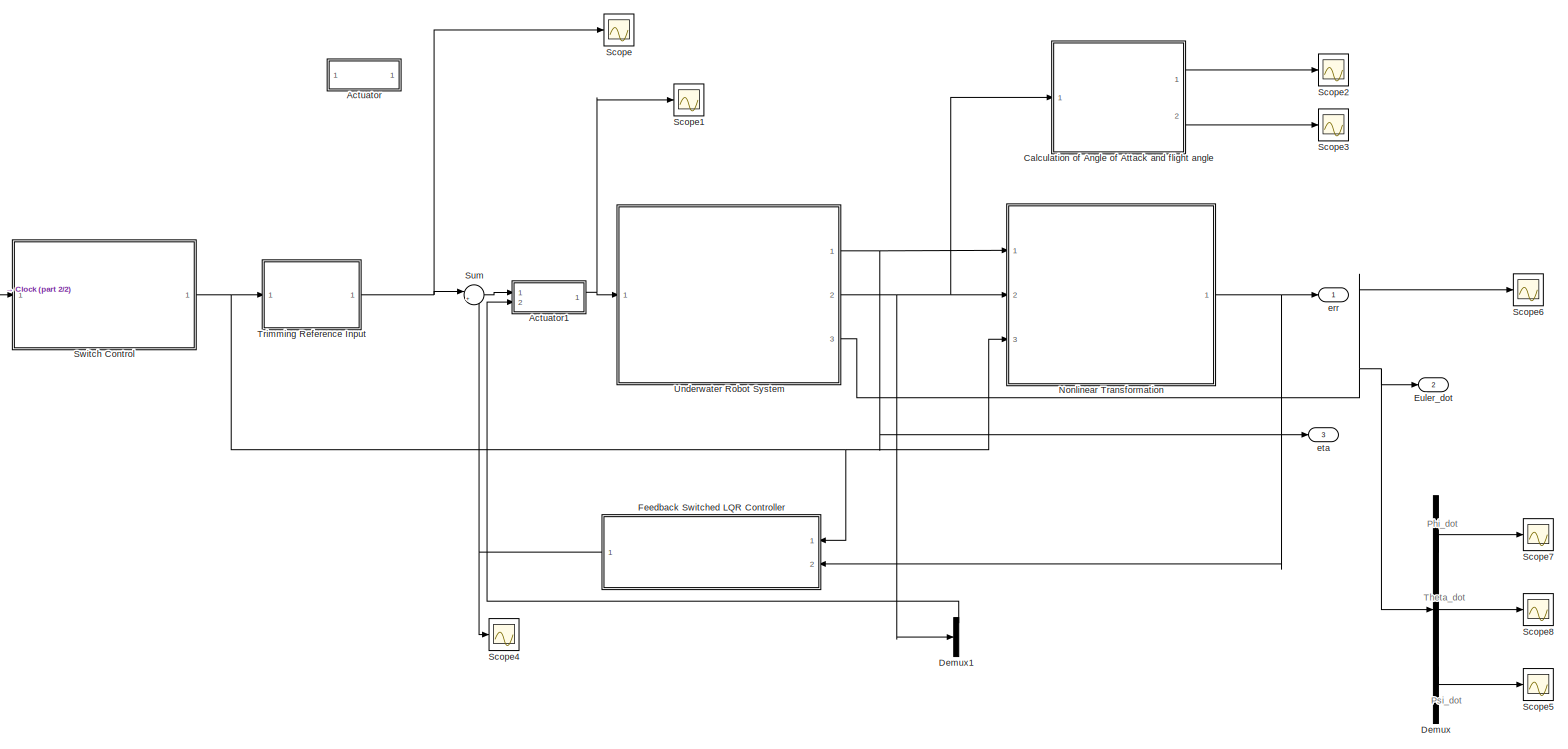
[diagram: root canvas - part 1/2, most of the canvas]
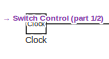
[diagram: root canvas - part 2/2, middle left region]
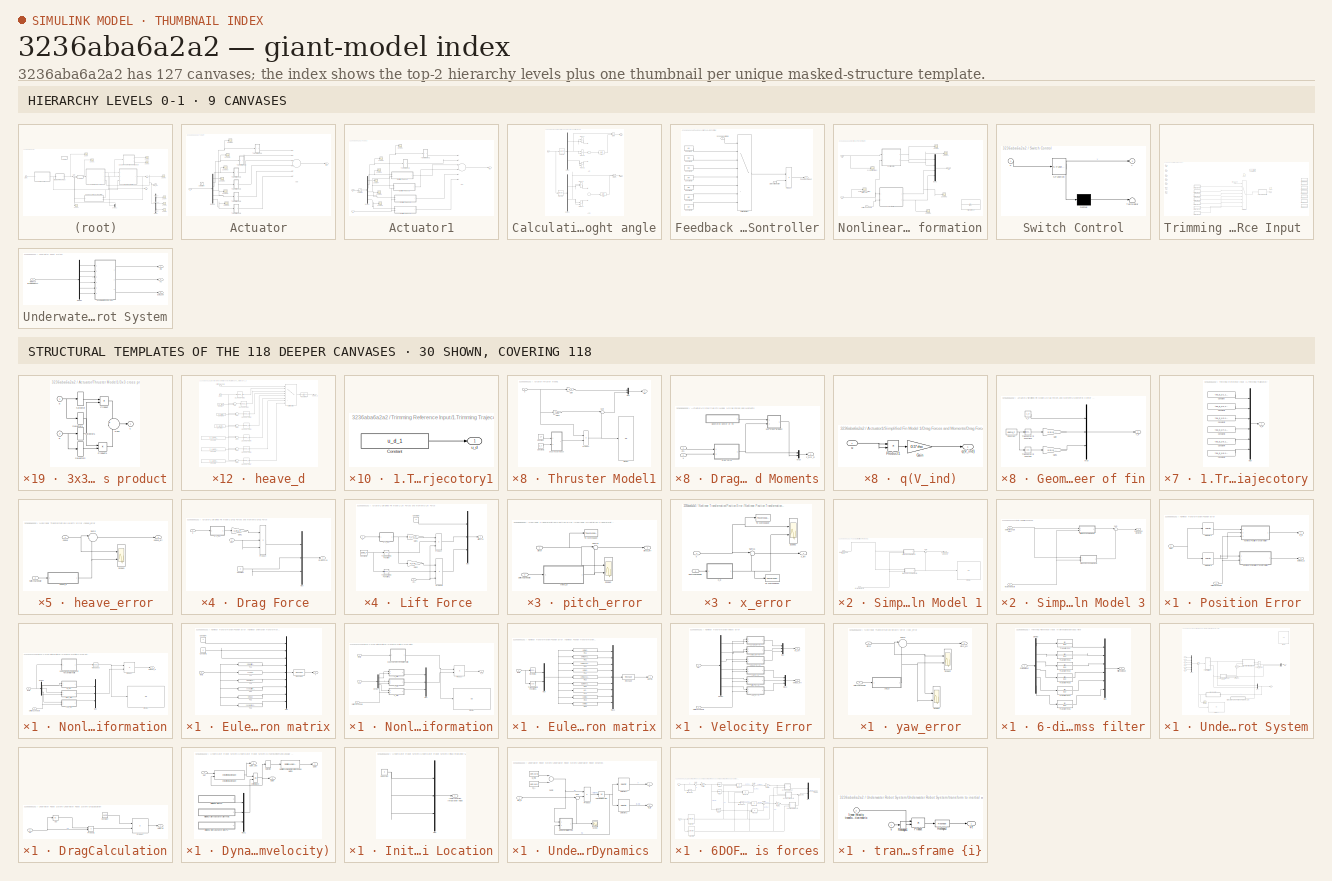
[diagram: thumbnail index - top-2 hierarchy levels (9 canvases) + 30 structural-template representatives of the remaining 118 canvases]
MODEL slx_3236aba6a2a2
KIND model
CONFIG AbsTol = auto
CONFIG EnableMultiTasking = off
CONFIG FixedStep = auto
CONFIG MaxStep = auto
CONFIG MinStep = auto
CONFIG RelTol = 1e-3
CONFIG SampleTimeConstraint = Unconstrained
CONFIG Solver = ode45
CONFIG SolverName = ode45
CONFIG StartTime = 0.0
CONFIG StopTime = 200
BLOCK [SubSystem] Actuator
  Commented = on
  Ports = [1, 1]
  RequestExecContextInheritance = off
  Variant = off
BLOCK [Sum] Actuator/Add
  InputSameDT = off
  Inputs = ++++++
  OutDataTypeStr = Inherit: Inherit via internal rule
  Ports = [6, 1]
  SaturateOnIntegerOverflow = off
BLOCK [Demux] Actuator/Demux
  DisplayOption = bar
  Outputs = 6
  Ports = [1, 6]
BLOCK [Saturate] Actuator/Saturation
  InputPortMap = u0
  LowerLimit = [-35 -35 -35 -35 -35 -35]
  Ports = [1, 1]
  UpperLimit = [40 40 40 40 40 40]
BLOCK [Scope] Actuator/Scope1
  NumInputPorts = 1
  Ports = [1]
  ScopeSpecificationString = Simulink.scopes.TimeScopeBlockCfg('CurrentConfiguration', extmgr.ConfigurationSet(extmgr.Configuration('Core','General UI',true),extmgr.Configuration('Core','Source UI',true),extmgr.Configuration('Sources','WiredSimulink',true,'DataLoggingVariableName','ScopeData2'),extmgr.Configuration('Visuals','Time Domain',true,'SerializedDisplays',{struct('MinYLimReal','-43687.82874','MaxYLimReal','15454.7596...<+1468ch>
BLOCK [Scope] Actuator/Scope2
  NumInputPorts = 1
  Ports = [1]
  ScopeSpecificationString = Simulink.scopes.TimeScopeBlockCfg('CurrentConfiguration', extmgr.ConfigurationSet(extmgr.Configuration('Core','General UI',true),extmgr.Configuration('Core','Source UI',true),extmgr.Configuration('Sources','WiredSimulink',true,'DataLoggingVariableName','ScopeData3'),extmgr.Configuration('Visuals','Time Domain',true,'SerializedDisplays',{struct('MinYLimReal','-13305.6173','MaxYLimReal','14750.1643'...<+1462ch>
BLOCK [Scope] Actuator/Scope3
  NumInputPorts = 1
  Ports = [1]
  ScopeSpecificationString = Simulink.scopes.TimeScopeBlockCfg('CurrentConfiguration', extmgr.ConfigurationSet(extmgr.Configuration('Core','General UI',true),extmgr.Configuration('Core','Source UI',true),extmgr.Configuration('Sources','WiredSimulink',true,'DataLoggingVariableName','ScopeData4'),extmgr.Configuration('Visuals','Time Domain',true,'SerializedDisplays',{struct('MinYLimReal','-18634.46012','MaxYLimReal','9317.78793...<+1466ch>
BLOCK [Scope] Actuator/Scope4
  NumInputPorts = 1
  Ports = [1]
  ScopeSpecificationString = Simulink.scopes.TimeScopeBlockCfg('CurrentConfiguration', extmgr.ConfigurationSet(extmgr.Configuration('Core','General UI',true),extmgr.Configuration('Core','Source UI',true),extmgr.Configuration('Sources','WiredSimulink',true,'DataLoggingVariableName','ScopeData5'),extmgr.Configuration('Visuals','Time Domain',true,'SerializedDisplays',{struct('MinYLimReal','-44.375','MaxYLimReal','49.375','YLabel...<+1433ch>
BLOCK [Scope] Actuator/Scope5
  NumInputPorts = 1
  Ports = [1]
  ScopeSpecificationString = Simulink.scopes.TimeScopeBlockCfg('CurrentConfiguration', extmgr.ConfigurationSet(extmgr.Configuration('Core','General UI',true),extmgr.Configuration('Core','Source UI',true),extmgr.Configuration('Sources','WiredSimulink',true,'DataLoggingVariableName','ScopeData6'),extmgr.Configuration('Visuals','Time Domain',true,'SerializedDisplays',{struct('MinYLimReal','-44.375','MaxYLimReal','49.375','YLabel...<+1433ch>
BLOCK [Scope] Actuator/Scope6
  NumInputPorts = 1
  Ports = [1]
  ScopeSpecificationString = Simulink.scopes.TimeScopeBlockCfg('CurrentConfiguration', extmgr.ConfigurationSet(extmgr.Configuration('Core','General UI',true),extmgr.Configuration('Core','Source UI',true),extmgr.Configuration('Sources','WiredSimulink',true,'DataLoggingVariableName','ScopeData7'),extmgr.Configuration('Visuals','Time Domain',true,'SerializedDisplays',{struct('MinYLimReal','-44.375','MaxYLimReal','49.375','YLabel...<+1433ch>
BLOCK [SubSystem] Actuator/Thruster Model1
  Ports = [1, 1]
  RequestExecContextInheritance = off
  Variant = off
BLOCK [SubSystem] Actuator/Thruster Model1/3x3 cross product
  Ports = [2, 1]
  RequestExecContextInheritance = off
  Variant = off
BLOCK [Product] Actuator/Thruster Model1/3x3 cross product/Product
  Ports = [2, 1]
  RndMeth = Floor
BLOCK [Product] Actuator/Thruster Model1/3x3 cross product/Product1
  Ports = [2, 1]
  RndMeth = Floor
BLOCK [Selector] Actuator/Thruster Model1/3x3 cross product/Selector
  IndexOptions = Index vector (dialog)
  Indices = [2 3 1]
  InputPortWidth = 3
  OutputSizes = 1
  Ports = [1, 1]
BLOCK [Selector] Actuator/Thruster Model1/3x3 cross product/Selector1
  IndexOptions = Index vector (dialog)
  Indices = [3 1 2]
  InputPortWidth = 3
  OutputSizes = 1
  Ports = [1, 1]
BLOCK [Selector] Actuator/Thruster Model1/3x3 cross product/Selector2
  IndexOptions = Index vector (dialog)
  Indices = [2 3 1]
  InputPortWidth = 3
  OutputSizes = 1
  Ports = [1, 1]
BLOCK [Selector] Actuator/Thruster Model1/3x3 cross product/Selector3
  IndexOptions = Index vector (dialog)
  Indices = [3 1 2]
  InputPortWidth = 3
  OutputSizes = 1
  Ports = [1, 1]
BLOCK [Sum] Actuator/Thruster Model1/3x3 cross product/Sum
  IconShape = round
  Inputs = +|-
  Ports = [2, 1]
BLOCK [Inport] Actuator/Thruster Model1/3x3 cross product/a
  IconDisplay = Port number
BLOCK [Inport] Actuator/Thruster Model1/3x3 cross product/b
  IconDisplay = Port number
  Port = 2
BLOCK [Outport] Actuator/Thruster Model1/3x3 cross product/c
  IconDisplay = Port number
  InitialOutput = 0
BLOCK [Constant] Actuator/Thruster Model1/Constant
  Value = r_T
BLOCK [Constant] Actuator/Thruster Model1/Constant1
  Value = d_T
BLOCK [Display] Actuator/Thruster Model1/Display
  Decimation = 1
  Ports = [1]
BLOCK [Gain] Actuator/Thruster Model1/Gain
  Gain = d_T
  Multiplication = Matrix(K*u)
  OutDataTypeStr = Inherit: Inherit via internal rule
  ParamDataTypeStr = Inherit: Inherit via internal rule
  SaturateOnIntegerOverflow = off
BLOCK [Gain] Actuator/Thruster Model1/Gain1
  Gain = b_T*lambda_T*d_T
  Multiplication = Matrix(K*u)
  OutDataTypeStr = Inherit: Inherit via internal rule
  ParamDataTypeStr = Inherit: Inherit via internal rule
  SaturateOnIntegerOverflow = off
BLOCK [Mux] Actuator/Thruster Model1/Mux
  DisplayOption = bar
  Inputs = 2
  Ports = [2, 1]
BLOCK [Product] Actuator/Thruster Model1/Product
  InputSameDT = off
  OutDataTypeStr = Inherit: Inherit via internal rule
  Ports = [2, 1]
  RndMeth = Floor
  SaturateOnIntegerOverflow = off
BLOCK [Sum] Actuator/Thruster Model1/Sum
  IconShape = round
  InputSameDT = off
  Inputs = |++
  OutDataTypeStr = Inherit: Inherit via internal rule
  Ports = [2, 1]
  SaturateOnIntegerOverflow = off
BLOCK [Outport] Actuator/Thruster Model1/tau
  IconDisplay = Port number
BLOCK [Inport] Actuator/Thruster Model1/u
  IconDisplay = Port number
BLOCK [SubSystem] Actuator/Thruster Model2
  Ports = [1, 1]
  RequestExecContextInheritance = off
  Variant = off
BLOCK [SubSystem] Actuator/Thruster Model2/3x3 cross product
  Ports = [2, 1]
  RequestExecContextInheritance = off
  Variant = off
BLOCK [Product] Actuator/Thruster Model2/3x3 cross product/Product
  Ports = [2, 1]
  RndMeth = Floor
BLOCK [Product] Actuator/Thruster Model2/3x3 cross product/Product1
  Ports = [2, 1]
  RndMeth = Floor
BLOCK [Selector] Actuator/Thruster Model2/3x3 cross product/Selector
  IndexOptions = Index vector (dialog)
  Indices = [2 3 1]
  InputPortWidth = 3
  OutputSizes = 1
  Ports = [1, 1]
BLOCK [Selector] Actuator/Thruster Model2/3x3 cross product/Selector1
  IndexOptions = Index vector (dialog)
  Indices = [3 1 2]
  InputPortWidth = 3
  OutputSizes = 1
  Ports = [1, 1]
BLOCK [Selector] Actuator/Thruster Model2/3x3 cross product/Selector2
  IndexOptions = Index vector (dialog)
  Indices = [2 3 1]
  InputPortWidth = 3
  OutputSizes = 1
  Ports = [1, 1]
BLOCK [Selector] Actuator/Thruster Model2/3x3 cross product/Selector3
  IndexOptions = Index vector (dialog)
  Indices = [3 1 2]
  InputPortWidth = 3
  OutputSizes = 1
  Ports = [1, 1]
BLOCK [Sum] Actuator/Thruster Model2/3x3 cross product/Sum
  IconShape = round
  Inputs = +|-
  Ports = [2, 1]
BLOCK [Inport] Actuator/Thruster Model2/3x3 cross product/a
  IconDisplay = Port number
BLOCK [Inport] Actuator/Thruster Model2/3x3 cross product/b
  IconDisplay = Port number
  Port = 2
BLOCK [Outport] Actuator/Thruster Model2/3x3 cross product/c
  IconDisplay = Port number
  InitialOutput = 0
BLOCK [Constant] Actuator/Thruster Model2/Constant
  Value = r_T
BLOCK [Constant] Actuator/Thruster Model2/Constant1
  Value = d_T
BLOCK [Display] Actuator/Thruster Model2/Display
  Decimation = 1
  Ports = [1]
BLOCK [Gain] Actuator/Thruster Model2/Gain
  Gain = d_T
  Multiplication = Matrix(K*u)
  OutDataTypeStr = Inherit: Inherit via internal rule
  ParamDataTypeStr = Inherit: Inherit via internal rule
  SaturateOnIntegerOverflow = off
BLOCK [Gain] Actuator/Thruster Model2/Gain1
  Gain = b_T*lambda_T*d_T
  Multiplication = Matrix(K*u)
  OutDataTypeStr = Inherit: Inherit via internal rule
  ParamDataTypeStr = Inherit: Inherit via internal rule
  SaturateOnIntegerOverflow = off
BLOCK [Mux] Actuator/Thruster Model2/Mux
  DisplayOption = bar
  Inputs = 2
  Ports = [2, 1]
BLOCK [Product] Actuator/Thruster Model2/Product
  InputSameDT = off
  OutDataTypeStr = Inherit: Inherit via internal rule
  Ports = [2, 1]
  RndMeth = Floor
  SaturateOnIntegerOverflow = off
BLOCK [Sum] Actuator/Thruster Model2/Sum
  IconShape = round
  InputSameDT = off
  Inputs = |++
  OutDataTypeStr = Inherit: Inherit via internal rule
  Ports = [2, 1]
  SaturateOnIntegerOverflow = off
BLOCK [Outport] Actuator/Thruster Model2/tau
  IconDisplay = Port number
BLOCK [Inport] Actuator/Thruster Model2/u
  IconDisplay = Port number
BLOCK [SubSystem] Actuator/Thruster Model3
  Ports = [1, 1]
  RequestExecContextInheritance = off
  Variant = off
BLOCK [SubSystem] Actuator/Thruster Model3/3x3 cross product
  Ports = [2, 1]
  RequestExecContextInheritance = off
  Variant = off
BLOCK [Product] Actuator/Thruster Model3/3x3 cross product/Product
  Ports = [2, 1]
  RndMeth = Floor
BLOCK [Product] Actuator/Thruster Model3/3x3 cross product/Product1
  Ports = [2, 1]
  RndMeth = Floor
BLOCK [Selector] Actuator/Thruster Model3/3x3 cross product/Selector
  IndexOptions = Index vector (dialog)
  Indices = [2 3 1]
  InputPortWidth = 3
  OutputSizes = 1
  Ports = [1, 1]
BLOCK [Selector] Actuator/Thruster Model3/3x3 cross product/Selector1
  IndexOptions = Index vector (dialog)
  Indices = [3 1 2]
  InputPortWidth = 3
  OutputSizes = 1
  Ports = [1, 1]
BLOCK [Selector] Actuator/Thruster Model3/3x3 cross product/Selector2
  IndexOptions = Index vector (dialog)
  Indices = [2 3 1]
  InputPortWidth = 3
  OutputSizes = 1
  Ports = [1, 1]
BLOCK [Selector] Actuator/Thruster Model3/3x3 cross product/Selector3
  IndexOptions = Index vector (dialog)
  Indices = [3 1 2]
  InputPortWidth = 3
  OutputSizes = 1
  Ports = [1, 1]
BLOCK [Sum] Actuator/Thruster Model3/3x3 cross product/Sum
  IconShape = round
  Inputs = +|-
  Ports = [2, 1]
BLOCK [Inport] Actuator/Thruster Model3/3x3 cross product/a
  IconDisplay = Port number
BLOCK [Inport] Actuator/Thruster Model3/3x3 cross product/b
  IconDisplay = Port number
  Port = 2
BLOCK [Outport] Actuator/Thruster Model3/3x3 cross product/c
  IconDisplay = Port number
  InitialOutput = 0
BLOCK [Constant] Actuator/Thruster Model3/Constant
  Value = r_T
BLOCK [Constant] Actuator/Thruster Model3/Constant1
  Value = d_T
BLOCK [Display] Actuator/Thruster Model3/Display
  Decimation = 1
  Ports = [1]
BLOCK [Gain] Actuator/Thruster Model3/Gain
  Gain = d_T
  Multiplication = Matrix(K*u)
  OutDataTypeStr = Inherit: Inherit via internal rule
  ParamDataTypeStr = Inherit: Inherit via internal rule
  SaturateOnIntegerOverflow = off
BLOCK [Gain] Actuator/Thruster Model3/Gain1
  Gain = b_T*lambda_T*d_T
  Multiplication = Matrix(K*u)
  OutDataTypeStr = Inherit: Inherit via internal rule
  ParamDataTypeStr = Inherit: Inherit via internal rule
  SaturateOnIntegerOverflow = off
BLOCK [Mux] Actuator/Thruster Model3/Mux
  DisplayOption = bar
  Inputs = 2
  Ports = [2, 1]
BLOCK [Product] Actuator/Thruster Model3/Product
  InputSameDT = off
  OutDataTypeStr = Inherit: Inherit via internal rule
  Ports = [2, 1]
  RndMeth = Floor
  SaturateOnIntegerOverflow = off
BLOCK [Sum] Actuator/Thruster Model3/Sum
  IconShape = round
  InputSameDT = off
  Inputs = |++
  OutDataTypeStr = Inherit: Inherit via internal rule
  Ports = [2, 1]
  SaturateOnIntegerOverflow = off
BLOCK [Outport] Actuator/Thruster Model3/tau
  IconDisplay = Port number
BLOCK [Inport] Actuator/Thruster Model3/u
  IconDisplay = Port number
BLOCK [SubSystem] Actuator/Thruster Model4
  Ports = [1, 1]
  RequestExecContextInheritance = off
  Variant = off
BLOCK [SubSystem] Actuator/Thruster Model4/3x3 cross product
  Ports = [2, 1]
  RequestExecContextInheritance = off
  Variant = off
BLOCK [Product] Actuator/Thruster Model4/3x3 cross product/Product
  Ports = [2, 1]
  RndMeth = Floor
BLOCK [Product] Actuator/Thruster Model4/3x3 cross product/Product1
  Ports = [2, 1]
  RndMeth = Floor
BLOCK [Selector] Actuator/Thruster Model4/3x3 cross product/Selector
  IndexOptions = Index vector (dialog)
  Indices = [2 3 1]
  InputPortWidth = 3
  OutputSizes = 1
  Ports = [1, 1]
BLOCK [Selector] Actuator/Thruster Model4/3x3 cross product/Selector1
  IndexOptions = Index vector (dialog)
  Indices = [3 1 2]
  InputPortWidth = 3
  OutputSizes = 1
  Ports = [1, 1]
BLOCK [Selector] Actuator/Thruster Model4/3x3 cross product/Selector2
  IndexOptions = Index vector (dialog)
  Indices = [2 3 1]
  InputPortWidth = 3
  OutputSizes = 1
  Ports = [1, 1]
BLOCK [Selector] Actuator/Thruster Model4/3x3 cross product/Selector3
  IndexOptions = Index vector (dialog)
  Indices = [3 1 2]
  InputPortWidth = 3
  OutputSizes = 1
  Ports = [1, 1]
BLOCK [Sum] Actuator/Thruster Model4/3x3 cross product/Sum
  IconShape = round
  Inputs = +|-
  Ports = [2, 1]
BLOCK [Inport] Actuator/Thruster Model4/3x3 cross product/a
  IconDisplay = Port number
BLOCK [Inport] Actuator/Thruster Model4/3x3 cross product/b
  IconDisplay = Port number
  Port = 2
BLOCK [Outport] Actuator/Thruster Model4/3x3 cross product/c
  IconDisplay = Port number
  InitialOutput = 0
BLOCK [Constant] Actuator/Thruster Model4/Constant
  Value = r_T
BLOCK [Constant] Actuator/Thruster Model4/Constant1
  Value = d_T
BLOCK [Display] Actuator/Thruster Model4/Display
  Decimation = 1
  Ports = [1]
BLOCK [Gain] Actuator/Thruster Model4/Gain
  Gain = d_T
  Multiplication = Matrix(K*u)
  OutDataTypeStr = Inherit: Inherit via internal rule
  ParamDataTypeStr = Inherit: Inherit via internal rule
  SaturateOnIntegerOverflow = off
BLOCK [Gain] Actuator/Thruster Model4/Gain1
  Gain = b_T*lambda_T*d_T
  Multiplication = Matrix(K*u)
  OutDataTypeStr = Inherit: Inherit via internal rule
  ParamDataTypeStr = Inherit: Inherit via internal rule
  SaturateOnIntegerOverflow = off
BLOCK [Mux] Actuator/Thruster Model4/Mux
  DisplayOption = bar
  Inputs = 2
  Ports = [2, 1]
BLOCK [Product] Actuator/Thruster Model4/Product
  InputSameDT = off
  OutDataTypeStr = Inherit: Inherit via internal rule
  Ports = [2, 1]
  RndMeth = Floor
  SaturateOnIntegerOverflow = off
BLOCK [Sum] Actuator/Thruster Model4/Sum
  IconShape = round
  InputSameDT = off
  Inputs = |++
  OutDataTypeStr = Inherit: Inherit via internal rule
  Ports = [2, 1]
  SaturateOnIntegerOverflow = off
BLOCK [Outport] Actuator/Thruster Model4/tau
  IconDisplay = Port number
BLOCK [Inport] Actuator/Thruster Model4/u
  IconDisplay = Port number
BLOCK [SubSystem] Actuator/Thruster Model5
  Ports = [1, 1]
  RequestExecContextInheritance = off
  Variant = off
BLOCK [SubSystem] Actuator/Thruster Model5/3x3 cross product
  Ports = [2, 1]
  RequestExecContextInheritance = off
  Variant = off
BLOCK [Product] Actuator/Thruster Model5/3x3 cross product/Product
  Ports = [2, 1]
  RndMeth = Floor
BLOCK [Product] Actuator/Thruster Model5/3x3 cross product/Product1
  Ports = [2, 1]
  RndMeth = Floor
BLOCK [Selector] Actuator/Thruster Model5/3x3 cross product/Selector
  IndexOptions = Index vector (dialog)
  Indices = [2 3 1]
  InputPortWidth = 3
  OutputSizes = 1
  Ports = [1, 1]
BLOCK [Selector] Actuator/Thruster Model5/3x3 cross product/Selector1
  IndexOptions = Index vector (dialog)
  Indices = [3 1 2]
  InputPortWidth = 3
  OutputSizes = 1
  Ports = [1, 1]
BLOCK [Selector] Actuator/Thruster Model5/3x3 cross product/Selector2
  IndexOptions = Index vector (dialog)
  Indices = [2 3 1]
  InputPortWidth = 3
  OutputSizes = 1
  Ports = [1, 1]
BLOCK [Selector] Actuator/Thruster Model5/3x3 cross product/Selector3
  IndexOptions = Index vector (dialog)
  Indices = [3 1 2]
  InputPortWidth = 3
  OutputSizes = 1
  Ports = [1, 1]
BLOCK [Sum] Actuator/Thruster Model5/3x3 cross product/Sum
  IconShape = round
  Inputs = +|-
  Ports = [2, 1]
BLOCK [Inport] Actuator/Thruster Model5/3x3 cross product/a
  IconDisplay = Port number
BLOCK [Inport] Actuator/Thruster Model5/3x3 cross product/b
  IconDisplay = Port number
  Port = 2
BLOCK [Outport] Actuator/Thruster Model5/3x3 cross product/c
  IconDisplay = Port number
  InitialOutput = 0
BLOCK [Constant] Actuator/Thruster Model5/Constant
  Value = r_T
BLOCK [Constant] Actuator/Thruster Model5/Constant1
  Value = d_T
BLOCK [Display] Actuator/Thruster Model5/Display
  Decimation = 1
  Ports = [1]
BLOCK [Gain] Actuator/Thruster Model5/Gain
  Gain = d_T
  Multiplication = Matrix(K*u)
  OutDataTypeStr = Inherit: Inherit via internal rule
  ParamDataTypeStr = Inherit: Inherit via internal rule
  SaturateOnIntegerOverflow = off
BLOCK [Gain] Actuator/Thruster Model5/Gain1
  Gain = b_T*lambda_T*d_T
  Multiplication = Matrix(K*u)
  OutDataTypeStr = Inherit: Inherit via internal rule
  ParamDataTypeStr = Inherit: Inherit via internal rule
  SaturateOnIntegerOverflow = off
BLOCK [Mux] Actuator/Thruster Model5/Mux
  DisplayOption = bar
  Inputs = 2
  Ports = [2, 1]
BLOCK [Product] Actuator/Thruster Model5/Product
  InputSameDT = off
  OutDataTypeStr = Inherit: Inherit via internal rule
  Ports = [2, 1]
  RndMeth = Floor
  SaturateOnIntegerOverflow = off
BLOCK [Sum] Actuator/Thruster Model5/Sum
  IconShape = round
  InputSameDT = off
  Inputs = |++
  OutDataTypeStr = Inherit: Inherit via internal rule
  Ports = [2, 1]
  SaturateOnIntegerOverflow = off
BLOCK [Outport] Actuator/Thruster Model5/tau
  IconDisplay = Port number
BLOCK [Inport] Actuator/Thruster Model5/u
  IconDisplay = Port number
BLOCK [SubSystem] Actuator/Thruster Model6
  Ports = [1, 1]
  RequestExecContextInheritance = off
  Variant = off
BLOCK [SubSystem] Actuator/Thruster Model6/3x3 cross product
  Ports = [2, 1]
  RequestExecContextInheritance = off
  Variant = off
BLOCK [Product] Actuator/Thruster Model6/3x3 cross product/Product
  Ports = [2, 1]
  RndMeth = Floor
BLOCK [Product] Actuator/Thruster Model6/3x3 cross product/Product1
  Ports = [2, 1]
  RndMeth = Floor
BLOCK [Selector] Actuator/Thruster Model6/3x3 cross product/Selector
  IndexOptions = Index vector (dialog)
  Indices = [2 3 1]
  InputPortWidth = 3
  OutputSizes = 1
  Ports = [1, 1]
BLOCK [Selector] Actuator/Thruster Model6/3x3 cross product/Selector1
  IndexOptions = Index vector (dialog)
  Indices = [3 1 2]
  InputPortWidth = 3
  OutputSizes = 1
  Ports = [1, 1]
BLOCK [Selector] Actuator/Thruster Model6/3x3 cross product/Selector2
  IndexOptions = Index vector (dialog)
  Indices = [2 3 1]
  InputPortWidth = 3
  OutputSizes = 1
  Ports = [1, 1]
BLOCK [Selector] Actuator/Thruster Model6/3x3 cross product/Selector3
  IndexOptions = Index vector (dialog)
  Indices = [3 1 2]
  InputPortWidth = 3
  OutputSizes = 1
  Ports = [1, 1]
BLOCK [Sum] Actuator/Thruster Model6/3x3 cross product/Sum
  IconShape = round
  Inputs = +|-
  Ports = [2, 1]
BLOCK [Inport] Actuator/Thruster Model6/3x3 cross product/a
  IconDisplay = Port number
BLOCK [Inport] Actuator/Thruster Model6/3x3 cross product/b
  IconDisplay = Port number
  Port = 2
BLOCK [Outport] Actuator/Thruster Model6/3x3 cross product/c
  IconDisplay = Port number
  InitialOutput = 0
BLOCK [Constant] Actuator/Thruster Model6/Constant
  Value = r_T
BLOCK [Constant] Actuator/Thruster Model6/Constant1
  Value = d_T
BLOCK [Display] Actuator/Thruster Model6/Display
  Decimation = 1
  Ports = [1]
BLOCK [Gain] Actuator/Thruster Model6/Gain
  Gain = d_T
  Multiplication = Matrix(K*u)
  OutDataTypeStr = Inherit: Inherit via internal rule
  ParamDataTypeStr = Inherit: Inherit via internal rule
  SaturateOnIntegerOverflow = off
BLOCK [Gain] Actuator/Thruster Model6/Gain1
  Gain = b_T*lambda_T*d_T
  Multiplication = Matrix(K*u)
  OutDataTypeStr = Inherit: Inherit via internal rule
  ParamDataTypeStr = Inherit: Inherit via internal rule
  SaturateOnIntegerOverflow = off
BLOCK [Mux] Actuator/Thruster Model6/Mux
  DisplayOption = bar
  Inputs = 2
  Ports = [2, 1]
BLOCK [Product] Actuator/Thruster Model6/Product
  InputSameDT = off
  OutDataTypeStr = Inherit: Inherit via internal rule
  Ports = [2, 1]
  RndMeth = Floor
  SaturateOnIntegerOverflow = off
BLOCK [Sum] Actuator/Thruster Model6/Sum
  IconShape = round
  InputSameDT = off
  Inputs = |++
  OutDataTypeStr = Inherit: Inherit via internal rule
  Ports = [2, 1]
  SaturateOnIntegerOverflow = off
BLOCK [Outport] Actuator/Thruster Model6/tau
  IconDisplay = Port number
BLOCK [Inport] Actuator/Thruster Model6/u
  IconDisplay = Port number
BLOCK [Outport] Actuator/tau
  IconDisplay = Port number
BLOCK [Inport] Actuator/u
  IconDisplay = Port number
BLOCK [SubSystem] Actuator1
  Ports = [2, 1]
  RequestExecContextInheritance = off
  Variant = off
BLOCK [Sum] Actuator1/Add
  InputSameDT = off
  Inputs = ++++++
  OutDataTypeStr = Inherit: Inherit via internal rule
  Ports = [6, 1]
  SaturateOnIntegerOverflow = off
BLOCK [Demux] Actuator1/Demux
  DisplayOption = bar
  Outputs = 6
  Ports = [1, 6]
BLOCK [Saturate] Actuator1/Saturation
  InputPortMap = u0
  LowerLimit = [-35 -35 -pi -pi -pi -pi]
  Ports = [1, 1]
  UpperLimit = [40 40 pi pi pi pi]
BLOCK [Scope] Actuator1/Scope1
  NumInputPorts = 1
  Ports = [1]
  ScopeSpecificationString = Simulink.scopes.TimeScopeBlockCfg('CurrentConfiguration', extmgr.ConfigurationSet(extmgr.Configuration('Core','General UI',true,'FigureColor',[0.156862745098039 0.156862745098039 0.156862745098039]),extmgr.Configuration('Core','Source UI',true),extmgr.Configuration('Sources','WiredSimulink',true,'DataLoggingVariableName','ScopeData2','DataLoggingSaveFormat','StructureWithTime','DataLoggingDecimati...<+2771ch>
BLOCK [Scope] Actuator1/Scope2
  NumInputPorts = 1
  Ports = [1]
  ScopeSpecificationString = C++SS(StrPVP('Open','off'),StrPVP('TimeRange','auto'),StrPVP('TickLabels','OneTimeTick'),StrPVP('ShowLegends','on'),StrPVP('LimitDataPoints','off'),StrPVP('MaxDataPoints','5000'),StrPVP('SaveToWorkspace','off'),StrPVP('SaveName','ScopeData3'),StrPVP('YMin','-13305.6173'),StrPVP('YMax','14750.1643'),StrPVP('BlockParamSampleInput','off'),StrPVP('BlockParamSampleTime','-1'),StrPVP('ZoomMode','on'),St...<+587ch>
BLOCK [Scope] Actuator1/Scope3
  NumInputPorts = 1
  Ports = [1]
  ScopeSpecificationString = Simulink.scopes.TimeScopeBlockCfg('CurrentConfiguration', extmgr.ConfigurationSet(extmgr.Configuration('Core','General UI',true,'FigureColor',[0.156862745098039 0.156862745098039 0.156862745098039]),extmgr.Configuration('Core','Source UI',true),extmgr.Configuration('Sources','WiredSimulink',true,'DataLoggingVariableName','ScopeData4','DataLoggingSaveFormat','StructureWithTime','DataLoggingDecimati...<+2791ch>
BLOCK [Scope] Actuator1/Scope4
  NumInputPorts = 1
  Ports = [1]
  ScopeSpecificationString = Simulink.scopes.TimeScopeBlockCfg('CurrentConfiguration', extmgr.ConfigurationSet(extmgr.Configuration('Core','General UI',true,'FigureColor',[0.156862745098039 0.156862745098039 0.156862745098039]),extmgr.Configuration('Core','Source UI',true),extmgr.Configuration('Sources','WiredSimulink',true,'DataLoggingVariableName','ScopeData5','DataLoggingSaveFormat','StructureWithTime','DataLoggingDecimati...<+2832ch>
BLOCK [Scope] Actuator1/Scope5
  NumInputPorts = 1
  Ports = [1]
  ScopeSpecificationString = Simulink.scopes.TimeScopeBlockCfg('CurrentConfiguration', extmgr.ConfigurationSet(extmgr.Configuration('Core','General UI',true,'FigureColor',[0.156862745098039 0.156862745098039 0.156862745098039]),extmgr.Configuration('Core','Source UI',true),extmgr.Configuration('Sources','WiredSimulink',true,'DataLoggingVariableName','ScopeData6','DataLoggingSaveFormat','StructureWithTime','DataLoggingDecimati...<+2821ch>
BLOCK [Scope] Actuator1/Scope6
  NumInputPorts = 1
  Ports = [1]
  ScopeSpecificationString = Simulink.scopes.TimeScopeBlockCfg('CurrentConfiguration', extmgr.ConfigurationSet(extmgr.Configuration('Core','General UI',true,'FigureColor',[0.156862745098039 0.156862745098039 0.156862745098039]),extmgr.Configuration('Core','Source UI',true),extmgr.Configuration('Sources','WiredSimulink',true,'DataLoggingVariableName','ScopeData7','DataLoggingSaveFormat','StructureWithTime','DataLoggingDecimati...<+2807ch>
BLOCK [SubSystem] Actuator1/Simplified Fin Model 1
  Ports = [2, 1]
  RequestExecContextInheritance = off
  Variant = off
BLOCK [Display] Actuator1/Simplified Fin Model 1/Display
  Decimation = 1
  Ports = [1]
BLOCK [SubSystem] Actuator1/Simplified Fin Model 1/Drag Forces and Moments
  Ports = [2, 1]
  RequestExecContextInheritance = off
  Variant = off
BLOCK [SubSystem] Actuator1/Simplified Fin Model 1/Drag Forces and Moments/3x3 cross product
  Ports = [2, 1]
  RequestExecContextInheritance = off
  Variant = off
BLOCK [Product] Actuator1/Simplified Fin Model 1/Drag Forces and Moments/3x3 cross product/Product
  Ports = [2, 1]
  RndMeth = Floor
BLOCK [Product] Actuator1/Simplified Fin Model 1/Drag Forces and Moments/3x3 cross product/Product1
  Ports = [2, 1]
  RndMeth = Floor
BLOCK [Selector] Actuator1/Simplified Fin Model 1/Drag Forces and Moments/3x3 cross product/Selector
  IndexOptions = Index vector (dialog)
  Indices = [2 3 1]
  InputPortWidth = 3
  OutputSizes = 1
  Ports = [1, 1]
BLOCK [Selector] Actuator1/Simplified Fin Model 1/Drag Forces and Moments/3x3 cross product/Selector1
  IndexOptions = Index vector (dialog)
  Indices = [3 1 2]
  InputPortWidth = 3
  OutputSizes = 1
  Ports = [1, 1]
BLOCK [Selector] Actuator1/Simplified Fin Model 1/Drag Forces and Moments/3x3 cross product/Selector2
  IndexOptions = Index vector (dialog)
  Indices = [2 3 1]
  InputPortWidth = 3
  OutputSizes = 1
  Ports = [1, 1]
BLOCK [Selector] Actuator1/Simplified Fin Model 1/Drag Forces and Moments/3x3 cross product/Selector3
  IndexOptions = Index vector (dialog)
  Indices = [3 1 2]
  InputPortWidth = 3
  OutputSizes = 1
  Ports = [1, 1]
BLOCK [Sum] Actuator1/Simplified Fin Model 1/Drag Forces and Moments/3x3 cross product/Sum
  IconShape = round
  Inputs = +|-
  Ports = [2, 1]
BLOCK [Inport] Actuator1/Simplified Fin Model 1/Drag Forces and Moments/3x3 cross product/a
  IconDisplay = Port number
BLOCK [Inport] Actuator1/Simplified Fin Model 1/Drag Forces and Moments/3x3 cross product/b
  IconDisplay = Port number
  Port = 2
BLOCK [Outport] Actuator1/Simplified Fin Model 1/Drag Forces and Moments/3x3 cross product/c
  IconDisplay = Port number
  InitialOutput = 0
BLOCK [Inport] Actuator1/Simplified Fin Model 1/Drag Forces and Moments/AoA
  IconDisplay = Port number
BLOCK [SubSystem] Actuator1/Simplified Fin Model 1/Drag Forces and Moments/Drag Force 
  Ports = [2, 1]
  RequestExecContextInheritance = off
  Variant = off
BLOCK [Inport] Actuator1/Simplified Fin Model 1/Drag Forces and Moments/Drag Force /AoA
  IconDisplay = Port number
BLOCK [Constant] Actuator1/Simplified Fin Model 1/Drag Forces and Moments/Drag Force /Constant
  Value = 0
BLOCK [Outport] Actuator1/Simplified Fin Model 1/Drag Forces and Moments/Drag Force /Drag Force
  IconDisplay = Port number
BLOCK [Gain] Actuator1/Simplified Fin Model 1/Drag Forces and Moments/Drag Force /Gain1
  Gain = C_D*a_F*b_F
  OutDataTypeStr = Inherit: Inherit via internal rule
  ParamDataTypeStr = Inherit: Inherit via internal rule
  SaturateOnIntegerOverflow = off
BLOCK [Mux] Actuator1/Simplified Fin Model 1/Drag Forces and Moments/Drag Force /Mux
  DisplayOption = bar
  Inputs = 3
  Ports = [3, 1]
BLOCK [Product] Actuator1/Simplified Fin Model 1/Drag Forces and Moments/Drag Force /Product
  InputSameDT = off
  Inputs = 3
  OutDataTypeStr = Inherit: Inherit via internal rule
  Ports = [3, 1]
  RndMeth = Floor
  SaturateOnIntegerOverflow = off
BLOCK [SubSystem] Actuator1/Simplified Fin Model 1/Drag Forces and Moments/Drag Force /q(V_ind)
  Ports = [1, 1]
  RequestExecContextInheritance = off
  Variant = off
BLOCK [Gain] Actuator1/Simplified Fin Model 1/Drag Forces and Moments/Drag Force /q(V_ind)/Gain
  Gain = 0.5*rho
  OutDataTypeStr = Inherit: Inherit via internal rule
  ParamDataTypeStr = Inherit: Inherit via internal rule
  SaturateOnIntegerOverflow = off
BLOCK [Product] Actuator1/Simplified Fin Model 1/Drag Forces and Moments/Drag Force /q(V_ind)/Product1
  InputSameDT = off
  OutDataTypeStr = Inherit: Inherit via internal rule
  Ports = [2, 1]
  RndMeth = Floor
  SaturateOnIntegerOverflow = off
BLOCK [Outport] Actuator1/Simplified Fin Model 1/Drag Forces and Moments/Drag Force /q(V_ind)/q(V_ind)
  IconDisplay = Port number
BLOCK [Inport] Actuator1/Simplified Fin Model 1/Drag Forces and Moments/Drag Force /q(V_ind)/u
  IconDisplay = Port number
BLOCK [Inport] Actuator1/Simplified Fin Model 1/Drag Forces and Moments/Drag Force /u
  IconDisplay = Port number
  Port = 2
BLOCK [Outport] Actuator1/Simplified Fin Model 1/Drag Forces and Moments/F_D,m_D
  IconDisplay = Port number
BLOCK [SubSystem] Actuator1/Simplified Fin Model 1/Drag Forces and Moments/Geometric Center of fin
  Ports = [0, 1]
  RequestExecContextInheritance = off
  Variant = off
BLOCK [Constant] Actuator1/Simplified Fin Model 1/Drag Forces and Moments/Geometric Center of fin/Constant
  Value = gama_F
BLOCK [Gain] Actuator1/Simplified Fin Model 1/Drag Forces and Moments/Geometric Center of fin/Gain
  Gain = 0.5*(d_H+a_F)
  OutDataTypeStr = Inherit: Inherit via internal rule
  ParamDataTypeStr = Inherit: Inherit via internal rule
  SaturateOnIntegerOverflow = off
BLOCK [Gain] Actuator1/Simplified Fin Model 1/Drag Forces and Moments/Geometric Center of fin/Gain1
  Gain = 0.5*(d_H+a_F)
  OutDataTypeStr = Inherit: Inherit via internal rule
  ParamDataTypeStr = Inherit: Inherit via internal rule
  SaturateOnIntegerOverflow = off
BLOCK [Mux] Actuator1/Simplified Fin Model 1/Drag Forces and Moments/Geometric Center of fin/Mux
  DisplayOption = bar
  Inputs = 3
  Ports = [3, 1]
BLOCK [Trigonometry] Actuator1/Simplified Fin Model 1/Drag Forces and Moments/Geometric Center of fin/Trigonometric Function
  Operator = cos
  Ports = [1, 1]
BLOCK [Trigonometry] Actuator1/Simplified Fin Model 1/Drag Forces and Moments/Geometric Center of fin/Trigonometric Function1
  Ports = [1, 1]
BLOCK [Outport] Actuator1/Simplified Fin Model 1/Drag Forces and Moments/Geometric Center of fin/r_F
  IconDisplay = Port number
BLOCK [Constant] Actuator1/Simplified Fin Model 1/Drag Forces and Moments/Geometric Center of fin/x_F
  Value = x_F
BLOCK [Mux] Actuator1/Simplified Fin Model 1/Drag Forces and Moments/Mux
  DisplayOption = bar
  Inputs = 2
  Ports = [2, 1]
BLOCK [Inport] Actuator1/Simplified Fin Model 1/Drag Forces and Moments/u
  IconDisplay = Port number
  Port = 2
BLOCK [Outport] Actuator1/Simplified Fin Model 1/Forces and Moments
  IconDisplay = Port number
BLOCK [Inport] Actuator1/Simplified Fin Model 1/Incident Velocity
  IconDisplay = Port number
  Port = 2
BLOCK [SubSystem] Actuator1/Simplified Fin Model 1/Lift Forces and Moments
  Ports = [2, 1]
  RequestExecContextInheritance = off
  Variant = off
BLOCK [SubSystem] Actuator1/Simplified Fin Model 1/Lift Forces and Moments/3x3 cross product
  Ports = [2, 1]
  RequestExecContextInheritance = off
  Variant = off
BLOCK [Product] Actuator1/Simplified Fin Model 1/Lift Forces and Moments/3x3 cross product/Product
  Ports = [2, 1]
  RndMeth = Floor
BLOCK [Product] Actuator1/Simplified Fin Model 1/Lift Forces and Moments/3x3 cross product/Product1
  Ports = [2, 1]
  RndMeth = Floor
BLOCK [Selector] Actuator1/Simplified Fin Model 1/Lift Forces and Moments/3x3 cross product/Selector
  IndexOptions = Index vector (dialog)
  Indices = [2 3 1]
  InputPortWidth = 3
  OutputSizes = 1
  Ports = [1, 1]
BLOCK [Selector] Actuator1/Simplified Fin Model 1/Lift Forces and Moments/3x3 cross product/Selector1
  IndexOptions = Index vector (dialog)
  Indices = [3 1 2]
  InputPortWidth = 3
  OutputSizes = 1
  Ports = [1, 1]
BLOCK [Selector] Actuator1/Simplified Fin Model 1/Lift Forces and Moments/3x3 cross product/Selector2
  IndexOptions = Index vector (dialog)
  Indices = [2 3 1]
  InputPortWidth = 3
  OutputSizes = 1
  Ports = [1, 1]
BLOCK [Selector] Actuator1/Simplified Fin Model 1/Lift Forces and Moments/3x3 cross product/Selector3
  IndexOptions = Index vector (dialog)
  Indices = [3 1 2]
  InputPortWidth = 3
  OutputSizes = 1
  Ports = [1, 1]
BLOCK [Sum] Actuator1/Simplified Fin Model 1/Lift Forces and Moments/3x3 cross product/Sum
  IconShape = round
  Inputs = +|-
  Ports = [2, 1]
BLOCK [Inport] Actuator1/Simplified Fin Model 1/Lift Forces and Moments/3x3 cross product/a
  IconDisplay = Port number
BLOCK [Inport] Actuator1/Simplified Fin Model 1/Lift Forces and Moments/3x3 cross product/b
  IconDisplay = Port number
  Port = 2
BLOCK [Outport] Actuator1/Simplified Fin Model 1/Lift Forces and Moments/3x3 cross product/c
  IconDisplay = Port number
  InitialOutput = 0
BLOCK [Inport] Actuator1/Simplified Fin Model 1/Lift Forces and Moments/AoA
  IconDisplay = Port number
BLOCK [Outport] Actuator1/Simplified Fin Model 1/Lift Forces and Moments/F_L, m_L
  IconDisplay = Port number
BLOCK [SubSystem] Actuator1/Simplified Fin Model 1/Lift Forces and Moments/Geometric Center of fin
  Ports = [0, 1]
  RequestExecContextInheritance = off
  Variant = off
BLOCK [Constant] Actuator1/Simplified Fin Model 1/Lift Forces and Moments/Geometric Center of fin/Constant
  Value = gama_F
BLOCK [Gain] Actuator1/Simplified Fin Model 1/Lift Forces and Moments/Geometric Center of fin/Gain
  Gain = 0.5*(d_H+a_F)
  OutDataTypeStr = Inherit: Inherit via internal rule
  ParamDataTypeStr = Inherit: Inherit via internal rule
  SaturateOnIntegerOverflow = off
BLOCK [Gain] Actuator1/Simplified Fin Model 1/Lift Forces and Moments/Geometric Center of fin/Gain1
  Gain = 0.5*(d_H+a_F)
  OutDataTypeStr = Inherit: Inherit via internal rule
  ParamDataTypeStr = Inherit: Inherit via internal rule
  SaturateOnIntegerOverflow = off
BLOCK [Mux] Actuator1/Simplified Fin Model 1/Lift Forces and Moments/Geometric Center of fin/Mux
  DisplayOption = bar
  Inputs = 3
  Ports = [3, 1]
BLOCK [Trigonometry] Actuator1/Simplified Fin Model 1/Lift Forces and Moments/Geometric Center of fin/Trigonometric Function
  Operator = cos
  Ports = [1, 1]
BLOCK [Trigonometry] Actuator1/Simplified Fin Model 1/Lift Forces and Moments/Geometric Center of fin/Trigonometric Function1
  Ports = [1, 1]
BLOCK [Outport] Actuator1/Simplified Fin Model 1/Lift Forces and Moments/Geometric Center of fin/r_F
  IconDisplay = Port number
BLOCK [Constant] Actuator1/Simplified Fin Model 1/Lift Forces and Moments/Geometric Center of fin/x_F
  Value = x_F
BLOCK [SubSystem] Actuator1/Simplified Fin Model 1/Lift Forces and Moments/Lift Force 
  Ports = [2, 1]
  RequestExecContextInheritance = off
  Variant = off
BLOCK [Inport] Actuator1/Simplified Fin Model 1/Lift Forces and Moments/Lift Force /AoA
  IconDisplay = Port number
  Port = 2
BLOCK [Constant] Actuator1/Simplified Fin Model 1/Lift Forces and Moments/Lift Force /Constant
  Value = 0
BLOCK [Constant] Actuator1/Simplified Fin Model 1/Lift Forces and Moments/Lift Force /Constant1
  Value = gama_F
BLOCK [Gain] Actuator1/Simplified Fin Model 1/Lift Forces and Moments/Lift Force /Gain1
  Gain = C_L*a_F*b_F
  OutDataTypeStr = Inherit: Inherit via internal rule
  ParamDataTypeStr = Inherit: Inherit via internal rule
  SaturateOnIntegerOverflow = off
BLOCK [Gain] Actuator1/Simplified Fin Model 1/Lift Forces and Moments/Lift Force /Gain2
  Gain = -C_L*a_F*b_F
  OutDataTypeStr = Inherit: Inherit via internal rule
  ParamDataTypeStr = Inherit: Inherit via internal rule
  SaturateOnIntegerOverflow = off
BLOCK [Outport] Actuator1/Simplified Fin Model 1/Lift Forces and Moments/Lift Force /Lift Force
  IconDisplay = Port number
BLOCK [Mux] Actuator1/Simplified Fin Model 1/Lift Forces and Moments/Lift Force /Mux
  DisplayOption = bar
  Inputs = 3
  Ports = [3, 1]
BLOCK [Product] Actuator1/Simplified Fin Model 1/Lift Forces and Moments/Lift Force /Product
  InputSameDT = off
  Inputs = 3
  OutDataTypeStr = Inherit: Inherit via internal rule
  Ports = [3, 1]
  RndMeth = Floor
  SaturateOnIntegerOverflow = off
BLOCK [Product] Actuator1/Simplified Fin Model 1/Lift Forces and Moments/Lift Force /Product1
  InputSameDT = off
  Inputs = 3
  OutDataTypeStr = Inherit: Inherit via internal rule
  Ports = [3, 1]
  RndMeth = Floor
  SaturateOnIntegerOverflow = off
BLOCK [Trigonometry] Actuator1/Simplified Fin Model 1/Lift Forces and Moments/Lift Force /Trigonometric Function
  Operator = cos
  Ports = [1, 1]
BLOCK [Trigonometry] Actuator1/Simplified Fin Model 1/Lift Forces and Moments/Lift Force /Trigonometric Function1
  Ports = [1, 1]
BLOCK [SubSystem] Actuator1/Simplified Fin Model 1/Lift Forces and Moments/Lift Force /q(V_ind)
  Ports = [1, 1]
  RequestExecContextInheritance = off
  Variant = off
BLOCK [Gain] Actuator1/Simplified Fin Model 1/Lift Forces and Moments/Lift Force /q(V_ind)/Gain
  Gain = 0.5*rho
  OutDataTypeStr = Inherit: Inherit via internal rule
  ParamDataTypeStr = Inherit: Inherit via internal rule
  SaturateOnIntegerOverflow = off
BLOCK [Product] Actuator1/Simplified Fin Model 1/Lift Forces and Moments/Lift Force /q(V_ind)/Product1
  InputSameDT = off
  OutDataTypeStr = Inherit: Inherit via internal rule
  Ports = [2, 1]
  RndMeth = Floor
  SaturateOnIntegerOverflow = off
BLOCK [Outport] Actuator1/Simplified Fin Model 1/Lift Forces and Moments/Lift Force /q(V_ind)/q(V_ind)
  IconDisplay = Port number
BLOCK [Inport] Actuator1/Simplified Fin Model 1/Lift Forces and Moments/Lift Force /q(V_ind)/u
  IconDisplay = Port number
BLOCK [Inport] Actuator1/Simplified Fin Model 1/Lift Forces and Moments/Lift Force /u
  IconDisplay = Port number
BLOCK [Mux] Actuator1/Simplified Fin Model 1/Lift Forces and Moments/Mux
  DisplayOption = bar
  Inputs = 2
  Ports = [2, 1]
BLOCK [Inport] Actuator1/Simplified Fin Model 1/Lift Forces and Moments/u
  IconDisplay = Port number
  Port = 2
BLOCK [Sum] Actuator1/Simplified Fin Model 1/Sum
  IconShape = round
  InputSameDT = off
  Inputs = |+-
  OutDataTypeStr = Inherit: Inherit via internal rule
  Ports = [2, 1]
  SaturateOnIntegerOverflow = off
BLOCK [Inport] Actuator1/Simplified Fin Model 1/deflection angle (AoA)
  IconDisplay = Port number
BLOCK [SubSystem] Actuator1/Simplified Fin Model 2
  Ports = [2, 1]
  RequestExecContextInheritance = off
  Variant = off
BLOCK [Display] Actuator1/Simplified Fin Model 2/Display
  Decimation = 1
  Ports = [1]
BLOCK [SubSystem] Actuator1/Simplified Fin Model 2/Drag Forces and Moments
  Ports = [2, 1]
  RequestExecContextInheritance = off
  Variant = off
BLOCK [SubSystem] Actuator1/Simplified Fin Model 2/Drag Forces and Moments/3x3 cross product
  Ports = [2, 1]
  RequestExecContextInheritance = off
  Variant = off
BLOCK [Product] Actuator1/Simplified Fin Model 2/Drag Forces and Moments/3x3 cross product/Product
  Ports = [2, 1]
  RndMeth = Floor
BLOCK [Product] Actuator1/Simplified Fin Model 2/Drag Forces and Moments/3x3 cross product/Product1
  Ports = [2, 1]
  RndMeth = Floor
BLOCK [Selector] Actuator1/Simplified Fin Model 2/Drag Forces and Moments/3x3 cross product/Selector
  IndexOptions = Index vector (dialog)
  Indices = [2 3 1]
  InputPortWidth = 3
  OutputSizes = 1
  Ports = [1, 1]
BLOCK [Selector] Actuator1/Simplified Fin Model 2/Drag Forces and Moments/3x3 cross product/Selector1
  IndexOptions = Index vector (dialog)
  Indices = [3 1 2]
  InputPortWidth = 3
  OutputSizes = 1
  Ports = [1, 1]
BLOCK [Selector] Actuator1/Simplified Fin Model 2/Drag Forces and Moments/3x3 cross product/Selector2
  IndexOptions = Index vector (dialog)
  Indices = [2 3 1]
  InputPortWidth = 3
  OutputSizes = 1
  Ports = [1, 1]
BLOCK [Selector] Actuator1/Simplified Fin Model 2/Drag Forces and Moments/3x3 cross product/Selector3
  IndexOptions = Index vector (dialog)
  Indices = [3 1 2]
  InputPortWidth = 3
  OutputSizes = 1
  Ports = [1, 1]
BLOCK [Sum] Actuator1/Simplified Fin Model 2/Drag Forces and Moments/3x3 cross product/Sum
  IconShape = round
  Inputs = +|-
  Ports = [2, 1]
BLOCK [Inport] Actuator1/Simplified Fin Model 2/Drag Forces and Moments/3x3 cross product/a
  IconDisplay = Port number
BLOCK [Inport] Actuator1/Simplified Fin Model 2/Drag Forces and Moments/3x3 cross product/b
  IconDisplay = Port number
  Port = 2
BLOCK [Outport] Actuator1/Simplified Fin Model 2/Drag Forces and Moments/3x3 cross product/c
  IconDisplay = Port number
  InitialOutput = 0
BLOCK [Inport] Actuator1/Simplified Fin Model 2/Drag Forces and Moments/AoA
  IconDisplay = Port number
BLOCK [SubSystem] Actuator1/Simplified Fin Model 2/Drag Forces and Moments/Drag Force 
  Ports = [2, 1]
  RequestExecContextInheritance = off
  Variant = off
BLOCK [Inport] Actuator1/Simplified Fin Model 2/Drag Forces and Moments/Drag Force /AoA
  IconDisplay = Port number
BLOCK [Constant] Actuator1/Simplified Fin Model 2/Drag Forces and Moments/Drag Force /Constant
  Value = 0
BLOCK [Outport] Actuator1/Simplified Fin Model 2/Drag Forces and Moments/Drag Force /Drag Force
  IconDisplay = Port number
BLOCK [Gain] Actuator1/Simplified Fin Model 2/Drag Forces and Moments/Drag Force /Gain1
  Gain = C_D*a_F*b_F
  OutDataTypeStr = Inherit: Inherit via internal rule
  ParamDataTypeStr = Inherit: Inherit via internal rule
  SaturateOnIntegerOverflow = off
BLOCK [Mux] Actuator1/Simplified Fin Model 2/Drag Forces and Moments/Drag Force /Mux
  DisplayOption = bar
  Inputs = 3
  Ports = [3, 1]
BLOCK [Product] Actuator1/Simplified Fin Model 2/Drag Forces and Moments/Drag Force /Product
  InputSameDT = off
  Inputs = 3
  OutDataTypeStr = Inherit: Inherit via internal rule
  Ports = [3, 1]
  RndMeth = Floor
  SaturateOnIntegerOverflow = off
BLOCK [SubSystem] Actuator1/Simplified Fin Model 2/Drag Forces and Moments/Drag Force /q(V_ind)
  Ports = [1, 1]
  RequestExecContextInheritance = off
  Variant = off
BLOCK [Gain] Actuator1/Simplified Fin Model 2/Drag Forces and Moments/Drag Force /q(V_ind)/Gain
  Gain = 0.5*rho
  OutDataTypeStr = Inherit: Inherit via internal rule
  ParamDataTypeStr = Inherit: Inherit via internal rule
  SaturateOnIntegerOverflow = off
BLOCK [Product] Actuator1/Simplified Fin Model 2/Drag Forces and Moments/Drag Force /q(V_ind)/Product1
  InputSameDT = off
  OutDataTypeStr = Inherit: Inherit via internal rule
  Ports = [2, 1]
  RndMeth = Floor
  SaturateOnIntegerOverflow = off
BLOCK [Outport] Actuator1/Simplified Fin Model 2/Drag Forces and Moments/Drag Force /q(V_ind)/q(V_ind)
  IconDisplay = Port number
BLOCK [Inport] Actuator1/Simplified Fin Model 2/Drag Forces and Moments/Drag Force /q(V_ind)/u
  IconDisplay = Port number
BLOCK [Inport] Actuator1/Simplified Fin Model 2/Drag Forces and Moments/Drag Force /u
  IconDisplay = Port number
  Port = 2
BLOCK [Outport] Actuator1/Simplified Fin Model 2/Drag Forces and Moments/F_D,m_D
  IconDisplay = Port number
BLOCK [SubSystem] Actuator1/Simplified Fin Model 2/Drag Forces and Moments/Geometric Center of fin
  Ports = [0, 1]
  RequestExecContextInheritance = off
  Variant = off
BLOCK [Constant] Actuator1/Simplified Fin Model 2/Drag Forces and Moments/Geometric Center of fin/Constant
  Value = gama_F
BLOCK [Gain] Actuator1/Simplified Fin Model 2/Drag Forces and Moments/Geometric Center of fin/Gain
  Gain = 0.5*(d_H+a_F)
  OutDataTypeStr = Inherit: Inherit via internal rule
  ParamDataTypeStr = Inherit: Inherit via internal rule
  SaturateOnIntegerOverflow = off
BLOCK [Gain] Actuator1/Simplified Fin Model 2/Drag Forces and Moments/Geometric Center of fin/Gain1
  Gain = 0.5*(d_H+a_F)
  OutDataTypeStr = Inherit: Inherit via internal rule
  ParamDataTypeStr = Inherit: Inherit via internal rule
  SaturateOnIntegerOverflow = off
BLOCK [Mux] Actuator1/Simplified Fin Model 2/Drag Forces and Moments/Geometric Center of fin/Mux
  DisplayOption = bar
  Inputs = 3
  Ports = [3, 1]
BLOCK [Trigonometry] Actuator1/Simplified Fin Model 2/Drag Forces and Moments/Geometric Center of fin/Trigonometric Function
  Operator = cos
  Ports = [1, 1]
BLOCK [Trigonometry] Actuator1/Simplified Fin Model 2/Drag Forces and Moments/Geometric Center of fin/Trigonometric Function1
  Ports = [1, 1]
BLOCK [Outport] Actuator1/Simplified Fin Model 2/Drag Forces and Moments/Geometric Center of fin/r_F
  IconDisplay = Port number
BLOCK [Constant] Actuator1/Simplified Fin Model 2/Drag Forces and Moments/Geometric Center of fin/x_F
  Value = x_F
BLOCK [Mux] Actuator1/Simplified Fin Model 2/Drag Forces and Moments/Mux
  DisplayOption = bar
  Inputs = 2
  Ports = [2, 1]
BLOCK [Inport] Actuator1/Simplified Fin Model 2/Drag Forces and Moments/u
  IconDisplay = Port number
  Port = 2
BLOCK [Outport] Actuator1/Simplified Fin Model 2/Forces and Moments
  IconDisplay = Port number
BLOCK [Inport] Actuator1/Simplified Fin Model 2/Incident Velocity
  IconDisplay = Port number
  Port = 2
BLOCK [SubSystem] Actuator1/Simplified Fin Model 2/Lift Forces and Moments
  Ports = [2, 1]
  RequestExecContextInheritance = off
  Variant = off
BLOCK [SubSystem] Actuator1/Simplified Fin Model 2/Lift Forces and Moments/3x3 cross product
  Ports = [2, 1]
  RequestExecContextInheritance = off
  Variant = off
BLOCK [Product] Actuator1/Simplified Fin Model 2/Lift Forces and Moments/3x3 cross product/Product
  Ports = [2, 1]
  RndMeth = Floor
BLOCK [Product] Actuator1/Simplified Fin Model 2/Lift Forces and Moments/3x3 cross product/Product1
  Ports = [2, 1]
  RndMeth = Floor
BLOCK [Selector] Actuator1/Simplified Fin Model 2/Lift Forces and Moments/3x3 cross product/Selector
  IndexOptions = Index vector (dialog)
  Indices = [2 3 1]
  InputPortWidth = 3
  OutputSizes = 1
  Ports = [1, 1]
BLOCK [Selector] Actuator1/Simplified Fin Model 2/Lift Forces and Moments/3x3 cross product/Selector1
  IndexOptions = Index vector (dialog)
  Indices = [3 1 2]
  InputPortWidth = 3
  OutputSizes = 1
  Ports = [1, 1]
BLOCK [Selector] Actuator1/Simplified Fin Model 2/Lift Forces and Moments/3x3 cross product/Selector2
  IndexOptions = Index vector (dialog)
  Indices = [2 3 1]
  InputPortWidth = 3
  OutputSizes = 1
  Ports = [1, 1]
BLOCK [Selector] Actuator1/Simplified Fin Model 2/Lift Forces and Moments/3x3 cross product/Selector3
  IndexOptions = Index vector (dialog)
  Indices = [3 1 2]
  InputPortWidth = 3
  OutputSizes = 1
  Ports = [1, 1]
BLOCK [Sum] Actuator1/Simplified Fin Model 2/Lift Forces and Moments/3x3 cross product/Sum
  IconShape = round
  Inputs = +|-
  Ports = [2, 1]
BLOCK [Inport] Actuator1/Simplified Fin Model 2/Lift Forces and Moments/3x3 cross product/a
  IconDisplay = Port number
BLOCK [Inport] Actuator1/Simplified Fin Model 2/Lift Forces and Moments/3x3 cross product/b
  IconDisplay = Port number
  Port = 2
BLOCK [Outport] Actuator1/Simplified Fin Model 2/Lift Forces and Moments/3x3 cross product/c
  IconDisplay = Port number
  InitialOutput = 0
BLOCK [Inport] Actuator1/Simplified Fin Model 2/Lift Forces and Moments/AoA
  IconDisplay = Port number
BLOCK [Outport] Actuator1/Simplified Fin Model 2/Lift Forces and Moments/F_L, m_L
  IconDisplay = Port number
BLOCK [SubSystem] Actuator1/Simplified Fin Model 2/Lift Forces and Moments/Geometric Center of fin
  Ports = [0, 1]
  RequestExecContextInheritance = off
  Variant = off
BLOCK [Constant] Actuator1/Simplified Fin Model 2/Lift Forces and Moments/Geometric Center of fin/Constant
  Value = gama_F
BLOCK [Gain] Actuator1/Simplified Fin Model 2/Lift Forces and Moments/Geometric Center of fin/Gain
  Gain = 0.5*(d_H+a_F)
  OutDataTypeStr = Inherit: Inherit via internal rule
  ParamDataTypeStr = Inherit: Inherit via internal rule
  SaturateOnIntegerOverflow = off
BLOCK [Gain] Actuator1/Simplified Fin Model 2/Lift Forces and Moments/Geometric Center of fin/Gain1
  Gain = 0.5*(d_H+a_F)
  OutDataTypeStr = Inherit: Inherit via internal rule
  ParamDataTypeStr = Inherit: Inherit via internal rule
  SaturateOnIntegerOverflow = off
BLOCK [Mux] Actuator1/Simplified Fin Model 2/Lift Forces and Moments/Geometric Center of fin/Mux
  DisplayOption = bar
  Inputs = 3
  Ports = [3, 1]
BLOCK [Trigonometry] Actuator1/Simplified Fin Model 2/Lift Forces and Moments/Geometric Center of fin/Trigonometric Function
  Operator = cos
  Ports = [1, 1]
BLOCK [Trigonometry] Actuator1/Simplified Fin Model 2/Lift Forces and Moments/Geometric Center of fin/Trigonometric Function1
  Ports = [1, 1]
BLOCK [Outport] Actuator1/Simplified Fin Model 2/Lift Forces and Moments/Geometric Center of fin/r_F
  IconDisplay = Port number
BLOCK [Constant] Actuator1/Simplified Fin Model 2/Lift Forces and Moments/Geometric Center of fin/x_F
  Value = x_F
BLOCK [SubSystem] Actuator1/Simplified Fin Model 2/Lift Forces and Moments/Lift Force 
  Ports = [2, 1]
  RequestExecContextInheritance = off
  Variant = off
BLOCK [Inport] Actuator1/Simplified Fin Model 2/Lift Forces and Moments/Lift Force /AoA
  IconDisplay = Port number
  Port = 2
BLOCK [Constant] Actuator1/Simplified Fin Model 2/Lift Forces and Moments/Lift Force /Constant
  Value = 0
BLOCK [Constant] Actuator1/Simplified Fin Model 2/Lift Forces and Moments/Lift Force /Constant1
  Value = gama_F
BLOCK [Gain] Actuator1/Simplified Fin Model 2/Lift Forces and Moments/Lift Force /Gain1
  Gain = C_L*a_F*b_F
  OutDataTypeStr = Inherit: Inherit via internal rule
  ParamDataTypeStr = Inherit: Inherit via internal rule
  SaturateOnIntegerOverflow = off
BLOCK [Gain] Actuator1/Simplified Fin Model 2/Lift Forces and Moments/Lift Force /Gain2
  Gain = -C_L*a_F*b_F
  OutDataTypeStr = Inherit: Inherit via internal rule
  ParamDataTypeStr = Inherit: Inherit via internal rule
  SaturateOnIntegerOverflow = off
BLOCK [Outport] Actuator1/Simplified Fin Model 2/Lift Forces and Moments/Lift Force /Lift Force
  IconDisplay = Port number
BLOCK [Mux] Actuator1/Simplified Fin Model 2/Lift Forces and Moments/Lift Force /Mux
  DisplayOption = bar
  Inputs = 3
  Ports = [3, 1]
BLOCK [Product] Actuator1/Simplified Fin Model 2/Lift Forces and Moments/Lift Force /Product
  InputSameDT = off
  Inputs = 3
  OutDataTypeStr = Inherit: Inherit via internal rule
  Ports = [3, 1]
  RndMeth = Floor
  SaturateOnIntegerOverflow = off
BLOCK [Product] Actuator1/Simplified Fin Model 2/Lift Forces and Moments/Lift Force /Product1
  InputSameDT = off
  Inputs = 3
  OutDataTypeStr = Inherit: Inherit via internal rule
  Ports = [3, 1]
  RndMeth = Floor
  SaturateOnIntegerOverflow = off
BLOCK [Trigonometry] Actuator1/Simplified Fin Model 2/Lift Forces and Moments/Lift Force /Trigonometric Function
  Operator = cos
  Ports = [1, 1]
BLOCK [Trigonometry] Actuator1/Simplified Fin Model 2/Lift Forces and Moments/Lift Force /Trigonometric Function1
  Ports = [1, 1]
BLOCK [SubSystem] Actuator1/Simplified Fin Model 2/Lift Forces and Moments/Lift Force /q(V_ind)
  Ports = [1, 1]
  RequestExecContextInheritance = off
  Variant = off
BLOCK [Gain] Actuator1/Simplified Fin Model 2/Lift Forces and Moments/Lift Force /q(V_ind)/Gain
  Gain = 0.5*rho
  OutDataTypeStr = Inherit: Inherit via internal rule
  ParamDataTypeStr = Inherit: Inherit via internal rule
  SaturateOnIntegerOverflow = off
BLOCK [Product] Actuator1/Simplified Fin Model 2/Lift Forces and Moments/Lift Force /q(V_ind)/Product1
  InputSameDT = off
  OutDataTypeStr = Inherit: Inherit via internal rule
  Ports = [2, 1]
  RndMeth = Floor
  SaturateOnIntegerOverflow = off
BLOCK [Outport] Actuator1/Simplified Fin Model 2/Lift Forces and Moments/Lift Force /q(V_ind)/q(V_ind)
  IconDisplay = Port number
BLOCK [Inport] Actuator1/Simplified Fin Model 2/Lift Forces and Moments/Lift Force /q(V_ind)/u
  IconDisplay = Port number
BLOCK [Inport] Actuator1/Simplified Fin Model 2/Lift Forces and Moments/Lift Force /u
  IconDisplay = Port number
BLOCK [Mux] Actuator1/Simplified Fin Model 2/Lift Forces and Moments/Mux
  DisplayOption = bar
  Inputs = 2
  Ports = [2, 1]
BLOCK [Inport] Actuator1/Simplified Fin Model 2/Lift Forces and Moments/u
  IconDisplay = Port number
  Port = 2
BLOCK [Sum] Actuator1/Simplified Fin Model 2/Sum
  IconShape = round
  InputSameDT = off
  Inputs = |+-
  OutDataTypeStr = Inherit: Inherit via internal rule
  Ports = [2, 1]
  SaturateOnIntegerOverflow = off
BLOCK [Inport] Actuator1/Simplified Fin Model 2/deflection angle (AoA)
  IconDisplay = Port number
BLOCK [SubSystem] Actuator1/Simplified Fin Model 3
  Ports = [2, 1]
  RequestExecContextInheritance = off
  Variant = off
BLOCK [SubSystem] Actuator1/Simplified Fin Model 3/Drag Forces and Moments
  Ports = [2, 1]
  RequestExecContextInheritance = off
  Variant = off
BLOCK [SubSystem] Actuator1/Simplified Fin Model 3/Drag Forces and Moments/3x3 cross product
  Ports = [2, 1]
  RequestExecContextInheritance = off
  Variant = off
BLOCK [Product] Actuator1/Simplified Fin Model 3/Drag Forces and Moments/3x3 cross product/Product
  Ports = [2, 1]
  RndMeth = Floor
BLOCK [Product] Actuator1/Simplified Fin Model 3/Drag Forces and Moments/3x3 cross product/Product1
  Ports = [2, 1]
  RndMeth = Floor
BLOCK [Selector] Actuator1/Simplified Fin Model 3/Drag Forces and Moments/3x3 cross product/Selector
  IndexOptions = Index vector (dialog)
  Indices = [2 3 1]
  InputPortWidth = 3
  OutputSizes = 1
  Ports = [1, 1]
BLOCK [Selector] Actuator1/Simplified Fin Model 3/Drag Forces and Moments/3x3 cross product/Selector1
  IndexOptions = Index vector (dialog)
  Indices = [3 1 2]
  InputPortWidth = 3
  OutputSizes = 1
  Ports = [1, 1]
BLOCK [Selector] Actuator1/Simplified Fin Model 3/Drag Forces and Moments/3x3 cross product/Selector2
  IndexOptions = Index vector (dialog)
  Indices = [2 3 1]
  InputPortWidth = 3
  OutputSizes = 1
  Ports = [1, 1]
BLOCK [Selector] Actuator1/Simplified Fin Model 3/Drag Forces and Moments/3x3 cross product/Selector3
  IndexOptions = Index vector (dialog)
  Indices = [3 1 2]
  InputPortWidth = 3
  OutputSizes = 1
  Ports = [1, 1]
BLOCK [Sum] Actuator1/Simplified Fin Model 3/Drag Forces and Moments/3x3 cross product/Sum
  IconShape = round
  Inputs = +|-
  Ports = [2, 1]
BLOCK [Inport] Actuator1/Simplified Fin Model 3/Drag Forces and Moments/3x3 cross product/a
  IconDisplay = Port number
BLOCK [Inport] Actuator1/Simplified Fin Model 3/Drag Forces and Moments/3x3 cross product/b
  IconDisplay = Port number
  Port = 2
BLOCK [Outport] Actuator1/Simplified Fin Model 3/Drag Forces and Moments/3x3 cross product/c
  IconDisplay = Port number
  InitialOutput = 0
BLOCK [Inport] Actuator1/Simplified Fin Model 3/Drag Forces and Moments/AoA
  IconDisplay = Port number
BLOCK [SubSystem] Actuator1/Simplified Fin Model 3/Drag Forces and Moments/Drag Force 
  Ports = [2, 1]
  RequestExecContextInheritance = off
  Variant = off
BLOCK [Inport] Actuator1/Simplified Fin Model 3/Drag Forces and Moments/Drag Force /AoA
  IconDisplay = Port number
BLOCK [Constant] Actuator1/Simplified Fin Model 3/Drag Forces and Moments/Drag Force /Constant
  Value = 0
BLOCK [Outport] Actuator1/Simplified Fin Model 3/Drag Forces and Moments/Drag Force /Drag Force
  IconDisplay = Port number
BLOCK [Gain] Actuator1/Simplified Fin Model 3/Drag Forces and Moments/Drag Force /Gain1
  Gain = C_D*a_F*b_F
  OutDataTypeStr = Inherit: Inherit via internal rule
  ParamDataTypeStr = Inherit: Inherit via internal rule
  SaturateOnIntegerOverflow = off
BLOCK [Mux] Actuator1/Simplified Fin Model 3/Drag Forces and Moments/Drag Force /Mux
  DisplayOption = bar
  Inputs = 3
  Ports = [3, 1]
BLOCK [Product] Actuator1/Simplified Fin Model 3/Drag Forces and Moments/Drag Force /Product
  InputSameDT = off
  Inputs = 3
  OutDataTypeStr = Inherit: Inherit via internal rule
  Ports = [3, 1]
  RndMeth = Floor
  SaturateOnIntegerOverflow = off
BLOCK [SubSystem] Actuator1/Simplified Fin Model 3/Drag Forces and Moments/Drag Force /q(V_ind)
  Ports = [1, 1]
  RequestExecContextInheritance = off
  Variant = off
BLOCK [Gain] Actuator1/Simplified Fin Model 3/Drag Forces and Moments/Drag Force /q(V_ind)/Gain
  Gain = 0.5*rho
  OutDataTypeStr = Inherit: Inherit via internal rule
  ParamDataTypeStr = Inherit: Inherit via internal rule
  SaturateOnIntegerOverflow = off
BLOCK [Product] Actuator1/Simplified Fin Model 3/Drag Forces and Moments/Drag Force /q(V_ind)/Product1
  InputSameDT = off
  OutDataTypeStr = Inherit: Inherit via internal rule
  Ports = [2, 1]
  RndMeth = Floor
  SaturateOnIntegerOverflow = off
BLOCK [Outport] Actuator1/Simplified Fin Model 3/Drag Forces and Moments/Drag Force /q(V_ind)/q(V_ind)
  IconDisplay = Port number
BLOCK [Inport] Actuator1/Simplified Fin Model 3/Drag Forces and Moments/Drag Force /q(V_ind)/u
  IconDisplay = Port number
BLOCK [Inport] Actuator1/Simplified Fin Model 3/Drag Forces and Moments/Drag Force /u
  IconDisplay = Port number
  Port = 2
BLOCK [Outport] Actuator1/Simplified Fin Model 3/Drag Forces and Moments/F_D,m_D
  IconDisplay = Port number
BLOCK [SubSystem] Actuator1/Simplified Fin Model 3/Drag Forces and Moments/Geometric Center of fin
  Ports = [0, 1]
  RequestExecContextInheritance = off
  Variant = off
BLOCK [Constant] Actuator1/Simplified Fin Model 3/Drag Forces and Moments/Geometric Center of fin/Constant
  Value = gama_F
BLOCK [Gain] Actuator1/Simplified Fin Model 3/Drag Forces and Moments/Geometric Center of fin/Gain
  Gain = 0.5*(d_H+a_F)
  OutDataTypeStr = Inherit: Inherit via internal rule
  ParamDataTypeStr = Inherit: Inherit via internal rule
  SaturateOnIntegerOverflow = off
BLOCK [Gain] Actuator1/Simplified Fin Model 3/Drag Forces and Moments/Geometric Center of fin/Gain1
  Gain = 0.5*(d_H+a_F)
  OutDataTypeStr = Inherit: Inherit via internal rule
  ParamDataTypeStr = Inherit: Inherit via internal rule
  SaturateOnIntegerOverflow = off
BLOCK [Mux] Actuator1/Simplified Fin Model 3/Drag Forces and Moments/Geometric Center of fin/Mux
  DisplayOption = bar
  Inputs = 3
  Ports = [3, 1]
BLOCK [Trigonometry] Actuator1/Simplified Fin Model 3/Drag Forces and Moments/Geometric Center of fin/Trigonometric Function
  Operator = cos
  Ports = [1, 1]
BLOCK [Trigonometry] Actuator1/Simplified Fin Model 3/Drag Forces and Moments/Geometric Center of fin/Trigonometric Function1
  Ports = [1, 1]
BLOCK [Outport] Actuator1/Simplified Fin Model 3/Drag Forces and Moments/Geometric Center of fin/r_F
  IconDisplay = Port number
BLOCK [Constant] Actuator1/Simplified Fin Model 3/Drag Forces and Moments/Geometric Center of fin/x_F
  Value = x_F
BLOCK [Mux] Actuator1/Simplified Fin Model 3/Drag Forces and Moments/Mux
  DisplayOption = bar
  Inputs = 2
  Ports = [2, 1]
BLOCK [Inport] Actuator1/Simplified Fin Model 3/Drag Forces and Moments/u
  IconDisplay = Port number
  Port = 2
BLOCK [Outport] Actuator1/Simplified Fin Model 3/Forces and Moments
  IconDisplay = Port number
BLOCK [Inport] Actuator1/Simplified Fin Model 3/Incident Velocity
  IconDisplay = Port number
  Port = 2
BLOCK [SubSystem] Actuator1/Simplified Fin Model 3/Lift Forces and Moments
  Ports = [2, 1]
  RequestExecContextInheritance = off
  Variant = off
BLOCK [SubSystem] Actuator1/Simplified Fin Model 3/Lift Forces and Moments/3x3 cross product
  Ports = [2, 1]
  RequestExecContextInheritance = off
  Variant = off
BLOCK [Product] Actuator1/Simplified Fin Model 3/Lift Forces and Moments/3x3 cross product/Product
  Ports = [2, 1]
  RndMeth = Floor
BLOCK [Product] Actuator1/Simplified Fin Model 3/Lift Forces and Moments/3x3 cross product/Product1
  Ports = [2, 1]
  RndMeth = Floor
BLOCK [Selector] Actuator1/Simplified Fin Model 3/Lift Forces and Moments/3x3 cross product/Selector
  IndexOptions = Index vector (dialog)
  Indices = [2 3 1]
  InputPortWidth = 3
  OutputSizes = 1
  Ports = [1, 1]
BLOCK [Selector] Actuator1/Simplified Fin Model 3/Lift Forces and Moments/3x3 cross product/Selector1
  IndexOptions = Index vector (dialog)
  Indices = [3 1 2]
  InputPortWidth = 3
  OutputSizes = 1
  Ports = [1, 1]
BLOCK [Selector] Actuator1/Simplified Fin Model 3/Lift Forces and Moments/3x3 cross product/Selector2
  IndexOptions = Index vector (dialog)
  Indices = [2 3 1]
  InputPortWidth = 3
  OutputSizes = 1
  Ports = [1, 1]
BLOCK [Selector] Actuator1/Simplified Fin Model 3/Lift Forces and Moments/3x3 cross product/Selector3
  IndexOptions = Index vector (dialog)
  Indices = [3 1 2]
  InputPortWidth = 3
  OutputSizes = 1
  Ports = [1, 1]
BLOCK [Sum] Actuator1/Simplified Fin Model 3/Lift Forces and Moments/3x3 cross product/Sum
  IconShape = round
  Inputs = +|-
  Ports = [2, 1]
BLOCK [Inport] Actuator1/Simplified Fin Model 3/Lift Forces and Moments/3x3 cross product/a
  IconDisplay = Port number
BLOCK [Inport] Actuator1/Simplified Fin Model 3/Lift Forces and Moments/3x3 cross product/b
  IconDisplay = Port number
  Port = 2
BLOCK [Outport] Actuator1/Simplified Fin Model 3/Lift Forces and Moments/3x3 cross product/c
  IconDisplay = Port number
  InitialOutput = 0
BLOCK [Inport] Actuator1/Simplified Fin Model 3/Lift Forces and Moments/AoA
  IconDisplay = Port number
BLOCK [Outport] Actuator1/Simplified Fin Model 3/Lift Forces and Moments/F_L, m_L
  IconDisplay = Port number
BLOCK [SubSystem] Actuator1/Simplified Fin Model 3/Lift Forces and Moments/Geometric Center of fin
  Ports = [0, 1]
  RequestExecContextInheritance = off
  Variant = off
BLOCK [Constant] Actuator1/Simplified Fin Model 3/Lift Forces and Moments/Geometric Center of fin/Constant
  Value = gama_F
BLOCK [Gain] Actuator1/Simplified Fin Model 3/Lift Forces and Moments/Geometric Center of fin/Gain
  Gain = 0.5*(d_H+a_F)
  OutDataTypeStr = Inherit: Inherit via internal rule
  ParamDataTypeStr = Inherit: Inherit via internal rule
  SaturateOnIntegerOverflow = off
BLOCK [Gain] Actuator1/Simplified Fin Model 3/Lift Forces and Moments/Geometric Center of fin/Gain1
  Gain = 0.5*(d_H+a_F)
  OutDataTypeStr = Inherit: Inherit via internal rule
  ParamDataTypeStr = Inherit: Inherit via internal rule
  SaturateOnIntegerOverflow = off
BLOCK [Mux] Actuator1/Simplified Fin Model 3/Lift Forces and Moments/Geometric Center of fin/Mux
  DisplayOption = bar
  Inputs = 3
  Ports = [3, 1]
BLOCK [Trigonometry] Actuator1/Simplified Fin Model 3/Lift Forces and Moments/Geometric Center of fin/Trigonometric Function
  Operator = cos
  Ports = [1, 1]
BLOCK [Trigonometry] Actuator1/Simplified Fin Model 3/Lift Forces and Moments/Geometric Center of fin/Trigonometric Function1
  Ports = [1, 1]
BLOCK [Outport] Actuator1/Simplified Fin Model 3/Lift Forces and Moments/Geometric Center of fin/r_F
  IconDisplay = Port number
BLOCK [Constant] Actuator1/Simplified Fin Model 3/Lift Forces and Moments/Geometric Center of fin/x_F
  Value = x_F
BLOCK [SubSystem] Actuator1/Simplified Fin Model 3/Lift Forces and Moments/Lift Force 
  Ports = [2, 1]
  RequestExecContextInheritance = off
  Variant = off
BLOCK [Inport] Actuator1/Simplified Fin Model 3/Lift Forces and Moments/Lift Force /AoA
  IconDisplay = Port number
  Port = 2
BLOCK [Constant] Actuator1/Simplified Fin Model 3/Lift Forces and Moments/Lift Force /Constant
  Value = 0
BLOCK [Constant] Actuator1/Simplified Fin Model 3/Lift Forces and Moments/Lift Force /Constant1
  Value = gama_F
BLOCK [Gain] Actuator1/Simplified Fin Model 3/Lift Forces and Moments/Lift Force /Gain1
  Gain = C_L*a_F*b_F
  OutDataTypeStr = Inherit: Inherit via internal rule
  ParamDataTypeStr = Inherit: Inherit via internal rule
  SaturateOnIntegerOverflow = off
BLOCK [Gain] Actuator1/Simplified Fin Model 3/Lift Forces and Moments/Lift Force /Gain2
  Gain = -C_L*a_F*b_F
  OutDataTypeStr = Inherit: Inherit via internal rule
  ParamDataTypeStr = Inherit: Inherit via internal rule
  SaturateOnIntegerOverflow = off
BLOCK [Outport] Actuator1/Simplified Fin Model 3/Lift Forces and Moments/Lift Force /Lift Force
  IconDisplay = Port number
BLOCK [Mux] Actuator1/Simplified Fin Model 3/Lift Forces and Moments/Lift Force /Mux
  DisplayOption = bar
  Inputs = 3
  Ports = [3, 1]
BLOCK [Product] Actuator1/Simplified Fin Model 3/Lift Forces and Moments/Lift Force /Product
  InputSameDT = off
  Inputs = 3
  OutDataTypeStr = Inherit: Inherit via internal rule
  Ports = [3, 1]
  RndMeth = Floor
  SaturateOnIntegerOverflow = off
BLOCK [Product] Actuator1/Simplified Fin Model 3/Lift Forces and Moments/Lift Force /Product1
  InputSameDT = off
  Inputs = 3
  OutDataTypeStr = Inherit: Inherit via internal rule
  Ports = [3, 1]
  RndMeth = Floor
  SaturateOnIntegerOverflow = off
BLOCK [Trigonometry] Actuator1/Simplified Fin Model 3/Lift Forces and Moments/Lift Force /Trigonometric Function
  Operator = cos
  Ports = [1, 1]
BLOCK [Trigonometry] Actuator1/Simplified Fin Model 3/Lift Forces and Moments/Lift Force /Trigonometric Function1
  Ports = [1, 1]
BLOCK [SubSystem] Actuator1/Simplified Fin Model 3/Lift Forces and Moments/Lift Force /q(V_ind)
  Ports = [1, 1]
  RequestExecContextInheritance = off
  Variant = off
BLOCK [Gain] Actuator1/Simplified Fin Model 3/Lift Forces and Moments/Lift Force /q(V_ind)/Gain
  Gain = 0.5*rho
  OutDataTypeStr = Inherit: Inherit via internal rule
  ParamDataTypeStr = Inherit: Inherit via internal rule
  SaturateOnIntegerOverflow = off
BLOCK [Product] Actuator1/Simplified Fin Model 3/Lift Forces and Moments/Lift Force /q(V_ind)/Product1
  InputSameDT = off
  OutDataTypeStr = Inherit: Inherit via internal rule
  Ports = [2, 1]
  RndMeth = Floor
  SaturateOnIntegerOverflow = off
BLOCK [Outport] Actuator1/Simplified Fin Model 3/Lift Forces and Moments/Lift Force /q(V_ind)/q(V_ind)
  IconDisplay = Port number
BLOCK [Inport] Actuator1/Simplified Fin Model 3/Lift Forces and Moments/Lift Force /q(V_ind)/u
  IconDisplay = Port number
BLOCK [Inport] Actuator1/Simplified Fin Model 3/Lift Forces and Moments/Lift Force /u
  IconDisplay = Port number
BLOCK [Mux] Actuator1/Simplified Fin Model 3/Lift Forces and Moments/Mux
  DisplayOption = bar
  Inputs = 2
  Ports = [2, 1]
BLOCK [Inport] Actuator1/Simplified Fin Model 3/Lift Forces and Moments/u
  IconDisplay = Port number
  Port = 2
BLOCK [Sum] Actuator1/Simplified Fin Model 3/Sum
  IconShape = round
  InputSameDT = off
  Inputs = |+-
  OutDataTypeStr = Inherit: Inherit via internal rule
  Ports = [2, 1]
  SaturateOnIntegerOverflow = off
BLOCK [Inport] Actuator1/Simplified Fin Model 3/deflection angle (AoA)
  IconDisplay = Port number
BLOCK [SubSystem] Actuator1/Simplified Fin Model 4
  Ports = [2, 1]
  RequestExecContextInheritance = off
  Variant = off
BLOCK [SubSystem] Actuator1/Simplified Fin Model 4/Drag Forces and Moments
  Ports = [2, 1]
  RequestExecContextInheritance = off
  Variant = off
BLOCK [SubSystem] Actuator1/Simplified Fin Model 4/Drag Forces and Moments/3x3 cross product
  Ports = [2, 1]
  RequestExecContextInheritance = off
  Variant = off
BLOCK [Product] Actuator1/Simplified Fin Model 4/Drag Forces and Moments/3x3 cross product/Product
  Ports = [2, 1]
  RndMeth = Floor
BLOCK [Product] Actuator1/Simplified Fin Model 4/Drag Forces and Moments/3x3 cross product/Product1
  Ports = [2, 1]
  RndMeth = Floor
BLOCK [Selector] Actuator1/Simplified Fin Model 4/Drag Forces and Moments/3x3 cross product/Selector
  IndexOptions = Index vector (dialog)
  Indices = [2 3 1]
  InputPortWidth = 3
  OutputSizes = 1
  Ports = [1, 1]
BLOCK [Selector] Actuator1/Simplified Fin Model 4/Drag Forces and Moments/3x3 cross product/Selector1
  IndexOptions = Index vector (dialog)
  Indices = [3 1 2]
  InputPortWidth = 3
  OutputSizes = 1
  Ports = [1, 1]
BLOCK [Selector] Actuator1/Simplified Fin Model 4/Drag Forces and Moments/3x3 cross product/Selector2
  IndexOptions = Index vector (dialog)
  Indices = [2 3 1]
  InputPortWidth = 3
  OutputSizes = 1
  Ports = [1, 1]
BLOCK [Selector] Actuator1/Simplified Fin Model 4/Drag Forces and Moments/3x3 cross product/Selector3
  IndexOptions = Index vector (dialog)
  Indices = [3 1 2]
  InputPortWidth = 3
  OutputSizes = 1
  Ports = [1, 1]
BLOCK [Sum] Actuator1/Simplified Fin Model 4/Drag Forces and Moments/3x3 cross product/Sum
  IconShape = round
  Inputs = +|-
  Ports = [2, 1]
BLOCK [Inport] Actuator1/Simplified Fin Model 4/Drag Forces and Moments/3x3 cross product/a
  IconDisplay = Port number
BLOCK [Inport] Actuator1/Simplified Fin Model 4/Drag Forces and Moments/3x3 cross product/b
  IconDisplay = Port number
  Port = 2
BLOCK [Outport] Actuator1/Simplified Fin Model 4/Drag Forces and Moments/3x3 cross product/c
  IconDisplay = Port number
  InitialOutput = 0
BLOCK [Inport] Actuator1/Simplified Fin Model 4/Drag Forces and Moments/AoA
  IconDisplay = Port number
BLOCK [SubSystem] Actuator1/Simplified Fin Model 4/Drag Forces and Moments/Drag Force 
  Ports = [2, 1]
  RequestExecContextInheritance = off
  Variant = off
BLOCK [Inport] Actuator1/Simplified Fin Model 4/Drag Forces and Moments/Drag Force /AoA
  IconDisplay = Port number
BLOCK [Constant] Actuator1/Simplified Fin Model 4/Drag Forces and Moments/Drag Force /Constant
  Value = 0
BLOCK [Outport] Actuator1/Simplified Fin Model 4/Drag Forces and Moments/Drag Force /Drag Force
  IconDisplay = Port number
BLOCK [Gain] Actuator1/Simplified Fin Model 4/Drag Forces and Moments/Drag Force /Gain1
  Gain = C_D*a_F*b_F
  OutDataTypeStr = Inherit: Inherit via internal rule
  ParamDataTypeStr = Inherit: Inherit via internal rule
  SaturateOnIntegerOverflow = off
BLOCK [Mux] Actuator1/Simplified Fin Model 4/Drag Forces and Moments/Drag Force /Mux
  DisplayOption = bar
  Inputs = 3
  Ports = [3, 1]
BLOCK [Product] Actuator1/Simplified Fin Model 4/Drag Forces and Moments/Drag Force /Product
  InputSameDT = off
  Inputs = 3
  OutDataTypeStr = Inherit: Inherit via internal rule
  Ports = [3, 1]
  RndMeth = Floor
  SaturateOnIntegerOverflow = off
BLOCK [SubSystem] Actuator1/Simplified Fin Model 4/Drag Forces and Moments/Drag Force /q(V_ind)
  Ports = [1, 1]
  RequestExecContextInheritance = off
  Variant = off
BLOCK [Gain] Actuator1/Simplified Fin Model 4/Drag Forces and Moments/Drag Force /q(V_ind)/Gain
  Gain = 0.5*rho
  OutDataTypeStr = Inherit: Inherit via internal rule
  ParamDataTypeStr = Inherit: Inherit via internal rule
  SaturateOnIntegerOverflow = off
BLOCK [Product] Actuator1/Simplified Fin Model 4/Drag Forces and Moments/Drag Force /q(V_ind)/Product1
  InputSameDT = off
  OutDataTypeStr = Inherit: Inherit via internal rule
  Ports = [2, 1]
  RndMeth = Floor
  SaturateOnIntegerOverflow = off
BLOCK [Outport] Actuator1/Simplified Fin Model 4/Drag Forces and Moments/Drag Force /q(V_ind)/q(V_ind)
  IconDisplay = Port number
BLOCK [Inport] Actuator1/Simplified Fin Model 4/Drag Forces and Moments/Drag Force /q(V_ind)/u
  IconDisplay = Port number
BLOCK [Inport] Actuator1/Simplified Fin Model 4/Drag Forces and Moments/Drag Force /u
  IconDisplay = Port number
  Port = 2
BLOCK [Outport] Actuator1/Simplified Fin Model 4/Drag Forces and Moments/F_D,m_D
  IconDisplay = Port number
BLOCK [SubSystem] Actuator1/Simplified Fin Model 4/Drag Forces and Moments/Geometric Center of fin
  Ports = [0, 1]
  RequestExecContextInheritance = off
  Variant = off
BLOCK [Constant] Actuator1/Simplified Fin Model 4/Drag Forces and Moments/Geometric Center of fin/Constant
  Value = gama_F
BLOCK [Gain] Actuator1/Simplified Fin Model 4/Drag Forces and Moments/Geometric Center of fin/Gain
  Gain = 0.5*(d_H+a_F)
  OutDataTypeStr = Inherit: Inherit via internal rule
  ParamDataTypeStr = Inherit: Inherit via internal rule
  SaturateOnIntegerOverflow = off
BLOCK [Gain] Actuator1/Simplified Fin Model 4/Drag Forces and Moments/Geometric Center of fin/Gain1
  Gain = 0.5*(d_H+a_F)
  OutDataTypeStr = Inherit: Inherit via internal rule
  ParamDataTypeStr = Inherit: Inherit via internal rule
  SaturateOnIntegerOverflow = off
BLOCK [Mux] Actuator1/Simplified Fin Model 4/Drag Forces and Moments/Geometric Center of fin/Mux
  DisplayOption = bar
  Inputs = 3
  Ports = [3, 1]
BLOCK [Trigonometry] Actuator1/Simplified Fin Model 4/Drag Forces and Moments/Geometric Center of fin/Trigonometric Function
  Operator = cos
  Ports = [1, 1]
BLOCK [Trigonometry] Actuator1/Simplified Fin Model 4/Drag Forces and Moments/Geometric Center of fin/Trigonometric Function1
  Ports = [1, 1]
BLOCK [Outport] Actuator1/Simplified Fin Model 4/Drag Forces and Moments/Geometric Center of fin/r_F
  IconDisplay = Port number
BLOCK [Constant] Actuator1/Simplified Fin Model 4/Drag Forces and Moments/Geometric Center of fin/x_F
  Value = x_F
BLOCK [Mux] Actuator1/Simplified Fin Model 4/Drag Forces and Moments/Mux
  DisplayOption = bar
  Inputs = 2
  Ports = [2, 1]
BLOCK [Inport] Actuator1/Simplified Fin Model 4/Drag Forces and Moments/u
  IconDisplay = Port number
  Port = 2
BLOCK [Outport] Actuator1/Simplified Fin Model 4/Forces and Moments
  IconDisplay = Port number
BLOCK [Inport] Actuator1/Simplified Fin Model 4/Incident Velocity
  IconDisplay = Port number
  Port = 2
BLOCK [SubSystem] Actuator1/Simplified Fin Model 4/Lift Forces and Moments
  Ports = [2, 1]
  RequestExecContextInheritance = off
  Variant = off
BLOCK [SubSystem] Actuator1/Simplified Fin Model 4/Lift Forces and Moments/3x3 cross product
  Ports = [2, 1]
  RequestExecContextInheritance = off
  Variant = off
BLOCK [Product] Actuator1/Simplified Fin Model 4/Lift Forces and Moments/3x3 cross product/Product
  Ports = [2, 1]
  RndMeth = Floor
BLOCK [Product] Actuator1/Simplified Fin Model 4/Lift Forces and Moments/3x3 cross product/Product1
  Ports = [2, 1]
  RndMeth = Floor
BLOCK [Selector] Actuator1/Simplified Fin Model 4/Lift Forces and Moments/3x3 cross product/Selector
  IndexOptions = Index vector (dialog)
  Indices = [2 3 1]
  InputPortWidth = 3
  OutputSizes = 1
  Ports = [1, 1]
BLOCK [Selector] Actuator1/Simplified Fin Model 4/Lift Forces and Moments/3x3 cross product/Selector1
  IndexOptions = Index vector (dialog)
  Indices = [3 1 2]
  InputPortWidth = 3
  OutputSizes = 1
  Ports = [1, 1]
BLOCK [Selector] Actuator1/Simplified Fin Model 4/Lift Forces and Moments/3x3 cross product/Selector2
  IndexOptions = Index vector (dialog)
  Indices = [2 3 1]
  InputPortWidth = 3
  OutputSizes = 1
  Ports = [1, 1]
BLOCK [Selector] Actuator1/Simplified Fin Model 4/Lift Forces and Moments/3x3 cross product/Selector3
  IndexOptions = Index vector (dialog)
  Indices = [3 1 2]
  InputPortWidth = 3
  OutputSizes = 1
  Ports = [1, 1]
BLOCK [Sum] Actuator1/Simplified Fin Model 4/Lift Forces and Moments/3x3 cross product/Sum
  IconShape = round
  Inputs = +|-
  Ports = [2, 1]
BLOCK [Inport] Actuator1/Simplified Fin Model 4/Lift Forces and Moments/3x3 cross product/a
  IconDisplay = Port number
BLOCK [Inport] Actuator1/Simplified Fin Model 4/Lift Forces and Moments/3x3 cross product/b
  IconDisplay = Port number
  Port = 2
BLOCK [Outport] Actuator1/Simplified Fin Model 4/Lift Forces and Moments/3x3 cross product/c
  IconDisplay = Port number
  InitialOutput = 0
BLOCK [Inport] Actuator1/Simplified Fin Model 4/Lift Forces and Moments/AoA
  IconDisplay = Port number
BLOCK [Outport] Actuator1/Simplified Fin Model 4/Lift Forces and Moments/F_L, m_L
  IconDisplay = Port number
BLOCK [SubSystem] Actuator1/Simplified Fin Model 4/Lift Forces and Moments/Geometric Center of fin
  Ports = [0, 1]
  RequestExecContextInheritance = off
  Variant = off
BLOCK [Constant] Actuator1/Simplified Fin Model 4/Lift Forces and Moments/Geometric Center of fin/Constant
  Value = gama_F
BLOCK [Gain] Actuator1/Simplified Fin Model 4/Lift Forces and Moments/Geometric Center of fin/Gain
  Gain = 0.5*(d_H+a_F)
  OutDataTypeStr = Inherit: Inherit via internal rule
  ParamDataTypeStr = Inherit: Inherit via internal rule
  SaturateOnIntegerOverflow = off
BLOCK [Gain] Actuator1/Simplified Fin Model 4/Lift Forces and Moments/Geometric Center of fin/Gain1
  Gain = 0.5*(d_H+a_F)
  OutDataTypeStr = Inherit: Inherit via internal rule
  ParamDataTypeStr = Inherit: Inherit via internal rule
  SaturateOnIntegerOverflow = off
BLOCK [Mux] Actuator1/Simplified Fin Model 4/Lift Forces and Moments/Geometric Center of fin/Mux
  DisplayOption = bar
  Inputs = 3
  Ports = [3, 1]
BLOCK [Trigonometry] Actuator1/Simplified Fin Model 4/Lift Forces and Moments/Geometric Center of fin/Trigonometric Function
  Operator = cos
  Ports = [1, 1]
BLOCK [Trigonometry] Actuator1/Simplified Fin Model 4/Lift Forces and Moments/Geometric Center of fin/Trigonometric Function1
  Ports = [1, 1]
BLOCK [Outport] Actuator1/Simplified Fin Model 4/Lift Forces and Moments/Geometric Center of fin/r_F
  IconDisplay = Port number
BLOCK [Constant] Actuator1/Simplified Fin Model 4/Lift Forces and Moments/Geometric Center of fin/x_F
  Value = x_F
BLOCK [SubSystem] Actuator1/Simplified Fin Model 4/Lift Forces and Moments/Lift Force 
  Ports = [2, 1]
  RequestExecContextInheritance = off
  Variant = off
BLOCK [Inport] Actuator1/Simplified Fin Model 4/Lift Forces and Moments/Lift Force /AoA
  IconDisplay = Port number
  Port = 2
BLOCK [Constant] Actuator1/Simplified Fin Model 4/Lift Forces and Moments/Lift Force /Constant
  Value = 0
BLOCK [Constant] Actuator1/Simplified Fin Model 4/Lift Forces and Moments/Lift Force /Constant1
  Value = gama_F
BLOCK [Gain] Actuator1/Simplified Fin Model 4/Lift Forces and Moments/Lift Force /Gain1
  Gain = C_L*a_F*b_F
  OutDataTypeStr = Inherit: Inherit via internal rule
  ParamDataTypeStr = Inherit: Inherit via internal rule
  SaturateOnIntegerOverflow = off
BLOCK [Gain] Actuator1/Simplified Fin Model 4/Lift Forces and Moments/Lift Force /Gain2
  Gain = -C_L*a_F*b_F
  OutDataTypeStr = Inherit: Inherit via internal rule
  ParamDataTypeStr = Inherit: Inherit via internal rule
  SaturateOnIntegerOverflow = off
BLOCK [Outport] Actuator1/Simplified Fin Model 4/Lift Forces and Moments/Lift Force /Lift Force
  IconDisplay = Port number
BLOCK [Mux] Actuator1/Simplified Fin Model 4/Lift Forces and Moments/Lift Force /Mux
  DisplayOption = bar
  Inputs = 3
  Ports = [3, 1]
BLOCK [Product] Actuator1/Simplified Fin Model 4/Lift Forces and Moments/Lift Force /Product
  InputSameDT = off
  Inputs = 3
  OutDataTypeStr = Inherit: Inherit via internal rule
  Ports = [3, 1]
  RndMeth = Floor
  SaturateOnIntegerOverflow = off
BLOCK [Product] Actuator1/Simplified Fin Model 4/Lift Forces and Moments/Lift Force /Product1
  InputSameDT = off
  Inputs = 3
  OutDataTypeStr = Inherit: Inherit via internal rule
  Ports = [3, 1]
  RndMeth = Floor
  SaturateOnIntegerOverflow = off
BLOCK [Trigonometry] Actuator1/Simplified Fin Model 4/Lift Forces and Moments/Lift Force /Trigonometric Function
  Operator = cos
  Ports = [1, 1]
BLOCK [Trigonometry] Actuator1/Simplified Fin Model 4/Lift Forces and Moments/Lift Force /Trigonometric Function1
  Ports = [1, 1]
BLOCK [SubSystem] Actuator1/Simplified Fin Model 4/Lift Forces and Moments/Lift Force /q(V_ind)
  Ports = [1, 1]
  RequestExecContextInheritance = off
  Variant = off
BLOCK [Gain] Actuator1/Simplified Fin Model 4/Lift Forces and Moments/Lift Force /q(V_ind)/Gain
  Gain = 0.5*rho
  OutDataTypeStr = Inherit: Inherit via internal rule
  ParamDataTypeStr = Inherit: Inherit via internal rule
  SaturateOnIntegerOverflow = off
BLOCK [Product] Actuator1/Simplified Fin Model 4/Lift Forces and Moments/Lift Force /q(V_ind)/Product1
  InputSameDT = off
  OutDataTypeStr = Inherit: Inherit via internal rule
  Ports = [2, 1]
  RndMeth = Floor
  SaturateOnIntegerOverflow = off
BLOCK [Outport] Actuator1/Simplified Fin Model 4/Lift Forces and Moments/Lift Force /q(V_ind)/q(V_ind)
  IconDisplay = Port number
BLOCK [Inport] Actuator1/Simplified Fin Model 4/Lift Forces and Moments/Lift Force /q(V_ind)/u
  IconDisplay = Port number
BLOCK [Inport] Actuator1/Simplified Fin Model 4/Lift Forces and Moments/Lift Force /u
  IconDisplay = Port number
BLOCK [Mux] Actuator1/Simplified Fin Model 4/Lift Forces and Moments/Mux
  DisplayOption = bar
  Inputs = 2
  Ports = [2, 1]
BLOCK [Inport] Actuator1/Simplified Fin Model 4/Lift Forces and Moments/u
  IconDisplay = Port number
  Port = 2
BLOCK [Sum] Actuator1/Simplified Fin Model 4/Sum
  IconShape = round
  InputSameDT = off
  Inputs = |+-
  OutDataTypeStr = Inherit: Inherit via internal rule
  Ports = [2, 1]
  SaturateOnIntegerOverflow = off
BLOCK [Inport] Actuator1/Simplified Fin Model 4/deflection angle (AoA)
  IconDisplay = Port number
BLOCK [SubSystem] Actuator1/Thruster Model1
  Ports = [1, 1]
  RequestExecContextInheritance = off
  Variant = off
BLOCK [SubSystem] Actuator1/Thruster Model1/3x3 cross product
  Ports = [2, 1]
  RequestExecContextInheritance = off
  Variant = off
BLOCK [Product] Actuator1/Thruster Model1/3x3 cross product/Product
  Ports = [2, 1]
  RndMeth = Floor
BLOCK [Product] Actuator1/Thruster Model1/3x3 cross product/Product1
  Ports = [2, 1]
  RndMeth = Floor
BLOCK [Selector] Actuator1/Thruster Model1/3x3 cross product/Selector
  IndexOptions = Index vector (dialog)
  Indices = [2 3 1]
  InputPortWidth = 3
  OutputSizes = 1
  Ports = [1, 1]
BLOCK [Selector] Actuator1/Thruster Model1/3x3 cross product/Selector1
  IndexOptions = Index vector (dialog)
  Indices = [3 1 2]
  InputPortWidth = 3
  OutputSizes = 1
  Ports = [1, 1]
BLOCK [Selector] Actuator1/Thruster Model1/3x3 cross product/Selector2
  IndexOptions = Index vector (dialog)
  Indices = [2 3 1]
  InputPortWidth = 3
  OutputSizes = 1
  Ports = [1, 1]
BLOCK [Selector] Actuator1/Thruster Model1/3x3 cross product/Selector3
  IndexOptions = Index vector (dialog)
  Indices = [3 1 2]
  InputPortWidth = 3
  OutputSizes = 1
  Ports = [1, 1]
BLOCK [Sum] Actuator1/Thruster Model1/3x3 cross product/Sum
  IconShape = round
  Inputs = +|-
  Ports = [2, 1]
BLOCK [Inport] Actuator1/Thruster Model1/3x3 cross product/a
  IconDisplay = Port number
BLOCK [Inport] Actuator1/Thruster Model1/3x3 cross product/b
  IconDisplay = Port number
  Port = 2
BLOCK [Outport] Actuator1/Thruster Model1/3x3 cross product/c
  IconDisplay = Port number
  InitialOutput = 0
BLOCK [Constant] Actuator1/Thruster Model1/Constant
  Value = r_T
BLOCK [Constant] Actuator1/Thruster Model1/Constant1
  Value = d_T
BLOCK [Display] Actuator1/Thruster Model1/Display
  Decimation = 1
  Ports = [1]
BLOCK [Gain] Actuator1/Thruster Model1/Gain
  Gain = d_T
  Multiplication = Matrix(K*u)
  OutDataTypeStr = Inherit: Inherit via internal rule
  ParamDataTypeStr = Inherit: Inherit via internal rule
  SaturateOnIntegerOverflow = off
BLOCK [Gain] Actuator1/Thruster Model1/Gain1
  Gain = b_T*lambda_T*d_T
  Multiplication = Matrix(K*u)
  OutDataTypeStr = Inherit: Inherit via internal rule
  ParamDataTypeStr = Inherit: Inherit via internal rule
  SaturateOnIntegerOverflow = off
BLOCK [Mux] Actuator1/Thruster Model1/Mux
  DisplayOption = bar
  Inputs = 2
  Ports = [2, 1]
BLOCK [Product] Actuator1/Thruster Model1/Product
  InputSameDT = off
  OutDataTypeStr = Inherit: Inherit via internal rule
  Ports = [2, 1]
  RndMeth = Floor
  SaturateOnIntegerOverflow = off
BLOCK [Sum] Actuator1/Thruster Model1/Sum
  IconShape = round
  InputSameDT = off
  Inputs = |++
  OutDataTypeStr = Inherit: Inherit via internal rule
  Ports = [2, 1]
  SaturateOnIntegerOverflow = off
BLOCK [Outport] Actuator1/Thruster Model1/tau
  IconDisplay = Port number
BLOCK [Inport] Actuator1/Thruster Model1/u
  IconDisplay = Port number
BLOCK [SubSystem] Actuator1/Thruster Model2
  Ports = [1, 1]
  RequestExecContextInheritance = off
  Variant = off
BLOCK [SubSystem] Actuator1/Thruster Model2/3x3 cross product
  Ports = [2, 1]
  RequestExecContextInheritance = off
  Variant = off
BLOCK [Product] Actuator1/Thruster Model2/3x3 cross product/Product
  Ports = [2, 1]
  RndMeth = Floor
BLOCK [Product] Actuator1/Thruster Model2/3x3 cross product/Product1
  Ports = [2, 1]
  RndMeth = Floor
BLOCK [Selector] Actuator1/Thruster Model2/3x3 cross product/Selector
  IndexOptions = Index vector (dialog)
  Indices = [2 3 1]
  InputPortWidth = 3
  OutputSizes = 1
  Ports = [1, 1]
BLOCK [Selector] Actuator1/Thruster Model2/3x3 cross product/Selector1
  IndexOptions = Index vector (dialog)
  Indices = [3 1 2]
  InputPortWidth = 3
  OutputSizes = 1
  Ports = [1, 1]
BLOCK [Selector] Actuator1/Thruster Model2/3x3 cross product/Selector2
  IndexOptions = Index vector (dialog)
  Indices = [2 3 1]
  InputPortWidth = 3
  OutputSizes = 1
  Ports = [1, 1]
BLOCK [Selector] Actuator1/Thruster Model2/3x3 cross product/Selector3
  IndexOptions = Index vector (dialog)
  Indices = [3 1 2]
  InputPortWidth = 3
  OutputSizes = 1
  Ports = [1, 1]
BLOCK [Sum] Actuator1/Thruster Model2/3x3 cross product/Sum
  IconShape = round
  Inputs = +|-
  Ports = [2, 1]
BLOCK [Inport] Actuator1/Thruster Model2/3x3 cross product/a
  IconDisplay = Port number
BLOCK [Inport] Actuator1/Thruster Model2/3x3 cross product/b
  IconDisplay = Port number
  Port = 2
BLOCK [Outport] Actuator1/Thruster Model2/3x3 cross product/c
  IconDisplay = Port number
  InitialOutput = 0
BLOCK [Constant] Actuator1/Thruster Model2/Constant
  Value = r_T
BLOCK [Constant] Actuator1/Thruster Model2/Constant1
  Value = d_T
BLOCK [Display] Actuator1/Thruster Model2/Display
  Decimation = 1
  Ports = [1]
BLOCK [Gain] Actuator1/Thruster Model2/Gain
  Gain = d_T
  Multiplication = Matrix(K*u)
  OutDataTypeStr = Inherit: Inherit via internal rule
  ParamDataTypeStr = Inherit: Inherit via internal rule
  SaturateOnIntegerOverflow = off
BLOCK [Gain] Actuator1/Thruster Model2/Gain1
  Gain = b_T*lambda_T*d_T
  Multiplication = Matrix(K*u)
  OutDataTypeStr = Inherit: Inherit via internal rule
  ParamDataTypeStr = Inherit: Inherit via internal rule
  SaturateOnIntegerOverflow = off
BLOCK [Mux] Actuator1/Thruster Model2/Mux
  DisplayOption = bar
  Inputs = 2
  Ports = [2, 1]
BLOCK [Product] Actuator1/Thruster Model2/Product
  InputSameDT = off
  OutDataTypeStr = Inherit: Inherit via internal rule
  Ports = [2, 1]
  RndMeth = Floor
  SaturateOnIntegerOverflow = off
BLOCK [Sum] Actuator1/Thruster Model2/Sum
  IconShape = round
  InputSameDT = off
  Inputs = |++
  OutDataTypeStr = Inherit: Inherit via internal rule
  Ports = [2, 1]
  SaturateOnIntegerOverflow = off
BLOCK [Outport] Actuator1/Thruster Model2/tau
  IconDisplay = Port number
BLOCK [Inport] Actuator1/Thruster Model2/u
  IconDisplay = Port number
BLOCK [Outport] Actuator1/tau
  IconDisplay = Port number
BLOCK [Inport] Actuator1/u
  IconDisplay = Port number
BLOCK [Inport] Actuator1/u1
  IconDisplay = Port number
  Port = 2
BLOCK [SubSystem] Calculation of Angle of Attack and flight angle
  Commented = on
  Ports = [1, 2]
  RequestExecContextInheritance = off
  Variant = off
BLOCK [Sum] Calculation of Angle of Attack and flight angle/Add
  InputSameDT = off
  Inputs = +++
  OutDataTypeStr = Inherit: Inherit via internal rule
  Ports = [3, 1]
  SaturateOnIntegerOverflow = off
BLOCK [Sum] Calculation of Angle of Attack and flight angle/Add1
  InputSameDT = off
  OutDataTypeStr = Inherit: Inherit via internal rule
  Ports = [2, 1]
  SaturateOnIntegerOverflow = off
BLOCK [Demux] Calculation of Angle of Attack and flight angle/Demux
  DisplayOption = bar
  Outputs = 3
  Ports = [1, 3]
BLOCK [Demux] Calculation of Angle of Attack and flight angle/Demux1
  DisplayOption = bar
  Outputs = 2
  Ports = [1, 2]
BLOCK [Product] Calculation of Angle of Attack and flight angle/Divide
  InputSameDT = off
  Inputs = */
  OutDataTypeStr = Inherit: Inherit via internal rule
  Ports = [2, 1]
  RndMeth = Floor
  SaturateOnIntegerOverflow = off
BLOCK [Product] Calculation of Angle of Attack and flight angle/Divide1
  InputSameDT = off
  Inputs = */
  OutDataTypeStr = Inherit: Inherit via internal rule
  Ports = [2, 1]
  RndMeth = Floor
  SaturateOnIntegerOverflow = off
BLOCK [Product] Calculation of Angle of Attack and flight angle/Product
  InputSameDT = off
  OutDataTypeStr = Inherit: Inherit via internal rule
  Ports = [2, 1]
  RndMeth = Floor
  SaturateOnIntegerOverflow = off
BLOCK [Product] Calculation of Angle of Attack and flight angle/Product1
  InputSameDT = off
  OutDataTypeStr = Inherit: Inherit via internal rule
  Ports = [2, 1]
  RndMeth = Floor
  SaturateOnIntegerOverflow = off
BLOCK [Product] Calculation of Angle of Attack and flight angle/Product2
  InputSameDT = off
  OutDataTypeStr = Inherit: Inherit via internal rule
  Ports = [2, 1]
  RndMeth = Floor
  SaturateOnIntegerOverflow = off
BLOCK [Product] Calculation of Angle of Attack and flight angle/Product3
  InputSameDT = off
  OutDataTypeStr = Inherit: Inherit via internal rule
  Ports = [2, 1]
  RndMeth = Floor
  SaturateOnIntegerOverflow = off
BLOCK [Product] Calculation of Angle of Attack and flight angle/Product4
  InputSameDT = off
  OutDataTypeStr = Inherit: Inherit via internal rule
  Ports = [2, 1]
  RndMeth = Floor
  SaturateOnIntegerOverflow = off
BLOCK [Selector] Calculation of Angle of Attack and flight angle/Selector1
  IndexOptions = Index vector (dialog)
  Indices = [1 2 3]
  InputPortWidth = 6
  OutputSizes = 1
  Ports = [1, 1]
BLOCK [Selector] Calculation of Angle of Attack and flight angle/Selector2
  IndexOptions = Index vector (dialog)
  Indices = [1 3]
  InputPortWidth = 6
  OutputSizes = 1
  Ports = [1, 1]
BLOCK [Sqrt] Calculation of Angle of Attack and flight angle/Sqrt
BLOCK [Sqrt] Calculation of Angle of Attack and flight angle/Sqrt1
BLOCK [Outport] Calculation of Angle of Attack and flight angle/alpha
  IconDisplay = Port number
  Port = 2
BLOCK [Outport] Calculation of Angle of Attack and flight angle/beta
  IconDisplay = Port number
BLOCK [Inport] Calculation of Angle of Attack and flight angle/nu
  IconDisplay = Port number
BLOCK [Clock] Clock
BLOCK [Demux] Demux
  DisplayOption = bar
  Outputs = 3
  Ports = [1, 3]
BLOCK [Demux] Demux1
  DisplayOption = bar
  Outputs = 6
  Ports = [1, 6]
BLOCK [Outport] Euler_dot
  IconDisplay = Port number
  Port = 2
BLOCK [SubSystem] Feedback Switched LQR Controller
  Ports = [2, 1]
  RequestExecContextInheritance = off
  Variant = off
BLOCK [Constant] Feedback Switched LQR Controller/Constant1
  Value = -K2
BLOCK [Constant] Feedback Switched LQR Controller/Constant2
  Value = -K3
BLOCK [Constant] Feedback Switched LQR Controller/Constant3
  Value = -K4
BLOCK [Constant] Feedback Switched LQR Controller/Constant4
  Value = -K5
BLOCK [Constant] Feedback Switched LQR Controller/Constant5
  Value = -K6
BLOCK [Constant] Feedback Switched LQR Controller/Constant6
  Value = -K7
BLOCK [Constant] Feedback Switched LQR Controller/Constant7
  Value = -K1
BLOCK [Outport] Feedback Switched LQR Controller/Feedback Input
  IconDisplay = Port number
BLOCK [MultiPortSwitch] Feedback Switched LQR Controller/Multiport Switch
  InputSameDT = off
  Inputs = 7
  Ports = [8, 1]
  SaturateOnIntegerOverflow = off
BLOCK [Product] Feedback Switched LQR Controller/Product
  InputSameDT = off
  Multiplication = Matrix(*)
  OutDataTypeStr = Inherit: Inherit via internal rule
  Ports = [2, 1]
  RndMeth = Floor
  SaturateOnIntegerOverflow = off
BLOCK [Inport] Feedback Switched LQR Controller/Schedule Variable
  IconDisplay = Port number
BLOCK [Inport] Feedback Switched LQR Controller/State Variable Error
  IconDisplay = Port number
  Port = 2
BLOCK [SubSystem] Nonlinear Transformation
  Ports = [3, 1]
  RequestExecContextInheritance = off
  Variant = off
BLOCK [Mux] Nonlinear Transformation/Mux2
  DisplayOption = bar
  Ports = [4, 1]
BLOCK [SubSystem] Nonlinear Transformation/Position Error 
  Ports = [2, 2]
  RequestExecContextInheritance = off
  Variant = off
BLOCK [SubSystem] Nonlinear Transformation/Position Error /Nonlinear Orientation Transformation
  Ports = [2, 1]
  RequestExecContextInheritance = off
  Variant = off
BLOCK [Demux] Nonlinear Transformation/Position Error /Nonlinear Orientation Transformation/Demux
  DisplayOption = bar
  Outputs = 3
  Ports = [1, 3]
BLOCK [Display] Nonlinear Transformation/Position Error /Nonlinear Orientation Transformation/Display
  Decimation = 1
  Ports = [1]
BLOCK [SubSystem] Nonlinear Transformation/Position Error /Nonlinear Orientation Transformation/Euler Angles to Angular Velocity Transfomration matrix
  Ports = [1, 1]
  RequestExecContextInheritance = off
  Variant = off
BLOCK [Constant] Nonlinear Transformation/Position Error /Nonlinear Orientation Transformation/Euler Angles to Angular Velocity Transfomration matrix/Constant
BLOCK [Constant] Nonlinear Transformation/Position Error /Nonlinear Orientation Transformation/Euler Angles to Angular Velocity Transfomration matrix/Constant1
  Value = 0
BLOCK [Mux] Nonlinear Transformation/Position Error /Nonlinear Orientation Transformation/Euler Angles to Angular Velocity Transfomration matrix/Mux
  DisplayOption = bar
  Inputs = 9
  Ports = [9, 1]
BLOCK [Reshape] Nonlinear Transformation/Position Error /Nonlinear Orientation Transformation/Euler Angles to Angular Velocity Transfomration matrix/Reshape
  OutputDimensionality = Customize
  OutputDimensions = [3,3]
  Ports = [1, 1]
BLOCK [Outport] Nonlinear Transformation/Position Error /Nonlinear Orientation Transformation/Euler Angles to Angular Velocity Transfomration matrix/T
  IconDisplay = Port number
BLOCK [Fcn] Nonlinear Transformation/Position Error /Nonlinear Orientation Transformation/Euler Angles to Angular Velocity Transfomration matrix/T21
  Expr = sin(u(1))*tan(u(2))
BLOCK [Fcn] Nonlinear Transformation/Position Error /Nonlinear Orientation Transformation/Euler Angles to Angular Velocity Transfomration matrix/T22
  Expr = cos(u(1))
BLOCK [Fcn] Nonlinear Transformation/Position Error /Nonlinear Orientation Transformation/Euler Angles to Angular Velocity Transfomration matrix/T23
  Expr = sin(u(1))/cos(u(2))
BLOCK [Fcn] Nonlinear Transformation/Position Error /Nonlinear Orientation Transformation/Euler Angles to Angular Velocity Transfomration matrix/T31
  Expr = cos(u(1))*tan(u(2))
BLOCK [Fcn] Nonlinear Transformation/Position Error /Nonlinear Orientation Transformation/Euler Angles to Angular Velocity Transfomration matrix/T32
  Expr = -sin(u(1))
BLOCK [Fcn] Nonlinear Transformation/Position Error /Nonlinear Orientation Transformation/Euler Angles to Angular Velocity Transfomration matrix/T33
  Expr = cos(u(1))/cos(u(2))
BLOCK [Inport] Nonlinear Transformation/Position Error /Nonlinear Orientation Transformation/Euler Angles to Angular Velocity Transfomration matrix/theta
  IconDisplay = Port number
BLOCK [Mux] Nonlinear Transformation/Position Error /Nonlinear Orientation Transformation/Mux
  DisplayOption = bar
  Inputs = 3
  Ports = [3, 1]
BLOCK [Product] Nonlinear Transformation/Position Error /Nonlinear Orientation Transformation/Product
  InputSameDT = off
  Multiplication = Matrix(*)
  OutDataTypeStr = Inherit: Inherit via internal rule
  Ports = [2, 1]
  RndMeth = Floor
  SaturateOnIntegerOverflow = off
BLOCK [Inport] Nonlinear Transformation/Position Error /Nonlinear Orientation Transformation/SwitchSchedule
  IconDisplay = Port number
  Port = 2
BLOCK [Math] Nonlinear Transformation/Position Error /Nonlinear Orientation Transformation/Transpose
  Operator = transpose
  Ports = [1, 1]
BLOCK [Outport] Nonlinear Transformation/Position Error /Nonlinear Orientation Transformation/lambda_E
  IconDisplay = Port number
BLOCK [SubSystem] Nonlinear Transformation/Position Error /Nonlinear Orientation Transformation/pitch_error
  Ports = [2, 1]
  RequestExecContextInheritance = off
  Variant = off
BLOCK [Scope] Nonlinear Transformation/Position Error /Nonlinear Orientation Transformation/pitch_error/Scope2
  NumInputPorts = 2
  Ports = [2]
  ScopeSpecificationString = Simulink.scopes.TimeScopeBlockCfg('CurrentConfiguration', extmgr.ConfigurationSet(extmgr.Configuration('Core','General UI',true),extmgr.Configuration('Core','Source UI',true),extmgr.Configuration('Sources','WiredSimulink',true,'DataLoggingVariableName','ScopeData5','DataLoggingSaveFormat','Array','DataLoggingDecimation','1','DataLoggingDecimateData',true),extmgr.Configuration('Visuals','Time Domai...<+1541ch>
BLOCK [Sum] Nonlinear Transformation/Position Error /Nonlinear Orientation Transformation/pitch_error/Sum13
  IconShape = round
  InputSameDT = off
  Inputs = |+-
  OutDataTypeStr = Inherit: Inherit via internal rule
  Ports = [2, 1]
  SaturateOnIntegerOverflow = off
BLOCK [Inport] Nonlinear Transformation/Position Error /Nonlinear Orientation Transformation/pitch_error/SwitchSchedule
  IconDisplay = Port number
  Port = 2
BLOCK [ToWorkspace] Nonlinear Transformation/Position Error /Nonlinear Orientation Transformation/pitch_error/To Workspace
  FixptAsFi = on
  MaxDataPoints = inf
  Ports = [1]
  SampleTime = -1
  Save2DSignal = 3-D array (concatenate along third dimension)
  SaveFormat = Timeseries
  VariableName = theta_s
BLOCK [Inport] Nonlinear Transformation/Position Error /Nonlinear Orientation Transformation/pitch_error/pitch
  IconDisplay = Port number
BLOCK [Outport] Nonlinear Transformation/Position Error /Nonlinear Orientation Transformation/pitch_error/pitch_err
  IconDisplay = Port number
BLOCK [SubSystem] Nonlinear Transformation/Position Error /Nonlinear Orientation Transformation/pitch_error/theta_d
  Ports = [1, 1]
  RequestExecContextInheritance = off
  Variant = off
BLOCK [Lookup_n-D] Nonlinear Transformation/Position Error /Nonlinear Orientation Transformation/pitch_error/theta_d/1-D Lookup Table1
  BreakpointsForDimension1 = t_e_2
  InternalRulePriority = Speed
  NumberOfTableDimensions = 1
  Ports = [1, 1]
  RndMeth = Simplest
  Table = pitch_angle_2
BLOCK [Lookup_n-D] Nonlinear Transformation/Position Error /Nonlinear Orientation Transformation/pitch_error/theta_d/1-D Lookup Table2
  BreakpointsForDimension1 = t_e_3
  InternalRulePriority = Speed
  NumberOfTableDimensions = 1
  Ports = [1, 1]
  RndMeth = Simplest
  Table = pitch_angle_3
BLOCK [Lookup_n-D] Nonlinear Transformation/Position Error /Nonlinear Orientation Transformation/pitch_error/theta_d/1-D Lookup Table3
  BreakpointsForDimension1 = t_e_1
  InternalRulePriority = Speed
  NumberOfTableDimensions = 1
  Ports = [1, 1]
  RndMeth = Simplest
  Table = pitch_angle_1
BLOCK [Lookup_n-D] Nonlinear Transformation/Position Error /Nonlinear Orientation Transformation/pitch_error/theta_d/1-D Lookup Table4
  BreakpointsForDimension1 = t_e_4
  InternalRulePriority = Speed
  NumberOfTableDimensions = 1
  Ports = [1, 1]
  RndMeth = Simplest
  Table = pitch_angle_4
BLOCK [Lookup_n-D] Nonlinear Transformation/Position Error /Nonlinear Orientation Transformation/pitch_error/theta_d/1-D Lookup Table5
  BreakpointsForDimension1 = t_e_5
  InternalRulePriority = Speed
  NumberOfTableDimensions = 1
  Ports = [1, 1]
  RndMeth = Simplest
  Table = pitch_angle_5
BLOCK [Lookup_n-D] Nonlinear Transformation/Position Error /Nonlinear Orientation Transformation/pitch_error/theta_d/1-D Lookup Table6
  BreakpointsForDimension1 = t_e_6
  InternalRulePriority = Speed
  NumberOfTableDimensions = 1
  Ports = [1, 1]
  RndMeth = Simplest
  Table = pitch_angle_6
BLOCK [Lookup_n-D] Nonlinear Transformation/Position Error /Nonlinear Orientation Transformation/pitch_error/theta_d/1-D Lookup Table7
  BreakpointsForDimension1 = t_e_7
  InternalRulePriority = Speed
  NumberOfTableDimensions = 1
  Ports = [1, 1]
  RndMeth = Simplest
  Table = pitch_angle_7
BLOCK [Sum] Nonlinear Transformation/Position Error /Nonlinear Orientation Transformation/pitch_error/theta_d/Add
  InputSameDT = off
  Inputs = +-
  OutDataTypeStr = Inherit: Inherit via internal rule
  Ports = [2, 1]
  SaturateOnIntegerOverflow = off
BLOCK [Sum] Nonlinear Transformation/Position Error /Nonlinear Orientation Transformation/pitch_error/theta_d/Add1
  InputSameDT = off
  Inputs = +-
  OutDataTypeStr = Inherit: Inherit via internal rule
  Ports = [2, 1]
  SaturateOnIntegerOverflow = off
BLOCK [Sum] Nonlinear Transformation/Position Error /Nonlinear Orientation Transformation/pitch_error/theta_d/Add2
  InputSameDT = off
  Inputs = +-
  OutDataTypeStr = Inherit: Inherit via internal rule
  Ports = [2, 1]
  SaturateOnIntegerOverflow = off
BLOCK [Sum] Nonlinear Transformation/Position Error /Nonlinear Orientation Transformation/pitch_error/theta_d/Add3
  InputSameDT = off
  Inputs = +-
  OutDataTypeStr = Inherit: Inherit via internal rule
  Ports = [2, 1]
  SaturateOnIntegerOverflow = off
BLOCK [Sum] Nonlinear Transformation/Position Error /Nonlinear Orientation Transformation/pitch_error/theta_d/Add4
  InputSameDT = off
  Inputs = +-
  OutDataTypeStr = Inherit: Inherit via internal rule
  Ports = [2, 1]
  SaturateOnIntegerOverflow = off
BLOCK [Sum] Nonlinear Transformation/Position Error /Nonlinear Orientation Transformation/pitch_error/theta_d/Add5
  InputSameDT = off
  Inputs = +-
  OutDataTypeStr = Inherit: Inherit via internal rule
  Ports = [2, 1]
  SaturateOnIntegerOverflow = off
BLOCK [Clock] Nonlinear Transformation/Position Error /Nonlinear Orientation Transformation/pitch_error/theta_d/Clock
BLOCK [Constant] Nonlinear Transformation/Position Error /Nonlinear Orientation Transformation/pitch_error/theta_d/Constant
  Value = t_1_last
BLOCK [Constant] Nonlinear Transformation/Position Error /Nonlinear Orientation Transformation/pitch_error/theta_d/Constant1
  Value = t_1_last+t_2_last
BLOCK [Constant] Nonlinear Transformation/Position Error /Nonlinear Orientation Transformation/pitch_error/theta_d/Constant2
  Value = t_1_last+t_2_last+t_3_last
BLOCK [Constant] Nonlinear Transformation/Position Error /Nonlinear Orientation Transformation/pitch_error/theta_d/Constant3
  Value = t_1_last+t_2_last+t_3_last+t_4_last
BLOCK [Constant] Nonlinear Transformation/Position Error /Nonlinear Orientation Transformation/pitch_error/theta_d/Constant4
  Value = t_1_last+t_2_last+t_3_last+t_4_last+t_5_last
BLOCK [Constant] Nonlinear Transformation/Position Error /Nonlinear Orientation Transformation/pitch_error/theta_d/Constant5
  Value = t_1_last+t_2_last+t_3_last+t_4_last+t_5_last+t_6_last
BLOCK [MultiPortSwitch] Nonlinear Transformation/Position Error /Nonlinear Orientation Transformation/pitch_error/theta_d/Multiport Switch1
  InputSameDT = off
  Inputs = 7
  Ports = [8, 1]
  SaturateOnIntegerOverflow = off
BLOCK [Inport] Nonlinear Transformation/Position Error /Nonlinear Orientation Transformation/pitch_error/theta_d/SwitchSchedule
  IconDisplay = Port number
BLOCK [TransferFcn] Nonlinear Transformation/Position Error /Nonlinear Orientation Transformation/pitch_error/theta_d/Transfer Fcn
  Denominator = [1.5 1]
BLOCK [Outport] Nonlinear Transformation/Position Error /Nonlinear Orientation Transformation/pitch_error/theta_d/theta_d
  IconDisplay = Port number
BLOCK [SubSystem] Nonlinear Transformation/Position Error /Nonlinear Orientation Transformation/roll_error
  Ports = [2, 1]
  RequestExecContextInheritance = off
  Variant = off
BLOCK [Scope] Nonlinear Transformation/Position Error /Nonlinear Orientation Transformation/roll_error/Scope2
  NumInputPorts = 2
  Ports = [2]
  ScopeSpecificationString = Simulink.scopes.TimeScopeBlockCfg('CurrentConfiguration', extmgr.ConfigurationSet(extmgr.Configuration('Core','General UI',true),extmgr.Configuration('Core','Source UI',true),extmgr.Configuration('Sources','WiredSimulink',true,'DataLoggingVariableName','ScopeData4','DataLoggingSaveFormat','Array','DataLoggingDecimation','1','DataLoggingDecimateData',true),extmgr.Configuration('Visuals','Time Domai...<+1525ch>
BLOCK [Sum] Nonlinear Transformation/Position Error /Nonlinear Orientation Transformation/roll_error/Sum13
  IconShape = round
  InputSameDT = off
  Inputs = |+-
  OutDataTypeStr = Inherit: Inherit via internal rule
  Ports = [2, 1]
  SaturateOnIntegerOverflow = off
BLOCK [Inport] Nonlinear Transformation/Position Error /Nonlinear Orientation Transformation/roll_error/SwitchSchedule
  IconDisplay = Port number
  Port = 2
BLOCK [ToWorkspace] Nonlinear Transformation/Position Error /Nonlinear Orientation Transformation/roll_error/To Workspace
  FixptAsFi = on
  MaxDataPoints = inf
  Ports = [1]
  SampleTime = -1
  Save2DSignal = 3-D array (concatenate along third dimension)
  SaveFormat = Timeseries
  VariableName = phi_s
BLOCK [SubSystem] Nonlinear Transformation/Position Error /Nonlinear Orientation Transformation/roll_error/phi_d
  Ports = [1, 1]
  RequestExecContextInheritance = off
  Variant = off
BLOCK [Lookup_n-D] Nonlinear Transformation/Position Error /Nonlinear Orientation Transformation/roll_error/phi_d/1-D Lookup Table1
  BreakpointsForDimension1 = t_e_2
  InternalRulePriority = Speed
  NumberOfTableDimensions = 1
  Ports = [1, 1]
  RndMeth = Simplest
  Table = roll_angle_2
BLOCK [Lookup_n-D] Nonlinear Transformation/Position Error /Nonlinear Orientation Transformation/roll_error/phi_d/1-D Lookup Table2
  BreakpointsForDimension1 = t_e_3
  InternalRulePriority = Speed
  NumberOfTableDimensions = 1
  Ports = [1, 1]
  RndMeth = Simplest
  Table = roll_angle_3
BLOCK [Lookup_n-D] Nonlinear Transformation/Position Error /Nonlinear Orientation Transformation/roll_error/phi_d/1-D Lookup Table3
  BreakpointsForDimension1 = t_e_1
  InternalRulePriority = Speed
  NumberOfTableDimensions = 1
  Ports = [1, 1]
  RndMeth = Simplest
  Table = roll_angle_1
BLOCK [Lookup_n-D] Nonlinear Transformation/Position Error /Nonlinear Orientation Transformation/roll_error/phi_d/1-D Lookup Table4
  BreakpointsForDimension1 = t_e_4
  InternalRulePriority = Speed
  NumberOfTableDimensions = 1
  Ports = [1, 1]
  RndMeth = Simplest
  Table = roll_angle_4
BLOCK [Lookup_n-D] Nonlinear Transformation/Position Error /Nonlinear Orientation Transformation/roll_error/phi_d/1-D Lookup Table5
  BreakpointsForDimension1 = t_e_5
  InternalRulePriority = Speed
  NumberOfTableDimensions = 1
  Ports = [1, 1]
  RndMeth = Simplest
  Table = roll_angle_5
BLOCK [Lookup_n-D] Nonlinear Transformation/Position Error /Nonlinear Orientation Transformation/roll_error/phi_d/1-D Lookup Table6
  BreakpointsForDimension1 = t_e_6
  InternalRulePriority = Speed
  NumberOfTableDimensions = 1
  Ports = [1, 1]
  RndMeth = Simplest
  Table = roll_angle_6
BLOCK [Lookup_n-D] Nonlinear Transformation/Position Error /Nonlinear Orientation Transformation/roll_error/phi_d/1-D Lookup Table7
  BreakpointsForDimension1 = t_e_7
  InternalRulePriority = Speed
  NumberOfTableDimensions = 1
  Ports = [1, 1]
  RndMeth = Simplest
  Table = roll_angle_7
BLOCK [Sum] Nonlinear Transformation/Position Error /Nonlinear Orientation Transformation/roll_error/phi_d/Add
  InputSameDT = off
  Inputs = +-
  OutDataTypeStr = Inherit: Inherit via internal rule
  Ports = [2, 1]
  SaturateOnIntegerOverflow = off
BLOCK [Sum] Nonlinear Transformation/Position Error /Nonlinear Orientation Transformation/roll_error/phi_d/Add1
  InputSameDT = off
  Inputs = +-
  OutDataTypeStr = Inherit: Inherit via internal rule
  Ports = [2, 1]
  SaturateOnIntegerOverflow = off
BLOCK [Sum] Nonlinear Transformation/Position Error /Nonlinear Orientation Transformation/roll_error/phi_d/Add2
  InputSameDT = off
  Inputs = +-
  OutDataTypeStr = Inherit: Inherit via internal rule
  Ports = [2, 1]
  SaturateOnIntegerOverflow = off
BLOCK [Sum] Nonlinear Transformation/Position Error /Nonlinear Orientation Transformation/roll_error/phi_d/Add3
  InputSameDT = off
  Inputs = +-
  OutDataTypeStr = Inherit: Inherit via internal rule
  Ports = [2, 1]
  SaturateOnIntegerOverflow = off
BLOCK [Sum] Nonlinear Transformation/Position Error /Nonlinear Orientation Transformation/roll_error/phi_d/Add4
  InputSameDT = off
  Inputs = +-
  OutDataTypeStr = Inherit: Inherit via internal rule
  Ports = [2, 1]
  SaturateOnIntegerOverflow = off
BLOCK [Sum] Nonlinear Transformation/Position Error /Nonlinear Orientation Transformation/roll_error/phi_d/Add5
  InputSameDT = off
  Inputs = +-
  OutDataTypeStr = Inherit: Inherit via internal rule
  Ports = [2, 1]
  SaturateOnIntegerOverflow = off
BLOCK [Clock] Nonlinear Transformation/Position Error /Nonlinear Orientation Transformation/roll_error/phi_d/Clock
BLOCK [Constant] Nonlinear Transformation/Position Error /Nonlinear Orientation Transformation/roll_error/phi_d/Constant
  Value = t_1_last
BLOCK [Constant] Nonlinear Transformation/Position Error /Nonlinear Orientation Transformation/roll_error/phi_d/Constant1
  Value = t_1_last+t_2_last
BLOCK [Constant] Nonlinear Transformation/Position Error /Nonlinear Orientation Transformation/roll_error/phi_d/Constant2
  Value = t_1_last+t_2_last+t_3_last
BLOCK [Constant] Nonlinear Transformation/Position Error /Nonlinear Orientation Transformation/roll_error/phi_d/Constant3
  Value = t_1_last+t_2_last+t_3_last+t_4_last
BLOCK [Constant] Nonlinear Transformation/Position Error /Nonlinear Orientation Transformation/roll_error/phi_d/Constant4
  Value = t_1_last+t_2_last+t_3_last+t_4_last+t_5_last
BLOCK [Constant] Nonlinear Transformation/Position Error /Nonlinear Orientation Transformation/roll_error/phi_d/Constant5
  Value = t_1_last+t_2_last+t_3_last+t_4_last+t_5_last+t_6_last
BLOCK [MultiPortSwitch] Nonlinear Transformation/Position Error /Nonlinear Orientation Transformation/roll_error/phi_d/Multiport Switch
  InputSameDT = off
  Inputs = 7
  Ports = [8, 1]
  SaturateOnIntegerOverflow = off
BLOCK [Inport] Nonlinear Transformation/Position Error /Nonlinear Orientation Transformation/roll_error/phi_d/SwitchSchedule
  IconDisplay = Port number
BLOCK [TransferFcn] Nonlinear Transformation/Position Error /Nonlinear Orientation Transformation/roll_error/phi_d/Transfer Fcn
  Denominator = [1 1]
BLOCK [Outport] Nonlinear Transformation/Position Error /Nonlinear Orientation Transformation/roll_error/phi_d/phi_d
  IconDisplay = Port number
BLOCK [Inport] Nonlinear Transformation/Position Error /Nonlinear Orientation Transformation/roll_error/roll
  IconDisplay = Port number
BLOCK [Outport] Nonlinear Transformation/Position Error /Nonlinear Orientation Transformation/roll_error/roll_err
  IconDisplay = Port number
BLOCK [Inport] Nonlinear Transformation/Position Error /Nonlinear Orientation Transformation/theta
  IconDisplay = Port number
BLOCK [SubSystem] Nonlinear Transformation/Position Error /Nonlinear Orientation Transformation/yaw_error
  Ports = [2, 1]
  RequestExecContextInheritance = off
  Variant = off
BLOCK [Scope] Nonlinear Transformation/Position Error /Nonlinear Orientation Transformation/yaw_error/Scope2
  NumInputPorts = 2
  Ports = [2]
  ScopeSpecificationString = Simulink.scopes.TimeScopeBlockCfg('CurrentConfiguration', extmgr.ConfigurationSet(extmgr.Configuration('Core','General UI',true),extmgr.Configuration('Core','Source UI',true),extmgr.Configuration('Sources','WiredSimulink',true,'DataLoggingVariableName','ScopeData6','DataLoggingSaveFormat','Array','DataLoggingDecimation','1','DataLoggingDecimateData',true),extmgr.Configuration('Visuals','Time Domai...<+1542ch>
BLOCK [Sum] Nonlinear Transformation/Position Error /Nonlinear Orientation Transformation/yaw_error/Sum13
  IconShape = round
  InputSameDT = off
  Inputs = |+-
  OutDataTypeStr = Inherit: Inherit via internal rule
  Ports = [2, 1]
  SaturateOnIntegerOverflow = off
BLOCK [Inport] Nonlinear Transformation/Position Error /Nonlinear Orientation Transformation/yaw_error/SwitchSchedule
  IconDisplay = Port number
  Port = 2
BLOCK [ToWorkspace] Nonlinear Transformation/Position Error /Nonlinear Orientation Transformation/yaw_error/To Workspace
  FixptAsFi = on
  MaxDataPoints = inf
  Ports = [1]
  SampleTime = -1
  Save2DSignal = 3-D array (concatenate along third dimension)
  SaveFormat = Timeseries
  VariableName = psi_s
BLOCK [SubSystem] Nonlinear Transformation/Position Error /Nonlinear Orientation Transformation/yaw_error/theta_d
  Ports = [1, 1]
  RequestExecContextInheritance = off
  Variant = off
BLOCK [Lookup_n-D] Nonlinear Transformation/Position Error /Nonlinear Orientation Transformation/yaw_error/theta_d/1-D Lookup Table1
  BreakpointsForDimension1 = t_e_2
  InternalRulePriority = Speed
  NumberOfTableDimensions = 1
  Ports = [1, 1]
  RndMeth = Simplest
  Table = yaw_angle_2
BLOCK [Lookup_n-D] Nonlinear Transformation/Position Error /Nonlinear Orientation Transformation/yaw_error/theta_d/1-D Lookup Table2
  BreakpointsForDimension1 = t_e_3
  InternalRulePriority = Speed
  NumberOfTableDimensions = 1
  Ports = [1, 1]
  RndMeth = Simplest
  Table = yaw_angle_3
BLOCK [Lookup_n-D] Nonlinear Transformation/Position Error /Nonlinear Orientation Transformation/yaw_error/theta_d/1-D Lookup Table3
  BreakpointsForDimension1 = t_e_1
  InternalRulePriority = Speed
  NumberOfTableDimensions = 1
  Ports = [1, 1]
  RndMeth = Simplest
  Table = yaw_angle_1
BLOCK [Lookup_n-D] Nonlinear Transformation/Position Error /Nonlinear Orientation Transformation/yaw_error/theta_d/1-D Lookup Table4
  BreakpointsForDimension1 = t_e_4
  InternalRulePriority = Speed
  NumberOfTableDimensions = 1
  Ports = [1, 1]
  RndMeth = Simplest
  Table = yaw_angle_4
BLOCK [Lookup_n-D] Nonlinear Transformation/Position Error /Nonlinear Orientation Transformation/yaw_error/theta_d/1-D Lookup Table5
  BreakpointsForDimension1 = t_e_5
  InternalRulePriority = Speed
  NumberOfTableDimensions = 1
  Ports = [1, 1]
  RndMeth = Simplest
  Table = yaw_angle_5
BLOCK [Lookup_n-D] Nonlinear Transformation/Position Error /Nonlinear Orientation Transformation/yaw_error/theta_d/1-D Lookup Table6
  BreakpointsForDimension1 = t_e_6
  InternalRulePriority = Speed
  NumberOfTableDimensions = 1
  Ports = [1, 1]
  RndMeth = Simplest
  Table = yaw_angle_6
BLOCK [Lookup_n-D] Nonlinear Transformation/Position Error /Nonlinear Orientation Transformation/yaw_error/theta_d/1-D Lookup Table7
  BreakpointsForDimension1 = t_e_7
  InternalRulePriority = Speed
  NumberOfTableDimensions = 1
  Ports = [1, 1]
  RndMeth = Simplest
  Table = yaw_angle_7
BLOCK [Sum] Nonlinear Transformation/Position Error /Nonlinear Orientation Transformation/yaw_error/theta_d/Add
  InputSameDT = off
  Inputs = +-
  OutDataTypeStr = Inherit: Inherit via internal rule
  Ports = [2, 1]
  SaturateOnIntegerOverflow = off
BLOCK [Sum] Nonlinear Transformation/Position Error /Nonlinear Orientation Transformation/yaw_error/theta_d/Add1
  InputSameDT = off
  Inputs = +-
  OutDataTypeStr = Inherit: Inherit via internal rule
  Ports = [2, 1]
  SaturateOnIntegerOverflow = off
BLOCK [Sum] Nonlinear Transformation/Position Error /Nonlinear Orientation Transformation/yaw_error/theta_d/Add2
  InputSameDT = off
  Inputs = +-
  OutDataTypeStr = Inherit: Inherit via internal rule
  Ports = [2, 1]
  SaturateOnIntegerOverflow = off
BLOCK [Sum] Nonlinear Transformation/Position Error /Nonlinear Orientation Transformation/yaw_error/theta_d/Add3
  InputSameDT = off
  Inputs = +-
  OutDataTypeStr = Inherit: Inherit via internal rule
  Ports = [2, 1]
  SaturateOnIntegerOverflow = off
BLOCK [Sum] Nonlinear Transformation/Position Error /Nonlinear Orientation Transformation/yaw_error/theta_d/Add4
  InputSameDT = off
  Inputs = +-
  OutDataTypeStr = Inherit: Inherit via internal rule
  Ports = [2, 1]
  SaturateOnIntegerOverflow = off
BLOCK [Sum] Nonlinear Transformation/Position Error /Nonlinear Orientation Transformation/yaw_error/theta_d/Add5
  InputSameDT = off
  Inputs = +-
  OutDataTypeStr = Inherit: Inherit via internal rule
  Ports = [2, 1]
  SaturateOnIntegerOverflow = off
BLOCK [Clock] Nonlinear Transformation/Position Error /Nonlinear Orientation Transformation/yaw_error/theta_d/Clock
BLOCK [Constant] Nonlinear Transformation/Position Error /Nonlinear Orientation Transformation/yaw_error/theta_d/Constant
  Value = t_1_last
BLOCK [Constant] Nonlinear Transformation/Position Error /Nonlinear Orientation Transformation/yaw_error/theta_d/Constant1
  Value = t_1_last+t_2_last
BLOCK [Constant] Nonlinear Transformation/Position Error /Nonlinear Orientation Transformation/yaw_error/theta_d/Constant2
  Value = t_1_last+t_2_last+t_3_last
BLOCK [Constant] Nonlinear Transformation/Position Error /Nonlinear Orientation Transformation/yaw_error/theta_d/Constant3
  Value = t_1_last+t_2_last+t_3_last+t_4_last
BLOCK [Constant] Nonlinear Transformation/Position Error /Nonlinear Orientation Transformation/yaw_error/theta_d/Constant4
  Value = t_1_last+t_2_last+t_3_last+t_4_last+t_5_last
BLOCK [Constant] Nonlinear Transformation/Position Error /Nonlinear Orientation Transformation/yaw_error/theta_d/Constant5
  Value = t_1_last+t_2_last+t_3_last+t_4_last+t_5_last+t_6_last
BLOCK [MultiPortSwitch] Nonlinear Transformation/Position Error /Nonlinear Orientation Transformation/yaw_error/theta_d/Multiport Switch1
  InputSameDT = off
  Inputs = 7
  Ports = [8, 1]
  SaturateOnIntegerOverflow = off
BLOCK [Inport] Nonlinear Transformation/Position Error /Nonlinear Orientation Transformation/yaw_error/theta_d/SwitchSchedule
  IconDisplay = Port number
BLOCK [TransferFcn] Nonlinear Transformation/Position Error /Nonlinear Orientation Transformation/yaw_error/theta_d/Transfer Fcn
  Denominator = [1 1]
BLOCK [Outport] Nonlinear Transformation/Position Error /Nonlinear Orientation Transformation/yaw_error/theta_d/yaw_d
  IconDisplay = Port number
BLOCK [Inport] Nonlinear Transformation/Position Error /Nonlinear Orientation Transformation/yaw_error/yaw
  IconDisplay = Port number
BLOCK [Outport] Nonlinear Transformation/Position Error /Nonlinear Orientation Transformation/yaw_error/yaw_err
  IconDisplay = Port number
BLOCK [SubSystem] Nonlinear Transformation/Position Error /Nonlinear Position Transformation
  Ports = [3, 1]
  RequestExecContextInheritance = off
  Variant = off
BLOCK [Demux] Nonlinear Transformation/Position Error /Nonlinear Position Transformation/Demux
  DisplayOption = bar
  Outputs = 3
  Ports = [1, 3]
BLOCK [Display] Nonlinear Transformation/Position Error /Nonlinear Position Transformation/Display
  Decimation = 1
  Ports = [1]
BLOCK [SubSystem] Nonlinear Transformation/Position Error /Nonlinear Position Transformation/Euler Angles to inverse rotation matrix
  Ports = [1, 1]
  RequestExecContextInheritance = off
  Variant = off
BLOCK [Mux] Nonlinear Transformation/Position Error /Nonlinear Position Transformation/Euler Angles to inverse rotation matrix/Mux
  DisplayOption = bar
  Inputs = 2
  Ports = [2, 1]
BLOCK [Mux] Nonlinear Transformation/Position Error /Nonlinear Position Transformation/Euler Angles to inverse rotation matrix/Mux1
  DisplayOption = bar
  Inputs = 9
  Ports = [9, 1]
BLOCK [Fcn] Nonlinear Transformation/Position Error /Nonlinear Position Transformation/Euler Angles to inverse rotation matrix/R11
  Expr = u(5)*u(6)
BLOCK [Fcn] Nonlinear Transformation/Position Error /Nonlinear Position Transformation/Euler Angles to inverse rotation matrix/R12
  Expr = u(5)*u(3)
BLOCK [Fcn] Nonlinear Transformation/Position Error /Nonlinear Position Transformation/Euler Angles to inverse rotation matrix/R13
  Expr = -u(2)
BLOCK [Fcn] Nonlinear Transformation/Position Error /Nonlinear Position Transformation/Euler Angles to inverse rotation matrix/R21
  Expr = -u(4)*u(3)+u(1)*u(2)*u(6)
BLOCK [Fcn] Nonlinear Transformation/Position Error /Nonlinear Position Transformation/Euler Angles to inverse rotation matrix/R22
  Expr = u(4)*u(6)+u(1)*u(2)*u(3)
BLOCK [Fcn] Nonlinear Transformation/Position Error /Nonlinear Position Transformation/Euler Angles to inverse rotation matrix/R23
  Expr = u(1)*u(5)
BLOCK [Fcn] Nonlinear Transformation/Position Error /Nonlinear Position Transformation/Euler Angles to inverse rotation matrix/R31
  Expr = u(1)*u(3)+u(4)*u(2)*u(6)
BLOCK [Fcn] Nonlinear Transformation/Position Error /Nonlinear Position Transformation/Euler Angles to inverse rotation matrix/R32
  Expr = -u(1)*u(6)+u(4)*u(2)*u(3)
BLOCK [Fcn] Nonlinear Transformation/Position Error /Nonlinear Position Transformation/Euler Angles to inverse rotation matrix/R33
  Expr = u(4)*u(5)
BLOCK [Reshape] Nonlinear Transformation/Position Error /Nonlinear Position Transformation/Euler Angles to inverse rotation matrix/Reshape
  OutputDimensionality = Customize
  OutputDimensions = [3,3]
  Ports = [1, 1]
BLOCK [Trigonometry] Nonlinear Transformation/Position Error /Nonlinear Position Transformation/Euler Angles to inverse rotation matrix/Trigonometric Function1
  Operator = cos
  Ports = [1, 1]
BLOCK [Outport] Nonlinear Transformation/Position Error /Nonlinear Position Transformation/Euler Angles to inverse rotation matrix/inv(R)
  IconDisplay = Port number
BLOCK [Trigonometry] Nonlinear Transformation/Position Error /Nonlinear Position Transformation/Euler Angles to inverse rotation matrix/sin(theta)
  Ports = [1, 1]
BLOCK [Inport] Nonlinear Transformation/Position Error /Nonlinear Position Transformation/Euler Angles to inverse rotation matrix/theta
  IconDisplay = Port number
BLOCK [Mux] Nonlinear Transformation/Position Error /Nonlinear Position Transformation/Mux
  DisplayOption = bar
  Inputs = 3
  Ports = [3, 1]
BLOCK [Product] Nonlinear Transformation/Position Error /Nonlinear Position Transformation/Product
  InputSameDT = off
  Multiplication = Matrix(*)
  OutDataTypeStr = Inherit: Inherit via internal rule
  Ports = [2, 1]
  RndMeth = Floor
  SaturateOnIntegerOverflow = off
BLOCK [Inport] Nonlinear Transformation/Position Error /Nonlinear Position Transformation/SwitchSchedule
  IconDisplay = Port number
  Port = 3
BLOCK [Outport] Nonlinear Transformation/Position Error /Nonlinear Position Transformation/p_E
  IconDisplay = Port number
BLOCK [Inport] Nonlinear Transformation/Position Error /Nonlinear Position Transformation/theta
  IconDisplay = Port number
  Port = 2
BLOCK [Inport] Nonlinear Transformation/Position Error /Nonlinear Position Transformation/x,y,z
  IconDisplay = Port number
BLOCK [SubSystem] Nonlinear Transformation/Position Error /Nonlinear Position Transformation/x_error
  Ports = [2, 1]
  RequestExecContextInheritance = off
  Variant = off
BLOCK [Scope] Nonlinear Transformation/Position Error /Nonlinear Position Transformation/x_error/Scope2
  NumInputPorts = 2
  Ports = [2]
  ScopeSpecificationString = Simulink.scopes.TimeScopeBlockCfg('CurrentConfiguration', extmgr.ConfigurationSet(extmgr.Configuration('Core','General UI',true),extmgr.Configuration('Core','Source UI',true),extmgr.Configuration('Sources','WiredSimulink',true,'DataLoggingVariableName','ScopeData1','DataLoggingSaveFormat','Array','DataLoggingDecimation','1','DataLoggingDecimateData',true),extmgr.Configuration('Visuals','Time Domai...<+1542ch>
BLOCK [Sum] Nonlinear Transformation/Position Error /Nonlinear Position Transformation/x_error/Sum11
  IconShape = round
  InputSameDT = off
  Inputs = |+-
  OutDataTypeStr = Inherit: Inherit via internal rule
  Ports = [2, 1]
  SaturateOnIntegerOverflow = off
BLOCK [Inport] Nonlinear Transformation/Position Error /Nonlinear Position Transformation/x_error/SwitchSchedule
  IconDisplay = Port number
  Port = 2
BLOCK [ToWorkspace] Nonlinear Transformation/Position Error /Nonlinear Position Transformation/x_error/To Workspace
  FixptAsFi = on
  MaxDataPoints = inf
  Ports = [1]
  SampleTime = -1
  Save2DSignal = 3-D array (concatenate along third dimension)
  SaveFormat = Timeseries
  VariableName = x_s
BLOCK [ToWorkspace] Nonlinear Transformation/Position Error /Nonlinear Position Transformation/x_error/To Workspace1
  FixptAsFi = on
  MaxDataPoints = inf
  Ports = [1]
  SampleTime = -1
  Save2DSignal = 3-D array (concatenate along third dimension)
  SaveFormat = Timeseries
  VariableName = x_r
BLOCK [Inport] Nonlinear Transformation/Position Error /Nonlinear Position Transformation/x_error/x
  IconDisplay = Port number
BLOCK [SubSystem] Nonlinear Transformation/Position Error /Nonlinear Position Transformation/x_error/x_d
  Ports = [1, 1]
  RequestExecContextInheritance = off
  Variant = off
BLOCK [Lookup_n-D] Nonlinear Transformation/Position Error /Nonlinear Position Transformation/x_error/x_d/1-D Lookup Table1
  BreakpointsForDimension1 = t_e_3
  InternalRulePriority = Speed
  NumberOfTableDimensions = 1
  Ports = [1, 1]
  RndMeth = Simplest
  Table = x3
BLOCK [Lookup_n-D] Nonlinear Transformation/Position Error /Nonlinear Position Transformation/x_error/x_d/1-D Lookup Table2
  BreakpointsForDimension1 = t_e_4
  InternalRulePriority = Speed
  NumberOfTableDimensions = 1
  Ports = [1, 1]
  RndMeth = Simplest
  Table = x4
BLOCK [Lookup_n-D] Nonlinear Transformation/Position Error /Nonlinear Position Transformation/x_error/x_d/1-D Lookup Table3
  BreakpointsForDimension1 = t_e_5
  InternalRulePriority = Speed
  NumberOfTableDimensions = 1
  Ports = [1, 1]
  RndMeth = Simplest
  Table = x5
BLOCK [Lookup_n-D] Nonlinear Transformation/Position Error /Nonlinear Position Transformation/x_error/x_d/1-D Lookup Table4
  BreakpointsForDimension1 = t_e_6
  InternalRulePriority = Speed
  NumberOfTableDimensions = 1
  Ports = [1, 1]
  RndMeth = Simplest
  Table = x6
BLOCK [Lookup_n-D] Nonlinear Transformation/Position Error /Nonlinear Position Transformation/x_error/x_d/1-D Lookup Table5
  BreakpointsForDimension1 = t_e_7
  InternalRulePriority = Speed
  NumberOfTableDimensions = 1
  Ports = [1, 1]
  RndMeth = Simplest
  Table = x7
BLOCK [Lookup_n-D] Nonlinear Transformation/Position Error /Nonlinear Position Transformation/x_error/x_d/1-D Lookup Table7
  BreakpointsForDimension1 = t_e_2
  InternalRulePriority = Speed
  NumberOfTableDimensions = 1
  Ports = [1, 1]
  RndMeth = Simplest
  Table = x2
BLOCK [Lookup_n-D] Nonlinear Transformation/Position Error /Nonlinear Position Transformation/x_error/x_d/1-D Lookup Table9
  BreakpointsForDimension1 = t_e_1
  InternalRulePriority = Speed
  NumberOfTableDimensions = 1
  Ports = [1, 1]
  RndMeth = Simplest
  Table = x1
BLOCK [Sum] Nonlinear Transformation/Position Error /Nonlinear Position Transformation/x_error/x_d/Add
  InputSameDT = off
  Inputs = +-
  OutDataTypeStr = Inherit: Inherit via internal rule
  Ports = [2, 1]
  SaturateOnIntegerOverflow = off
BLOCK [Sum] Nonlinear Transformation/Position Error /Nonlinear Position Transformation/x_error/x_d/Add1
  InputSameDT = off
  Inputs = +-
  OutDataTypeStr = Inherit: Inherit via internal rule
  Ports = [2, 1]
  SaturateOnIntegerOverflow = off
BLOCK [Sum] Nonlinear Transformation/Position Error /Nonlinear Position Transformation/x_error/x_d/Add2
  InputSameDT = off
  Inputs = +-
  OutDataTypeStr = Inherit: Inherit via internal rule
  Ports = [2, 1]
  SaturateOnIntegerOverflow = off
BLOCK [Sum] Nonlinear Transformation/Position Error /Nonlinear Position Transformation/x_error/x_d/Add3
  InputSameDT = off
  Inputs = +-
  OutDataTypeStr = Inherit: Inherit via internal rule
  Ports = [2, 1]
  SaturateOnIntegerOverflow = off
BLOCK [Sum] Nonlinear Transformation/Position Error /Nonlinear Position Transformation/x_error/x_d/Add4
  InputSameDT = off
  Inputs = +-
  OutDataTypeStr = Inherit: Inherit via internal rule
  Ports = [2, 1]
  SaturateOnIntegerOverflow = off
BLOCK [Sum] Nonlinear Transformation/Position Error /Nonlinear Position Transformation/x_error/x_d/Add5
  InputSameDT = off
  Inputs = +-
  OutDataTypeStr = Inherit: Inherit via internal rule
  Ports = [2, 1]
  SaturateOnIntegerOverflow = off
BLOCK [Clock] Nonlinear Transformation/Position Error /Nonlinear Position Transformation/x_error/x_d/Clock
BLOCK [Constant] Nonlinear Transformation/Position Error /Nonlinear Position Transformation/x_error/x_d/Constant
  Value = t_1_last
BLOCK [Constant] Nonlinear Transformation/Position Error /Nonlinear Position Transformation/x_error/x_d/Constant1
  Value = t_1_last+t_2_last
BLOCK [Constant] Nonlinear Transformation/Position Error /Nonlinear Position Transformation/x_error/x_d/Constant2
  Value = t_1_last+t_2_last+t_3_last
BLOCK [Constant] Nonlinear Transformation/Position Error /Nonlinear Position Transformation/x_error/x_d/Constant3
  Value = t_1_last+t_2_last+t_3_last+t_4_last
BLOCK [Constant] Nonlinear Transformation/Position Error /Nonlinear Position Transformation/x_error/x_d/Constant4
  Value = t_1_last+t_2_last+t_3_last+t_4_last+t_5_last
BLOCK [Constant] Nonlinear Transformation/Position Error /Nonlinear Position Transformation/x_error/x_d/Constant5
  Value = t_1_last+t_2_last+t_3_last+t_4_last+t_5_last+t_6_last
BLOCK [MultiPortSwitch] Nonlinear Transformation/Position Error /Nonlinear Position Transformation/x_error/x_d/Multiport Switch1
  InputSameDT = off
  Inputs = 7
  Ports = [8, 1]
  SaturateOnIntegerOverflow = off
BLOCK [Inport] Nonlinear Transformation/Position Error /Nonlinear Position Transformation/x_error/x_d/SwitchSchedule
  IconDisplay = Port number
BLOCK [TransferFcn] Nonlinear Transformation/Position Error /Nonlinear Position Transformation/x_error/x_d/Transfer Fcn1
  Denominator = [1 1]
BLOCK [Outport] Nonlinear Transformation/Position Error /Nonlinear Position Transformation/x_error/x_d/x_d
  IconDisplay = Port number
BLOCK [Outport] Nonlinear Transformation/Position Error /Nonlinear Position Transformation/x_error/x_err
  IconDisplay = Port number
BLOCK [SubSystem] Nonlinear Transformation/Position Error /Nonlinear Position Transformation/y_error
  Ports = [2, 1]
  RequestExecContextInheritance = off
  Variant = off
BLOCK [Scope] Nonlinear Transformation/Position Error /Nonlinear Position Transformation/y_error/Scope2
  NumInputPorts = 2
  Ports = [2]
  ScopeSpecificationString = Simulink.scopes.TimeScopeBlockCfg('CurrentConfiguration', extmgr.ConfigurationSet(extmgr.Configuration('Core','General UI',true),extmgr.Configuration('Core','Source UI',true),extmgr.Configuration('Sources','WiredSimulink',true,'DataLoggingVariableName','ScopeData2','DataLoggingSaveFormat','Array','DataLoggingDecimation','1','DataLoggingDecimateData',true),extmgr.Configuration('Visuals','Time Domai...<+1535ch>
BLOCK [Sum] Nonlinear Transformation/Position Error /Nonlinear Position Transformation/y_error/Sum12
  IconShape = round
  InputSameDT = off
  Inputs = |+-
  OutDataTypeStr = Inherit: Inherit via internal rule
  Ports = [2, 1]
  SaturateOnIntegerOverflow = off
BLOCK [Inport] Nonlinear Transformation/Position Error /Nonlinear Position Transformation/y_error/SwitchSchedule
  IconDisplay = Port number
  Port = 2
BLOCK [ToWorkspace] Nonlinear Transformation/Position Error /Nonlinear Position Transformation/y_error/To Workspace
  FixptAsFi = on
  MaxDataPoints = inf
  Ports = [1]
  SampleTime = -1
  Save2DSignal = 3-D array (concatenate along third dimension)
  SaveFormat = Timeseries
  VariableName = y_s
BLOCK [ToWorkspace] Nonlinear Transformation/Position Error /Nonlinear Position Transformation/y_error/To Workspace1
  FixptAsFi = on
  MaxDataPoints = inf
  Ports = [1]
  SampleTime = -1
  Save2DSignal = 3-D array (concatenate along third dimension)
  SaveFormat = Timeseries
  VariableName = y_r
BLOCK [Inport] Nonlinear Transformation/Position Error /Nonlinear Position Transformation/y_error/y
  IconDisplay = Port number
BLOCK [SubSystem] Nonlinear Transformation/Position Error /Nonlinear Position Transformation/y_error/y_d
  Ports = [1, 1]
  RequestExecContextInheritance = off
  Variant = off
BLOCK [Lookup_n-D] Nonlinear Transformation/Position Error /Nonlinear Position Transformation/y_error/y_d/1-D Lookup Table1
  BreakpointsForDimension1 = t_e_3
  InternalRulePriority = Speed
  NumberOfTableDimensions = 1
  Ports = [1, 1]
  RndMeth = Simplest
  Table = y3
BLOCK [Lookup_n-D] Nonlinear Transformation/Position Error /Nonlinear Position Transformation/y_error/y_d/1-D Lookup Table10
  BreakpointsForDimension1 = t_e_1
  InternalRulePriority = Speed
  NumberOfTableDimensions = 1
  Ports = [1, 1]
  RndMeth = Simplest
  Table = y1
BLOCK [Lookup_n-D] Nonlinear Transformation/Position Error /Nonlinear Position Transformation/y_error/y_d/1-D Lookup Table2
  BreakpointsForDimension1 = t_e_4
  InternalRulePriority = Speed
  NumberOfTableDimensions = 1
  Ports = [1, 1]
  RndMeth = Simplest
  Table = y4
BLOCK [Lookup_n-D] Nonlinear Transformation/Position Error /Nonlinear Position Transformation/y_error/y_d/1-D Lookup Table3
  BreakpointsForDimension1 = t_e_5
  InternalRulePriority = Speed
  NumberOfTableDimensions = 1
  Ports = [1, 1]
  RndMeth = Simplest
  Table = y5
BLOCK [Lookup_n-D] Nonlinear Transformation/Position Error /Nonlinear Position Transformation/y_error/y_d/1-D Lookup Table4
  BreakpointsForDimension1 = t_e_7
  InternalRulePriority = Speed
  NumberOfTableDimensions = 1
  Ports = [1, 1]
  RndMeth = Simplest
  Table = y7
BLOCK [Lookup_n-D] Nonlinear Transformation/Position Error /Nonlinear Position Transformation/y_error/y_d/1-D Lookup Table5
  BreakpointsForDimension1 = t_e_6
  InternalRulePriority = Speed
  NumberOfTableDimensions = 1
  Ports = [1, 1]
  RndMeth = Simplest
  Table = y6
BLOCK [Lookup_n-D] Nonlinear Transformation/Position Error /Nonlinear Position Transformation/y_error/y_d/1-D Lookup Table8
  BreakpointsForDimension1 = t_e_2
  InternalRulePriority = Speed
  NumberOfTableDimensions = 1
  Ports = [1, 1]
  RndMeth = Simplest
  Table = y2
BLOCK [Sum] Nonlinear Transformation/Position Error /Nonlinear Position Transformation/y_error/y_d/Add
  InputSameDT = off
  Inputs = +-
  OutDataTypeStr = Inherit: Inherit via internal rule
  Ports = [2, 1]
  SaturateOnIntegerOverflow = off
BLOCK [Sum] Nonlinear Transformation/Position Error /Nonlinear Position Transformation/y_error/y_d/Add1
  InputSameDT = off
  Inputs = +-
  OutDataTypeStr = Inherit: Inherit via internal rule
  Ports = [2, 1]
  SaturateOnIntegerOverflow = off
BLOCK [Sum] Nonlinear Transformation/Position Error /Nonlinear Position Transformation/y_error/y_d/Add2
  InputSameDT = off
  Inputs = +-
  OutDataTypeStr = Inherit: Inherit via internal rule
  Ports = [2, 1]
  SaturateOnIntegerOverflow = off
BLOCK [Sum] Nonlinear Transformation/Position Error /Nonlinear Position Transformation/y_error/y_d/Add3
  InputSameDT = off
  Inputs = +-
  OutDataTypeStr = Inherit: Inherit via internal rule
  Ports = [2, 1]
  SaturateOnIntegerOverflow = off
BLOCK [Sum] Nonlinear Transformation/Position Error /Nonlinear Position Transformation/y_error/y_d/Add4
  InputSameDT = off
  Inputs = +-
  OutDataTypeStr = Inherit: Inherit via internal rule
  Ports = [2, 1]
  SaturateOnIntegerOverflow = off
BLOCK [Sum] Nonlinear Transformation/Position Error /Nonlinear Position Transformation/y_error/y_d/Add5
  InputSameDT = off
  Inputs = +-
  OutDataTypeStr = Inherit: Inherit via internal rule
  Ports = [2, 1]
  SaturateOnIntegerOverflow = off
BLOCK [Clock] Nonlinear Transformation/Position Error /Nonlinear Position Transformation/y_error/y_d/Clock
BLOCK [Constant] Nonlinear Transformation/Position Error /Nonlinear Position Transformation/y_error/y_d/Constant
  Value = t_1_last
BLOCK [Constant] Nonlinear Transformation/Position Error /Nonlinear Position Transformation/y_error/y_d/Constant1
  Value = t_1_last+t_2_last
BLOCK [Constant] Nonlinear Transformation/Position Error /Nonlinear Position Transformation/y_error/y_d/Constant2
  Value = t_1_last+t_2_last+t_3_last
BLOCK [Constant] Nonlinear Transformation/Position Error /Nonlinear Position Transformation/y_error/y_d/Constant3
  Value = t_1_last+t_2_last+t_3_last+t_4_last
BLOCK [Constant] Nonlinear Transformation/Position Error /Nonlinear Position Transformation/y_error/y_d/Constant4
  Value = t_1_last+t_2_last+t_3_last+t_4_last+t_5_last
BLOCK [Constant] Nonlinear Transformation/Position Error /Nonlinear Position Transformation/y_error/y_d/Constant5
  Value = t_1_last+t_2_last+t_3_last+t_4_last+t_5_last+t_6_last
BLOCK [MultiPortSwitch] Nonlinear Transformation/Position Error /Nonlinear Position Transformation/y_error/y_d/Multiport Switch
  InputSameDT = off
  Inputs = 7
  Ports = [8, 1]
  SaturateOnIntegerOverflow = off
BLOCK [Inport] Nonlinear Transformation/Position Error /Nonlinear Position Transformation/y_error/y_d/SwitchSchedule
  IconDisplay = Port number
BLOCK [TransferFcn] Nonlinear Transformation/Position Error /Nonlinear Position Transformation/y_error/y_d/Transfer Fcn
  Denominator = [1 1]
BLOCK [Outport] Nonlinear Transformation/Position Error /Nonlinear Position Transformation/y_error/y_d/y_d
  IconDisplay = Port number
BLOCK [Outport] Nonlinear Transformation/Position Error /Nonlinear Position Transformation/y_error/y_err
  IconDisplay = Port number
BLOCK [SubSystem] Nonlinear Transformation/Position Error /Nonlinear Position Transformation/z_error
  Ports = [2, 1]
  RequestExecContextInheritance = off
  Variant = off
BLOCK [Scope] Nonlinear Transformation/Position Error /Nonlinear Position Transformation/z_error/Scope2
  NumInputPorts = 2
  Ports = [2]
  ScopeSpecificationString = Simulink.scopes.TimeScopeBlockCfg('CurrentConfiguration', extmgr.ConfigurationSet(extmgr.Configuration('Core','General UI',true),extmgr.Configuration('Core','Source UI',true),extmgr.Configuration('Sources','WiredSimulink',true,'DataLoggingVariableName','ScopeData3','DataLoggingSaveFormat','Array','DataLoggingDecimation','1','DataLoggingDecimateData',true),extmgr.Configuration('Visuals','Time Domai...<+1543ch>
BLOCK [Sum] Nonlinear Transformation/Position Error /Nonlinear Position Transformation/z_error/Sum13
  IconShape = round
  InputSameDT = off
  Inputs = |+-
  OutDataTypeStr = Inherit: Inherit via internal rule
  Ports = [2, 1]
  SaturateOnIntegerOverflow = off
BLOCK [Inport] Nonlinear Transformation/Position Error /Nonlinear Position Transformation/z_error/SwitchSchedule
  IconDisplay = Port number
  Port = 2
BLOCK [ToWorkspace] Nonlinear Transformation/Position Error /Nonlinear Position Transformation/z_error/To Workspace
  FixptAsFi = on
  MaxDataPoints = inf
  Ports = [1]
  SampleTime = -1
  Save2DSignal = 3-D array (concatenate along third dimension)
  SaveFormat = Timeseries
  VariableName = z_s
BLOCK [ToWorkspace] Nonlinear Transformation/Position Error /Nonlinear Position Transformation/z_error/To Workspace1
  FixptAsFi = on
  MaxDataPoints = inf
  Ports = [1]
  SampleTime = -1
  Save2DSignal = 3-D array (concatenate along third dimension)
  SaveFormat = Timeseries
  VariableName = z_r
BLOCK [Inport] Nonlinear Transformation/Position Error /Nonlinear Position Transformation/z_error/z
  IconDisplay = Port number
BLOCK [SubSystem] Nonlinear Transformation/Position Error /Nonlinear Position Transformation/z_error/z_d
  Ports = [1, 1]
  RequestExecContextInheritance = off
  Variant = off
BLOCK [Lookup_n-D] Nonlinear Transformation/Position Error /Nonlinear Position Transformation/z_error/z_d/1-D Lookup Table1
  BreakpointsForDimension1 = t_e_2
  InternalRulePriority = Speed
  NumberOfTableDimensions = 1
  Ports = [1, 1]
  RndMeth = Simplest
  Table = z2
BLOCK [Lookup_n-D] Nonlinear Transformation/Position Error /Nonlinear Position Transformation/z_error/z_d/1-D Lookup Table2
  BreakpointsForDimension1 = t_e_3
  InternalRulePriority = Speed
  NumberOfTableDimensions = 1
  Ports = [1, 1]
  RndMeth = Simplest
  Table = z3
BLOCK [Lookup_n-D] Nonlinear Transformation/Position Error /Nonlinear Position Transformation/z_error/z_d/1-D Lookup Table3
  BreakpointsForDimension1 = t_e_1
  InternalRulePriority = Speed
  NumberOfTableDimensions = 1
  Ports = [1, 1]
  RndMeth = Simplest
  Table = z1
BLOCK [Lookup_n-D] Nonlinear Transformation/Position Error /Nonlinear Position Transformation/z_error/z_d/1-D Lookup Table4
  BreakpointsForDimension1 = t_e_4
  InternalRulePriority = Speed
  NumberOfTableDimensions = 1
  Ports = [1, 1]
  RndMeth = Simplest
  Table = z4
BLOCK [Lookup_n-D] Nonlinear Transformation/Position Error /Nonlinear Position Transformation/z_error/z_d/1-D Lookup Table5
  BreakpointsForDimension1 = t_e_5
  InternalRulePriority = Speed
  NumberOfTableDimensions = 1
  Ports = [1, 1]
  RndMeth = Simplest
  Table = z5
BLOCK [Lookup_n-D] Nonlinear Transformation/Position Error /Nonlinear Position Transformation/z_error/z_d/1-D Lookup Table6
  BreakpointsForDimension1 = t_e_6
  InternalRulePriority = Speed
  NumberOfTableDimensions = 1
  Ports = [1, 1]
  RndMeth = Simplest
  Table = z6
BLOCK [Lookup_n-D] Nonlinear Transformation/Position Error /Nonlinear Position Transformation/z_error/z_d/1-D Lookup Table7
  BreakpointsForDimension1 = t_e_7
  InternalRulePriority = Speed
  NumberOfTableDimensions = 1
  Ports = [1, 1]
  RndMeth = Simplest
  Table = z7
BLOCK [Sum] Nonlinear Transformation/Position Error /Nonlinear Position Transformation/z_error/z_d/Add
  InputSameDT = off
  Inputs = +-
  OutDataTypeStr = Inherit: Inherit via internal rule
  Ports = [2, 1]
  SaturateOnIntegerOverflow = off
BLOCK [Sum] Nonlinear Transformation/Position Error /Nonlinear Position Transformation/z_error/z_d/Add1
  InputSameDT = off
  Inputs = +-
  OutDataTypeStr = Inherit: Inherit via internal rule
  Ports = [2, 1]
  SaturateOnIntegerOverflow = off
BLOCK [Sum] Nonlinear Transformation/Position Error /Nonlinear Position Transformation/z_error/z_d/Add2
  InputSameDT = off
  Inputs = +-
  OutDataTypeStr = Inherit: Inherit via internal rule
  Ports = [2, 1]
  SaturateOnIntegerOverflow = off
BLOCK [Sum] Nonlinear Transformation/Position Error /Nonlinear Position Transformation/z_error/z_d/Add3
  InputSameDT = off
  Inputs = +-
  OutDataTypeStr = Inherit: Inherit via internal rule
  Ports = [2, 1]
  SaturateOnIntegerOverflow = off
BLOCK [Sum] Nonlinear Transformation/Position Error /Nonlinear Position Transformation/z_error/z_d/Add4
  InputSameDT = off
  Inputs = +-
  OutDataTypeStr = Inherit: Inherit via internal rule
  Ports = [2, 1]
  SaturateOnIntegerOverflow = off
BLOCK [Sum] Nonlinear Transformation/Position Error /Nonlinear Position Transformation/z_error/z_d/Add5
  InputSameDT = off
  Inputs = +-
  OutDataTypeStr = Inherit: Inherit via internal rule
  Ports = [2, 1]
  SaturateOnIntegerOverflow = off
BLOCK [Clock] Nonlinear Transformation/Position Error /Nonlinear Position Transformation/z_error/z_d/Clock
BLOCK [Constant] Nonlinear Transformation/Position Error /Nonlinear Position Transformation/z_error/z_d/Constant1
  Value = t_1_last+t_2_last+t_3_last+t_4_last
BLOCK [Constant] Nonlinear Transformation/Position Error /Nonlinear Position Transformation/z_error/z_d/Constant2
  Value = t_1_last
BLOCK [Constant] Nonlinear Transformation/Position Error /Nonlinear Position Transformation/z_error/z_d/Constant3
  Value = t_1_last+t_2_last
BLOCK [Constant] Nonlinear Transformation/Position Error /Nonlinear Position Transformation/z_error/z_d/Constant4
  Value = t_1_last+t_2_last+t_3_last
BLOCK [Constant] Nonlinear Transformation/Position Error /Nonlinear Position Transformation/z_error/z_d/Constant5
  Value = t_1_last+t_2_last+t_3_last+t_4_last+t_5_last
BLOCK [Constant] Nonlinear Transformation/Position Error /Nonlinear Position Transformation/z_error/z_d/Constant6
  Value = t_1_last+t_2_last+t_3_last+t_4_last+t_5_last+t_6_last
BLOCK [MultiPortSwitch] Nonlinear Transformation/Position Error /Nonlinear Position Transformation/z_error/z_d/Multiport Switch
  InputSameDT = off
  Inputs = 7
  Ports = [8, 1]
  SaturateOnIntegerOverflow = off
BLOCK [Inport] Nonlinear Transformation/Position Error /Nonlinear Position Transformation/z_error/z_d/SwitchSchedule
  IconDisplay = Port number
BLOCK [TransferFcn] Nonlinear Transformation/Position Error /Nonlinear Position Transformation/z_error/z_d/Transfer Fcn
  Denominator = [1 1]
BLOCK [Outport] Nonlinear Transformation/Position Error /Nonlinear Position Transformation/z_error/z_d/z_d
  IconDisplay = Port number
BLOCK [Outport] Nonlinear Transformation/Position Error /Nonlinear Position Transformation/z_error/z_err
  IconDisplay = Port number
BLOCK [Selector] Nonlinear Transformation/Position Error /Selector1
  IndexOptions = Index vector (dialog)
  Indices = [1 2 3]
  InputPortWidth = 6
  OutputSizes = 1
  Ports = [1, 1]
BLOCK [Selector] Nonlinear Transformation/Position Error /Selector2
  IndexOptions = Index vector (dialog)
  Indices = [4 5 6]
  InputPortWidth = 6
  OutputSizes = 1
  Ports = [1, 1]
BLOCK [Inport] Nonlinear Transformation/Position Error /SwitchSchedule
  IconDisplay = Port number
  Port = 2
BLOCK [Outport] Nonlinear Transformation/Position Error /lambda_E
  IconDisplay = Port number
  Port = 2
BLOCK [Outport] Nonlinear Transformation/Position Error /p_E
  IconDisplay = Port number
BLOCK [Inport] Nonlinear Transformation/Position Error /pos
  IconDisplay = Port number
BLOCK [Scope] Nonlinear Transformation/Scope
  NumInputPorts = 1
  Ports = [1]
  ScopeSpecificationString = Simulink.scopes.TimeScopeBlockCfg('CurrentConfiguration', extmgr.ConfigurationSet(extmgr.Configuration('Core','General UI',true),extmgr.Configuration('Core','Source UI',true),extmgr.Configuration('Sources','WiredSimulink',true,'DataLoggingVariableName','ScopeData1'),extmgr.Configuration('Visuals','Time Domain',true,'SerializedDisplays',{struct('MinYLimReal','-5.92193','MaxYLimReal','8.88825','YLab...<+1491ch>
BLOCK [Scope] Nonlinear Transformation/Scope1
  NumInputPorts = 1
  Ports = [1]
  ScopeSpecificationString = Simulink.scopes.TimeScopeBlockCfg('CurrentConfiguration', extmgr.ConfigurationSet(extmgr.Configuration('Core','General UI',true),extmgr.Configuration('Core','Source UI',true),extmgr.Configuration('Sources','WiredSimulink',true,'DataLoggingVariableName','ScopeData2'),extmgr.Configuration('Visuals','Time Domain',true,'SerializedDisplays',{struct('MinYLimReal','-5.48442','MaxYLimReal','7.59848','YLab...<+1479ch>
BLOCK [Scope] Nonlinear Transformation/Scope2
  NumInputPorts = 1
  Ports = [1]
  ScopeSpecificationString = Simulink.scopes.TimeScopeBlockCfg('CurrentConfiguration', extmgr.ConfigurationSet(extmgr.Configuration('Core','General UI',true),extmgr.Configuration('Core','Source UI',true),extmgr.Configuration('Sources','WiredSimulink',true,'DataLoggingVariableName','ScopeData2'),extmgr.Configuration('Visuals','Time Domain',true,'SerializedDisplays',{struct('MinYLimReal','-0.35516','MaxYLimReal','0.53709','YLab...<+1479ch>
BLOCK [Scope] Nonlinear Transformation/Scope3
  NumInputPorts = 1
  Ports = [1]
  ScopeSpecificationString = Simulink.scopes.TimeScopeBlockCfg('CurrentConfiguration', extmgr.ConfigurationSet(extmgr.Configuration('Core','General UI',true),extmgr.Configuration('Core','Source UI',true),extmgr.Configuration('Sources','WiredSimulink',true,'DataLoggingVariableName','ScopeData3'),extmgr.Configuration('Visuals','Time Domain',true,'SerializedDisplays',{struct('MinYLimReal','-2.98247','MaxYLimReal','4.88118','YLab...<+1477ch>
BLOCK [Inport] Nonlinear Transformation/SwitchSchedule
  IconDisplay = Port number
  Port = 3
BLOCK [TransferFcn] Nonlinear Transformation/Transfer Fcn
BLOCK [SubSystem] Nonlinear Transformation/Velocity Error 
  Ports = [2, 2]
  RequestExecContextInheritance = off
  Variant = off
BLOCK [Demux] Nonlinear Transformation/Velocity Error /Demux
  DisplayOption = bar
  Outputs = 6
  Ports = [1, 6]
BLOCK [Mux] Nonlinear Transformation/Velocity Error /Mux
  DisplayOption = bar
  Inputs = 3
  Ports = [3, 1]
BLOCK [Mux] Nonlinear Transformation/Velocity Error /Mux1
  DisplayOption = bar
  Inputs = 3
  Ports = [3, 1]
BLOCK [Inport] Nonlinear Transformation/Velocity Error /SwitchSchedule
  IconDisplay = Port number
  Port = 2
BLOCK [SubSystem] Nonlinear Transformation/Velocity Error /heave_error
  Ports = [2, 1]
  RequestExecContextInheritance = off
  Variant = off
BLOCK [Scope] Nonlinear Transformation/Velocity Error /heave_error/Scope3
  NumInputPorts = 2
  Ports = [2]
  ScopeSpecificationString = Simulink.scopes.TimeScopeBlockCfg('CurrentConfiguration', extmgr.ConfigurationSet(extmgr.Configuration('Core','General UI',true),extmgr.Configuration('Core','Source UI',true),extmgr.Configuration('Sources','WiredSimulink',true,'DataLoggingVariableName','ScopeData6','DataLoggingSaveFormat','Array','DataLoggingDecimation','1','DataLoggingDecimateData',true),extmgr.Configuration('Visuals','Time Domai...<+1535ch>
BLOCK [Sum] Nonlinear Transformation/Velocity Error /heave_error/Sum5
  IconShape = round
  InputSameDT = off
  Inputs = |+-
  OutDataTypeStr = Inherit: Inherit via internal rule
  Ports = [2, 1]
  SaturateOnIntegerOverflow = off
BLOCK [Inport] Nonlinear Transformation/Velocity Error /heave_error/SwitchSchedule
  IconDisplay = Port number
  Port = 2
BLOCK [Inport] Nonlinear Transformation/Velocity Error /heave_error/heave
  IconDisplay = Port number
BLOCK [SubSystem] Nonlinear Transformation/Velocity Error /heave_error/heave_d
  Ports = [1, 1]
  RequestExecContextInheritance = off
  Variant = off
BLOCK [Lookup_n-D] Nonlinear Transformation/Velocity Error /heave_error/heave_d/1-D Lookup Table1
  BreakpointsForDimension1 = t_e_2
  InternalRulePriority = Speed
  NumberOfTableDimensions = 1
  Ports = [1, 1]
  RndMeth = Simplest
  Table = linear_velocity_z_2
BLOCK [Lookup_n-D] Nonlinear Transformation/Velocity Error /heave_error/heave_d/1-D Lookup Table2
  BreakpointsForDimension1 = t_e_3
  InternalRulePriority = Speed
  NumberOfTableDimensions = 1
  Ports = [1, 1]
  RndMeth = Simplest
  Table = linear_velocity_z_3
BLOCK [Lookup_n-D] Nonlinear Transformation/Velocity Error /heave_error/heave_d/1-D Lookup Table3
  BreakpointsForDimension1 = t_e_1
  InternalRulePriority = Speed
  NumberOfTableDimensions = 1
  Ports = [1, 1]
  RndMeth = Simplest
  Table = linear_velocity_z_1
BLOCK [Lookup_n-D] Nonlinear Transformation/Velocity Error /heave_error/heave_d/1-D Lookup Table4
  BreakpointsForDimension1 = t_e_4
  InternalRulePriority = Speed
  NumberOfTableDimensions = 1
  Ports = [1, 1]
  RndMeth = Simplest
  Table = linear_velocity_z_4
BLOCK [Lookup_n-D] Nonlinear Transformation/Velocity Error /heave_error/heave_d/1-D Lookup Table5
  BreakpointsForDimension1 = t_e_5
  InternalRulePriority = Speed
  NumberOfTableDimensions = 1
  Ports = [1, 1]
  RndMeth = Simplest
  Table = linear_velocity_z_5
BLOCK [Lookup_n-D] Nonlinear Transformation/Velocity Error /heave_error/heave_d/1-D Lookup Table6
  BreakpointsForDimension1 = t_e_6
  InternalRulePriority = Speed
  NumberOfTableDimensions = 1
  Ports = [1, 1]
  RndMeth = Simplest
  Table = linear_velocity_z_6
BLOCK [Lookup_n-D] Nonlinear Transformation/Velocity Error /heave_error/heave_d/1-D Lookup Table7
  BreakpointsForDimension1 = t_e_7
  InternalRulePriority = Speed
  NumberOfTableDimensions = 1
  Ports = [1, 1]
  RndMeth = Simplest
  Table = linear_velocity_z_7
BLOCK [Sum] Nonlinear Transformation/Velocity Error /heave_error/heave_d/Add
  InputSameDT = off
  Inputs = +-
  OutDataTypeStr = Inherit: Inherit via internal rule
  Ports = [2, 1]
  SaturateOnIntegerOverflow = off
BLOCK [Sum] Nonlinear Transformation/Velocity Error /heave_error/heave_d/Add1
  InputSameDT = off
  Inputs = +-
  OutDataTypeStr = Inherit: Inherit via internal rule
  Ports = [2, 1]
  SaturateOnIntegerOverflow = off
BLOCK [Sum] Nonlinear Transformation/Velocity Error /heave_error/heave_d/Add2
  InputSameDT = off
  Inputs = +-
  OutDataTypeStr = Inherit: Inherit via internal rule
  Ports = [2, 1]
  SaturateOnIntegerOverflow = off
BLOCK [Sum] Nonlinear Transformation/Velocity Error /heave_error/heave_d/Add3
  InputSameDT = off
  Inputs = +-
  OutDataTypeStr = Inherit: Inherit via internal rule
  Ports = [2, 1]
  SaturateOnIntegerOverflow = off
BLOCK [Sum] Nonlinear Transformation/Velocity Error /heave_error/heave_d/Add4
  InputSameDT = off
  Inputs = +-
  OutDataTypeStr = Inherit: Inherit via internal rule
  Ports = [2, 1]
  SaturateOnIntegerOverflow = off
BLOCK [Sum] Nonlinear Transformation/Velocity Error /heave_error/heave_d/Add5
  InputSameDT = off
  Inputs = +-
  OutDataTypeStr = Inherit: Inherit via internal rule
  Ports = [2, 1]
  SaturateOnIntegerOverflow = off
BLOCK [Clock] Nonlinear Transformation/Velocity Error /heave_error/heave_d/Clock
BLOCK [Constant] Nonlinear Transformation/Velocity Error /heave_error/heave_d/Constant
  Value = t_1_last
BLOCK [Constant] Nonlinear Transformation/Velocity Error /heave_error/heave_d/Constant1
  Value = t_1_last+t_2_last
BLOCK [Constant] Nonlinear Transformation/Velocity Error /heave_error/heave_d/Constant2
  Value = t_1_last+t_2_last+t_3_last
BLOCK [Constant] Nonlinear Transformation/Velocity Error /heave_error/heave_d/Constant3
  Value = t_1_last+t_2_last+t_3_last+t_4_last
BLOCK [Constant] Nonlinear Transformation/Velocity Error /heave_error/heave_d/Constant4
  Value = t_1_last+t_2_last+t_3_last+t_4_last+t_5_last
BLOCK [Constant] Nonlinear Transformation/Velocity Error /heave_error/heave_d/Constant5
  Value = t_1_last+t_2_last+t_3_last+t_4_last+t_5_last+t_6_last
BLOCK [MultiPortSwitch] Nonlinear Transformation/Velocity Error /heave_error/heave_d/Multiport Switch
  InputSameDT = off
  Inputs = 7
  Ports = [8, 1]
  SaturateOnIntegerOverflow = off
BLOCK [Inport] Nonlinear Transformation/Velocity Error /heave_error/heave_d/SwitchSchedule
  IconDisplay = Port number
BLOCK [TransferFcn] Nonlinear Transformation/Velocity Error /heave_error/heave_d/Transfer Fcn
  Denominator = [1 1]
BLOCK [Outport] Nonlinear Transformation/Velocity Error /heave_error/heave_d/heave_d
  IconDisplay = Port number
BLOCK [Outport] Nonlinear Transformation/Velocity Error /heave_error/heave_err
  IconDisplay = Port number
BLOCK [Outport] Nonlinear Transformation/Velocity Error /nu_err
  IconDisplay = Port number
BLOCK [Outport] Nonlinear Transformation/Velocity Error /omega_err
  IconDisplay = Port number
  Port = 2
BLOCK [SubSystem] Nonlinear Transformation/Velocity Error /pitch_error
  Ports = [2, 1]
  RequestExecContextInheritance = off
  Variant = off
BLOCK [Scope] Nonlinear Transformation/Velocity Error /pitch_error/Scope3
  NumInputPorts = 2
  Ports = [2]
  ScopeSpecificationString = Simulink.scopes.TimeScopeBlockCfg('CurrentConfiguration', extmgr.ConfigurationSet(extmgr.Configuration('Core','General UI',true),extmgr.Configuration('Core','Source UI',true),extmgr.Configuration('Sources','WiredSimulink',true,'DataLoggingVariableName','ScopeData10','DataLoggingSaveFormat','Array','DataLoggingDecimation','1','DataLoggingDecimateData',true),extmgr.Configuration('Visuals','Time Doma...<+1520ch>
BLOCK [Sum] Nonlinear Transformation/Velocity Error /pitch_error/Sum5
  IconShape = round
  InputSameDT = off
  Inputs = |+-
  OutDataTypeStr = Inherit: Inherit via internal rule
  Ports = [2, 1]
  SaturateOnIntegerOverflow = off
BLOCK [Inport] Nonlinear Transformation/Velocity Error /pitch_error/SwitchSchedule
  IconDisplay = Port number
  Port = 2
BLOCK [Inport] Nonlinear Transformation/Velocity Error /pitch_error/pitch
  IconDisplay = Port number
BLOCK [SubSystem] Nonlinear Transformation/Velocity Error /pitch_error/pitch_d
  Ports = [1, 1]
  RequestExecContextInheritance = off
  Variant = off
BLOCK [Lookup_n-D] Nonlinear Transformation/Velocity Error /pitch_error/pitch_d/1-D Lookup Table1
  BreakpointsForDimension1 = t_e_2
  InternalRulePriority = Speed
  NumberOfTableDimensions = 1
  Ports = [1, 1]
  RndMeth = Simplest
  Table = angular_velocity_pitch_2
BLOCK [Lookup_n-D] Nonlinear Transformation/Velocity Error /pitch_error/pitch_d/1-D Lookup Table2
  BreakpointsForDimension1 = t_e_3
  InternalRulePriority = Speed
  NumberOfTableDimensions = 1
  Ports = [1, 1]
  RndMeth = Simplest
  Table = angular_velocity_pitch_3
BLOCK [Lookup_n-D] Nonlinear Transformation/Velocity Error /pitch_error/pitch_d/1-D Lookup Table3
  BreakpointsForDimension1 = t_e_1
  InternalRulePriority = Speed
  NumberOfTableDimensions = 1
  Ports = [1, 1]
  RndMeth = Simplest
  Table = angular_velocity_pitch_1
BLOCK [Lookup_n-D] Nonlinear Transformation/Velocity Error /pitch_error/pitch_d/1-D Lookup Table4
  BreakpointsForDimension1 = t_e_4
  InternalRulePriority = Speed
  NumberOfTableDimensions = 1
  Ports = [1, 1]
  RndMeth = Simplest
  Table = angular_velocity_pitch_4
BLOCK [Lookup_n-D] Nonlinear Transformation/Velocity Error /pitch_error/pitch_d/1-D Lookup Table5
  BreakpointsForDimension1 = t_e_5
  InternalRulePriority = Speed
  NumberOfTableDimensions = 1
  Ports = [1, 1]
  RndMeth = Simplest
  Table = angular_velocity_pitch_5
BLOCK [Lookup_n-D] Nonlinear Transformation/Velocity Error /pitch_error/pitch_d/1-D Lookup Table6
  BreakpointsForDimension1 = t_e_6
  InternalRulePriority = Speed
  NumberOfTableDimensions = 1
  Ports = [1, 1]
  RndMeth = Simplest
  Table = angular_velocity_pitch_6
BLOCK [Lookup_n-D] Nonlinear Transformation/Velocity Error /pitch_error/pitch_d/1-D Lookup Table7
  BreakpointsForDimension1 = t_e_6
  InternalRulePriority = Speed
  NumberOfTableDimensions = 1
  Ports = [1, 1]
  RndMeth = Simplest
  Table = angular_velocity_pitch_6
BLOCK [Sum] Nonlinear Transformation/Velocity Error /pitch_error/pitch_d/Add
  InputSameDT = off
  Inputs = +-
  OutDataTypeStr = Inherit: Inherit via internal rule
  Ports = [2, 1]
  SaturateOnIntegerOverflow = off
BLOCK [Sum] Nonlinear Transformation/Velocity Error /pitch_error/pitch_d/Add1
  InputSameDT = off
  Inputs = +-
  OutDataTypeStr = Inherit: Inherit via internal rule
  Ports = [2, 1]
  SaturateOnIntegerOverflow = off
BLOCK [Sum] Nonlinear Transformation/Velocity Error /pitch_error/pitch_d/Add2
  InputSameDT = off
  Inputs = +-
  OutDataTypeStr = Inherit: Inherit via internal rule
  Ports = [2, 1]
  SaturateOnIntegerOverflow = off
BLOCK [Sum] Nonlinear Transformation/Velocity Error /pitch_error/pitch_d/Add3
  InputSameDT = off
  Inputs = +-
  OutDataTypeStr = Inherit: Inherit via internal rule
  Ports = [2, 1]
  SaturateOnIntegerOverflow = off
BLOCK [Sum] Nonlinear Transformation/Velocity Error /pitch_error/pitch_d/Add4
  InputSameDT = off
  Inputs = +-
  OutDataTypeStr = Inherit: Inherit via internal rule
  Ports = [2, 1]
  SaturateOnIntegerOverflow = off
BLOCK [Sum] Nonlinear Transformation/Velocity Error /pitch_error/pitch_d/Add5
  InputSameDT = off
  Inputs = +-
  OutDataTypeStr = Inherit: Inherit via internal rule
  Ports = [2, 1]
  SaturateOnIntegerOverflow = off
BLOCK [Clock] Nonlinear Transformation/Velocity Error /pitch_error/pitch_d/Clock
BLOCK [Constant] Nonlinear Transformation/Velocity Error /pitch_error/pitch_d/Constant
  Value = t_1_last
BLOCK [Constant] Nonlinear Transformation/Velocity Error /pitch_error/pitch_d/Constant1
  Value = t_1_last+t_2_last
BLOCK [Constant] Nonlinear Transformation/Velocity Error /pitch_error/pitch_d/Constant2
  Value = t_1_last+t_2_last+t_3_last
BLOCK [Constant] Nonlinear Transformation/Velocity Error /pitch_error/pitch_d/Constant3
  Value = t_1_last+t_2_last+t_3_last+t_4_last
BLOCK [Constant] Nonlinear Transformation/Velocity Error /pitch_error/pitch_d/Constant4
  Value = t_1_last+t_2_last+t_3_last+t_4_last+t_5_last
BLOCK [Constant] Nonlinear Transformation/Velocity Error /pitch_error/pitch_d/Constant5
  Value = t_1_last+t_2_last+t_3_last+t_4_last+t_5_last+t_6_last
BLOCK [MultiPortSwitch] Nonlinear Transformation/Velocity Error /pitch_error/pitch_d/Multiport Switch
  InputSameDT = off
  Inputs = 7
  Ports = [8, 1]
  SaturateOnIntegerOverflow = off
BLOCK [Inport] Nonlinear Transformation/Velocity Error /pitch_error/pitch_d/SwitchSchedule
  IconDisplay = Port number
BLOCK [TransferFcn] Nonlinear Transformation/Velocity Error /pitch_error/pitch_d/Transfer Fcn
  Denominator = [1 1]
BLOCK [Outport] Nonlinear Transformation/Velocity Error /pitch_error/pitch_d/pitch_d
  IconDisplay = Port number
BLOCK [Outport] Nonlinear Transformation/Velocity Error /pitch_error/pitch_err
  IconDisplay = Port number
BLOCK [SubSystem] Nonlinear Transformation/Velocity Error /roll_error
  Ports = [2, 1]
  RequestExecContextInheritance = off
  Variant = off
BLOCK [Scope] Nonlinear Transformation/Velocity Error /roll_error/Scope3
  NumInputPorts = 2
  Ports = [2]
  ScopeSpecificationString = Simulink.scopes.TimeScopeBlockCfg('CurrentConfiguration', extmgr.ConfigurationSet(extmgr.Configuration('Core','General UI',true),extmgr.Configuration('Core','Source UI',true),extmgr.Configuration('Sources','WiredSimulink',true,'DataLoggingVariableName','ScopeData9','DataLoggingSaveFormat','Array','DataLoggingDecimation','1','DataLoggingDecimateData',true),extmgr.Configuration('Visuals','Time Domai...<+1538ch>
BLOCK [Sum] Nonlinear Transformation/Velocity Error /roll_error/Sum5
  IconShape = round
  InputSameDT = off
  Inputs = |+-
  OutDataTypeStr = Inherit: Inherit via internal rule
  Ports = [2, 1]
  SaturateOnIntegerOverflow = off
BLOCK [Inport] Nonlinear Transformation/Velocity Error /roll_error/SwitchSchedule
  IconDisplay = Port number
  Port = 2
BLOCK [Inport] Nonlinear Transformation/Velocity Error /roll_error/roll
  IconDisplay = Port number
BLOCK [SubSystem] Nonlinear Transformation/Velocity Error /roll_error/roll_d
  Ports = [1, 1]
  RequestExecContextInheritance = off
  Variant = off
BLOCK [Lookup_n-D] Nonlinear Transformation/Velocity Error /roll_error/roll_d/1-D Lookup Table1
  BreakpointsForDimension1 = t_e_2
  InternalRulePriority = Speed
  NumberOfTableDimensions = 1
  Ports = [1, 1]
  RndMeth = Simplest
  Table = angular_velocity_roll_2
BLOCK [Lookup_n-D] Nonlinear Transformation/Velocity Error /roll_error/roll_d/1-D Lookup Table2
  BreakpointsForDimension1 = t_e_3
  InternalRulePriority = Speed
  NumberOfTableDimensions = 1
  Ports = [1, 1]
  RndMeth = Simplest
  Table = angular_velocity_roll_3
BLOCK [Lookup_n-D] Nonlinear Transformation/Velocity Error /roll_error/roll_d/1-D Lookup Table3
  BreakpointsForDimension1 = t_e_1
  InternalRulePriority = Speed
  NumberOfTableDimensions = 1
  Ports = [1, 1]
  RndMeth = Simplest
  Table = angular_velocity_roll_1
BLOCK [Lookup_n-D] Nonlinear Transformation/Velocity Error /roll_error/roll_d/1-D Lookup Table4
  BreakpointsForDimension1 = t_e_4
  InternalRulePriority = Speed
  NumberOfTableDimensions = 1
  Ports = [1, 1]
  RndMeth = Simplest
  Table = angular_velocity_roll_4
BLOCK [Lookup_n-D] Nonlinear Transformation/Velocity Error /roll_error/roll_d/1-D Lookup Table5
  BreakpointsForDimension1 = t_e_5
  InternalRulePriority = Speed
  NumberOfTableDimensions = 1
  Ports = [1, 1]
  RndMeth = Simplest
  Table = angular_velocity_roll_5
BLOCK [Lookup_n-D] Nonlinear Transformation/Velocity Error /roll_error/roll_d/1-D Lookup Table6
  BreakpointsForDimension1 = t_e_6
  InternalRulePriority = Speed
  NumberOfTableDimensions = 1
  Ports = [1, 1]
  RndMeth = Simplest
  Table = angular_velocity_roll_6
BLOCK [Lookup_n-D] Nonlinear Transformation/Velocity Error /roll_error/roll_d/1-D Lookup Table7
  BreakpointsForDimension1 = t_e_7
  InternalRulePriority = Speed
  NumberOfTableDimensions = 1
  Ports = [1, 1]
  RndMeth = Simplest
  Table = angular_velocity_roll_7
BLOCK [Sum] Nonlinear Transformation/Velocity Error /roll_error/roll_d/Add
  InputSameDT = off
  Inputs = +-
  OutDataTypeStr = Inherit: Inherit via internal rule
  Ports = [2, 1]
  SaturateOnIntegerOverflow = off
BLOCK [Sum] Nonlinear Transformation/Velocity Error /roll_error/roll_d/Add1
  InputSameDT = off
  Inputs = +-
  OutDataTypeStr = Inherit: Inherit via internal rule
  Ports = [2, 1]
  SaturateOnIntegerOverflow = off
BLOCK [Sum] Nonlinear Transformation/Velocity Error /roll_error/roll_d/Add2
  InputSameDT = off
  Inputs = +-
  OutDataTypeStr = Inherit: Inherit via internal rule
  Ports = [2, 1]
  SaturateOnIntegerOverflow = off
BLOCK [Sum] Nonlinear Transformation/Velocity Error /roll_error/roll_d/Add3
  InputSameDT = off
  Inputs = +-
  OutDataTypeStr = Inherit: Inherit via internal rule
  Ports = [2, 1]
  SaturateOnIntegerOverflow = off
BLOCK [Sum] Nonlinear Transformation/Velocity Error /roll_error/roll_d/Add4
  InputSameDT = off
  Inputs = +-
  OutDataTypeStr = Inherit: Inherit via internal rule
  Ports = [2, 1]
  SaturateOnIntegerOverflow = off
BLOCK [Sum] Nonlinear Transformation/Velocity Error /roll_error/roll_d/Add5
  InputSameDT = off
  Inputs = +-
  OutDataTypeStr = Inherit: Inherit via internal rule
  Ports = [2, 1]
  SaturateOnIntegerOverflow = off
BLOCK [Clock] Nonlinear Transformation/Velocity Error /roll_error/roll_d/Clock
BLOCK [Constant] Nonlinear Transformation/Velocity Error /roll_error/roll_d/Constant
  Value = t_1_last
BLOCK [Constant] Nonlinear Transformation/Velocity Error /roll_error/roll_d/Constant1
  Value = t_1_last+t_2_last
BLOCK [Constant] Nonlinear Transformation/Velocity Error /roll_error/roll_d/Constant2
  Value = t_1_last+t_2_last+t_3_last
BLOCK [Constant] Nonlinear Transformation/Velocity Error /roll_error/roll_d/Constant3
  Value = t_1_last+t_2_last+t_3_last+t_4_last
BLOCK [Constant] Nonlinear Transformation/Velocity Error /roll_error/roll_d/Constant4
  Value = t_1_last+t_2_last+t_3_last+t_4_last+t_5_last
BLOCK [Constant] Nonlinear Transformation/Velocity Error /roll_error/roll_d/Constant5
  Value = t_1_last+t_2_last+t_3_last+t_4_last+t_5_last+t_6_last
BLOCK [MultiPortSwitch] Nonlinear Transformation/Velocity Error /roll_error/roll_d/Multiport Switch
  InputSameDT = off
  Inputs = 7
  Ports = [8, 1]
  SaturateOnIntegerOverflow = off
BLOCK [Inport] Nonlinear Transformation/Velocity Error /roll_error/roll_d/SwitchSchedule
  IconDisplay = Port number
BLOCK [TransferFcn] Nonlinear Transformation/Velocity Error /roll_error/roll_d/Transfer Fcn
  Denominator = [1 1]
BLOCK [Outport] Nonlinear Transformation/Velocity Error /roll_error/roll_d/roll_d
  IconDisplay = Port number
BLOCK [Outport] Nonlinear Transformation/Velocity Error /roll_error/roll_err
  IconDisplay = Port number
BLOCK [SubSystem] Nonlinear Transformation/Velocity Error /surge_error
  Ports = [2, 1]
  RequestExecContextInheritance = off
  Variant = off
BLOCK [Scope] Nonlinear Transformation/Velocity Error /surge_error/Scope3
  NumInputPorts = 2
  Ports = [2]
  ScopeSpecificationString = Simulink.scopes.TimeScopeBlockCfg('CurrentConfiguration', extmgr.ConfigurationSet(extmgr.Configuration('Core','General UI',true),extmgr.Configuration('Core','Source UI',true),extmgr.Configuration('Sources','WiredSimulink',true,'DataLoggingVariableName','ScopeData7','DataLoggingSaveFormat','Array','DataLoggingDecimation','1','DataLoggingDecimateData',true),extmgr.Configuration('Visuals','Time Domai...<+1539ch>
BLOCK [Sum] Nonlinear Transformation/Velocity Error /surge_error/Sum5
  IconShape = round
  InputSameDT = off
  Inputs = |+-
  OutDataTypeStr = Inherit: Inherit via internal rule
  Ports = [2, 1]
  SaturateOnIntegerOverflow = off
BLOCK [Inport] Nonlinear Transformation/Velocity Error /surge_error/SwitchSchedule
  IconDisplay = Port number
  Port = 2
BLOCK [Inport] Nonlinear Transformation/Velocity Error /surge_error/surge
  IconDisplay = Port number
BLOCK [SubSystem] Nonlinear Transformation/Velocity Error /surge_error/surge_d
  Ports = [1, 1]
  RequestExecContextInheritance = off
  Variant = off
BLOCK [Lookup_n-D] Nonlinear Transformation/Velocity Error /surge_error/surge_d/1-D Lookup Table1
  BreakpointsForDimension1 = t_e_2
  InternalRulePriority = Speed
  NumberOfTableDimensions = 1
  Ports = [1, 1]
  RndMeth = Simplest
  Table = linear_velocity_x_2
BLOCK [Lookup_n-D] Nonlinear Transformation/Velocity Error /surge_error/surge_d/1-D Lookup Table2
  BreakpointsForDimension1 = t_e_3
  InternalRulePriority = Speed
  NumberOfTableDimensions = 1
  Ports = [1, 1]
  RndMeth = Simplest
  Table = linear_velocity_x_3
BLOCK [Lookup_n-D] Nonlinear Transformation/Velocity Error /surge_error/surge_d/1-D Lookup Table3
  BreakpointsForDimension1 = t_e_1
  InternalRulePriority = Speed
  NumberOfTableDimensions = 1
  Ports = [1, 1]
  RndMeth = Simplest
  Table = linear_velocity_x_1
BLOCK [Lookup_n-D] Nonlinear Transformation/Velocity Error /surge_error/surge_d/1-D Lookup Table4
  BreakpointsForDimension1 = t_e_4
  InternalRulePriority = Speed
  NumberOfTableDimensions = 1
  Ports = [1, 1]
  RndMeth = Simplest
  Table = linear_velocity_x_4
BLOCK [Lookup_n-D] Nonlinear Transformation/Velocity Error /surge_error/surge_d/1-D Lookup Table5
  BreakpointsForDimension1 = t_e_5
  InternalRulePriority = Speed
  NumberOfTableDimensions = 1
  Ports = [1, 1]
  RndMeth = Simplest
  Table = linear_velocity_x_5
BLOCK [Lookup_n-D] Nonlinear Transformation/Velocity Error /surge_error/surge_d/1-D Lookup Table6
  BreakpointsForDimension1 = t_e_6
  InternalRulePriority = Speed
  NumberOfTableDimensions = 1
  Ports = [1, 1]
  RndMeth = Simplest
  Table = linear_velocity_x_6
BLOCK [Lookup_n-D] Nonlinear Transformation/Velocity Error /surge_error/surge_d/1-D Lookup Table7
  BreakpointsForDimension1 = t_e_7
  InternalRulePriority = Speed
  NumberOfTableDimensions = 1
  Ports = [1, 1]
  RndMeth = Simplest
  Table = linear_velocity_x_7
BLOCK [Sum] Nonlinear Transformation/Velocity Error /surge_error/surge_d/Add
  InputSameDT = off
  Inputs = +-
  OutDataTypeStr = Inherit: Inherit via internal rule
  Ports = [2, 1]
  SaturateOnIntegerOverflow = off
BLOCK [Sum] Nonlinear Transformation/Velocity Error /surge_error/surge_d/Add1
  InputSameDT = off
  Inputs = +-
  OutDataTypeStr = Inherit: Inherit via internal rule
  Ports = [2, 1]
  SaturateOnIntegerOverflow = off
BLOCK [Sum] Nonlinear Transformation/Velocity Error /surge_error/surge_d/Add2
  InputSameDT = off
  Inputs = +-
  OutDataTypeStr = Inherit: Inherit via internal rule
  Ports = [2, 1]
  SaturateOnIntegerOverflow = off
BLOCK [Sum] Nonlinear Transformation/Velocity Error /surge_error/surge_d/Add3
  InputSameDT = off
  Inputs = +-
  OutDataTypeStr = Inherit: Inherit via internal rule
  Ports = [2, 1]
  SaturateOnIntegerOverflow = off
BLOCK [Sum] Nonlinear Transformation/Velocity Error /surge_error/surge_d/Add4
  InputSameDT = off
  Inputs = +-
  OutDataTypeStr = Inherit: Inherit via internal rule
  Ports = [2, 1]
  SaturateOnIntegerOverflow = off
BLOCK [Sum] Nonlinear Transformation/Velocity Error /surge_error/surge_d/Add5
  InputSameDT = off
  Inputs = +-
  OutDataTypeStr = Inherit: Inherit via internal rule
  Ports = [2, 1]
  SaturateOnIntegerOverflow = off
BLOCK [Clock] Nonlinear Transformation/Velocity Error /surge_error/surge_d/Clock
BLOCK [Constant] Nonlinear Transformation/Velocity Error /surge_error/surge_d/Constant
  Value = t_1_last
BLOCK [Constant] Nonlinear Transformation/Velocity Error /surge_error/surge_d/Constant1
  Value = t_1_last+t_2_last
BLOCK [Constant] Nonlinear Transformation/Velocity Error /surge_error/surge_d/Constant2
  Value = t_1_last+t_2_last+t_3_last
BLOCK [Constant] Nonlinear Transformation/Velocity Error /surge_error/surge_d/Constant3
  Value = t_1_last+t_2_last+t_3_last+t_4_last
BLOCK [Constant] Nonlinear Transformation/Velocity Error /surge_error/surge_d/Constant4
  Value = t_1_last+t_2_last+t_3_last+t_4_last+t_5_last
BLOCK [Constant] Nonlinear Transformation/Velocity Error /surge_error/surge_d/Constant5
  Value = t_1_last+t_2_last+t_3_last+t_4_last+t_5_last+t_6_last
BLOCK [MultiPortSwitch] Nonlinear Transformation/Velocity Error /surge_error/surge_d/Multiport Switch
  InputSameDT = off
  Inputs = 7
  Ports = [8, 1]
  SaturateOnIntegerOverflow = off
BLOCK [Inport] Nonlinear Transformation/Velocity Error /surge_error/surge_d/SwitchSchedule
  IconDisplay = Port number
BLOCK [TransferFcn] Nonlinear Transformation/Velocity Error /surge_error/surge_d/Transfer Fcn
  Denominator = [1 1]
BLOCK [Outport] Nonlinear Transformation/Velocity Error /surge_error/surge_d/surge_d
  IconDisplay = Port number
BLOCK [Outport] Nonlinear Transformation/Velocity Error /surge_error/surge_err
  IconDisplay = Port number
BLOCK [SubSystem] Nonlinear Transformation/Velocity Error /sway_error
  Ports = [2, 1]
  RequestExecContextInheritance = off
  Variant = off
BLOCK [Scope] Nonlinear Transformation/Velocity Error /sway_error/Scope3
  NumInputPorts = 2
  Ports = [2]
  ScopeSpecificationString = Simulink.scopes.TimeScopeBlockCfg('CurrentConfiguration', extmgr.ConfigurationSet(extmgr.Configuration('Core','General UI',true),extmgr.Configuration('Core','Source UI',true),extmgr.Configuration('Sources','WiredSimulink',true,'DataLoggingVariableName','ScopeData8','DataLoggingSaveFormat','Array','DataLoggingDecimation','1','DataLoggingDecimateData',true),extmgr.Configuration('Visuals','Time Domai...<+1518ch>
BLOCK [Sum] Nonlinear Transformation/Velocity Error /sway_error/Sum5
  IconShape = round
  InputSameDT = off
  Inputs = |+-
  OutDataTypeStr = Inherit: Inherit via internal rule
  Ports = [2, 1]
  SaturateOnIntegerOverflow = off
BLOCK [Inport] Nonlinear Transformation/Velocity Error /sway_error/SwitchSchedule
  IconDisplay = Port number
  Port = 2
BLOCK [Inport] Nonlinear Transformation/Velocity Error /sway_error/sway
  IconDisplay = Port number
BLOCK [SubSystem] Nonlinear Transformation/Velocity Error /sway_error/sway_d
  Ports = [1, 1]
  RequestExecContextInheritance = off
  Variant = off
BLOCK [Lookup_n-D] Nonlinear Transformation/Velocity Error /sway_error/sway_d/1-D Lookup Table1
  BreakpointsForDimension1 = t_e_2
  InternalRulePriority = Speed
  NumberOfTableDimensions = 1
  Ports = [1, 1]
  RndMeth = Simplest
  Table = linear_velocity_y_2
BLOCK [Lookup_n-D] Nonlinear Transformation/Velocity Error /sway_error/sway_d/1-D Lookup Table2
  BreakpointsForDimension1 = t_e_3
  InternalRulePriority = Speed
  NumberOfTableDimensions = 1
  Ports = [1, 1]
  RndMeth = Simplest
  Table = linear_velocity_y_3
BLOCK [Lookup_n-D] Nonlinear Transformation/Velocity Error /sway_error/sway_d/1-D Lookup Table3
  BreakpointsForDimension1 = t_e_1
  InternalRulePriority = Speed
  NumberOfTableDimensions = 1
  Ports = [1, 1]
  RndMeth = Simplest
  Table = linear_velocity_y_1
BLOCK [Lookup_n-D] Nonlinear Transformation/Velocity Error /sway_error/sway_d/1-D Lookup Table4
  BreakpointsForDimension1 = t_e_4
  InternalRulePriority = Speed
  NumberOfTableDimensions = 1
  Ports = [1, 1]
  RndMeth = Simplest
  Table = linear_velocity_y_4
BLOCK [Lookup_n-D] Nonlinear Transformation/Velocity Error /sway_error/sway_d/1-D Lookup Table5
  BreakpointsForDimension1 = t_e_5
  InternalRulePriority = Speed
  NumberOfTableDimensions = 1
  Ports = [1, 1]
  RndMeth = Simplest
  Table = linear_velocity_y_5
BLOCK [Lookup_n-D] Nonlinear Transformation/Velocity Error /sway_error/sway_d/1-D Lookup Table6
  BreakpointsForDimension1 = t_e_6
  InternalRulePriority = Speed
  NumberOfTableDimensions = 1
  Ports = [1, 1]
  RndMeth = Simplest
  Table = linear_velocity_y_6
BLOCK [Lookup_n-D] Nonlinear Transformation/Velocity Error /sway_error/sway_d/1-D Lookup Table7
  BreakpointsForDimension1 = t_e_7
  InternalRulePriority = Speed
  NumberOfTableDimensions = 1
  Ports = [1, 1]
  RndMeth = Simplest
  Table = linear_velocity_y_7
BLOCK [Sum] Nonlinear Transformation/Velocity Error /sway_error/sway_d/Add
  InputSameDT = off
  Inputs = +-
  OutDataTypeStr = Inherit: Inherit via internal rule
  Ports = [2, 1]
  SaturateOnIntegerOverflow = off
BLOCK [Sum] Nonlinear Transformation/Velocity Error /sway_error/sway_d/Add1
  InputSameDT = off
  Inputs = +-
  OutDataTypeStr = Inherit: Inherit via internal rule
  Ports = [2, 1]
  SaturateOnIntegerOverflow = off
BLOCK [Sum] Nonlinear Transformation/Velocity Error /sway_error/sway_d/Add2
  InputSameDT = off
  Inputs = +-
  OutDataTypeStr = Inherit: Inherit via internal rule
  Ports = [2, 1]
  SaturateOnIntegerOverflow = off
BLOCK [Sum] Nonlinear Transformation/Velocity Error /sway_error/sway_d/Add3
  InputSameDT = off
  Inputs = +-
  OutDataTypeStr = Inherit: Inherit via internal rule
  Ports = [2, 1]
  SaturateOnIntegerOverflow = off
BLOCK [Sum] Nonlinear Transformation/Velocity Error /sway_error/sway_d/Add4
  InputSameDT = off
  Inputs = +-
  OutDataTypeStr = Inherit: Inherit via internal rule
  Ports = [2, 1]
  SaturateOnIntegerOverflow = off
BLOCK [Sum] Nonlinear Transformation/Velocity Error /sway_error/sway_d/Add5
  InputSameDT = off
  Inputs = +-
  OutDataTypeStr = Inherit: Inherit via internal rule
  Ports = [2, 1]
  SaturateOnIntegerOverflow = off
BLOCK [Clock] Nonlinear Transformation/Velocity Error /sway_error/sway_d/Clock
BLOCK [Constant] Nonlinear Transformation/Velocity Error /sway_error/sway_d/Constant
  Value = t_1_last
BLOCK [Constant] Nonlinear Transformation/Velocity Error /sway_error/sway_d/Constant1
  Value = t_1_last+t_2_last
BLOCK [Constant] Nonlinear Transformation/Velocity Error /sway_error/sway_d/Constant2
  Value = t_1_last+t_2_last+t_3_last
BLOCK [Constant] Nonlinear Transformation/Velocity Error /sway_error/sway_d/Constant3
  Value = t_1_last+t_2_last+t_3_last+t_4_last
BLOCK [Constant] Nonlinear Transformation/Velocity Error /sway_error/sway_d/Constant4
  Value = t_1_last+t_2_last+t_3_last+t_4_last+t_5_last
BLOCK [Constant] Nonlinear Transformation/Velocity Error /sway_error/sway_d/Constant5
  Value = t_1_last+t_2_last+t_3_last+t_4_last+t_5_last+t_6_last
BLOCK [MultiPortSwitch] Nonlinear Transformation/Velocity Error /sway_error/sway_d/Multiport Switch
  InputSameDT = off
  Inputs = 7
  Ports = [8, 1]
  SaturateOnIntegerOverflow = off
BLOCK [Inport] Nonlinear Transformation/Velocity Error /sway_error/sway_d/SwitchSchedule
  IconDisplay = Port number
BLOCK [TransferFcn] Nonlinear Transformation/Velocity Error /sway_error/sway_d/Transfer Fcn
  Denominator = [1 1]
BLOCK [Outport] Nonlinear Transformation/Velocity Error /sway_error/sway_d/sway_d
  IconDisplay = Port number
BLOCK [Outport] Nonlinear Transformation/Velocity Error /sway_error/sway_err
  IconDisplay = Port number
BLOCK [Inport] Nonlinear Transformation/Velocity Error /vel
  IconDisplay = Port number
BLOCK [SubSystem] Nonlinear Transformation/Velocity Error /yaw_error
  Ports = [2, 1]
  RequestExecContextInheritance = off
  Variant = off
BLOCK [Scope] Nonlinear Transformation/Velocity Error /yaw_error/Scope1
  NumInputPorts = 2
  Ports = [2]
  ScopeSpecificationString = Simulink.scopes.TimeScopeBlockCfg('CurrentConfiguration', extmgr.ConfigurationSet(extmgr.Configuration('Core','General UI',true),extmgr.Configuration('Core','Source UI',true),extmgr.Configuration('Sources','WiredSimulink',true,'DataLoggingVariableName','ScopeData4','DataLoggingSaveFormat','Array','DataLoggingDecimation','1','DataLoggingDecimateData',true),extmgr.Configuration('Visuals','Time Domai...<+1534ch>
BLOCK [Scope] Nonlinear Transformation/Velocity Error /yaw_error/Scope3
  NumInputPorts = 2
  Ports = [2]
  ScopeSpecificationString = Simulink.scopes.TimeScopeBlockCfg('CurrentConfiguration', extmgr.ConfigurationSet(extmgr.Configuration('Core','General UI',true),extmgr.Configuration('Core','Source UI',true),extmgr.Configuration('Sources','WiredSimulink',true,'DataLoggingVariableName','ScopeData11','DataLoggingSaveFormat','Array','DataLoggingDecimation','1','DataLoggingDecimateData',true),extmgr.Configuration('Visuals','Time Doma...<+1538ch>
BLOCK [Sum] Nonlinear Transformation/Velocity Error /yaw_error/Sum5
  IconShape = round
  InputSameDT = off
  Inputs = |+-
  OutDataTypeStr = Inherit: Inherit via internal rule
  Ports = [2, 1]
  SaturateOnIntegerOverflow = off
BLOCK [Inport] Nonlinear Transformation/Velocity Error /yaw_error/SwitchSchedule
  IconDisplay = Port number
  Port = 2
BLOCK [Inport] Nonlinear Transformation/Velocity Error /yaw_error/pitch
  IconDisplay = Port number
BLOCK [Outport] Nonlinear Transformation/Velocity Error /yaw_error/pitch_err
  IconDisplay = Port number
BLOCK [SubSystem] Nonlinear Transformation/Velocity Error /yaw_error/yaw_d
  Ports = [1, 1]
  RequestExecContextInheritance = off
  Variant = off
BLOCK [Lookup_n-D] Nonlinear Transformation/Velocity Error /yaw_error/yaw_d/1-D Lookup Table1
  BreakpointsForDimension1 = t_e_2
  InternalRulePriority = Speed
  NumberOfTableDimensions = 1
  Ports = [1, 1]
  RndMeth = Simplest
  Table = angular_velocity_yaw_2
BLOCK [Lookup_n-D] Nonlinear Transformation/Velocity Error /yaw_error/yaw_d/1-D Lookup Table2
  BreakpointsForDimension1 = t_e_3
  InternalRulePriority = Speed
  NumberOfTableDimensions = 1
  Ports = [1, 1]
  RndMeth = Simplest
  Table = angular_velocity_yaw_3
BLOCK [Lookup_n-D] Nonlinear Transformation/Velocity Error /yaw_error/yaw_d/1-D Lookup Table3
  BreakpointsForDimension1 = t_e_1
  InternalRulePriority = Speed
  NumberOfTableDimensions = 1
  Ports = [1, 1]
  RndMeth = Simplest
  Table = angular_velocity_yaw_1
BLOCK [Lookup_n-D] Nonlinear Transformation/Velocity Error /yaw_error/yaw_d/1-D Lookup Table4
  BreakpointsForDimension1 = t_e_4
  InternalRulePriority = Speed
  NumberOfTableDimensions = 1
  Ports = [1, 1]
  RndMeth = Simplest
  Table = angular_velocity_yaw_4
BLOCK [Lookup_n-D] Nonlinear Transformation/Velocity Error /yaw_error/yaw_d/1-D Lookup Table5
  BreakpointsForDimension1 = t_e_5
  InternalRulePriority = Speed
  NumberOfTableDimensions = 1
  Ports = [1, 1]
  RndMeth = Simplest
  Table = angular_velocity_yaw_5
BLOCK [Lookup_n-D] Nonlinear Transformation/Velocity Error /yaw_error/yaw_d/1-D Lookup Table6
  BreakpointsForDimension1 = t_e_6
  InternalRulePriority = Speed
  NumberOfTableDimensions = 1
  Ports = [1, 1]
  RndMeth = Simplest
  Table = angular_velocity_yaw_6
BLOCK [Lookup_n-D] Nonlinear Transformation/Velocity Error /yaw_error/yaw_d/1-D Lookup Table7
  BreakpointsForDimension1 = t_e_7
  InternalRulePriority = Speed
  NumberOfTableDimensions = 1
  Ports = [1, 1]
  RndMeth = Simplest
  Table = angular_velocity_yaw_7
BLOCK [Sum] Nonlinear Transformation/Velocity Error /yaw_error/yaw_d/Add
  InputSameDT = off
  Inputs = +-
  OutDataTypeStr = Inherit: Inherit via internal rule
  Ports = [2, 1]
  SaturateOnIntegerOverflow = off
BLOCK [Sum] Nonlinear Transformation/Velocity Error /yaw_error/yaw_d/Add1
  InputSameDT = off
  Inputs = +-
  OutDataTypeStr = Inherit: Inherit via internal rule
  Ports = [2, 1]
  SaturateOnIntegerOverflow = off
BLOCK [Sum] Nonlinear Transformation/Velocity Error /yaw_error/yaw_d/Add2
  InputSameDT = off
  Inputs = +-
  OutDataTypeStr = Inherit: Inherit via internal rule
  Ports = [2, 1]
  SaturateOnIntegerOverflow = off
BLOCK [Sum] Nonlinear Transformation/Velocity Error /yaw_error/yaw_d/Add3
  InputSameDT = off
  Inputs = +-
  OutDataTypeStr = Inherit: Inherit via internal rule
  Ports = [2, 1]
  SaturateOnIntegerOverflow = off
BLOCK [Sum] Nonlinear Transformation/Velocity Error /yaw_error/yaw_d/Add4
  InputSameDT = off
  Inputs = +-
  OutDataTypeStr = Inherit: Inherit via internal rule
  Ports = [2, 1]
  SaturateOnIntegerOverflow = off
BLOCK [Sum] Nonlinear Transformation/Velocity Error /yaw_error/yaw_d/Add5
  InputSameDT = off
  Inputs = +-
  OutDataTypeStr = Inherit: Inherit via internal rule
  Ports = [2, 1]
  SaturateOnIntegerOverflow = off
BLOCK [Clock] Nonlinear Transformation/Velocity Error /yaw_error/yaw_d/Clock
BLOCK [Constant] Nonlinear Transformation/Velocity Error /yaw_error/yaw_d/Constant
  Value = t_1_last
BLOCK [Constant] Nonlinear Transformation/Velocity Error /yaw_error/yaw_d/Constant1
  Value = t_1_last+t_2_last
BLOCK [Constant] Nonlinear Transformation/Velocity Error /yaw_error/yaw_d/Constant2
  Value = t_1_last+t_2_last+t_3_last
BLOCK [Constant] Nonlinear Transformation/Velocity Error /yaw_error/yaw_d/Constant3
  Value = t_1_last+t_2_last+t_3_last+t_4_last
BLOCK [Constant] Nonlinear Transformation/Velocity Error /yaw_error/yaw_d/Constant4
  Value = t_1_last+t_2_last+t_3_last+t_4_last+t_5_last
BLOCK [Constant] Nonlinear Transformation/Velocity Error /yaw_error/yaw_d/Constant5
  Value = t_1_last+t_2_last+t_3_last+t_4_last+t_5_last+t_6_last
BLOCK [MultiPortSwitch] Nonlinear Transformation/Velocity Error /yaw_error/yaw_d/Multiport Switch
  InputSameDT = off
  Inputs = 7
  Ports = [8, 1]
  SaturateOnIntegerOverflow = off
BLOCK [Inport] Nonlinear Transformation/Velocity Error /yaw_error/yaw_d/SwitchSchedule
  IconDisplay = Port number
BLOCK [TransferFcn] Nonlinear Transformation/Velocity Error /yaw_error/yaw_d/Transfer Fcn
  Denominator = [1 1]
BLOCK [Outport] Nonlinear Transformation/Velocity Error /yaw_error/yaw_d/yaw_d
  IconDisplay = Port number
BLOCK [Outport] Nonlinear Transformation/err
  IconDisplay = Port number
BLOCK [Inport] Nonlinear Transformation/eta
  IconDisplay = Port number
BLOCK [Inport] Nonlinear Transformation/nu
  IconDisplay = Port number
  Port = 2
BLOCK [Scope] Nonlinear Transformation/surge,sway,yaw,roll,pitch,yaw
  NumInputPorts = 1
  Ports = [1]
  ScopeSpecificationString = Simulink.scopes.TimeScopeBlockCfg('CurrentConfiguration', extmgr.ConfigurationSet(extmgr.Configuration('Core','General UI',true),extmgr.Configuration('Core','Source UI',true),extmgr.Configuration('Sources','WiredSimulink',true,'DataLoggingSaveFormat','Array','DataLoggingDecimation','1','DataLoggingDecimateData',true,'DataLoggingVariableName','ScopeData9'),extmgr.Configuration('Visuals','Time Domai...<+2047ch>
BLOCK [Scope] Nonlinear Transformation/x,y,z,phi,theta,psi
  NumInputPorts = 1
  Ports = [1]
  ScopeSpecificationString = Simulink.scopes.TimeScopeBlockCfg('CurrentConfiguration', extmgr.ConfigurationSet(extmgr.Configuration('Core','General UI',true),extmgr.Configuration('Core','Source UI',true),extmgr.Configuration('Sources','WiredSimulink',true,'DataLoggingSaveFormat','Array','DataLoggingDecimation','1','DataLoggingDecimateData',true,'DataLoggingVariableName','ScopeData3'),extmgr.Configuration('Visuals','Time Domai...<+2050ch>
BLOCK [Scope] Scope
  NumInputPorts = 1
  Ports = [1]
  ScopeSpecificationString = Simulink.scopes.TimeScopeBlockCfg('CurrentConfiguration', extmgr.ConfigurationSet(extmgr.Configuration('Core','General UI',true),extmgr.Configuration('Core','Source UI',true),extmgr.Configuration('Sources','WiredSimulink',true,'DataLoggingVariableName','ScopeData1'),extmgr.Configuration('Visuals','Time Domain',true,'SerializedDisplays',{struct('MinYLimReal','-44.37501','MaxYLimReal','49.37508','YL...<+1598ch>
BLOCK [Scope] Scope1
  NumInputPorts = 1
  Ports = [1]
  ScopeSpecificationString = Simulink.scopes.TimeScopeBlockCfg('CurrentConfiguration', extmgr.ConfigurationSet(extmgr.Configuration('Core','General UI',true),extmgr.Configuration('Core','Source UI',true),extmgr.Configuration('Sources','WiredSimulink',true,'DataLoggingVariableName','ScopeData2'),extmgr.Configuration('Visuals','Time Domain',true,'SerializedDisplays',{struct('MinYLimReal','-706.86134','MaxYLimReal','652.6324','Y...<+1550ch>
BLOCK [Scope] Scope2
  NumInputPorts = 1
  Ports = [1]
  ScopeSpecificationString = Simulink.scopes.TimeScopeBlockCfg('CurrentConfiguration', extmgr.ConfigurationSet(extmgr.Configuration('Core','General UI',true),extmgr.Configuration('Core','Source UI',true),extmgr.Configuration('Sources','WiredSimulink',true,'DataLoggingVariableName','ScopeData3'),extmgr.Configuration('Visuals','Time Domain',true,'SerializedDisplays',{struct('MinYLimReal','-1.00000','MaxYLimReal','1.00000','YLab...<+1462ch>
BLOCK [Scope] Scope3
  NumInputPorts = 1
  Ports = [1]
  ScopeSpecificationString = Simulink.scopes.TimeScopeBlockCfg('CurrentConfiguration', extmgr.ConfigurationSet(extmgr.Configuration('Core','General UI',true),extmgr.Configuration('Core','Source UI',true),extmgr.Configuration('Sources','WiredSimulink',true,'DataLoggingVariableName','ScopeData4'),extmgr.Configuration('Visuals','Time Domain',true,'SerializedDisplays',{struct('MinYLimReal','-1.20218','MaxYLimReal','0.81958','YLab...<+1462ch>
BLOCK [Scope] Scope4
  NumInputPorts = 1
  Ports = [1]
  ScopeSpecificationString = Simulink.scopes.TimeScopeBlockCfg('CurrentConfiguration', extmgr.ConfigurationSet(extmgr.Configuration('Core','General UI',true),extmgr.Configuration('Core','Source UI',true),extmgr.Configuration('Sources','WiredSimulink',true,'DataLoggingVariableName','ScopeData1'),extmgr.Configuration('Visuals','Time Domain',true,'SerializedDisplays',{struct('MinYLimReal','-35886.95009','MaxYLimReal','39711.3481...<+1656ch>
BLOCK [Scope] Scope5
  NumInputPorts = 1
  Ports = [1]
  ScopeSpecificationString = Simulink.scopes.TimeScopeBlockCfg('CurrentConfiguration', extmgr.ConfigurationSet(extmgr.Configuration('Core','General UI',true),extmgr.Configuration('Core','Source UI',true),extmgr.Configuration('Sources','WiredSimulink',true,'DataLoggingVariableName','ScopeData2'),extmgr.Configuration('Visuals','Time Domain',true,'SerializedDisplays',{struct('MinYLimReal','-0.2758','MaxYLimReal','0.61218','YLabe...<+1421ch>
BLOCK [Scope] Scope6
  NumInputPorts = 1
  Ports = [1]
  ScopeSpecificationString = Simulink.scopes.TimeScopeBlockCfg('CurrentConfiguration', extmgr.ConfigurationSet(extmgr.Configuration('Core','General UI',true),extmgr.Configuration('Core','Source UI',true),extmgr.Configuration('Sources','WiredSimulink',true,'DataLoggingVariableName','ScopeData5'),extmgr.Configuration('Visuals','Time Domain',true,'SerializedDisplays',{struct('MinYLimReal','-3.82045','MaxYLimReal','16.3998','YLab...<+1500ch>
BLOCK [Scope] Scope7
  NumInputPorts = 1
  Ports = [1]
  ScopeSpecificationString = Simulink.scopes.TimeScopeBlockCfg('CurrentConfiguration', extmgr.ConfigurationSet(extmgr.Configuration('Core','General UI',true),extmgr.Configuration('Core','Source UI',true),extmgr.Configuration('Sources','WiredSimulink',true,'DataLoggingVariableName','ScopeData1'),extmgr.Configuration('Visuals','Time Domain',true,'SerializedDisplays',{struct('MinYLimReal','-0.03447','MaxYLimReal','0.0266','YLabe...<+1417ch>
BLOCK [Scope] Scope8
  NumInputPorts = 1
  Ports = [1]
  ScopeSpecificationString = Simulink.scopes.TimeScopeBlockCfg('CurrentConfiguration', extmgr.ConfigurationSet(extmgr.Configuration('Core','General UI',true),extmgr.Configuration('Core','Source UI',true),extmgr.Configuration('Sources','WiredSimulink',true,'DataLoggingVariableName','ScopeData2'),extmgr.Configuration('Visuals','Time Domain',true,'SerializedDisplays',{struct('MinYLimReal','-0.0381','MaxYLimReal','0.17161','YLabe...<+1417ch>
BLOCK [Sum] Sum
  IconShape = round
  InputSameDT = off
  Inputs = |++
  OutDataTypeStr = Inherit: Inherit via internal rule
  Ports = [2, 1]
  SaturateOnIntegerOverflow = off
BLOCK [SubSystem] Switch Control
  ErrorFcn = Stateflow.Translate.translate
  PermitHierarchicalResolution = ExplicitOnly
  Ports = [1, 1]
  RequestExecContextInheritance = off
  SFBlockType = MATLAB Function
  TreatAsAtomicUnit = on
  Variant = off
BLOCK [Demux] Switch Control/ Demux 
  Outputs = 1
  Ports = [1, 1]
BLOCK [S-Function] Switch Control/ SFunction 
  EnableBusSupport = on
  FunctionName = sf_sfun
  PortCounts = [1 2]
  Ports = [1, 2]
  SFcnIsStateOwnerBlock = off
  SFunctionDeploymentMode = off
  Tag = Stateflow S-Function TrajectoryTracking_2015b_00 2
BLOCK [Terminator] Switch Control/ Terminator 
BLOCK [Inport] Switch Control/u
  IconDisplay = Port number
BLOCK [Outport] Switch Control/y
  IconDisplay = Port number
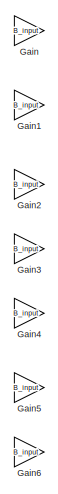
[diagram: Trimming Reference Input  - part 1/3, top left region]
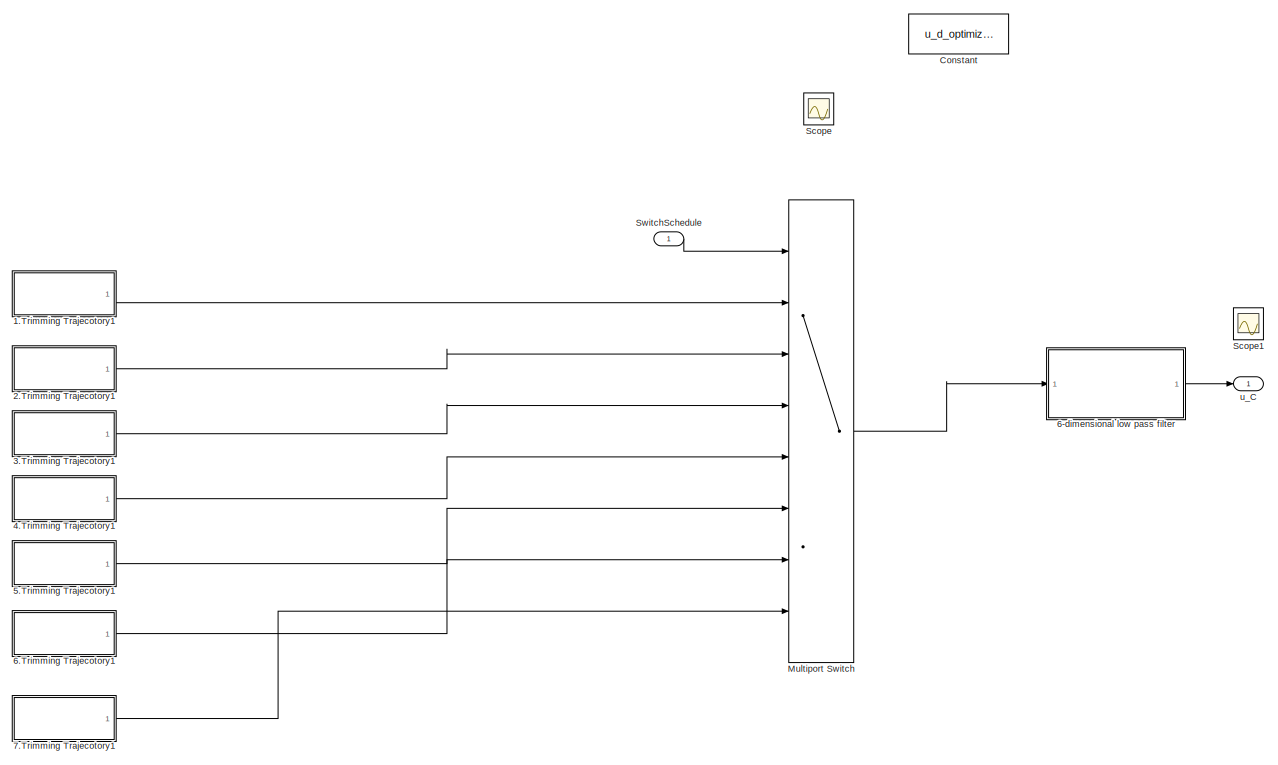
[diagram: Trimming Reference Input  - part 2/3, center side, full height]
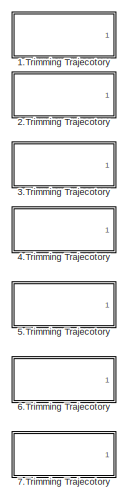
[diagram: Trimming Reference Input  - part 3/3, middle right region]
BLOCK [SubSystem] Trimming Reference Input 
  Ports = [1, 1]
  RequestExecContextInheritance = off
  Variant = off
BLOCK [SubSystem] Trimming Reference Input /1.Trimming Trajecotory
  Commented = on
  Ports = [0, 1]
  RequestExecContextInheritance = off
  Variant = off
BLOCK [Constant] Trimming Reference Input /1.Trimming Trajecotory/Constant
  Value = tau_d_1(1,1,1)
BLOCK [Constant] Trimming Reference Input /1.Trimming Trajecotory/Constant1
  Value = tau_d_1(2,1,1)
BLOCK [Constant] Trimming Reference Input /1.Trimming Trajecotory/Constant2
  Value = tau_d_1(3,1,1)
BLOCK [Constant] Trimming Reference Input /1.Trimming Trajecotory/Constant3
  Value = tau_d_1(4,1,1)
BLOCK [Constant] Trimming Reference Input /1.Trimming Trajecotory/Constant4
  Value = tau_d_1(5,1,1)
BLOCK [Constant] Trimming Reference Input /1.Trimming Trajecotory/Constant5
  Value = tau_d_1(6,1,1)
BLOCK [Mux] Trimming Reference Input /1.Trimming Trajecotory/Mux
  DisplayOption = bar
  Inputs = 6
  Ports = [6, 1]
BLOCK [Outport] Trimming Reference Input /1.Trimming Trajecotory/u_d
  IconDisplay = Port number
BLOCK [SubSystem] Trimming Reference Input /1.Trimming Trajecotory1
  Ports = [0, 1]
  RequestExecContextInheritance = off
  Variant = off
BLOCK [Constant] Trimming Reference Input /1.Trimming Trajecotory1/Constant
  Value = u_d_1
BLOCK [Outport] Trimming Reference Input /1.Trimming Trajecotory1/u_d
  IconDisplay = Port number
BLOCK [SubSystem] Trimming Reference Input /2.Trimming Trajecotory
  Commented = on
  Ports = [0, 1]
  RequestExecContextInheritance = off
  Variant = off
BLOCK [Constant] Trimming Reference Input /2.Trimming Trajecotory/Constant
  Value = tau_d_2(1,1,1)
BLOCK [Constant] Trimming Reference Input /2.Trimming Trajecotory/Constant1
  Value = tau_d_2(2,1,1)
BLOCK [Constant] Trimming Reference Input /2.Trimming Trajecotory/Constant2
  Value = tau_d_2(3,1,1)
BLOCK [Constant] Trimming Reference Input /2.Trimming Trajecotory/Constant3
  Value = tau_d_2(4,1,1)
BLOCK [Constant] Trimming Reference Input /2.Trimming Trajecotory/Constant4
  Value = tau_d_2(5,1,1)
BLOCK [Constant] Trimming Reference Input /2.Trimming Trajecotory/Constant5
  Value = tau_d_2(6,1,1)
BLOCK [Mux] Trimming Reference Input /2.Trimming Trajecotory/Mux
  DisplayOption = bar
  Inputs = 6
  Ports = [6, 1]
BLOCK [Outport] Trimming Reference Input /2.Trimming Trajecotory/u_d
  IconDisplay = Port number
BLOCK [SubSystem] Trimming Reference Input /2.Trimming Trajecotory1
  Ports = [0, 1]
  RequestExecContextInheritance = off
  Variant = off
BLOCK [Constant] Trimming Reference Input /2.Trimming Trajecotory1/Constant
  Value = u_d_2
BLOCK [Outport] Trimming Reference Input /2.Trimming Trajecotory1/u_d
  IconDisplay = Port number
BLOCK [SubSystem] Trimming Reference Input /3.Trimming Trajecotory
  Commented = on
  Ports = [0, 1]
  RequestExecContextInheritance = off
  Variant = off
BLOCK [Constant] Trimming Reference Input /3.Trimming Trajecotory/Constant
  Value = tau_d_3(1,1,1)
BLOCK [Constant] Trimming Reference Input /3.Trimming Trajecotory/Constant1
  Value = tau_d_3(2,1,1)
BLOCK [Constant] Trimming Reference Input /3.Trimming Trajecotory/Constant2
  Value = tau_d_3(3,1,1)
BLOCK [Constant] Trimming Reference Input /3.Trimming Trajecotory/Constant3
  Value = tau_d_3(4,1,1)
BLOCK [Constant] Trimming Reference Input /3.Trimming Trajecotory/Constant4
  Value = tau_d_3(5,1,1)
BLOCK [Constant] Trimming Reference Input /3.Trimming Trajecotory/Constant5
  Value = tau_d_3(6,1,1)
BLOCK [Mux] Trimming Reference Input /3.Trimming Trajecotory/Mux
  DisplayOption = bar
  Inputs = 6
  Ports = [6, 1]
BLOCK [Outport] Trimming Reference Input /3.Trimming Trajecotory/u_d
  IconDisplay = Port number
BLOCK [SubSystem] Trimming Reference Input /3.Trimming Trajecotory1
  Ports = [0, 1]
  RequestExecContextInheritance = off
  Variant = off
BLOCK [Constant] Trimming Reference Input /3.Trimming Trajecotory1/Constant
  Value = u_d_3
BLOCK [Outport] Trimming Reference Input /3.Trimming Trajecotory1/u_d
  IconDisplay = Port number
BLOCK [SubSystem] Trimming Reference Input /4.Trimming Trajecotory
  Commented = on
  Ports = [0, 1]
  RequestExecContextInheritance = off
  Variant = off
BLOCK [Constant] Trimming Reference Input /4.Trimming Trajecotory/Constant
  Value = tau_d_4(1,1,1)
BLOCK [Constant] Trimming Reference Input /4.Trimming Trajecotory/Constant1
  Value = tau_d_4(2,1,1)
BLOCK [Constant] Trimming Reference Input /4.Trimming Trajecotory/Constant2
  Value = tau_d_4(3,1,1)
BLOCK [Constant] Trimming Reference Input /4.Trimming Trajecotory/Constant3
  Value = tau_d_4(4,1,1)
BLOCK [Constant] Trimming Reference Input /4.Trimming Trajecotory/Constant4
  Value = tau_d_4(5,1,1)
BLOCK [Constant] Trimming Reference Input /4.Trimming Trajecotory/Constant5
  Value = tau_d_4(6,1,1)
BLOCK [Mux] Trimming Reference Input /4.Trimming Trajecotory/Mux
  DisplayOption = bar
  Inputs = 6
  Ports = [6, 1]
BLOCK [Outport] Trimming Reference Input /4.Trimming Trajecotory/u_d
  IconDisplay = Port number
BLOCK [SubSystem] Trimming Reference Input /4.Trimming Trajecotory1
  Ports = [0, 1]
  RequestExecContextInheritance = off
  Variant = off
BLOCK [Constant] Trimming Reference Input /4.Trimming Trajecotory1/Constant
  Value = u_d_4
BLOCK [Outport] Trimming Reference Input /4.Trimming Trajecotory1/u_d
  IconDisplay = Port number
BLOCK [SubSystem] Trimming Reference Input /5.Trimming Trajecotory
  Commented = on
  Ports = [0, 1]
  RequestExecContextInheritance = off
  Variant = off
BLOCK [Constant] Trimming Reference Input /5.Trimming Trajecotory/Constant
  Value = tau_d_5(1,1,1)
BLOCK [Constant] Trimming Reference Input /5.Trimming Trajecotory/Constant1
  Value = tau_d_5(2,1,1)
BLOCK [Constant] Trimming Reference Input /5.Trimming Trajecotory/Constant2
  Value = tau_d_5(3,1,1)
BLOCK [Constant] Trimming Reference Input /5.Trimming Trajecotory/Constant3
  Value = tau_d_5(4,1,1)
BLOCK [Constant] Trimming Reference Input /5.Trimming Trajecotory/Constant4
  Value = tau_d_5(5,1,1)
BLOCK [Constant] Trimming Reference Input /5.Trimming Trajecotory/Constant5
  Value = tau_d_5(6,1,1)
BLOCK [Mux] Trimming Reference Input /5.Trimming Trajecotory/Mux
  DisplayOption = bar
  Inputs = 6
  Ports = [6, 1]
BLOCK [Outport] Trimming Reference Input /5.Trimming Trajecotory/u_d
  IconDisplay = Port number
BLOCK [SubSystem] Trimming Reference Input /5.Trimming Trajecotory1
  Ports = [0, 1]
  RequestExecContextInheritance = off
  Variant = off
BLOCK [Constant] Trimming Reference Input /5.Trimming Trajecotory1/Constant
  Value = u_d_5
BLOCK [Outport] Trimming Reference Input /5.Trimming Trajecotory1/u_d
  IconDisplay = Port number
BLOCK [SubSystem] Trimming Reference Input /6-dimensional low pass filter
  Ports = [1, 1]
  RequestExecContextInheritance = off
  Variant = off
BLOCK [Demux] Trimming Reference Input /6-dimensional low pass filter/Demux
  DisplayOption = bar
  Outputs = 6
  Ports = [1, 6]
BLOCK [Outport] Trimming Reference Input /6-dimensional low pass filter/Filtered Input
  IconDisplay = Port number
BLOCK [Mux] Trimming Reference Input /6-dimensional low pass filter/Mux
  DisplayOption = bar
  Inputs = 6
  Ports = [6, 1]
BLOCK [Inport] Trimming Reference Input /6-dimensional low pass filter/Original Input
  IconDisplay = Port number
BLOCK [TransferFcn] Trimming Reference Input /6-dimensional low pass filter/Transfer Fcn
  Denominator = [1 1]
BLOCK [TransferFcn] Trimming Reference Input /6-dimensional low pass filter/Transfer Fcn1
  Denominator = [1 1]
BLOCK [TransferFcn] Trimming Reference Input /6-dimensional low pass filter/Transfer Fcn2
  Denominator = [1 1]
BLOCK [TransferFcn] Trimming Reference Input /6-dimensional low pass filter/Transfer Fcn3
  Denominator = [1 1]
BLOCK [TransferFcn] Trimming Reference Input /6-dimensional low pass filter/Transfer Fcn4
  Denominator = [1 1]
BLOCK [TransferFcn] Trimming Reference Input /6-dimensional low pass filter/Transfer Fcn5
  Denominator = [1 1]
BLOCK [SubSystem] Trimming Reference Input /6.Trimming Trajecotory
  Commented = on
  Ports = [0, 1]
  RequestExecContextInheritance = off
  Variant = off
BLOCK [Constant] Trimming Reference Input /6.Trimming Trajecotory/Constant
  Value = tau_d_6(1,1,1)
BLOCK [Constant] Trimming Reference Input /6.Trimming Trajecotory/Constant1
  Value = tau_d_6(2,1,1)
BLOCK [Constant] Trimming Reference Input /6.Trimming Trajecotory/Constant2
  Value = tau_d_6(3,1,1)
BLOCK [Constant] Trimming Reference Input /6.Trimming Trajecotory/Constant3
  Value = tau_d_6(4,1,1)
BLOCK [Constant] Trimming Reference Input /6.Trimming Trajecotory/Constant4
  Value = tau_d_6(5,1,1)
BLOCK [Constant] Trimming Reference Input /6.Trimming Trajecotory/Constant5
  Value = tau_d_6(6,1,1)
BLOCK [Mux] Trimming Reference Input /6.Trimming Trajecotory/Mux
  DisplayOption = bar
  Inputs = 6
  Ports = [6, 1]
BLOCK [Outport] Trimming Reference Input /6.Trimming Trajecotory/u_d
  IconDisplay = Port number
BLOCK [SubSystem] Trimming Reference Input /6.Trimming Trajecotory1
  Ports = [0, 1]
  RequestExecContextInheritance = off
  Variant = off
BLOCK [Constant] Trimming Reference Input /6.Trimming Trajecotory1/Constant
  Value = u_d_6
BLOCK [Outport] Trimming Reference Input /6.Trimming Trajecotory1/u_d
  IconDisplay = Port number
BLOCK [SubSystem] Trimming Reference Input /7.Trimming Trajecotory
  Commented = on
  Ports = [0, 1]
  RequestExecContextInheritance = off
  Variant = off
BLOCK [Constant] Trimming Reference Input /7.Trimming Trajecotory/Constant
  Value = tau_d_7(1,1,1)
BLOCK [Constant] Trimming Reference Input /7.Trimming Trajecotory/Constant1
  Value = tau_d_7(2,1,1)
BLOCK [Constant] Trimming Reference Input /7.Trimming Trajecotory/Constant2
  Value = tau_d_7(3,1,1)
BLOCK [Constant] Trimming Reference Input /7.Trimming Trajecotory/Constant3
  Value = tau_d_7(4,1,1)
BLOCK [Constant] Trimming Reference Input /7.Trimming Trajecotory/Constant4
  Value = tau_d_7(5,1,1)
BLOCK [Constant] Trimming Reference Input /7.Trimming Trajecotory/Constant5
  Value = tau_d_7(6,1,1)
BLOCK [Mux] Trimming Reference Input /7.Trimming Trajecotory/Mux
  DisplayOption = bar
  Inputs = 6
  Ports = [6, 1]
BLOCK [Outport] Trimming Reference Input /7.Trimming Trajecotory/u_d
  IconDisplay = Port number
BLOCK [SubSystem] Trimming Reference Input /7.Trimming Trajecotory1
  Ports = [0, 1]
  RequestExecContextInheritance = off
  Variant = off
BLOCK [Constant] Trimming Reference Input /7.Trimming Trajecotory1/Constant
  Value = u_d_7
BLOCK [Outport] Trimming Reference Input /7.Trimming Trajecotory1/u_d
  IconDisplay = Port number
BLOCK [Constant] Trimming Reference Input /Constant
  Commented = on
  Value = u_d_optimized
BLOCK [Gain] Trimming Reference Input /Gain
  Commented = on
  Gain = B_input
  Multiplication = Matrix(K*u)
  OutDataTypeStr = Inherit: Inherit via internal rule
  ParamDataTypeStr = Inherit: Inherit via internal rule
  SaturateOnIntegerOverflow = off
BLOCK [Gain] Trimming Reference Input /Gain1
  Commented = on
  Gain = B_input
  Multiplication = Matrix(K*u)
  OutDataTypeStr = Inherit: Inherit via internal rule
  ParamDataTypeStr = Inherit: Inherit via internal rule
  SaturateOnIntegerOverflow = off
BLOCK [Gain] Trimming Reference Input /Gain2
  Commented = on
  Gain = B_input
  Multiplication = Matrix(K*u)
  OutDataTypeStr = Inherit: Inherit via internal rule
  ParamDataTypeStr = Inherit: Inherit via internal rule
  SaturateOnIntegerOverflow = off
BLOCK [Gain] Trimming Reference Input /Gain3
  Commented = on
  Gain = B_input
  Multiplication = Matrix(K*u)
  OutDataTypeStr = Inherit: Inherit via internal rule
  ParamDataTypeStr = Inherit: Inherit via internal rule
  SaturateOnIntegerOverflow = off
BLOCK [Gain] Trimming Reference Input /Gain4
  Commented = on
  Gain = B_input
  Multiplication = Matrix(K*u)
  OutDataTypeStr = Inherit: Inherit via internal rule
  ParamDataTypeStr = Inherit: Inherit via internal rule
  SaturateOnIntegerOverflow = off
BLOCK [Gain] Trimming Reference Input /Gain5
  Commented = on
  Gain = B_input
  Multiplication = Matrix(K*u)
  OutDataTypeStr = Inherit: Inherit via internal rule
  ParamDataTypeStr = Inherit: Inherit via internal rule
  SaturateOnIntegerOverflow = off
BLOCK [Gain] Trimming Reference Input /Gain6
  Commented = on
  Gain = B_input
  Multiplication = Matrix(K*u)
  OutDataTypeStr = Inherit: Inherit via internal rule
  ParamDataTypeStr = Inherit: Inherit via internal rule
  SaturateOnIntegerOverflow = off
BLOCK [MultiPortSwitch] Trimming Reference Input /Multiport Switch
  InputSameDT = off
  Inputs = 7
  Ports = [8, 1]
  SaturateOnIntegerOverflow = off
BLOCK [Scope] Trimming Reference Input /Scope
  NumInputPorts = 1
  Ports = [1]
  ScopeSpecificationString = Simulink.scopes.TimeScopeBlockCfg('CurrentConfiguration', extmgr.ConfigurationSet(extmgr.Configuration('Core','General UI',true),extmgr.Configuration('Core','Source UI',true),extmgr.Configuration('Sources','WiredSimulink',true,'DataLoggingVariableName','ScopeData3'),extmgr.Configuration('Visuals','Time Domain',true,'SerializedDisplays',{struct('MinYLimReal','-9.42478','MaxYLimReal','84.823','YLabe...<+1532ch>
BLOCK [Scope] Trimming Reference Input /Scope1
  NumInputPorts = 1
  Ports = [1]
  ScopeSpecificationString = Simulink.scopes.TimeScopeBlockCfg('CurrentConfiguration', extmgr.ConfigurationSet(extmgr.Configuration('Core','General UI',true),extmgr.Configuration('Core','Source UI',true),extmgr.Configuration('Sources','WiredSimulink',true,'DataLoggingVariableName','ScopeData1'),extmgr.Configuration('Visuals','Time Domain',true,'SerializedDisplays',{struct('MinYLimReal','-9.59956','MaxYLimReal','84.84242','YLa...<+1509ch>
BLOCK [Inport] Trimming Reference Input /SwitchSchedule
  IconDisplay = Port number
BLOCK [Outport] Trimming Reference Input /u_C
  IconDisplay = Port number
BLOCK [SubSystem] Underwater Robot System
  Ports = [1, 3]
  RequestExecContextInheritance = off
  Variant = off
BLOCK [Demux] Underwater Robot System/Demux
  DisplayOption = bar
  Outputs = 6
  Ports = [1, 6]
BLOCK [Outport] Underwater Robot System/Euler_dot
  IconDisplay = Port number
  Port = 3
BLOCK [SubSystem] Underwater Robot System/Underwater Robot System
  Ports = [6, 3]
  RequestExecContextInheritance = off
  Variant = off
BLOCK [Display] Underwater Robot System/Underwater Robot System/Display
  Decimation = 1
  Ports = [1]
BLOCK [Display] Underwater Robot System/Underwater Robot System/Display1
  Decimation = 1
  Ports = [1]
BLOCK [SubSystem] Underwater Robot System/Underwater Robot System/DragCalculation
  Ports = [1, 1]
  RequestExecContextInheritance = off
  Variant = off
BLOCK [Abs] Underwater Robot System/Underwater Robot System/DragCalculation/Abs
  SaturateOnIntegerOverflow = off
BLOCK [Constant] Underwater Robot System/Underwater Robot System/DragCalculation/Constant
  Value = veh.D
BLOCK [Outport] Underwater Robot System/Underwater Robot System/DragCalculation/HullDrag
  IconDisplay = Port number
BLOCK [Product] Underwater Robot System/Underwater Robot System/DragCalculation/Product
  InputSameDT = off
  Multiplication = Matrix(*)
  OutDataTypeStr = Inherit: Inherit via internal rule
  Ports = [2, 1]
  RndMeth = Floor
  SaturateOnIntegerOverflow = off
BLOCK [Product] Underwater Robot System/Underwater Robot System/DragCalculation/Product1
  InputSameDT = off
  OutDataTypeStr = Inherit: Inherit via internal rule
  Ports = [2, 1]
  RndMeth = Floor
  SaturateOnIntegerOverflow = off
BLOCK [Inport] Underwater Robot System/Underwater Robot System/DragCalculation/nu
  IconDisplay = Port number
BLOCK [SubSystem] Underwater Robot System/Underwater Robot System/Dynamic2Kinematic(angular velocity)
  Ports = [1, 3]
  RequestExecContextInheritance = off
  Variant = off
BLOCK [Outport] Underwater Robot System/Underwater Robot System/Dynamic2Kinematic(angular velocity)/DCM
  IconDisplay = Port number
BLOCK [Outport] Underwater Robot System/Underwater Robot System/Dynamic2Kinematic(angular velocity)/Euler
  IconDisplay = Port number
  Port = 2
BLOCK [Outport] Underwater Robot System/Underwater Robot System/Dynamic2Kinematic(angular velocity)/Euler_dot
  IconDisplay = Port number
  Port = 3
BLOCK [SubSystem] Underwater Robot System/Underwater Robot System/Dynamic2Kinematic(angular velocity)/Initial Integration Phi
  Ports = [0, 1]
  RequestExecContextInheritance = off
  Variant = off
BLOCK [Constant] Underwater Robot System/Underwater Robot System/Dynamic2Kinematic(angular velocity)/Initial Integration Phi/Constant
  Value = 0
BLOCK [Outport] Underwater Robot System/Underwater Robot System/Dynamic2Kinematic(angular velocity)/Initial Integration Phi/Initial Phi Integration Value
  IconDisplay = Port number
BLOCK [SubSystem] Underwater Robot System/Underwater Robot System/Dynamic2Kinematic(angular velocity)/Initial Integration Value Generation Psi
  Ports = [0, 1]
  RequestExecContextInheritance = off
  Variant = off
BLOCK [Constant] Underwater Robot System/Underwater Robot System/Dynamic2Kinematic(angular velocity)/Initial Integration Value Generation Psi/Constant
  Value = 0
BLOCK [Outport] Underwater Robot System/Underwater Robot System/Dynamic2Kinematic(angular velocity)/Initial Integration Value Generation Psi/Initial Orientation Integration Value
  IconDisplay = Port number
BLOCK [SubSystem] Underwater Robot System/Underwater Robot System/Dynamic2Kinematic(angular velocity)/Initial Integration Value Generation Theta
  Ports = [0, 1]
  RequestExecContextInheritance = off
  Variant = off
BLOCK [Constant] Underwater Robot System/Underwater Robot System/Dynamic2Kinematic(angular velocity)/Initial Integration Value Generation Theta/Constant
  Value = 0
BLOCK [Outport] Underwater Robot System/Underwater Robot System/Dynamic2Kinematic(angular velocity)/Initial Integration Value Generation Theta/Initial Theta Integration Value
  IconDisplay = Port number
BLOCK [Mux] Underwater Robot System/Underwater Robot System/Dynamic2Kinematic(angular velocity)/Mux1
  DisplayOption = bar
  Inputs = 3
  Ports = [3, 1]
BLOCK [Reference] Underwater Robot System/Underwater Robot System/Dynamic2Kinematic(angular velocity)/Rotation Angles to Direction Cosine Matrix  REF=sharedtransform/Rotation Angles to
Direction Cosine Matrix
  AttributesFormatString = Rotation Order: %<rotationOrder>
  Ports = [1, 1]
  SourceBlock = sharedtransform/Rotation Angles to\nDirection Cosine Matrix
  SourceProductBaseCode = AE
  SourceProductName = Aerospace Blockset
  SourceType = Ang2DCM
BLOCK [Selector] Underwater Robot System/Underwater Robot System/Dynamic2Kinematic(angular velocity)/Selector
  IndexOptions = Index vector (dialog)
  Indices = [3 2 1]
  InputPortWidth = 3
  OutputSizes = 1
  Ports = [1, 1]
BLOCK [Inport] Underwater Robot System/Underwater Robot System/Dynamic2Kinematic(angular velocity)/p q r 
  IconDisplay = Port number
BLOCK [Integrator] Underwater Robot System/Underwater Robot System/Dynamic2Kinematic(angular velocity)/phi theta psi
  InitialConditionSource = external
  Ports = [2, 1]
BLOCK [Reference] Underwater Robot System/Underwater Robot System/Dynamic2Kinematic(angular velocity)/phidot thetadot psidot  REF=shared6dofsys/DCM & Euler Angles (Euler)/phidot  (lib defined in slx_91fbb8bad28b)
thetadot
psidot
  Ports = [2, 1]
  SourceBlock = shared6dofsys/DCM & Euler Angles (Euler)/phidot\nthetadot\npsidot
  SourceType = SubSystem
BLOCK [Outport] Underwater Robot System/Underwater Robot System/Euler_dot
  IconDisplay = Port number
  Port = 3
BLOCK [SubSystem] Underwater Robot System/Underwater Robot System/Initial Integration Value Generation Generalised Location
  Ports = [0, 1]
  RequestExecContextInheritance = off
  Variant = off
BLOCK [Constant] Underwater Robot System/Underwater Robot System/Initial Integration Value Generation Generalised Location/Constant
  Value = 0
BLOCK [Outport] Underwater Robot System/Underwater Robot System/Initial Integration Value Generation Generalised Location/Initial Location Integration Value
  IconDisplay = Port number
BLOCK [Mux] Underwater Robot System/Underwater Robot System/Initial Integration Value Generation Generalised Location/Mux
  DisplayOption = bar
  Inputs = 3
  Ports = [3, 1]
BLOCK [Inport] Underwater Robot System/Underwater Robot System/K
  IconDisplay = Port number
  Port = 4
BLOCK [Inport] Underwater Robot System/Underwater Robot System/M
  IconDisplay = Port number
  Port = 5
BLOCK [Mux] Underwater Robot System/Underwater Robot System/Mux
  DisplayOption = bar
  Inputs = 2
  Ports = [2, 1]
BLOCK [Mux] Underwater Robot System/Underwater Robot System/Mux1
  DisplayOption = bar
  Inputs = 2
  Ports = [2, 1]
BLOCK [Mux] Underwater Robot System/Underwater Robot System/Mux2
  DisplayOption = bar
  Inputs = 6
  Ports = [6, 1]
BLOCK [Inport] Underwater Robot System/Underwater Robot System/N
  IconDisplay = Port number
  Port = 6
BLOCK [Integrator] Underwater Robot System/Underwater Robot System/Position Integrator(x,y,z)
  InitialConditionSource = external
  Ports = [2, 1]
BLOCK [Scope] Underwater Robot System/Underwater Robot System/Scope
  NumInputPorts = 1
  Ports = [1]
  ScopeSpecificationString = Simulink.scopes.TimeScopeBlockCfg('CurrentConfiguration', extmgr.ConfigurationSet(extmgr.Configuration('Core','General UI',true),extmgr.Configuration('Core','Source UI',true),extmgr.Configuration('Sources','WiredSimulink',true,'DataLoggingVariableName','ScopeData4'),extmgr.Configuration('Visuals','Time Domain',true,'SerializedDisplays',{struct('MinYLimReal','-339.91126','MaxYLimReal','1091.30307',...<+1522ch>
BLOCK [Sum] Underwater Robot System/Underwater Robot System/Sum
  IconShape = round
  InputSameDT = off
  Inputs = |+-
  OutDataTypeStr = Inherit: Inherit via internal rule
  Ports = [2, 1]
  SaturateOnIntegerOverflow = off
BLOCK [Math] Underwater Robot System/Underwater Robot System/Transpose
  Operator = transpose
  Ports = [1, 1]
BLOCK [SubSystem] Underwater Robot System/Underwater Robot System/Underwater Robot Dynamics 
  Ports = [1, 2]
  RequestExecContextInheritance = off
  Variant = off
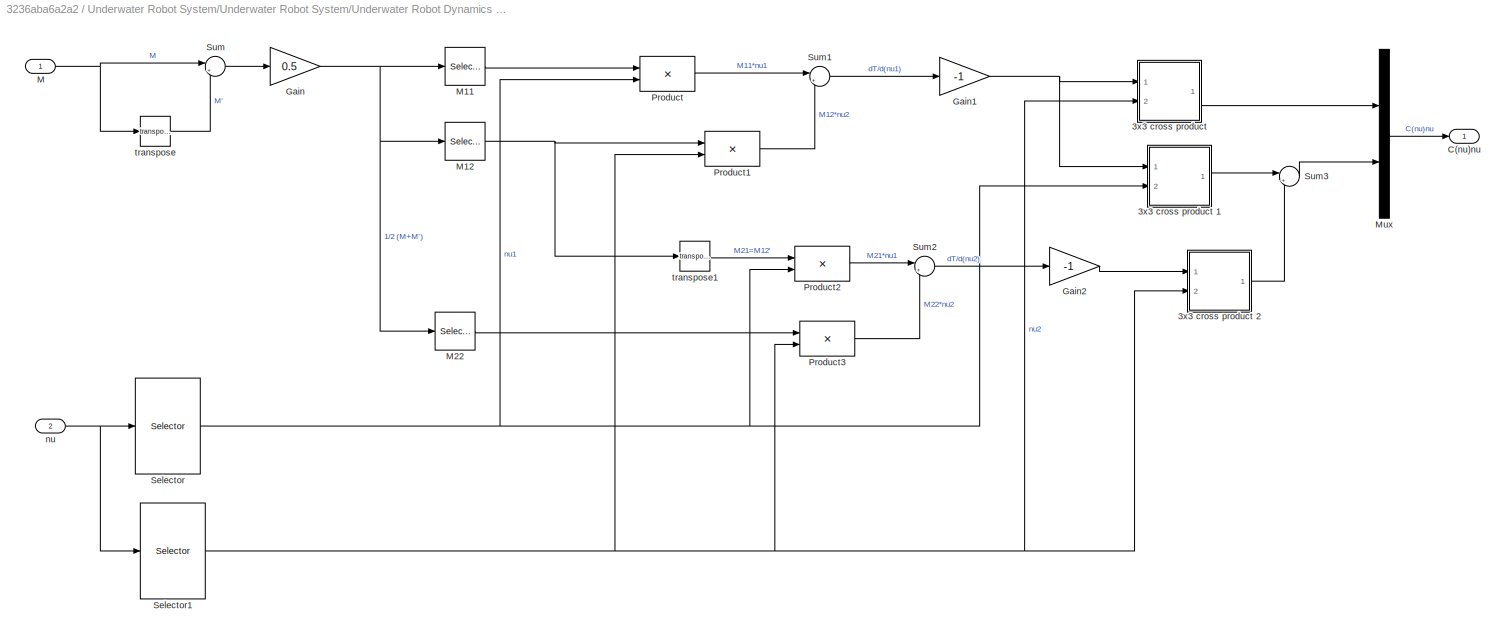
BLOCK [SubSystem] Underwater Robot System/Underwater Robot System/Underwater Robot Dynamics /6DOF Coriolis forces
  Ports = [2, 1]
  RequestExecContextInheritance = off
  Variant = off
BLOCK [SubSystem] Underwater Robot System/Underwater Robot System/Underwater Robot Dynamics /6DOF Coriolis forces/3x3 cross product
  Ports = [2, 1]
  RequestExecContextInheritance = off
  Variant = off
BLOCK [SubSystem] Underwater Robot System/Underwater Robot System/Underwater Robot Dynamics /6DOF Coriolis forces/3x3 cross product 1
  Ports = [2, 1]
  RequestExecContextInheritance = off
  Variant = off
BLOCK [Product] Underwater Robot System/Underwater Robot System/Underwater Robot Dynamics /6DOF Coriolis forces/3x3 cross product 1/Product
  Ports = [2, 1]
  RndMeth = Floor
BLOCK [Product] Underwater Robot System/Underwater Robot System/Underwater Robot Dynamics /6DOF Coriolis forces/3x3 cross product 1/Product1
  Ports = [2, 1]
  RndMeth = Floor
BLOCK [Selector] Underwater Robot System/Underwater Robot System/Underwater Robot Dynamics /6DOF Coriolis forces/3x3 cross product 1/Selector
  IndexOptions = Index vector (dialog)
  Indices = [2 3 1]
  InputPortWidth = 3
  OutputSizes = 1
  Ports = [1, 1]
BLOCK [Selector] Underwater Robot System/Underwater Robot System/Underwater Robot Dynamics /6DOF Coriolis forces/3x3 cross product 1/Selector1
  IndexOptions = Index vector (dialog)
  Indices = [3 1 2]
  InputPortWidth = 3
  OutputSizes = 1
  Ports = [1, 1]
BLOCK [Selector] Underwater Robot System/Underwater Robot System/Underwater Robot Dynamics /6DOF Coriolis forces/3x3 cross product 1/Selector2
  IndexOptions = Index vector (dialog)
  Indices = [2 3 1]
  InputPortWidth = 3
  OutputSizes = 1
  Ports = [1, 1]
BLOCK [Selector] Underwater Robot System/Underwater Robot System/Underwater Robot Dynamics /6DOF Coriolis forces/3x3 cross product 1/Selector3
  IndexOptions = Index vector (dialog)
  Indices = [3 1 2]
  InputPortWidth = 3
  OutputSizes = 1
  Ports = [1, 1]
BLOCK [Sum] Underwater Robot System/Underwater Robot System/Underwater Robot Dynamics /6DOF Coriolis forces/3x3 cross product 1/Sum
  IconShape = round
  Inputs = +|-
  Ports = [2, 1]
BLOCK [Inport] Underwater Robot System/Underwater Robot System/Underwater Robot Dynamics /6DOF Coriolis forces/3x3 cross product 1/a
  IconDisplay = Port number
BLOCK [Inport] Underwater Robot System/Underwater Robot System/Underwater Robot Dynamics /6DOF Coriolis forces/3x3 cross product 1/b
  IconDisplay = Port number
  Port = 2
BLOCK [Outport] Underwater Robot System/Underwater Robot System/Underwater Robot Dynamics /6DOF Coriolis forces/3x3 cross product 1/c
  IconDisplay = Port number
  InitialOutput = 0
BLOCK [SubSystem] Underwater Robot System/Underwater Robot System/Underwater Robot Dynamics /6DOF Coriolis forces/3x3 cross product 2
  Ports = [2, 1]
  RequestExecContextInheritance = off
  Variant = off
BLOCK [Product] Underwater Robot System/Underwater Robot System/Underwater Robot Dynamics /6DOF Coriolis forces/3x3 cross product 2/Product
  Ports = [2, 1]
  RndMeth = Floor
BLOCK [Product] Underwater Robot System/Underwater Robot System/Underwater Robot Dynamics /6DOF Coriolis forces/3x3 cross product 2/Product1
  Ports = [2, 1]
  RndMeth = Floor
BLOCK [Selector] Underwater Robot System/Underwater Robot System/Underwater Robot Dynamics /6DOF Coriolis forces/3x3 cross product 2/Selector
  IndexOptions = Index vector (dialog)
  Indices = [2 3 1]
  InputPortWidth = 3
  OutputSizes = 1
  Ports = [1, 1]
BLOCK [Selector] Underwater Robot System/Underwater Robot System/Underwater Robot Dynamics /6DOF Coriolis forces/3x3 cross product 2/Selector1
  IndexOptions = Index vector (dialog)
  Indices = [3 1 2]
  InputPortWidth = 3
  OutputSizes = 1
  Ports = [1, 1]
BLOCK [Selector] Underwater Robot System/Underwater Robot System/Underwater Robot Dynamics /6DOF Coriolis forces/3x3 cross product 2/Selector2
  IndexOptions = Index vector (dialog)
  Indices = [2 3 1]
  InputPortWidth = 3
  OutputSizes = 1
  Ports = [1, 1]
BLOCK [Selector] Underwater Robot System/Underwater Robot System/Underwater Robot Dynamics /6DOF Coriolis forces/3x3 cross product 2/Selector3
  IndexOptions = Index vector (dialog)
  Indices = [3 1 2]
  InputPortWidth = 3
  OutputSizes = 1
  Ports = [1, 1]
BLOCK [Sum] Underwater Robot System/Underwater Robot System/Underwater Robot Dynamics /6DOF Coriolis forces/3x3 cross product 2/Sum
  IconShape = round
  Inputs = +|-
  Ports = [2, 1]
BLOCK [Inport] Underwater Robot System/Underwater Robot System/Underwater Robot Dynamics /6DOF Coriolis forces/3x3 cross product 2/a
  IconDisplay = Port number
BLOCK [Inport] Underwater Robot System/Underwater Robot System/Underwater Robot Dynamics /6DOF Coriolis forces/3x3 cross product 2/b
  IconDisplay = Port number
  Port = 2
BLOCK [Outport] Underwater Robot System/Underwater Robot System/Underwater Robot Dynamics /6DOF Coriolis forces/3x3 cross product 2/c
  IconDisplay = Port number
  InitialOutput = 0
BLOCK [Product] Underwater Robot System/Underwater Robot System/Underwater Robot Dynamics /6DOF Coriolis forces/3x3 cross product/Product
  Ports = [2, 1]
  RndMeth = Floor
BLOCK [Product] Underwater Robot System/Underwater Robot System/Underwater Robot Dynamics /6DOF Coriolis forces/3x3 cross product/Product1
  Ports = [2, 1]
  RndMeth = Floor
BLOCK [Selector] Underwater Robot System/Underwater Robot System/Underwater Robot Dynamics /6DOF Coriolis forces/3x3 cross product/Selector
  IndexOptions = Index vector (dialog)
  Indices = [2 3 1]
  InputPortWidth = 3
  OutputSizes = 1
  Ports = [1, 1]
BLOCK [Selector] Underwater Robot System/Underwater Robot System/Underwater Robot Dynamics /6DOF Coriolis forces/3x3 cross product/Selector1
  IndexOptions = Index vector (dialog)
  Indices = [3 1 2]
  InputPortWidth = 3
  OutputSizes = 1
  Ports = [1, 1]
BLOCK [Selector] Underwater Robot System/Underwater Robot System/Underwater Robot Dynamics /6DOF Coriolis forces/3x3 cross product/Selector2
  IndexOptions = Index vector (dialog)
  Indices = [2 3 1]
  InputPortWidth = 3
  OutputSizes = 1
  Ports = [1, 1]
BLOCK [Selector] Underwater Robot System/Underwater Robot System/Underwater Robot Dynamics /6DOF Coriolis forces/3x3 cross product/Selector3
  IndexOptions = Index vector (dialog)
  Indices = [3 1 2]
  InputPortWidth = 3
  OutputSizes = 1
  Ports = [1, 1]
BLOCK [Sum] Underwater Robot System/Underwater Robot System/Underwater Robot Dynamics /6DOF Coriolis forces/3x3 cross product/Sum
  IconShape = round
  Inputs = +|-
  Ports = [2, 1]
BLOCK [Inport] Underwater Robot System/Underwater Robot System/Underwater Robot Dynamics /6DOF Coriolis forces/3x3 cross product/a
  IconDisplay = Port number
BLOCK [Inport] Underwater Robot System/Underwater Robot System/Underwater Robot Dynamics /6DOF Coriolis forces/3x3 cross product/b
  IconDisplay = Port number
  Port = 2
BLOCK [Outport] Underwater Robot System/Underwater Robot System/Underwater Robot Dynamics /6DOF Coriolis forces/3x3 cross product/c
  IconDisplay = Port number
  InitialOutput = 0
BLOCK [Outport] Underwater Robot System/Underwater Robot System/Underwater Robot Dynamics /6DOF Coriolis forces/C(nu)nu
  IconDisplay = Port number
BLOCK [Gain] Underwater Robot System/Underwater Robot System/Underwater Robot Dynamics /6DOF Coriolis forces/Gain
  Gain = 0.5
BLOCK [Gain] Underwater Robot System/Underwater Robot System/Underwater Robot Dynamics /6DOF Coriolis forces/Gain1
  Gain = -1
BLOCK [Gain] Underwater Robot System/Underwater Robot System/Underwater Robot Dynamics /6DOF Coriolis forces/Gain2
  Gain = -1
BLOCK [Inport] Underwater Robot System/Underwater Robot System/Underwater Robot Dynamics /6DOF Coriolis forces/M
  IconDisplay = Port number
BLOCK [Selector] Underwater Robot System/Underwater Robot System/Underwater Robot Dynamics /6DOF Coriolis forces/M11
  IndexOptions = Index vector (dialog),Index vector (dialog)
  Indices = [1 2 3],[1 2 3]
  InputPortWidth = 3
  NumberOfDimensions = 2
  OutputSizes = 1
  Ports = [1, 1]
BLOCK [Selector] Underwater Robot System/Underwater Robot System/Underwater Robot Dynamics /6DOF Coriolis forces/M12
  IndexOptions = Index vector (dialog),Index vector (dialog)
  Indices = [1 2 3],[4 5 6]
  InputPortWidth = 3
  NumberOfDimensions = 2
  OutputSizes = 1
  Ports = [1, 1]
BLOCK [Selector] Underwater Robot System/Underwater Robot System/Underwater Robot Dynamics /6DOF Coriolis forces/M22
  IndexOptions = Index vector (dialog),Index vector (dialog)
  Indices = [4 5 6],[4 5 6]
  InputPortWidth = 3
  NumberOfDimensions = 2
  OutputSizes = 1
  Ports = [1, 1]
BLOCK [Mux] Underwater Robot System/Underwater Robot System/Underwater Robot Dynamics /6DOF Coriolis forces/Mux
  DisplayOption = bar
  Inputs = 2
  Ports = [2, 1]
BLOCK [Product] Underwater Robot System/Underwater Robot System/Underwater Robot Dynamics /6DOF Coriolis forces/Product
  InputSameDT = off
  Multiplication = Matrix(*)
  Ports = [2, 1]
  RndMeth = Floor
BLOCK [Product] Underwater Robot System/Underwater Robot System/Underwater Robot Dynamics /6DOF Coriolis forces/Product1
  InputSameDT = off
  Multiplication = Matrix(*)
  Ports = [2, 1]
  RndMeth = Floor
BLOCK [Product] Underwater Robot System/Underwater Robot System/Underwater Robot Dynamics /6DOF Coriolis forces/Product2
  InputSameDT = off
  Multiplication = Matrix(*)
  Ports = [2, 1]
  RndMeth = Floor
BLOCK [Product] Underwater Robot System/Underwater Robot System/Underwater Robot Dynamics /6DOF Coriolis forces/Product3
  InputSameDT = off
  Multiplication = Matrix(*)
  Ports = [2, 1]
  RndMeth = Floor
BLOCK [Selector] Underwater Robot System/Underwater Robot System/Underwater Robot Dynamics /6DOF Coriolis forces/Selector
  IndexOptions = Index vector (dialog)
  Indices = [1 2 3]
  InputPortWidth = 6
  OutputSizes = 1
  Ports = [1, 1]
BLOCK [Selector] Underwater Robot System/Underwater Robot System/Underwater Robot Dynamics /6DOF Coriolis forces/Selector1
  IndexOptions = Index vector (dialog)
  Indices = [4 5 6]
  InputPortWidth = 6
  OutputSizes = 1
  Ports = [1, 1]
BLOCK [Sum] Underwater Robot System/Underwater Robot System/Underwater Robot Dynamics /6DOF Coriolis forces/Sum
  IconShape = round
  InputSameDT = off
  Inputs = |++
  OutDataTypeStr = Inherit: Inherit via internal rule
  Ports = [2, 1]
BLOCK [Sum] Underwater Robot System/Underwater Robot System/Underwater Robot Dynamics /6DOF Coriolis forces/Sum1
  IconShape = round
  InputSameDT = off
  Inputs = |++
  OutDataTypeStr = Inherit: Inherit via internal rule
  Ports = [2, 1]
BLOCK [Sum] Underwater Robot System/Underwater Robot System/Underwater Robot Dynamics /6DOF Coriolis forces/Sum2
  IconShape = round
  InputSameDT = off
  Inputs = |++
  OutDataTypeStr = Inherit: Inherit via internal rule
  Ports = [2, 1]
BLOCK [Sum] Underwater Robot System/Underwater Robot System/Underwater Robot Dynamics /6DOF Coriolis forces/Sum3
  IconShape = round
  InputSameDT = off
  Inputs = |++
  OutDataTypeStr = Inherit: Inherit via internal rule
  Ports = [2, 1]
BLOCK [Inport] Underwater Robot System/Underwater Robot System/Underwater Robot Dynamics /6DOF Coriolis forces/nu
  IconDisplay = Port number
  Port = 2
BLOCK [Math] Underwater Robot System/Underwater Robot System/Underwater Robot Dynamics /6DOF Coriolis forces/transpose
  Operator = transpose
  Ports = [1, 1]
BLOCK [Math] Underwater Robot System/Underwater Robot System/Underwater Robot Dynamics /6DOF Coriolis forces/transpose1
  Operator = transpose
  Ports = [1, 1]
BLOCK [Constant] Underwater Robot System/Underwater Robot System/Underwater Robot Dynamics /M_A
  Value = veh.Ma
BLOCK [Constant] Underwater Robot System/Underwater Robot System/Underwater Robot Dynamics /M_RB
  Value = veh.Mrb
BLOCK [Product] Underwater Robot System/Underwater Robot System/Underwater Robot Dynamics /Product
  InputSameDT = off
  Inputs = /*
  Multiplication = Matrix(*)
  Ports = [2, 1]
  RndMeth = Floor
BLOCK [Scope] Underwater Robot System/Underwater Robot System/Underwater Robot Dynamics /Scope
  NumInputPorts = 1
  Ports = [1]
  ScopeSpecificationString = Simulink.scopes.TimeScopeBlockCfg('CurrentConfiguration', extmgr.ConfigurationSet(extmgr.Configuration('Core','General UI',true),extmgr.Configuration('Core','Source UI',true),extmgr.Configuration('Sources','WiredSimulink',true,'DataLoggingVariableName','ScopeData3'),extmgr.Configuration('Visuals','Time Domain',true,'SerializedDisplays',{struct('MinYLimReal','-1.00000','MaxYLimReal','1.00000','YLab...<+1560ch>
BLOCK [Selector] Underwater Robot System/Underwater Robot System/Underwater Robot Dynamics /Selector1
  IndexOptions = Index vector (dialog)
  Indices = [1 2 3]
  InputPortWidth = 6
  OutputSizes = 1
  Ports = [1, 1]
BLOCK [Selector] Underwater Robot System/Underwater Robot System/Underwater Robot Dynamics /Selector2
  IndexOptions = Index vector (dialog)
  Indices = [4 5 6]
  InputPortWidth = 6
  OutputSizes = 1
  Ports = [1, 1]
BLOCK [Sum] Underwater Robot System/Underwater Robot System/Underwater Robot Dynamics /Sum
  IconShape = round
  InputSameDT = off
  Inputs = |+-
  OutDataTypeStr = Inherit: Inherit via internal rule
  Ports = [2, 1]
  SaturateOnIntegerOverflow = off
BLOCK [Sum] Underwater Robot System/Underwater Robot System/Underwater Robot Dynamics /Sum2
  InputSameDT = off
  OutDataTypeStr = Inherit: Inherit via internal rule
  Ports = [2, 1]
BLOCK [Integrator] Underwater Robot System/Underwater Robot System/Underwater Robot Dynamics /Velocity Integrator
  Ports = [1, 1]
BLOCK [Inport] Underwater Robot System/Underwater Robot System/Underwater Robot Dynamics /tau_b
  IconDisplay = Port number
BLOCK [Outport] Underwater Robot System/Underwater Robot System/Underwater Robot Dynamics /v
  IconDisplay = Port number
BLOCK [Outport] Underwater Robot System/Underwater Robot System/Underwater Robot Dynamics /w_ib
  IconDisplay = Port number
  Port = 2
BLOCK [Inport] Underwater Robot System/Underwater Robot System/X
  IconDisplay = Port number
BLOCK [Inport] Underwater Robot System/Underwater Robot System/Y
  IconDisplay = Port number
  Port = 2
BLOCK [Inport] Underwater Robot System/Underwater Robot System/Z
  IconDisplay = Port number
  Port = 3
BLOCK [Outport] Underwater Robot System/Underwater Robot System/eta
  IconDisplay = Port number
BLOCK [Outport] Underwater Robot System/Underwater Robot System/nu
  IconDisplay = Port number
  Port = 2
BLOCK [SubSystem] Underwater Robot System/Underwater Robot System/transform to inertial world frame {i}
  Ports = [2, 1]
  RequestExecContextInheritance = off
  Variant = off
BLOCK [Product] Underwater Robot System/Underwater Robot System/transform to inertial world frame {i}/Product
  Multiplication = Matrix(*)
  Ports = [2, 1]
  RndMeth = Floor
BLOCK [Reshape] Underwater Robot System/Underwater Robot System/transform to inertial world frame {i}/Reshape1
  OutputDimensionality = Column vector (2-D)
  Ports = [1, 1]
BLOCK [Reshape] Underwater Robot System/Underwater Robot System/transform to inertial world frame {i}/Reshape2
  Ports = [1, 1]
BLOCK [Outport] Underwater Robot System/Underwater Robot System/transform to inertial world frame {i}/Ve
  IconDisplay = Port number
BLOCK [Inport] Underwater Robot System/Underwater Robot System/transform to inertial world frame {i}/linear velocity transformation matrix
  IconDisplay = Port number
  Port = 2
BLOCK [Inport] Underwater Robot System/Underwater Robot System/transform to inertial world frame {i}/v
  IconDisplay = Port number
BLOCK [Outport] Underwater Robot System/eta
  IconDisplay = Port number
BLOCK [Outport] Underwater Robot System/nu
  IconDisplay = Port number
  Port = 2
BLOCK [Inport] Underwater Robot System/reference feedforward input 
  IconDisplay = Port number
BLOCK [Outport] err
  IconDisplay = Port number
BLOCK [Outport] eta
  IconDisplay = Port number
  Port = 3
ANNOTATION (root): Phi_dot
ANNOTATION (root): Psi_dot
ANNOTATION (root): Theta_dot
LINE Actuator/Add:1 -> Actuator/tau:1
NET Actuator/Demux:1 -> Actuator/Scope1:1, Actuator/Thruster Model1:1
NET Actuator/Demux:2 -> Actuator/Scope2:1, Actuator/Thruster Model2:1
NET Actuator/Demux:3 -> Actuator/Scope3:1, Actuator/Thruster Model3:1
NET Actuator/Demux:4 -> Actuator/Scope4:1, Actuator/Thruster Model4:1
NET Actuator/Demux:5 -> Actuator/Scope5:1, Actuator/Thruster Model5:1
NET Actuator/Demux:6 -> Actuator/Scope6:1, Actuator/Thruster Model6:1
LINE Actuator/Thruster Model1/3x3 cross product/Product1:1 -> Actuator/Thruster Model1/3x3 cross product/Sum:2
LINE Actuator/Thruster Model1/3x3 cross product/Product:1 -> Actuator/Thruster Model1/3x3 cross product/Sum:1
LINE Actuator/Thruster Model1/3x3 cross product/Selector1:1 -> Actuator/Thruster Model1/3x3 cross product/Product:2
LINE Actuator/Thruster Model1/3x3 cross product/Selector2:1 -> Actuator/Thruster Model1/3x3 cross product/Product1:2
LINE Actuator/Thruster Model1/3x3 cross product/Selector3:1 -> Actuator/Thruster Model1/3x3 cross product/Product1:1
LINE Actuator/Thruster Model1/3x3 cross product/Selector:1 -> Actuator/Thruster Model1/3x3 cross product/Product:1
LINE Actuator/Thruster Model1/3x3 cross product/Sum:1 -> Actuator/Thruster Model1/3x3 cross product/c:1
NET Actuator/Thruster Model1/3x3 cross product/a:1 -> Actuator/Thruster Model1/3x3 cross product/Selector3:1, Actuator/Thruster Model1/3x3 cross product/Selector:1
NET Actuator/Thruster Model1/3x3 cross product/b:1 -> Actuator/Thruster Model1/3x3 cross product/Selector1:1, Actuator/Thruster Model1/3x3 cross product/Selector2:1
LINE Actuator/Thruster Model1/3x3 cross product:1 -> Actuator/Thruster Model1/Product:2
LINE Actuator/Thruster Model1/Constant1:1 -> Actuator/Thruster Model1/3x3 cross product:2
LINE Actuator/Thruster Model1/Constant:1 -> Actuator/Thruster Model1/3x3 cross product:1
LINE Actuator/Thruster Model1/Gain1:1 -> Actuator/Thruster Model1/Sum:1
LINE Actuator/Thruster Model1/Gain:1 -> Actuator/Thruster Model1/Mux:1
LINE Actuator/Thruster Model1/Mux:1 -> Actuator/Thruster Model1/tau:1
NET Actuator/Thruster Model1/Product:1 -> Actuator/Thruster Model1/Display:1, Actuator/Thruster Model1/Sum:2
LINE Actuator/Thruster Model1/Sum:1 -> Actuator/Thruster Model1/Mux:2
NET Actuator/Thruster Model1/u:1 -> Actuator/Thruster Model1/Gain1:1, Actuator/Thruster Model1/Gain:1, Actuator/Thruster Model1/Product:1
LINE Actuator/Thruster Model1:1 -> Actuator/Add:1
LINE Actuator/Thruster Model2/3x3 cross product/Product1:1 -> Actuator/Thruster Model2/3x3 cross product/Sum:2
LINE Actuator/Thruster Model2/3x3 cross product/Product:1 -> Actuator/Thruster Model2/3x3 cross product/Sum:1
LINE Actuator/Thruster Model2/3x3 cross product/Selector1:1 -> Actuator/Thruster Model2/3x3 cross product/Product:2
LINE Actuator/Thruster Model2/3x3 cross product/Selector2:1 -> Actuator/Thruster Model2/3x3 cross product/Product1:2
LINE Actuator/Thruster Model2/3x3 cross product/Selector3:1 -> Actuator/Thruster Model2/3x3 cross product/Product1:1
LINE Actuator/Thruster Model2/3x3 cross product/Selector:1 -> Actuator/Thruster Model2/3x3 cross product/Product:1
LINE Actuator/Thruster Model2/3x3 cross product/Sum:1 -> Actuator/Thruster Model2/3x3 cross product/c:1
NET Actuator/Thruster Model2/3x3 cross product/a:1 -> Actuator/Thruster Model2/3x3 cross product/Selector3:1, Actuator/Thruster Model2/3x3 cross product/Selector:1
NET Actuator/Thruster Model2/3x3 cross product/b:1 -> Actuator/Thruster Model2/3x3 cross product/Selector1:1, Actuator/Thruster Model2/3x3 cross product/Selector2:1
LINE Actuator/Thruster Model2/3x3 cross product:1 -> Actuator/Thruster Model2/Product:2
LINE Actuator/Thruster Model2/Constant1:1 -> Actuator/Thruster Model2/3x3 cross product:2
LINE Actuator/Thruster Model2/Constant:1 -> Actuator/Thruster Model2/3x3 cross product:1
LINE Actuator/Thruster Model2/Gain1:1 -> Actuator/Thruster Model2/Sum:1
LINE Actuator/Thruster Model2/Gain:1 -> Actuator/Thruster Model2/Mux:1
LINE Actuator/Thruster Model2/Mux:1 -> Actuator/Thruster Model2/tau:1
NET Actuator/Thruster Model2/Product:1 -> Actuator/Thruster Model2/Display:1, Actuator/Thruster Model2/Sum:2
LINE Actuator/Thruster Model2/Sum:1 -> Actuator/Thruster Model2/Mux:2
NET Actuator/Thruster Model2/u:1 -> Actuator/Thruster Model2/Gain1:1, Actuator/Thruster Model2/Gain:1, Actuator/Thruster Model2/Product:1
LINE Actuator/Thruster Model2:1 -> Actuator/Add:2
LINE Actuator/Thruster Model3/3x3 cross product/Product1:1 -> Actuator/Thruster Model3/3x3 cross product/Sum:2
LINE Actuator/Thruster Model3/3x3 cross product/Product:1 -> Actuator/Thruster Model3/3x3 cross product/Sum:1
LINE Actuator/Thruster Model3/3x3 cross product/Selector1:1 -> Actuator/Thruster Model3/3x3 cross product/Product:2
LINE Actuator/Thruster Model3/3x3 cross product/Selector2:1 -> Actuator/Thruster Model3/3x3 cross product/Product1:2
LINE Actuator/Thruster Model3/3x3 cross product/Selector3:1 -> Actuator/Thruster Model3/3x3 cross product/Product1:1
LINE Actuator/Thruster Model3/3x3 cross product/Selector:1 -> Actuator/Thruster Model3/3x3 cross product/Product:1
LINE Actuator/Thruster Model3/3x3 cross product/Sum:1 -> Actuator/Thruster Model3/3x3 cross product/c:1
NET Actuator/Thruster Model3/3x3 cross product/a:1 -> Actuator/Thruster Model3/3x3 cross product/Selector3:1, Actuator/Thruster Model3/3x3 cross product/Selector:1
NET Actuator/Thruster Model3/3x3 cross product/b:1 -> Actuator/Thruster Model3/3x3 cross product/Selector1:1, Actuator/Thruster Model3/3x3 cross product/Selector2:1
LINE Actuator/Thruster Model3/3x3 cross product:1 -> Actuator/Thruster Model3/Product:2
LINE Actuator/Thruster Model3/Constant1:1 -> Actuator/Thruster Model3/3x3 cross product:2
LINE Actuator/Thruster Model3/Constant:1 -> Actuator/Thruster Model3/3x3 cross product:1
LINE Actuator/Thruster Model3/Gain1:1 -> Actuator/Thruster Model3/Sum:1
LINE Actuator/Thruster Model3/Gain:1 -> Actuator/Thruster Model3/Mux:1
LINE Actuator/Thruster Model3/Mux:1 -> Actuator/Thruster Model3/tau:1
NET Actuator/Thruster Model3/Product:1 -> Actuator/Thruster Model3/Display:1, Actuator/Thruster Model3/Sum:2
LINE Actuator/Thruster Model3/Sum:1 -> Actuator/Thruster Model3/Mux:2
NET Actuator/Thruster Model3/u:1 -> Actuator/Thruster Model3/Gain1:1, Actuator/Thruster Model3/Gain:1, Actuator/Thruster Model3/Product:1
LINE Actuator/Thruster Model3:1 -> Actuator/Add:3
LINE Actuator/Thruster Model4/3x3 cross product/Product1:1 -> Actuator/Thruster Model4/3x3 cross product/Sum:2
LINE Actuator/Thruster Model4/3x3 cross product/Product:1 -> Actuator/Thruster Model4/3x3 cross product/Sum:1
LINE Actuator/Thruster Model4/3x3 cross product/Selector1:1 -> Actuator/Thruster Model4/3x3 cross product/Product:2
LINE Actuator/Thruster Model4/3x3 cross product/Selector2:1 -> Actuator/Thruster Model4/3x3 cross product/Product1:2
LINE Actuator/Thruster Model4/3x3 cross product/Selector3:1 -> Actuator/Thruster Model4/3x3 cross product/Product1:1
LINE Actuator/Thruster Model4/3x3 cross product/Selector:1 -> Actuator/Thruster Model4/3x3 cross product/Product:1
LINE Actuator/Thruster Model4/3x3 cross product/Sum:1 -> Actuator/Thruster Model4/3x3 cross product/c:1
NET Actuator/Thruster Model4/3x3 cross product/a:1 -> Actuator/Thruster Model4/3x3 cross product/Selector3:1, Actuator/Thruster Model4/3x3 cross product/Selector:1
NET Actuator/Thruster Model4/3x3 cross product/b:1 -> Actuator/Thruster Model4/3x3 cross product/Selector1:1, Actuator/Thruster Model4/3x3 cross product/Selector2:1
LINE Actuator/Thruster Model4/3x3 cross product:1 -> Actuator/Thruster Model4/Product:2
LINE Actuator/Thruster Model4/Constant1:1 -> Actuator/Thruster Model4/3x3 cross product:2
LINE Actuator/Thruster Model4/Constant:1 -> Actuator/Thruster Model4/3x3 cross product:1
LINE Actuator/Thruster Model4/Gain1:1 -> Actuator/Thruster Model4/Sum:1
LINE Actuator/Thruster Model4/Gain:1 -> Actuator/Thruster Model4/Mux:1
LINE Actuator/Thruster Model4/Mux:1 -> Actuator/Thruster Model4/tau:1
NET Actuator/Thruster Model4/Product:1 -> Actuator/Thruster Model4/Display:1, Actuator/Thruster Model4/Sum:2
LINE Actuator/Thruster Model4/Sum:1 -> Actuator/Thruster Model4/Mux:2
NET Actuator/Thruster Model4/u:1 -> Actuator/Thruster Model4/Gain1:1, Actuator/Thruster Model4/Gain:1, Actuator/Thruster Model4/Product:1
LINE Actuator/Thruster Model4:1 -> Actuator/Add:4
LINE Actuator/Thruster Model5/3x3 cross product/Product1:1 -> Actuator/Thruster Model5/3x3 cross product/Sum:2
LINE Actuator/Thruster Model5/3x3 cross product/Product:1 -> Actuator/Thruster Model5/3x3 cross product/Sum:1
LINE Actuator/Thruster Model5/3x3 cross product/Selector1:1 -> Actuator/Thruster Model5/3x3 cross product/Product:2
LINE Actuator/Thruster Model5/3x3 cross product/Selector2:1 -> Actuator/Thruster Model5/3x3 cross product/Product1:2
LINE Actuator/Thruster Model5/3x3 cross product/Selector3:1 -> Actuator/Thruster Model5/3x3 cross product/Product1:1
LINE Actuator/Thruster Model5/3x3 cross product/Selector:1 -> Actuator/Thruster Model5/3x3 cross product/Product:1
LINE Actuator/Thruster Model5/3x3 cross product/Sum:1 -> Actuator/Thruster Model5/3x3 cross product/c:1
NET Actuator/Thruster Model5/3x3 cross product/a:1 -> Actuator/Thruster Model5/3x3 cross product/Selector3:1, Actuator/Thruster Model5/3x3 cross product/Selector:1
NET Actuator/Thruster Model5/3x3 cross product/b:1 -> Actuator/Thruster Model5/3x3 cross product/Selector1:1, Actuator/Thruster Model5/3x3 cross product/Selector2:1
LINE Actuator/Thruster Model5/3x3 cross product:1 -> Actuator/Thruster Model5/Product:2
LINE Actuator/Thruster Model5/Constant1:1 -> Actuator/Thruster Model5/3x3 cross product:2
LINE Actuator/Thruster Model5/Constant:1 -> Actuator/Thruster Model5/3x3 cross product:1
LINE Actuator/Thruster Model5/Gain1:1 -> Actuator/Thruster Model5/Sum:1
LINE Actuator/Thruster Model5/Gain:1 -> Actuator/Thruster Model5/Mux:1
LINE Actuator/Thruster Model5/Mux:1 -> Actuator/Thruster Model5/tau:1
NET Actuator/Thruster Model5/Product:1 -> Actuator/Thruster Model5/Display:1, Actuator/Thruster Model5/Sum:2
LINE Actuator/Thruster Model5/Sum:1 -> Actuator/Thruster Model5/Mux:2
NET Actuator/Thruster Model5/u:1 -> Actuator/Thruster Model5/Gain1:1, Actuator/Thruster Model5/Gain:1, Actuator/Thruster Model5/Product:1
LINE Actuator/Thruster Model5:1 -> Actuator/Add:5
LINE Actuator/Thruster Model6/3x3 cross product/Product1:1 -> Actuator/Thruster Model6/3x3 cross product/Sum:2
LINE Actuator/Thruster Model6/3x3 cross product/Product:1 -> Actuator/Thruster Model6/3x3 cross product/Sum:1
LINE Actuator/Thruster Model6/3x3 cross product/Selector1:1 -> Actuator/Thruster Model6/3x3 cross product/Product:2
LINE Actuator/Thruster Model6/3x3 cross product/Selector2:1 -> Actuator/Thruster Model6/3x3 cross product/Product1:2
LINE Actuator/Thruster Model6/3x3 cross product/Selector3:1 -> Actuator/Thruster Model6/3x3 cross product/Product1:1
LINE Actuator/Thruster Model6/3x3 cross product/Selector:1 -> Actuator/Thruster Model6/3x3 cross product/Product:1
LINE Actuator/Thruster Model6/3x3 cross product/Sum:1 -> Actuator/Thruster Model6/3x3 cross product/c:1
NET Actuator/Thruster Model6/3x3 cross product/a:1 -> Actuator/Thruster Model6/3x3 cross product/Selector3:1, Actuator/Thruster Model6/3x3 cross product/Selector:1
NET Actuator/Thruster Model6/3x3 cross product/b:1 -> Actuator/Thruster Model6/3x3 cross product/Selector1:1, Actuator/Thruster Model6/3x3 cross product/Selector2:1
LINE Actuator/Thruster Model6/3x3 cross product:1 -> Actuator/Thruster Model6/Product:2
LINE Actuator/Thruster Model6/Constant1:1 -> Actuator/Thruster Model6/3x3 cross product:2
LINE Actuator/Thruster Model6/Constant:1 -> Actuator/Thruster Model6/3x3 cross product:1
LINE Actuator/Thruster Model6/Gain1:1 -> Actuator/Thruster Model6/Sum:1
LINE Actuator/Thruster Model6/Gain:1 -> Actuator/Thruster Model6/Mux:1
LINE Actuator/Thruster Model6/Mux:1 -> Actuator/Thruster Model6/tau:1
NET Actuator/Thruster Model6/Product:1 -> Actuator/Thruster Model6/Display:1, Actuator/Thruster Model6/Sum:2
LINE Actuator/Thruster Model6/Sum:1 -> Actuator/Thruster Model6/Mux:2
NET Actuator/Thruster Model6/u:1 -> Actuator/Thruster Model6/Gain1:1, Actuator/Thruster Model6/Gain:1, Actuator/Thruster Model6/Product:1
LINE Actuator/Thruster Model6:1 -> Actuator/Add:6
LINE Actuator/u:1 -> Actuator/Demux:1
LINE Actuator1/Add:1 -> Actuator1/tau:1
NET Actuator1/Demux:1 -> Actuator1/Scope1:1, Actuator1/Thruster Model1:1
NET Actuator1/Demux:2 -> Actuator1/Scope2:1, Actuator1/Thruster Model2:1
NET Actuator1/Demux:3 -> Actuator1/Scope3:1, Actuator1/Simplified Fin Model 1:1
NET Actuator1/Demux:4 -> Actuator1/Scope4:1, Actuator1/Simplified Fin Model 2:1
NET Actuator1/Demux:5 -> Actuator1/Scope5:1, Actuator1/Simplified Fin Model 3:1
NET Actuator1/Demux:6 -> Actuator1/Scope6:1, Actuator1/Simplified Fin Model 4:1
LINE Actuator1/Saturation:1 -> Actuator1/Demux:1
LINE Actuator1/Simplified Fin Model 1/Drag Forces and Moments/3x3 cross product/Product1:1 -> Actuator1/Simplified Fin Model 1/Drag Forces and Moments/3x3 cross product/Sum:2
LINE Actuator1/Simplified Fin Model 1/Drag Forces and Moments/3x3 cross product/Product:1 -> Actuator1/Simplified Fin Model 1/Drag Forces and Moments/3x3 cross product/Sum:1
LINE Actuator1/Simplified Fin Model 1/Drag Forces and Moments/3x3 cross product/Selector1:1 -> Actuator1/Simplified Fin Model 1/Drag Forces and Moments/3x3 cross product/Product:2
LINE Actuator1/Simplified Fin Model 1/Drag Forces and Moments/3x3 cross product/Selector2:1 -> Actuator1/Simplified Fin Model 1/Drag Forces and Moments/3x3 cross product/Product1:2
LINE Actuator1/Simplified Fin Model 1/Drag Forces and Moments/3x3 cross product/Selector3:1 -> Actuator1/Simplified Fin Model 1/Drag Forces and Moments/3x3 cross product/Product1:1
LINE Actuator1/Simplified Fin Model 1/Drag Forces and Moments/3x3 cross product/Selector:1 -> Actuator1/Simplified Fin Model 1/Drag Forces and Moments/3x3 cross product/Product:1
LINE Actuator1/Simplified Fin Model 1/Drag Forces and Moments/3x3 cross product/Sum:1 -> Actuator1/Simplified Fin Model 1/Drag Forces and Moments/3x3 cross product/c:1
NET Actuator1/Simplified Fin Model 1/Drag Forces and Moments/3x3 cross product/a:1 -> Actuator1/Simplified Fin Model 1/Drag Forces and Moments/3x3 cross product/Selector3:1, Actuator1/Simplified Fin Model 1/Drag Forces and Moments/3x3 cross product/Selector:1
NET Actuator1/Simplified Fin Model 1/Drag Forces and Moments/3x3 cross product/b:1 -> Actuator1/Simplified Fin Model 1/Drag Forces and Moments/3x3 cross product/Selector1:1, Actuator1/Simplified Fin Model 1/Drag Forces and Moments/3x3 cross product/Selector2:1
LINE Actuator1/Simplified Fin Model 1/Drag Forces and Moments/3x3 cross product:1 -> Actuator1/Simplified Fin Model 1/Drag Forces and Moments/Mux:2
LINE Actuator1/Simplified Fin Model 1/Drag Forces and Moments/AoA:1 -> Actuator1/Simplified Fin Model 1/Drag Forces and Moments/Drag Force :1
NET Actuator1/Simplified Fin Model 1/Drag Forces and Moments/Drag Force /AoA:1 -> Actuator1/Simplified Fin Model 1/Drag Forces and Moments/Drag Force /Product:2, Actuator1/Simplified Fin Model 1/Drag Forces and Moments/Drag Force /Product:3
NET Actuator1/Simplified Fin Model 1/Drag Forces and Moments/Drag Force /Constant:1 -> Actuator1/Simplified Fin Model 1/Drag Forces and Moments/Drag Force /Mux:2, Actuator1/Simplified Fin Model 1/Drag Forces and Moments/Drag Force /Mux:3
LINE Actuator1/Simplified Fin Model 1/Drag Forces and Moments/Drag Force /Gain1:1 -> Actuator1/Simplified Fin Model 1/Drag Forces and Moments/Drag Force /Product:1
LINE Actuator1/Simplified Fin Model 1/Drag Forces and Moments/Drag Force /Mux:1 -> Actuator1/Simplified Fin Model 1/Drag Forces and Moments/Drag Force /Drag Force:1
LINE Actuator1/Simplified Fin Model 1/Drag Forces and Moments/Drag Force /Product:1 -> Actuator1/Simplified Fin Model 1/Drag Forces and Moments/Drag Force /Mux:1
LINE Actuator1/Simplified Fin Model 1/Drag Forces and Moments/Drag Force /q(V_ind)/Gain:1 -> Actuator1/Simplified Fin Model 1/Drag Forces and Moments/Drag Force /q(V_ind)/q(V_ind):1
LINE Actuator1/Simplified Fin Model 1/Drag Forces and Moments/Drag Force /q(V_ind)/Product1:1 -> Actuator1/Simplified Fin Model 1/Drag Forces and Moments/Drag Force /q(V_ind)/Gain:1
NET Actuator1/Simplified Fin Model 1/Drag Forces and Moments/Drag Force /q(V_ind)/u:1 -> Actuator1/Simplified Fin Model 1/Drag Forces and Moments/Drag Force /q(V_ind)/Product1:1, Actuator1/Simplified Fin Model 1/Drag Forces and Moments/Drag Force /q(V_ind)/Product1:2
LINE Actuator1/Simplified Fin Model 1/Drag Forces and Moments/Drag Force /q(V_ind):1 -> Actuator1/Simplified Fin Model 1/Drag Forces and Moments/Drag Force /Gain1:1
LINE Actuator1/Simplified Fin Model 1/Drag Forces and Moments/Drag Force /u:1 -> Actuator1/Simplified Fin Model 1/Drag Forces and Moments/Drag Force /q(V_ind):1
NET Actuator1/Simplified Fin Model 1/Drag Forces and Moments/Drag Force :1 -> Actuator1/Simplified Fin Model 1/Drag Forces and Moments/3x3 cross product:2, Actuator1/Simplified Fin Model 1/Drag Forces and Moments/Mux:1
NET Actuator1/Simplified Fin Model 1/Drag Forces and Moments/Geometric Center of fin/Constant:1 -> Actuator1/Simplified Fin Model 1/Drag Forces and Moments/Geometric Center of fin/Trigonometric Function1:1, Actuator1/Simplified Fin Model 1/Drag Forces and Moments/Geometric Center of fin/Trigonometric Function:1
LINE Actuator1/Simplified Fin Model 1/Drag Forces and Moments/Geometric Center of fin/Gain1:1 -> Actuator1/Simplified Fin Model 1/Drag Forces and Moments/Geometric Center of fin/Mux:3
LINE Actuator1/Simplified Fin Model 1/Drag Forces and Moments/Geometric Center of fin/Gain:1 -> Actuator1/Simplified Fin Model 1/Drag Forces and Moments/Geometric Center of fin/Mux:2
LINE Actuator1/Simplified Fin Model 1/Drag Forces and Moments/Geometric Center of fin/Mux:1 -> Actuator1/Simplified Fin Model 1/Drag Forces and Moments/Geometric Center of fin/r_F:1
LINE Actuator1/Simplified Fin Model 1/Drag Forces and Moments/Geometric Center of fin/Trigonometric Function1:1 -> Actuator1/Simplified Fin Model 1/Drag Forces and Moments/Geometric Center of fin/Gain:1
LINE Actuator1/Simplified Fin Model 1/Drag Forces and Moments/Geometric Center of fin/Trigonometric Function:1 -> Actuator1/Simplified Fin Model 1/Drag Forces and Moments/Geometric Center of fin/Gain1:1
LINE Actuator1/Simplified Fin Model 1/Drag Forces and Moments/Geometric Center of fin/x_F:1 -> Actuator1/Simplified Fin Model 1/Drag Forces and Moments/Geometric Center of fin/Mux:1
LINE Actuator1/Simplified Fin Model 1/Drag Forces and Moments/Geometric Center of fin:1 -> Actuator1/Simplified Fin Model 1/Drag Forces and Moments/3x3 cross product:1
LINE Actuator1/Simplified Fin Model 1/Drag Forces and Moments/Mux:1 -> Actuator1/Simplified Fin Model 1/Drag Forces and Moments/F_D,m_D:1
LINE Actuator1/Simplified Fin Model 1/Drag Forces and Moments/u:1 -> Actuator1/Simplified Fin Model 1/Drag Forces and Moments/Drag Force :2
NET Actuator1/Simplified Fin Model 1/Drag Forces and Moments:1 -> Actuator1/Simplified Fin Model 1/Display:1, Actuator1/Simplified Fin Model 1/Sum:2
NET Actuator1/Simplified Fin Model 1/Incident Velocity:1 -> Actuator1/Simplified Fin Model 1/Drag Forces and Moments:2, Actuator1/Simplified Fin Model 1/Lift Forces and Moments:2
LINE Actuator1/Simplified Fin Model 1/Lift Forces and Moments/3x3 cross product/Product1:1 -> Actuator1/Simplified Fin Model 1/Lift Forces and Moments/3x3 cross product/Sum:2
LINE Actuator1/Simplified Fin Model 1/Lift Forces and Moments/3x3 cross product/Product:1 -> Actuator1/Simplified Fin Model 1/Lift Forces and Moments/3x3 cross product/Sum:1
LINE Actuator1/Simplified Fin Model 1/Lift Forces and Moments/3x3 cross product/Selector1:1 -> Actuator1/Simplified Fin Model 1/Lift Forces and Moments/3x3 cross product/Product:2
LINE Actuator1/Simplified Fin Model 1/Lift Forces and Moments/3x3 cross product/Selector2:1 -> Actuator1/Simplified Fin Model 1/Lift Forces and Moments/3x3 cross product/Product1:2
LINE Actuator1/Simplified Fin Model 1/Lift Forces and Moments/3x3 cross product/Selector3:1 -> Actuator1/Simplified Fin Model 1/Lift Forces and Moments/3x3 cross product/Product1:1
LINE Actuator1/Simplified Fin Model 1/Lift Forces and Moments/3x3 cross product/Selector:1 -> Actuator1/Simplified Fin Model 1/Lift Forces and Moments/3x3 cross product/Product:1
LINE Actuator1/Simplified Fin Model 1/Lift Forces and Moments/3x3 cross product/Sum:1 -> Actuator1/Simplified Fin Model 1/Lift Forces and Moments/3x3 cross product/c:1
NET Actuator1/Simplified Fin Model 1/Lift Forces and Moments/3x3 cross product/a:1 -> Actuator1/Simplified Fin Model 1/Lift Forces and Moments/3x3 cross product/Selector3:1, Actuator1/Simplified Fin Model 1/Lift Forces and Moments/3x3 cross product/Selector:1
NET Actuator1/Simplified Fin Model 1/Lift Forces and Moments/3x3 cross product/b:1 -> Actuator1/Simplified Fin Model 1/Lift Forces and Moments/3x3 cross product/Selector1:1, Actuator1/Simplified Fin Model 1/Lift Forces and Moments/3x3 cross product/Selector2:1
LINE Actuator1/Simplified Fin Model 1/Lift Forces and Moments/3x3 cross product:1 -> Actuator1/Simplified Fin Model 1/Lift Forces and Moments/Mux:2
LINE Actuator1/Simplified Fin Model 1/Lift Forces and Moments/AoA:1 -> Actuator1/Simplified Fin Model 1/Lift Forces and Moments/Lift Force :2
NET Actuator1/Simplified Fin Model 1/Lift Forces and Moments/Geometric Center of fin/Constant:1 -> Actuator1/Simplified Fin Model 1/Lift Forces and Moments/Geometric Center of fin/Trigonometric Function1:1, Actuator1/Simplified Fin Model 1/Lift Forces and Moments/Geometric Center of fin/Trigonometric Function:1
LINE Actuator1/Simplified Fin Model 1/Lift Forces and Moments/Geometric Center of fin/Gain1:1 -> Actuator1/Simplified Fin Model 1/Lift Forces and Moments/Geometric Center of fin/Mux:3
LINE Actuator1/Simplified Fin Model 1/Lift Forces and Moments/Geometric Center of fin/Gain:1 -> Actuator1/Simplified Fin Model 1/Lift Forces and Moments/Geometric Center of fin/Mux:2
LINE Actuator1/Simplified Fin Model 1/Lift Forces and Moments/Geometric Center of fin/Mux:1 -> Actuator1/Simplified Fin Model 1/Lift Forces and Moments/Geometric Center of fin/r_F:1
LINE Actuator1/Simplified Fin Model 1/Lift Forces and Moments/Geometric Center of fin/Trigonometric Function1:1 -> Actuator1/Simplified Fin Model 1/Lift Forces and Moments/Geometric Center of fin/Gain:1
LINE Actuator1/Simplified Fin Model 1/Lift Forces and Moments/Geometric Center of fin/Trigonometric Function:1 -> Actuator1/Simplified Fin Model 1/Lift Forces and Moments/Geometric Center of fin/Gain1:1
LINE Actuator1/Simplified Fin Model 1/Lift Forces and Moments/Geometric Center of fin/x_F:1 -> Actuator1/Simplified Fin Model 1/Lift Forces and Moments/Geometric Center of fin/Mux:1
LINE Actuator1/Simplified Fin Model 1/Lift Forces and Moments/Geometric Center of fin:1 -> Actuator1/Simplified Fin Model 1/Lift Forces and Moments/3x3 cross product:1
NET Actuator1/Simplified Fin Model 1/Lift Forces and Moments/Lift Force /AoA:1 -> Actuator1/Simplified Fin Model 1/Lift Forces and Moments/Lift Force /Product1:3, Actuator1/Simplified Fin Model 1/Lift Forces and Moments/Lift Force /Product:3
NET Actuator1/Simplified Fin Model 1/Lift Forces and Moments/Lift Force /Constant1:1 -> Actuator1/Simplified Fin Model 1/Lift Forces and Moments/Lift Force /Trigonometric Function1:1, Actuator1/Simplified Fin Model 1/Lift Forces and Moments/Lift Force /Trigonometric Function:1
LINE Actuator1/Simplified Fin Model 1/Lift Forces and Moments/Lift Force /Constant:1 -> Actuator1/Simplified Fin Model 1/Lift Forces and Moments/Lift Force /Mux:1
LINE Actuator1/Simplified Fin Model 1/Lift Forces and Moments/Lift Force /Gain1:1 -> Actuator1/Simplified Fin Model 1/Lift Forces and Moments/Lift Force /Product:1
LINE Actuator1/Simplified Fin Model 1/Lift Forces and Moments/Lift Force /Gain2:1 -> Actuator1/Simplified Fin Model 1/Lift Forces and Moments/Lift Force /Product1:1
LINE Actuator1/Simplified Fin Model 1/Lift Forces and Moments/Lift Force /Mux:1 -> Actuator1/Simplified Fin Model 1/Lift Forces and Moments/Lift Force /Lift Force:1
LINE Actuator1/Simplified Fin Model 1/Lift Forces and Moments/Lift Force /Product1:1 -> Actuator1/Simplified Fin Model 1/Lift Forces and Moments/Lift Force /Mux:3
LINE Actuator1/Simplified Fin Model 1/Lift Forces and Moments/Lift Force /Product:1 -> Actuator1/Simplified Fin Model 1/Lift Forces and Moments/Lift Force /Mux:2
LINE Actuator1/Simplified Fin Model 1/Lift Forces and Moments/Lift Force /Trigonometric Function1:1 -> Actuator1/Simplified Fin Model 1/Lift Forces and Moments/Lift Force /Product1:2
LINE Actuator1/Simplified Fin Model 1/Lift Forces and Moments/Lift Force /Trigonometric Function:1 -> Actuator1/Simplified Fin Model 1/Lift Forces and Moments/Lift Force /Product:2
LINE Actuator1/Simplified Fin Model 1/Lift Forces and Moments/Lift Force /q(V_ind)/Gain:1 -> Actuator1/Simplified Fin Model 1/Lift Forces and Moments/Lift Force /q(V_ind)/q(V_ind):1
LINE Actuator1/Simplified Fin Model 1/Lift Forces and Moments/Lift Force /q(V_ind)/Product1:1 -> Actuator1/Simplified Fin Model 1/Lift Forces and Moments/Lift Force /q(V_ind)/Gain:1
NET Actuator1/Simplified Fin Model 1/Lift Forces and Moments/Lift Force /q(V_ind)/u:1 -> Actuator1/Simplified Fin Model 1/Lift Forces and Moments/Lift Force /q(V_ind)/Product1:1, Actuator1/Simplified Fin Model 1/Lift Forces and Moments/Lift Force /q(V_ind)/Product1:2
NET Actuator1/Simplified Fin Model 1/Lift Forces and Moments/Lift Force /q(V_ind):1 -> Actuator1/Simplified Fin Model 1/Lift Forces and Moments/Lift Force /Gain1:1, Actuator1/Simplified Fin Model 1/Lift Forces and Moments/Lift Force /Gain2:1
LINE Actuator1/Simplified Fin Model 1/Lift Forces and Moments/Lift Force /u:1 -> Actuator1/Simplified Fin Model 1/Lift Forces and Moments/Lift Force /q(V_ind):1
NET Actuator1/Simplified Fin Model 1/Lift Forces and Moments/Lift Force :1 -> Actuator1/Simplified Fin Model 1/Lift Forces and Moments/3x3 cross product:2, Actuator1/Simplified Fin Model 1/Lift Forces and Moments/Mux:1
LINE Actuator1/Simplified Fin Model 1/Lift Forces and Moments/Mux:1 -> Actuator1/Simplified Fin Model 1/Lift Forces and Moments/F_L, m_L:1
LINE Actuator1/Simplified Fin Model 1/Lift Forces and Moments/u:1 -> Actuator1/Simplified Fin Model 1/Lift Forces and Moments/Lift Force :1
LINE Actuator1/Simplified Fin Model 1/Lift Forces and Moments:1 -> Actuator1/Simplified Fin Model 1/Sum:1
LINE Actuator1/Simplified Fin Model 1/Sum:1 -> Actuator1/Simplified Fin Model 1/Forces and Moments:1
NET Actuator1/Simplified Fin Model 1/deflection angle (AoA):1 -> Actuator1/Simplified Fin Model 1/Drag Forces and Moments:1, Actuator1/Simplified Fin Model 1/Lift Forces and Moments:1
LINE Actuator1/Simplified Fin Model 1:1 -> Actuator1/Add:3
LINE Actuator1/Simplified Fin Model 2/Drag Forces and Moments/3x3 cross product/Product1:1 -> Actuator1/Simplified Fin Model 2/Drag Forces and Moments/3x3 cross product/Sum:2
LINE Actuator1/Simplified Fin Model 2/Drag Forces and Moments/3x3 cross product/Product:1 -> Actuator1/Simplified Fin Model 2/Drag Forces and Moments/3x3 cross product/Sum:1
LINE Actuator1/Simplified Fin Model 2/Drag Forces and Moments/3x3 cross product/Selector1:1 -> Actuator1/Simplified Fin Model 2/Drag Forces and Moments/3x3 cross product/Product:2
LINE Actuator1/Simplified Fin Model 2/Drag Forces and Moments/3x3 cross product/Selector2:1 -> Actuator1/Simplified Fin Model 2/Drag Forces and Moments/3x3 cross product/Product1:2
LINE Actuator1/Simplified Fin Model 2/Drag Forces and Moments/3x3 cross product/Selector3:1 -> Actuator1/Simplified Fin Model 2/Drag Forces and Moments/3x3 cross product/Product1:1
LINE Actuator1/Simplified Fin Model 2/Drag Forces and Moments/3x3 cross product/Selector:1 -> Actuator1/Simplified Fin Model 2/Drag Forces and Moments/3x3 cross product/Product:1
LINE Actuator1/Simplified Fin Model 2/Drag Forces and Moments/3x3 cross product/Sum:1 -> Actuator1/Simplified Fin Model 2/Drag Forces and Moments/3x3 cross product/c:1
NET Actuator1/Simplified Fin Model 2/Drag Forces and Moments/3x3 cross product/a:1 -> Actuator1/Simplified Fin Model 2/Drag Forces and Moments/3x3 cross product/Selector3:1, Actuator1/Simplified Fin Model 2/Drag Forces and Moments/3x3 cross product/Selector:1
NET Actuator1/Simplified Fin Model 2/Drag Forces and Moments/3x3 cross product/b:1 -> Actuator1/Simplified Fin Model 2/Drag Forces and Moments/3x3 cross product/Selector1:1, Actuator1/Simplified Fin Model 2/Drag Forces and Moments/3x3 cross product/Selector2:1
LINE Actuator1/Simplified Fin Model 2/Drag Forces and Moments/3x3 cross product:1 -> Actuator1/Simplified Fin Model 2/Drag Forces and Moments/Mux:2
LINE Actuator1/Simplified Fin Model 2/Drag Forces and Moments/AoA:1 -> Actuator1/Simplified Fin Model 2/Drag Forces and Moments/Drag Force :1
NET Actuator1/Simplified Fin Model 2/Drag Forces and Moments/Drag Force /AoA:1 -> Actuator1/Simplified Fin Model 2/Drag Forces and Moments/Drag Force /Product:2, Actuator1/Simplified Fin Model 2/Drag Forces and Moments/Drag Force /Product:3
NET Actuator1/Simplified Fin Model 2/Drag Forces and Moments/Drag Force /Constant:1 -> Actuator1/Simplified Fin Model 2/Drag Forces and Moments/Drag Force /Mux:2, Actuator1/Simplified Fin Model 2/Drag Forces and Moments/Drag Force /Mux:3
LINE Actuator1/Simplified Fin Model 2/Drag Forces and Moments/Drag Force /Gain1:1 -> Actuator1/Simplified Fin Model 2/Drag Forces and Moments/Drag Force /Product:1
LINE Actuator1/Simplified Fin Model 2/Drag Forces and Moments/Drag Force /Mux:1 -> Actuator1/Simplified Fin Model 2/Drag Forces and Moments/Drag Force /Drag Force:1
LINE Actuator1/Simplified Fin Model 2/Drag Forces and Moments/Drag Force /Product:1 -> Actuator1/Simplified Fin Model 2/Drag Forces and Moments/Drag Force /Mux:1
LINE Actuator1/Simplified Fin Model 2/Drag Forces and Moments/Drag Force /q(V_ind)/Gain:1 -> Actuator1/Simplified Fin Model 2/Drag Forces and Moments/Drag Force /q(V_ind)/q(V_ind):1
LINE Actuator1/Simplified Fin Model 2/Drag Forces and Moments/Drag Force /q(V_ind)/Product1:1 -> Actuator1/Simplified Fin Model 2/Drag Forces and Moments/Drag Force /q(V_ind)/Gain:1
NET Actuator1/Simplified Fin Model 2/Drag Forces and Moments/Drag Force /q(V_ind)/u:1 -> Actuator1/Simplified Fin Model 2/Drag Forces and Moments/Drag Force /q(V_ind)/Product1:1, Actuator1/Simplified Fin Model 2/Drag Forces and Moments/Drag Force /q(V_ind)/Product1:2
LINE Actuator1/Simplified Fin Model 2/Drag Forces and Moments/Drag Force /q(V_ind):1 -> Actuator1/Simplified Fin Model 2/Drag Forces and Moments/Drag Force /Gain1:1
LINE Actuator1/Simplified Fin Model 2/Drag Forces and Moments/Drag Force /u:1 -> Actuator1/Simplified Fin Model 2/Drag Forces and Moments/Drag Force /q(V_ind):1
NET Actuator1/Simplified Fin Model 2/Drag Forces and Moments/Drag Force :1 -> Actuator1/Simplified Fin Model 2/Drag Forces and Moments/3x3 cross product:2, Actuator1/Simplified Fin Model 2/Drag Forces and Moments/Mux:1
NET Actuator1/Simplified Fin Model 2/Drag Forces and Moments/Geometric Center of fin/Constant:1 -> Actuator1/Simplified Fin Model 2/Drag Forces and Moments/Geometric Center of fin/Trigonometric Function1:1, Actuator1/Simplified Fin Model 2/Drag Forces and Moments/Geometric Center of fin/Trigonometric Function:1
LINE Actuator1/Simplified Fin Model 2/Drag Forces and Moments/Geometric Center of fin/Gain1:1 -> Actuator1/Simplified Fin Model 2/Drag Forces and Moments/Geometric Center of fin/Mux:3
LINE Actuator1/Simplified Fin Model 2/Drag Forces and Moments/Geometric Center of fin/Gain:1 -> Actuator1/Simplified Fin Model 2/Drag Forces and Moments/Geometric Center of fin/Mux:2
LINE Actuator1/Simplified Fin Model 2/Drag Forces and Moments/Geometric Center of fin/Mux:1 -> Actuator1/Simplified Fin Model 2/Drag Forces and Moments/Geometric Center of fin/r_F:1
LINE Actuator1/Simplified Fin Model 2/Drag Forces and Moments/Geometric Center of fin/Trigonometric Function1:1 -> Actuator1/Simplified Fin Model 2/Drag Forces and Moments/Geometric Center of fin/Gain:1
LINE Actuator1/Simplified Fin Model 2/Drag Forces and Moments/Geometric Center of fin/Trigonometric Function:1 -> Actuator1/Simplified Fin Model 2/Drag Forces and Moments/Geometric Center of fin/Gain1:1
LINE Actuator1/Simplified Fin Model 2/Drag Forces and Moments/Geometric Center of fin/x_F:1 -> Actuator1/Simplified Fin Model 2/Drag Forces and Moments/Geometric Center of fin/Mux:1
LINE Actuator1/Simplified Fin Model 2/Drag Forces and Moments/Geometric Center of fin:1 -> Actuator1/Simplified Fin Model 2/Drag Forces and Moments/3x3 cross product:1
LINE Actuator1/Simplified Fin Model 2/Drag Forces and Moments/Mux:1 -> Actuator1/Simplified Fin Model 2/Drag Forces and Moments/F_D,m_D:1
LINE Actuator1/Simplified Fin Model 2/Drag Forces and Moments/u:1 -> Actuator1/Simplified Fin Model 2/Drag Forces and Moments/Drag Force :2
NET Actuator1/Simplified Fin Model 2/Drag Forces and Moments:1 -> Actuator1/Simplified Fin Model 2/Display:1, Actuator1/Simplified Fin Model 2/Sum:2
NET Actuator1/Simplified Fin Model 2/Incident Velocity:1 -> Actuator1/Simplified Fin Model 2/Drag Forces and Moments:2, Actuator1/Simplified Fin Model 2/Lift Forces and Moments:2
LINE Actuator1/Simplified Fin Model 2/Lift Forces and Moments/3x3 cross product/Product1:1 -> Actuator1/Simplified Fin Model 2/Lift Forces and Moments/3x3 cross product/Sum:2
LINE Actuator1/Simplified Fin Model 2/Lift Forces and Moments/3x3 cross product/Product:1 -> Actuator1/Simplified Fin Model 2/Lift Forces and Moments/3x3 cross product/Sum:1
LINE Actuator1/Simplified Fin Model 2/Lift Forces and Moments/3x3 cross product/Selector1:1 -> Actuator1/Simplified Fin Model 2/Lift Forces and Moments/3x3 cross product/Product:2
LINE Actuator1/Simplified Fin Model 2/Lift Forces and Moments/3x3 cross product/Selector2:1 -> Actuator1/Simplified Fin Model 2/Lift Forces and Moments/3x3 cross product/Product1:2
LINE Actuator1/Simplified Fin Model 2/Lift Forces and Moments/3x3 cross product/Selector3:1 -> Actuator1/Simplified Fin Model 2/Lift Forces and Moments/3x3 cross product/Product1:1
LINE Actuator1/Simplified Fin Model 2/Lift Forces and Moments/3x3 cross product/Selector:1 -> Actuator1/Simplified Fin Model 2/Lift Forces and Moments/3x3 cross product/Product:1
LINE Actuator1/Simplified Fin Model 2/Lift Forces and Moments/3x3 cross product/Sum:1 -> Actuator1/Simplified Fin Model 2/Lift Forces and Moments/3x3 cross product/c:1
NET Actuator1/Simplified Fin Model 2/Lift Forces and Moments/3x3 cross product/a:1 -> Actuator1/Simplified Fin Model 2/Lift Forces and Moments/3x3 cross product/Selector3:1, Actuator1/Simplified Fin Model 2/Lift Forces and Moments/3x3 cross product/Selector:1
NET Actuator1/Simplified Fin Model 2/Lift Forces and Moments/3x3 cross product/b:1 -> Actuator1/Simplified Fin Model 2/Lift Forces and Moments/3x3 cross product/Selector1:1, Actuator1/Simplified Fin Model 2/Lift Forces and Moments/3x3 cross product/Selector2:1
LINE Actuator1/Simplified Fin Model 2/Lift Forces and Moments/3x3 cross product:1 -> Actuator1/Simplified Fin Model 2/Lift Forces and Moments/Mux:2
LINE Actuator1/Simplified Fin Model 2/Lift Forces and Moments/AoA:1 -> Actuator1/Simplified Fin Model 2/Lift Forces and Moments/Lift Force :2
NET Actuator1/Simplified Fin Model 2/Lift Forces and Moments/Geometric Center of fin/Constant:1 -> Actuator1/Simplified Fin Model 2/Lift Forces and Moments/Geometric Center of fin/Trigonometric Function1:1, Actuator1/Simplified Fin Model 2/Lift Forces and Moments/Geometric Center of fin/Trigonometric Function:1
LINE Actuator1/Simplified Fin Model 2/Lift Forces and Moments/Geometric Center of fin/Gain1:1 -> Actuator1/Simplified Fin Model 2/Lift Forces and Moments/Geometric Center of fin/Mux:3
LINE Actuator1/Simplified Fin Model 2/Lift Forces and Moments/Geometric Center of fin/Gain:1 -> Actuator1/Simplified Fin Model 2/Lift Forces and Moments/Geometric Center of fin/Mux:2
LINE Actuator1/Simplified Fin Model 2/Lift Forces and Moments/Geometric Center of fin/Mux:1 -> Actuator1/Simplified Fin Model 2/Lift Forces and Moments/Geometric Center of fin/r_F:1
LINE Actuator1/Simplified Fin Model 2/Lift Forces and Moments/Geometric Center of fin/Trigonometric Function1:1 -> Actuator1/Simplified Fin Model 2/Lift Forces and Moments/Geometric Center of fin/Gain:1
LINE Actuator1/Simplified Fin Model 2/Lift Forces and Moments/Geometric Center of fin/Trigonometric Function:1 -> Actuator1/Simplified Fin Model 2/Lift Forces and Moments/Geometric Center of fin/Gain1:1
LINE Actuator1/Simplified Fin Model 2/Lift Forces and Moments/Geometric Center of fin/x_F:1 -> Actuator1/Simplified Fin Model 2/Lift Forces and Moments/Geometric Center of fin/Mux:1
LINE Actuator1/Simplified Fin Model 2/Lift Forces and Moments/Geometric Center of fin:1 -> Actuator1/Simplified Fin Model 2/Lift Forces and Moments/3x3 cross product:1
NET Actuator1/Simplified Fin Model 2/Lift Forces and Moments/Lift Force /AoA:1 -> Actuator1/Simplified Fin Model 2/Lift Forces and Moments/Lift Force /Product1:3, Actuator1/Simplified Fin Model 2/Lift Forces and Moments/Lift Force /Product:3
NET Actuator1/Simplified Fin Model 2/Lift Forces and Moments/Lift Force /Constant1:1 -> Actuator1/Simplified Fin Model 2/Lift Forces and Moments/Lift Force /Trigonometric Function1:1, Actuator1/Simplified Fin Model 2/Lift Forces and Moments/Lift Force /Trigonometric Function:1
LINE Actuator1/Simplified Fin Model 2/Lift Forces and Moments/Lift Force /Constant:1 -> Actuator1/Simplified Fin Model 2/Lift Forces and Moments/Lift Force /Mux:1
LINE Actuator1/Simplified Fin Model 2/Lift Forces and Moments/Lift Force /Gain1:1 -> Actuator1/Simplified Fin Model 2/Lift Forces and Moments/Lift Force /Product:1
LINE Actuator1/Simplified Fin Model 2/Lift Forces and Moments/Lift Force /Gain2:1 -> Actuator1/Simplified Fin Model 2/Lift Forces and Moments/Lift Force /Product1:1
LINE Actuator1/Simplified Fin Model 2/Lift Forces and Moments/Lift Force /Mux:1 -> Actuator1/Simplified Fin Model 2/Lift Forces and Moments/Lift Force /Lift Force:1
LINE Actuator1/Simplified Fin Model 2/Lift Forces and Moments/Lift Force /Product1:1 -> Actuator1/Simplified Fin Model 2/Lift Forces and Moments/Lift Force /Mux:3
LINE Actuator1/Simplified Fin Model 2/Lift Forces and Moments/Lift Force /Product:1 -> Actuator1/Simplified Fin Model 2/Lift Forces and Moments/Lift Force /Mux:2
LINE Actuator1/Simplified Fin Model 2/Lift Forces and Moments/Lift Force /Trigonometric Function1:1 -> Actuator1/Simplified Fin Model 2/Lift Forces and Moments/Lift Force /Product1:2
LINE Actuator1/Simplified Fin Model 2/Lift Forces and Moments/Lift Force /Trigonometric Function:1 -> Actuator1/Simplified Fin Model 2/Lift Forces and Moments/Lift Force /Product:2
LINE Actuator1/Simplified Fin Model 2/Lift Forces and Moments/Lift Force /q(V_ind)/Gain:1 -> Actuator1/Simplified Fin Model 2/Lift Forces and Moments/Lift Force /q(V_ind)/q(V_ind):1
LINE Actuator1/Simplified Fin Model 2/Lift Forces and Moments/Lift Force /q(V_ind)/Product1:1 -> Actuator1/Simplified Fin Model 2/Lift Forces and Moments/Lift Force /q(V_ind)/Gain:1
NET Actuator1/Simplified Fin Model 2/Lift Forces and Moments/Lift Force /q(V_ind)/u:1 -> Actuator1/Simplified Fin Model 2/Lift Forces and Moments/Lift Force /q(V_ind)/Product1:1, Actuator1/Simplified Fin Model 2/Lift Forces and Moments/Lift Force /q(V_ind)/Product1:2
NET Actuator1/Simplified Fin Model 2/Lift Forces and Moments/Lift Force /q(V_ind):1 -> Actuator1/Simplified Fin Model 2/Lift Forces and Moments/Lift Force /Gain1:1, Actuator1/Simplified Fin Model 2/Lift Forces and Moments/Lift Force /Gain2:1
LINE Actuator1/Simplified Fin Model 2/Lift Forces and Moments/Lift Force /u:1 -> Actuator1/Simplified Fin Model 2/Lift Forces and Moments/Lift Force /q(V_ind):1
NET Actuator1/Simplified Fin Model 2/Lift Forces and Moments/Lift Force :1 -> Actuator1/Simplified Fin Model 2/Lift Forces and Moments/3x3 cross product:2, Actuator1/Simplified Fin Model 2/Lift Forces and Moments/Mux:1
LINE Actuator1/Simplified Fin Model 2/Lift Forces and Moments/Mux:1 -> Actuator1/Simplified Fin Model 2/Lift Forces and Moments/F_L, m_L:1
LINE Actuator1/Simplified Fin Model 2/Lift Forces and Moments/u:1 -> Actuator1/Simplified Fin Model 2/Lift Forces and Moments/Lift Force :1
LINE Actuator1/Simplified Fin Model 2/Lift Forces and Moments:1 -> Actuator1/Simplified Fin Model 2/Sum:1
LINE Actuator1/Simplified Fin Model 2/Sum:1 -> Actuator1/Simplified Fin Model 2/Forces and Moments:1
NET Actuator1/Simplified Fin Model 2/deflection angle (AoA):1 -> Actuator1/Simplified Fin Model 2/Drag Forces and Moments:1, Actuator1/Simplified Fin Model 2/Lift Forces and Moments:1
LINE Actuator1/Simplified Fin Model 2:1 -> Actuator1/Add:4
LINE Actuator1/Simplified Fin Model 3/Drag Forces and Moments/3x3 cross product/Product1:1 -> Actuator1/Simplified Fin Model 3/Drag Forces and Moments/3x3 cross product/Sum:2
LINE Actuator1/Simplified Fin Model 3/Drag Forces and Moments/3x3 cross product/Product:1 -> Actuator1/Simplified Fin Model 3/Drag Forces and Moments/3x3 cross product/Sum:1
LINE Actuator1/Simplified Fin Model 3/Drag Forces and Moments/3x3 cross product/Selector1:1 -> Actuator1/Simplified Fin Model 3/Drag Forces and Moments/3x3 cross product/Product:2
LINE Actuator1/Simplified Fin Model 3/Drag Forces and Moments/3x3 cross product/Selector2:1 -> Actuator1/Simplified Fin Model 3/Drag Forces and Moments/3x3 cross product/Product1:2
LINE Actuator1/Simplified Fin Model 3/Drag Forces and Moments/3x3 cross product/Selector3:1 -> Actuator1/Simplified Fin Model 3/Drag Forces and Moments/3x3 cross product/Product1:1
LINE Actuator1/Simplified Fin Model 3/Drag Forces and Moments/3x3 cross product/Selector:1 -> Actuator1/Simplified Fin Model 3/Drag Forces and Moments/3x3 cross product/Product:1
LINE Actuator1/Simplified Fin Model 3/Drag Forces and Moments/3x3 cross product/Sum:1 -> Actuator1/Simplified Fin Model 3/Drag Forces and Moments/3x3 cross product/c:1
NET Actuator1/Simplified Fin Model 3/Drag Forces and Moments/3x3 cross product/a:1 -> Actuator1/Simplified Fin Model 3/Drag Forces and Moments/3x3 cross product/Selector3:1, Actuator1/Simplified Fin Model 3/Drag Forces and Moments/3x3 cross product/Selector:1
NET Actuator1/Simplified Fin Model 3/Drag Forces and Moments/3x3 cross product/b:1 -> Actuator1/Simplified Fin Model 3/Drag Forces and Moments/3x3 cross product/Selector1:1, Actuator1/Simplified Fin Model 3/Drag Forces and Moments/3x3 cross product/Selector2:1
LINE Actuator1/Simplified Fin Model 3/Drag Forces and Moments/3x3 cross product:1 -> Actuator1/Simplified Fin Model 3/Drag Forces and Moments/Mux:2
LINE Actuator1/Simplified Fin Model 3/Drag Forces and Moments/AoA:1 -> Actuator1/Simplified Fin Model 3/Drag Forces and Moments/Drag Force :1
NET Actuator1/Simplified Fin Model 3/Drag Forces and Moments/Drag Force /AoA:1 -> Actuator1/Simplified Fin Model 3/Drag Forces and Moments/Drag Force /Product:2, Actuator1/Simplified Fin Model 3/Drag Forces and Moments/Drag Force /Product:3
NET Actuator1/Simplified Fin Model 3/Drag Forces and Moments/Drag Force /Constant:1 -> Actuator1/Simplified Fin Model 3/Drag Forces and Moments/Drag Force /Mux:2, Actuator1/Simplified Fin Model 3/Drag Forces and Moments/Drag Force /Mux:3
LINE Actuator1/Simplified Fin Model 3/Drag Forces and Moments/Drag Force /Gain1:1 -> Actuator1/Simplified Fin Model 3/Drag Forces and Moments/Drag Force /Product:1
LINE Actuator1/Simplified Fin Model 3/Drag Forces and Moments/Drag Force /Mux:1 -> Actuator1/Simplified Fin Model 3/Drag Forces and Moments/Drag Force /Drag Force:1
LINE Actuator1/Simplified Fin Model 3/Drag Forces and Moments/Drag Force /Product:1 -> Actuator1/Simplified Fin Model 3/Drag Forces and Moments/Drag Force /Mux:1
LINE Actuator1/Simplified Fin Model 3/Drag Forces and Moments/Drag Force /q(V_ind)/Gain:1 -> Actuator1/Simplified Fin Model 3/Drag Forces and Moments/Drag Force /q(V_ind)/q(V_ind):1
LINE Actuator1/Simplified Fin Model 3/Drag Forces and Moments/Drag Force /q(V_ind)/Product1:1 -> Actuator1/Simplified Fin Model 3/Drag Forces and Moments/Drag Force /q(V_ind)/Gain:1
NET Actuator1/Simplified Fin Model 3/Drag Forces and Moments/Drag Force /q(V_ind)/u:1 -> Actuator1/Simplified Fin Model 3/Drag Forces and Moments/Drag Force /q(V_ind)/Product1:1, Actuator1/Simplified Fin Model 3/Drag Forces and Moments/Drag Force /q(V_ind)/Product1:2
LINE Actuator1/Simplified Fin Model 3/Drag Forces and Moments/Drag Force /q(V_ind):1 -> Actuator1/Simplified Fin Model 3/Drag Forces and Moments/Drag Force /Gain1:1
LINE Actuator1/Simplified Fin Model 3/Drag Forces and Moments/Drag Force /u:1 -> Actuator1/Simplified Fin Model 3/Drag Forces and Moments/Drag Force /q(V_ind):1
NET Actuator1/Simplified Fin Model 3/Drag Forces and Moments/Drag Force :1 -> Actuator1/Simplified Fin Model 3/Drag Forces and Moments/3x3 cross product:2, Actuator1/Simplified Fin Model 3/Drag Forces and Moments/Mux:1
NET Actuator1/Simplified Fin Model 3/Drag Forces and Moments/Geometric Center of fin/Constant:1 -> Actuator1/Simplified Fin Model 3/Drag Forces and Moments/Geometric Center of fin/Trigonometric Function1:1, Actuator1/Simplified Fin Model 3/Drag Forces and Moments/Geometric Center of fin/Trigonometric Function:1
LINE Actuator1/Simplified Fin Model 3/Drag Forces and Moments/Geometric Center of fin/Gain1:1 -> Actuator1/Simplified Fin Model 3/Drag Forces and Moments/Geometric Center of fin/Mux:3
LINE Actuator1/Simplified Fin Model 3/Drag Forces and Moments/Geometric Center of fin/Gain:1 -> Actuator1/Simplified Fin Model 3/Drag Forces and Moments/Geometric Center of fin/Mux:2
LINE Actuator1/Simplified Fin Model 3/Drag Forces and Moments/Geometric Center of fin/Mux:1 -> Actuator1/Simplified Fin Model 3/Drag Forces and Moments/Geometric Center of fin/r_F:1
LINE Actuator1/Simplified Fin Model 3/Drag Forces and Moments/Geometric Center of fin/Trigonometric Function1:1 -> Actuator1/Simplified Fin Model 3/Drag Forces and Moments/Geometric Center of fin/Gain:1
LINE Actuator1/Simplified Fin Model 3/Drag Forces and Moments/Geometric Center of fin/Trigonometric Function:1 -> Actuator1/Simplified Fin Model 3/Drag Forces and Moments/Geometric Center of fin/Gain1:1
LINE Actuator1/Simplified Fin Model 3/Drag Forces and Moments/Geometric Center of fin/x_F:1 -> Actuator1/Simplified Fin Model 3/Drag Forces and Moments/Geometric Center of fin/Mux:1
LINE Actuator1/Simplified Fin Model 3/Drag Forces and Moments/Geometric Center of fin:1 -> Actuator1/Simplified Fin Model 3/Drag Forces and Moments/3x3 cross product:1
LINE Actuator1/Simplified Fin Model 3/Drag Forces and Moments/Mux:1 -> Actuator1/Simplified Fin Model 3/Drag Forces and Moments/F_D,m_D:1
LINE Actuator1/Simplified Fin Model 3/Drag Forces and Moments/u:1 -> Actuator1/Simplified Fin Model 3/Drag Forces and Moments/Drag Force :2
LINE Actuator1/Simplified Fin Model 3/Drag Forces and Moments:1 -> Actuator1/Simplified Fin Model 3/Sum:2
NET Actuator1/Simplified Fin Model 3/Incident Velocity:1 -> Actuator1/Simplified Fin Model 3/Drag Forces and Moments:2, Actuator1/Simplified Fin Model 3/Lift Forces and Moments:2
LINE Actuator1/Simplified Fin Model 3/Lift Forces and Moments/3x3 cross product/Product1:1 -> Actuator1/Simplified Fin Model 3/Lift Forces and Moments/3x3 cross product/Sum:2
LINE Actuator1/Simplified Fin Model 3/Lift Forces and Moments/3x3 cross product/Product:1 -> Actuator1/Simplified Fin Model 3/Lift Forces and Moments/3x3 cross product/Sum:1
LINE Actuator1/Simplified Fin Model 3/Lift Forces and Moments/3x3 cross product/Selector1:1 -> Actuator1/Simplified Fin Model 3/Lift Forces and Moments/3x3 cross product/Product:2
LINE Actuator1/Simplified Fin Model 3/Lift Forces and Moments/3x3 cross product/Selector2:1 -> Actuator1/Simplified Fin Model 3/Lift Forces and Moments/3x3 cross product/Product1:2
LINE Actuator1/Simplified Fin Model 3/Lift Forces and Moments/3x3 cross product/Selector3:1 -> Actuator1/Simplified Fin Model 3/Lift Forces and Moments/3x3 cross product/Product1:1
LINE Actuator1/Simplified Fin Model 3/Lift Forces and Moments/3x3 cross product/Selector:1 -> Actuator1/Simplified Fin Model 3/Lift Forces and Moments/3x3 cross product/Product:1
LINE Actuator1/Simplified Fin Model 3/Lift Forces and Moments/3x3 cross product/Sum:1 -> Actuator1/Simplified Fin Model 3/Lift Forces and Moments/3x3 cross product/c:1
NET Actuator1/Simplified Fin Model 3/Lift Forces and Moments/3x3 cross product/a:1 -> Actuator1/Simplified Fin Model 3/Lift Forces and Moments/3x3 cross product/Selector3:1, Actuator1/Simplified Fin Model 3/Lift Forces and Moments/3x3 cross product/Selector:1
NET Actuator1/Simplified Fin Model 3/Lift Forces and Moments/3x3 cross product/b:1 -> Actuator1/Simplified Fin Model 3/Lift Forces and Moments/3x3 cross product/Selector1:1, Actuator1/Simplified Fin Model 3/Lift Forces and Moments/3x3 cross product/Selector2:1
LINE Actuator1/Simplified Fin Model 3/Lift Forces and Moments/3x3 cross product:1 -> Actuator1/Simplified Fin Model 3/Lift Forces and Moments/Mux:2
LINE Actuator1/Simplified Fin Model 3/Lift Forces and Moments/AoA:1 -> Actuator1/Simplified Fin Model 3/Lift Forces and Moments/Lift Force :2
NET Actuator1/Simplified Fin Model 3/Lift Forces and Moments/Geometric Center of fin/Constant:1 -> Actuator1/Simplified Fin Model 3/Lift Forces and Moments/Geometric Center of fin/Trigonometric Function1:1, Actuator1/Simplified Fin Model 3/Lift Forces and Moments/Geometric Center of fin/Trigonometric Function:1
LINE Actuator1/Simplified Fin Model 3/Lift Forces and Moments/Geometric Center of fin/Gain1:1 -> Actuator1/Simplified Fin Model 3/Lift Forces and Moments/Geometric Center of fin/Mux:3
LINE Actuator1/Simplified Fin Model 3/Lift Forces and Moments/Geometric Center of fin/Gain:1 -> Actuator1/Simplified Fin Model 3/Lift Forces and Moments/Geometric Center of fin/Mux:2
LINE Actuator1/Simplified Fin Model 3/Lift Forces and Moments/Geometric Center of fin/Mux:1 -> Actuator1/Simplified Fin Model 3/Lift Forces and Moments/Geometric Center of fin/r_F:1
LINE Actuator1/Simplified Fin Model 3/Lift Forces and Moments/Geometric Center of fin/Trigonometric Function1:1 -> Actuator1/Simplified Fin Model 3/Lift Forces and Moments/Geometric Center of fin/Gain:1
LINE Actuator1/Simplified Fin Model 3/Lift Forces and Moments/Geometric Center of fin/Trigonometric Function:1 -> Actuator1/Simplified Fin Model 3/Lift Forces and Moments/Geometric Center of fin/Gain1:1
LINE Actuator1/Simplified Fin Model 3/Lift Forces and Moments/Geometric Center of fin/x_F:1 -> Actuator1/Simplified Fin Model 3/Lift Forces and Moments/Geometric Center of fin/Mux:1
LINE Actuator1/Simplified Fin Model 3/Lift Forces and Moments/Geometric Center of fin:1 -> Actuator1/Simplified Fin Model 3/Lift Forces and Moments/3x3 cross product:1
NET Actuator1/Simplified Fin Model 3/Lift Forces and Moments/Lift Force /AoA:1 -> Actuator1/Simplified Fin Model 3/Lift Forces and Moments/Lift Force /Product1:3, Actuator1/Simplified Fin Model 3/Lift Forces and Moments/Lift Force /Product:3
NET Actuator1/Simplified Fin Model 3/Lift Forces and Moments/Lift Force /Constant1:1 -> Actuator1/Simplified Fin Model 3/Lift Forces and Moments/Lift Force /Trigonometric Function1:1, Actuator1/Simplified Fin Model 3/Lift Forces and Moments/Lift Force /Trigonometric Function:1
LINE Actuator1/Simplified Fin Model 3/Lift Forces and Moments/Lift Force /Constant:1 -> Actuator1/Simplified Fin Model 3/Lift Forces and Moments/Lift Force /Mux:1
LINE Actuator1/Simplified Fin Model 3/Lift Forces and Moments/Lift Force /Gain1:1 -> Actuator1/Simplified Fin Model 3/Lift Forces and Moments/Lift Force /Product:1
LINE Actuator1/Simplified Fin Model 3/Lift Forces and Moments/Lift Force /Gain2:1 -> Actuator1/Simplified Fin Model 3/Lift Forces and Moments/Lift Force /Product1:1
LINE Actuator1/Simplified Fin Model 3/Lift Forces and Moments/Lift Force /Mux:1 -> Actuator1/Simplified Fin Model 3/Lift Forces and Moments/Lift Force /Lift Force:1
LINE Actuator1/Simplified Fin Model 3/Lift Forces and Moments/Lift Force /Product1:1 -> Actuator1/Simplified Fin Model 3/Lift Forces and Moments/Lift Force /Mux:3
LINE Actuator1/Simplified Fin Model 3/Lift Forces and Moments/Lift Force /Product:1 -> Actuator1/Simplified Fin Model 3/Lift Forces and Moments/Lift Force /Mux:2
LINE Actuator1/Simplified Fin Model 3/Lift Forces and Moments/Lift Force /Trigonometric Function1:1 -> Actuator1/Simplified Fin Model 3/Lift Forces and Moments/Lift Force /Product1:2
LINE Actuator1/Simplified Fin Model 3/Lift Forces and Moments/Lift Force /Trigonometric Function:1 -> Actuator1/Simplified Fin Model 3/Lift Forces and Moments/Lift Force /Product:2
LINE Actuator1/Simplified Fin Model 3/Lift Forces and Moments/Lift Force /q(V_ind)/Gain:1 -> Actuator1/Simplified Fin Model 3/Lift Forces and Moments/Lift Force /q(V_ind)/q(V_ind):1
LINE Actuator1/Simplified Fin Model 3/Lift Forces and Moments/Lift Force /q(V_ind)/Product1:1 -> Actuator1/Simplified Fin Model 3/Lift Forces and Moments/Lift Force /q(V_ind)/Gain:1
NET Actuator1/Simplified Fin Model 3/Lift Forces and Moments/Lift Force /q(V_ind)/u:1 -> Actuator1/Simplified Fin Model 3/Lift Forces and Moments/Lift Force /q(V_ind)/Product1:1, Actuator1/Simplified Fin Model 3/Lift Forces and Moments/Lift Force /q(V_ind)/Product1:2
NET Actuator1/Simplified Fin Model 3/Lift Forces and Moments/Lift Force /q(V_ind):1 -> Actuator1/Simplified Fin Model 3/Lift Forces and Moments/Lift Force /Gain1:1, Actuator1/Simplified Fin Model 3/Lift Forces and Moments/Lift Force /Gain2:1
LINE Actuator1/Simplified Fin Model 3/Lift Forces and Moments/Lift Force /u:1 -> Actuator1/Simplified Fin Model 3/Lift Forces and Moments/Lift Force /q(V_ind):1
NET Actuator1/Simplified Fin Model 3/Lift Forces and Moments/Lift Force :1 -> Actuator1/Simplified Fin Model 3/Lift Forces and Moments/3x3 cross product:2, Actuator1/Simplified Fin Model 3/Lift Forces and Moments/Mux:1
LINE Actuator1/Simplified Fin Model 3/Lift Forces and Moments/Mux:1 -> Actuator1/Simplified Fin Model 3/Lift Forces and Moments/F_L, m_L:1
LINE Actuator1/Simplified Fin Model 3/Lift Forces and Moments/u:1 -> Actuator1/Simplified Fin Model 3/Lift Forces and Moments/Lift Force :1
LINE Actuator1/Simplified Fin Model 3/Lift Forces and Moments:1 -> Actuator1/Simplified Fin Model 3/Sum:1
LINE Actuator1/Simplified Fin Model 3/Sum:1 -> Actuator1/Simplified Fin Model 3/Forces and Moments:1
NET Actuator1/Simplified Fin Model 3/deflection angle (AoA):1 -> Actuator1/Simplified Fin Model 3/Drag Forces and Moments:1, Actuator1/Simplified Fin Model 3/Lift Forces and Moments:1
LINE Actuator1/Simplified Fin Model 3:1 -> Actuator1/Add:5
LINE Actuator1/Simplified Fin Model 4/Drag Forces and Moments/3x3 cross product/Product1:1 -> Actuator1/Simplified Fin Model 4/Drag Forces and Moments/3x3 cross product/Sum:2
LINE Actuator1/Simplified Fin Model 4/Drag Forces and Moments/3x3 cross product/Product:1 -> Actuator1/Simplified Fin Model 4/Drag Forces and Moments/3x3 cross product/Sum:1
LINE Actuator1/Simplified Fin Model 4/Drag Forces and Moments/3x3 cross product/Selector1:1 -> Actuator1/Simplified Fin Model 4/Drag Forces and Moments/3x3 cross product/Product:2
LINE Actuator1/Simplified Fin Model 4/Drag Forces and Moments/3x3 cross product/Selector2:1 -> Actuator1/Simplified Fin Model 4/Drag Forces and Moments/3x3 cross product/Product1:2
LINE Actuator1/Simplified Fin Model 4/Drag Forces and Moments/3x3 cross product/Selector3:1 -> Actuator1/Simplified Fin Model 4/Drag Forces and Moments/3x3 cross product/Product1:1
LINE Actuator1/Simplified Fin Model 4/Drag Forces and Moments/3x3 cross product/Selector:1 -> Actuator1/Simplified Fin Model 4/Drag Forces and Moments/3x3 cross product/Product:1
LINE Actuator1/Simplified Fin Model 4/Drag Forces and Moments/3x3 cross product/Sum:1 -> Actuator1/Simplified Fin Model 4/Drag Forces and Moments/3x3 cross product/c:1
NET Actuator1/Simplified Fin Model 4/Drag Forces and Moments/3x3 cross product/a:1 -> Actuator1/Simplified Fin Model 4/Drag Forces and Moments/3x3 cross product/Selector3:1, Actuator1/Simplified Fin Model 4/Drag Forces and Moments/3x3 cross product/Selector:1
NET Actuator1/Simplified Fin Model 4/Drag Forces and Moments/3x3 cross product/b:1 -> Actuator1/Simplified Fin Model 4/Drag Forces and Moments/3x3 cross product/Selector1:1, Actuator1/Simplified Fin Model 4/Drag Forces and Moments/3x3 cross product/Selector2:1
LINE Actuator1/Simplified Fin Model 4/Drag Forces and Moments/3x3 cross product:1 -> Actuator1/Simplified Fin Model 4/Drag Forces and Moments/Mux:2
LINE Actuator1/Simplified Fin Model 4/Drag Forces and Moments/AoA:1 -> Actuator1/Simplified Fin Model 4/Drag Forces and Moments/Drag Force :1
NET Actuator1/Simplified Fin Model 4/Drag Forces and Moments/Drag Force /AoA:1 -> Actuator1/Simplified Fin Model 4/Drag Forces and Moments/Drag Force /Product:2, Actuator1/Simplified Fin Model 4/Drag Forces and Moments/Drag Force /Product:3
NET Actuator1/Simplified Fin Model 4/Drag Forces and Moments/Drag Force /Constant:1 -> Actuator1/Simplified Fin Model 4/Drag Forces and Moments/Drag Force /Mux:2, Actuator1/Simplified Fin Model 4/Drag Forces and Moments/Drag Force /Mux:3
LINE Actuator1/Simplified Fin Model 4/Drag Forces and Moments/Drag Force /Gain1:1 -> Actuator1/Simplified Fin Model 4/Drag Forces and Moments/Drag Force /Product:1
LINE Actuator1/Simplified Fin Model 4/Drag Forces and Moments/Drag Force /Mux:1 -> Actuator1/Simplified Fin Model 4/Drag Forces and Moments/Drag Force /Drag Force:1
LINE Actuator1/Simplified Fin Model 4/Drag Forces and Moments/Drag Force /Product:1 -> Actuator1/Simplified Fin Model 4/Drag Forces and Moments/Drag Force /Mux:1
LINE Actuator1/Simplified Fin Model 4/Drag Forces and Moments/Drag Force /q(V_ind)/Gain:1 -> Actuator1/Simplified Fin Model 4/Drag Forces and Moments/Drag Force /q(V_ind)/q(V_ind):1
LINE Actuator1/Simplified Fin Model 4/Drag Forces and Moments/Drag Force /q(V_ind)/Product1:1 -> Actuator1/Simplified Fin Model 4/Drag Forces and Moments/Drag Force /q(V_ind)/Gain:1
NET Actuator1/Simplified Fin Model 4/Drag Forces and Moments/Drag Force /q(V_ind)/u:1 -> Actuator1/Simplified Fin Model 4/Drag Forces and Moments/Drag Force /q(V_ind)/Product1:1, Actuator1/Simplified Fin Model 4/Drag Forces and Moments/Drag Force /q(V_ind)/Product1:2
LINE Actuator1/Simplified Fin Model 4/Drag Forces and Moments/Drag Force /q(V_ind):1 -> Actuator1/Simplified Fin Model 4/Drag Forces and Moments/Drag Force /Gain1:1
LINE Actuator1/Simplified Fin Model 4/Drag Forces and Moments/Drag Force /u:1 -> Actuator1/Simplified Fin Model 4/Drag Forces and Moments/Drag Force /q(V_ind):1
NET Actuator1/Simplified Fin Model 4/Drag Forces and Moments/Drag Force :1 -> Actuator1/Simplified Fin Model 4/Drag Forces and Moments/3x3 cross product:2, Actuator1/Simplified Fin Model 4/Drag Forces and Moments/Mux:1
NET Actuator1/Simplified Fin Model 4/Drag Forces and Moments/Geometric Center of fin/Constant:1 -> Actuator1/Simplified Fin Model 4/Drag Forces and Moments/Geometric Center of fin/Trigonometric Function1:1, Actuator1/Simplified Fin Model 4/Drag Forces and Moments/Geometric Center of fin/Trigonometric Function:1
LINE Actuator1/Simplified Fin Model 4/Drag Forces and Moments/Geometric Center of fin/Gain1:1 -> Actuator1/Simplified Fin Model 4/Drag Forces and Moments/Geometric Center of fin/Mux:3
LINE Actuator1/Simplified Fin Model 4/Drag Forces and Moments/Geometric Center of fin/Gain:1 -> Actuator1/Simplified Fin Model 4/Drag Forces and Moments/Geometric Center of fin/Mux:2
LINE Actuator1/Simplified Fin Model 4/Drag Forces and Moments/Geometric Center of fin/Mux:1 -> Actuator1/Simplified Fin Model 4/Drag Forces and Moments/Geometric Center of fin/r_F:1
LINE Actuator1/Simplified Fin Model 4/Drag Forces and Moments/Geometric Center of fin/Trigonometric Function1:1 -> Actuator1/Simplified Fin Model 4/Drag Forces and Moments/Geometric Center of fin/Gain:1
LINE Actuator1/Simplified Fin Model 4/Drag Forces and Moments/Geometric Center of fin/Trigonometric Function:1 -> Actuator1/Simplified Fin Model 4/Drag Forces and Moments/Geometric Center of fin/Gain1:1
LINE Actuator1/Simplified Fin Model 4/Drag Forces and Moments/Geometric Center of fin/x_F:1 -> Actuator1/Simplified Fin Model 4/Drag Forces and Moments/Geometric Center of fin/Mux:1
LINE Actuator1/Simplified Fin Model 4/Drag Forces and Moments/Geometric Center of fin:1 -> Actuator1/Simplified Fin Model 4/Drag Forces and Moments/3x3 cross product:1
LINE Actuator1/Simplified Fin Model 4/Drag Forces and Moments/Mux:1 -> Actuator1/Simplified Fin Model 4/Drag Forces and Moments/F_D,m_D:1
LINE Actuator1/Simplified Fin Model 4/Drag Forces and Moments/u:1 -> Actuator1/Simplified Fin Model 4/Drag Forces and Moments/Drag Force :2
LINE Actuator1/Simplified Fin Model 4/Drag Forces and Moments:1 -> Actuator1/Simplified Fin Model 4/Sum:2
NET Actuator1/Simplified Fin Model 4/Incident Velocity:1 -> Actuator1/Simplified Fin Model 4/Drag Forces and Moments:2, Actuator1/Simplified Fin Model 4/Lift Forces and Moments:2
LINE Actuator1/Simplified Fin Model 4/Lift Forces and Moments/3x3 cross product/Product1:1 -> Actuator1/Simplified Fin Model 4/Lift Forces and Moments/3x3 cross product/Sum:2
LINE Actuator1/Simplified Fin Model 4/Lift Forces and Moments/3x3 cross product/Product:1 -> Actuator1/Simplified Fin Model 4/Lift Forces and Moments/3x3 cross product/Sum:1
LINE Actuator1/Simplified Fin Model 4/Lift Forces and Moments/3x3 cross product/Selector1:1 -> Actuator1/Simplified Fin Model 4/Lift Forces and Moments/3x3 cross product/Product:2
LINE Actuator1/Simplified Fin Model 4/Lift Forces and Moments/3x3 cross product/Selector2:1 -> Actuator1/Simplified Fin Model 4/Lift Forces and Moments/3x3 cross product/Product1:2
LINE Actuator1/Simplified Fin Model 4/Lift Forces and Moments/3x3 cross product/Selector3:1 -> Actuator1/Simplified Fin Model 4/Lift Forces and Moments/3x3 cross product/Product1:1
LINE Actuator1/Simplified Fin Model 4/Lift Forces and Moments/3x3 cross product/Selector:1 -> Actuator1/Simplified Fin Model 4/Lift Forces and Moments/3x3 cross product/Product:1
LINE Actuator1/Simplified Fin Model 4/Lift Forces and Moments/3x3 cross product/Sum:1 -> Actuator1/Simplified Fin Model 4/Lift Forces and Moments/3x3 cross product/c:1
NET Actuator1/Simplified Fin Model 4/Lift Forces and Moments/3x3 cross product/a:1 -> Actuator1/Simplified Fin Model 4/Lift Forces and Moments/3x3 cross product/Selector3:1, Actuator1/Simplified Fin Model 4/Lift Forces and Moments/3x3 cross product/Selector:1
NET Actuator1/Simplified Fin Model 4/Lift Forces and Moments/3x3 cross product/b:1 -> Actuator1/Simplified Fin Model 4/Lift Forces and Moments/3x3 cross product/Selector1:1, Actuator1/Simplified Fin Model 4/Lift Forces and Moments/3x3 cross product/Selector2:1
LINE Actuator1/Simplified Fin Model 4/Lift Forces and Moments/3x3 cross product:1 -> Actuator1/Simplified Fin Model 4/Lift Forces and Moments/Mux:2
LINE Actuator1/Simplified Fin Model 4/Lift Forces and Moments/AoA:1 -> Actuator1/Simplified Fin Model 4/Lift Forces and Moments/Lift Force :2
NET Actuator1/Simplified Fin Model 4/Lift Forces and Moments/Geometric Center of fin/Constant:1 -> Actuator1/Simplified Fin Model 4/Lift Forces and Moments/Geometric Center of fin/Trigonometric Function1:1, Actuator1/Simplified Fin Model 4/Lift Forces and Moments/Geometric Center of fin/Trigonometric Function:1
LINE Actuator1/Simplified Fin Model 4/Lift Forces and Moments/Geometric Center of fin/Gain1:1 -> Actuator1/Simplified Fin Model 4/Lift Forces and Moments/Geometric Center of fin/Mux:3
LINE Actuator1/Simplified Fin Model 4/Lift Forces and Moments/Geometric Center of fin/Gain:1 -> Actuator1/Simplified Fin Model 4/Lift Forces and Moments/Geometric Center of fin/Mux:2
LINE Actuator1/Simplified Fin Model 4/Lift Forces and Moments/Geometric Center of fin/Mux:1 -> Actuator1/Simplified Fin Model 4/Lift Forces and Moments/Geometric Center of fin/r_F:1
LINE Actuator1/Simplified Fin Model 4/Lift Forces and Moments/Geometric Center of fin/Trigonometric Function1:1 -> Actuator1/Simplified Fin Model 4/Lift Forces and Moments/Geometric Center of fin/Gain:1
LINE Actuator1/Simplified Fin Model 4/Lift Forces and Moments/Geometric Center of fin/Trigonometric Function:1 -> Actuator1/Simplified Fin Model 4/Lift Forces and Moments/Geometric Center of fin/Gain1:1
LINE Actuator1/Simplified Fin Model 4/Lift Forces and Moments/Geometric Center of fin/x_F:1 -> Actuator1/Simplified Fin Model 4/Lift Forces and Moments/Geometric Center of fin/Mux:1
LINE Actuator1/Simplified Fin Model 4/Lift Forces and Moments/Geometric Center of fin:1 -> Actuator1/Simplified Fin Model 4/Lift Forces and Moments/3x3 cross product:1
NET Actuator1/Simplified Fin Model 4/Lift Forces and Moments/Lift Force /AoA:1 -> Actuator1/Simplified Fin Model 4/Lift Forces and Moments/Lift Force /Product1:3, Actuator1/Simplified Fin Model 4/Lift Forces and Moments/Lift Force /Product:3
NET Actuator1/Simplified Fin Model 4/Lift Forces and Moments/Lift Force /Constant1:1 -> Actuator1/Simplified Fin Model 4/Lift Forces and Moments/Lift Force /Trigonometric Function1:1, Actuator1/Simplified Fin Model 4/Lift Forces and Moments/Lift Force /Trigonometric Function:1
LINE Actuator1/Simplified Fin Model 4/Lift Forces and Moments/Lift Force /Constant:1 -> Actuator1/Simplified Fin Model 4/Lift Forces and Moments/Lift Force /Mux:1
LINE Actuator1/Simplified Fin Model 4/Lift Forces and Moments/Lift Force /Gain1:1 -> Actuator1/Simplified Fin Model 4/Lift Forces and Moments/Lift Force /Product:1
LINE Actuator1/Simplified Fin Model 4/Lift Forces and Moments/Lift Force /Gain2:1 -> Actuator1/Simplified Fin Model 4/Lift Forces and Moments/Lift Force /Product1:1
LINE Actuator1/Simplified Fin Model 4/Lift Forces and Moments/Lift Force /Mux:1 -> Actuator1/Simplified Fin Model 4/Lift Forces and Moments/Lift Force /Lift Force:1
LINE Actuator1/Simplified Fin Model 4/Lift Forces and Moments/Lift Force /Product1:1 -> Actuator1/Simplified Fin Model 4/Lift Forces and Moments/Lift Force /Mux:3
LINE Actuator1/Simplified Fin Model 4/Lift Forces and Moments/Lift Force /Product:1 -> Actuator1/Simplified Fin Model 4/Lift Forces and Moments/Lift Force /Mux:2
LINE Actuator1/Simplified Fin Model 4/Lift Forces and Moments/Lift Force /Trigonometric Function1:1 -> Actuator1/Simplified Fin Model 4/Lift Forces and Moments/Lift Force /Product1:2
LINE Actuator1/Simplified Fin Model 4/Lift Forces and Moments/Lift Force /Trigonometric Function:1 -> Actuator1/Simplified Fin Model 4/Lift Forces and Moments/Lift Force /Product:2
LINE Actuator1/Simplified Fin Model 4/Lift Forces and Moments/Lift Force /q(V_ind)/Gain:1 -> Actuator1/Simplified Fin Model 4/Lift Forces and Moments/Lift Force /q(V_ind)/q(V_ind):1
LINE Actuator1/Simplified Fin Model 4/Lift Forces and Moments/Lift Force /q(V_ind)/Product1:1 -> Actuator1/Simplified Fin Model 4/Lift Forces and Moments/Lift Force /q(V_ind)/Gain:1
NET Actuator1/Simplified Fin Model 4/Lift Forces and Moments/Lift Force /q(V_ind)/u:1 -> Actuator1/Simplified Fin Model 4/Lift Forces and Moments/Lift Force /q(V_ind)/Product1:1, Actuator1/Simplified Fin Model 4/Lift Forces and Moments/Lift Force /q(V_ind)/Product1:2
NET Actuator1/Simplified Fin Model 4/Lift Forces and Moments/Lift Force /q(V_ind):1 -> Actuator1/Simplified Fin Model 4/Lift Forces and Moments/Lift Force /Gain1:1, Actuator1/Simplified Fin Model 4/Lift Forces and Moments/Lift Force /Gain2:1
LINE Actuator1/Simplified Fin Model 4/Lift Forces and Moments/Lift Force /u:1 -> Actuator1/Simplified Fin Model 4/Lift Forces and Moments/Lift Force /q(V_ind):1
NET Actuator1/Simplified Fin Model 4/Lift Forces and Moments/Lift Force :1 -> Actuator1/Simplified Fin Model 4/Lift Forces and Moments/3x3 cross product:2, Actuator1/Simplified Fin Model 4/Lift Forces and Moments/Mux:1
LINE Actuator1/Simplified Fin Model 4/Lift Forces and Moments/Mux:1 -> Actuator1/Simplified Fin Model 4/Lift Forces and Moments/F_L, m_L:1
LINE Actuator1/Simplified Fin Model 4/Lift Forces and Moments/u:1 -> Actuator1/Simplified Fin Model 4/Lift Forces and Moments/Lift Force :1
LINE Actuator1/Simplified Fin Model 4/Lift Forces and Moments:1 -> Actuator1/Simplified Fin Model 4/Sum:1
LINE Actuator1/Simplified Fin Model 4/Sum:1 -> Actuator1/Simplified Fin Model 4/Forces and Moments:1
NET Actuator1/Simplified Fin Model 4/deflection angle (AoA):1 -> Actuator1/Simplified Fin Model 4/Drag Forces and Moments:1, Actuator1/Simplified Fin Model 4/Lift Forces and Moments:1
LINE Actuator1/Simplified Fin Model 4:1 -> Actuator1/Add:6
LINE Actuator1/Thruster Model1/3x3 cross product/Product1:1 -> Actuator1/Thruster Model1/3x3 cross product/Sum:2
LINE Actuator1/Thruster Model1/3x3 cross product/Product:1 -> Actuator1/Thruster Model1/3x3 cross product/Sum:1
LINE Actuator1/Thruster Model1/3x3 cross product/Selector1:1 -> Actuator1/Thruster Model1/3x3 cross product/Product:2
LINE Actuator1/Thruster Model1/3x3 cross product/Selector2:1 -> Actuator1/Thruster Model1/3x3 cross product/Product1:2
LINE Actuator1/Thruster Model1/3x3 cross product/Selector3:1 -> Actuator1/Thruster Model1/3x3 cross product/Product1:1
LINE Actuator1/Thruster Model1/3x3 cross product/Selector:1 -> Actuator1/Thruster Model1/3x3 cross product/Product:1
LINE Actuator1/Thruster Model1/3x3 cross product/Sum:1 -> Actuator1/Thruster Model1/3x3 cross product/c:1
NET Actuator1/Thruster Model1/3x3 cross product/a:1 -> Actuator1/Thruster Model1/3x3 cross product/Selector3:1, Actuator1/Thruster Model1/3x3 cross product/Selector:1
NET Actuator1/Thruster Model1/3x3 cross product/b:1 -> Actuator1/Thruster Model1/3x3 cross product/Selector1:1, Actuator1/Thruster Model1/3x3 cross product/Selector2:1
LINE Actuator1/Thruster Model1/3x3 cross product:1 -> Actuator1/Thruster Model1/Product:2
LINE Actuator1/Thruster Model1/Constant1:1 -> Actuator1/Thruster Model1/3x3 cross product:2
LINE Actuator1/Thruster Model1/Constant:1 -> Actuator1/Thruster Model1/3x3 cross product:1
LINE Actuator1/Thruster Model1/Gain1:1 -> Actuator1/Thruster Model1/Sum:1
LINE Actuator1/Thruster Model1/Gain:1 -> Actuator1/Thruster Model1/Mux:1
LINE Actuator1/Thruster Model1/Mux:1 -> Actuator1/Thruster Model1/tau:1
NET Actuator1/Thruster Model1/Product:1 -> Actuator1/Thruster Model1/Display:1, Actuator1/Thruster Model1/Sum:2
LINE Actuator1/Thruster Model1/Sum:1 -> Actuator1/Thruster Model1/Mux:2
NET Actuator1/Thruster Model1/u:1 -> Actuator1/Thruster Model1/Gain1:1, Actuator1/Thruster Model1/Gain:1, Actuator1/Thruster Model1/Product:1
LINE Actuator1/Thruster Model1:1 -> Actuator1/Add:1
LINE Actuator1/Thruster Model2/3x3 cross product/Product1:1 -> Actuator1/Thruster Model2/3x3 cross product/Sum:2
LINE Actuator1/Thruster Model2/3x3 cross product/Product:1 -> Actuator1/Thruster Model2/3x3 cross product/Sum:1
LINE Actuator1/Thruster Model2/3x3 cross product/Selector1:1 -> Actuator1/Thruster Model2/3x3 cross product/Product:2
LINE Actuator1/Thruster Model2/3x3 cross product/Selector2:1 -> Actuator1/Thruster Model2/3x3 cross product/Product1:2
LINE Actuator1/Thruster Model2/3x3 cross product/Selector3:1 -> Actuator1/Thruster Model2/3x3 cross product/Product1:1
LINE Actuator1/Thruster Model2/3x3 cross product/Selector:1 -> Actuator1/Thruster Model2/3x3 cross product/Product:1
LINE Actuator1/Thruster Model2/3x3 cross product/Sum:1 -> Actuator1/Thruster Model2/3x3 cross product/c:1
NET Actuator1/Thruster Model2/3x3 cross product/a:1 -> Actuator1/Thruster Model2/3x3 cross product/Selector3:1, Actuator1/Thruster Model2/3x3 cross product/Selector:1
NET Actuator1/Thruster Model2/3x3 cross product/b:1 -> Actuator1/Thruster Model2/3x3 cross product/Selector1:1, Actuator1/Thruster Model2/3x3 cross product/Selector2:1
LINE Actuator1/Thruster Model2/3x3 cross product:1 -> Actuator1/Thruster Model2/Product:2
LINE Actuator1/Thruster Model2/Constant1:1 -> Actuator1/Thruster Model2/3x3 cross product:2
LINE Actuator1/Thruster Model2/Constant:1 -> Actuator1/Thruster Model2/3x3 cross product:1
LINE Actuator1/Thruster Model2/Gain1:1 -> Actuator1/Thruster Model2/Sum:1
LINE Actuator1/Thruster Model2/Gain:1 -> Actuator1/Thruster Model2/Mux:1
LINE Actuator1/Thruster Model2/Mux:1 -> Actuator1/Thruster Model2/tau:1
NET Actuator1/Thruster Model2/Product:1 -> Actuator1/Thruster Model2/Display:1, Actuator1/Thruster Model2/Sum:2
LINE Actuator1/Thruster Model2/Sum:1 -> Actuator1/Thruster Model2/Mux:2
NET Actuator1/Thruster Model2/u:1 -> Actuator1/Thruster Model2/Gain1:1, Actuator1/Thruster Model2/Gain:1, Actuator1/Thruster Model2/Product:1
LINE Actuator1/Thruster Model2:1 -> Actuator1/Add:2
NET Actuator1/u1:1 -> Actuator1/Simplified Fin Model 1:2, Actuator1/Simplified Fin Model 2:2, Actuator1/Simplified Fin Model 3:2, Actuator1/Simplified Fin Model 4:2
LINE Actuator1/u:1 -> Actuator1/Saturation:1
NET Actuator1:1 -> Scope1:1, Underwater Robot System:1
LINE Calculation of Angle of Attack and flight angle/Add1:1 -> Calculation of Angle of Attack and flight angle/Sqrt1:1
LINE Calculation of Angle of Attack and flight angle/Add:1 -> Calculation of Angle of Attack and flight angle/Sqrt:1
NET Calculation of Angle of Attack and flight angle/Demux1:1 -> Calculation of Angle of Attack and flight angle/Product3:1, Calculation of Angle of Attack and flight angle/Product3:2
NET Calculation of Angle of Attack and flight angle/Demux1:2 -> Calculation of Angle of Attack and flight angle/Divide1:1, Calculation of Angle of Attack and flight angle/Product4:1, Calculation of Angle of Attack and flight angle/Product4:2
NET Calculation of Angle of Attack and flight angle/Demux:1 -> Calculation of Angle of Attack and flight angle/Product:1, Calculation of Angle of Attack and flight angle/Product:2
NET Calculation of Angle of Attack and flight angle/Demux:2 -> Calculation of Angle of Attack and flight angle/Divide:1, Calculation of Angle of Attack and flight angle/Product1:1, Calculation of Angle of Attack and flight angle/Product1:2
NET Calculation of Angle of Attack and flight angle/Demux:3 -> Calculation of Angle of Attack and flight angle/Product2:1, Calculation of Angle of Attack and flight angle/Product2:2
LINE Calculation of Angle of Attack and flight angle/Divide1:1 -> Calculation of Angle of Attack and flight angle/alpha:1
LINE Calculation of Angle of Attack and flight angle/Divide:1 -> Calculation of Angle of Attack and flight angle/beta:1
LINE Calculation of Angle of Attack and flight angle/Product1:1 -> Calculation of Angle of Attack and flight angle/Add:2
LINE Calculation of Angle of Attack and flight angle/Product2:1 -> Calculation of Angle of Attack and flight angle/Add:3
LINE Calculation of Angle of Attack and flight angle/Product3:1 -> Calculation of Angle of Attack and flight angle/Add1:1
LINE Calculation of Angle of Attack and flight angle/Product4:1 -> Calculation of Angle of Attack and flight angle/Add1:2
LINE Calculation of Angle of Attack and flight angle/Product:1 -> Calculation of Angle of Attack and flight angle/Add:1
LINE Calculation of Angle of Attack and flight angle/Selector1:1 -> Calculation of Angle of Attack and flight angle/Demux:1
LINE Calculation of Angle of Attack and flight angle/Selector2:1 -> Calculation of Angle of Attack and flight angle/Demux1:1
LINE Calculation of Angle of Attack and flight angle/Sqrt1:1 -> Calculation of Angle of Attack and flight angle/Divide1:2
LINE Calculation of Angle of Attack and flight angle/Sqrt:1 -> Calculation of Angle of Attack and flight angle/Divide:2
NET Calculation of Angle of Attack and flight angle/nu:1 -> Calculation of Angle of Attack and flight angle/Selector1:1, Calculation of Angle of Attack and flight angle/Selector2:1
LINE Calculation of Angle of Attack and flight angle:1 -> Scope2:1
LINE Calculation of Angle of Attack and flight angle:2 -> Scope3:1
LINE Clock:1 -> Switch Control:1
LINE Demux1:1 -> Actuator1:2
LINE Demux:1 -> Scope7:1
LINE Demux:2 -> Scope8:1
LINE Demux:3 -> Scope5:1
LINE Feedback Switched LQR Controller/Constant1:1 -> Feedback Switched LQR Controller/Multiport Switch:3
LINE Feedback Switched LQR Controller/Constant2:1 -> Feedback Switched LQR Controller/Multiport Switch:4
LINE Feedback Switched LQR Controller/Constant3:1 -> Feedback Switched LQR Controller/Multiport Switch:5
LINE Feedback Switched LQR Controller/Constant4:1 -> Feedback Switched LQR Controller/Multiport Switch:6
LINE Feedback Switched LQR Controller/Constant5:1 -> Feedback Switched LQR Controller/Multiport Switch:7
LINE Feedback Switched LQR Controller/Constant6:1 -> Feedback Switched LQR Controller/Multiport Switch:8
LINE Feedback Switched LQR Controller/Constant7:1 -> Feedback Switched LQR Controller/Multiport Switch:2
LINE Feedback Switched LQR Controller/Multiport Switch:1 -> Feedback Switched LQR Controller/Product:1
LINE Feedback Switched LQR Controller/Product:1 -> Feedback Switched LQR Controller/Feedback Input:1
LINE Feedback Switched LQR Controller/Schedule Variable:1 -> Feedback Switched LQR Controller/Multiport Switch:1
LINE Feedback Switched LQR Controller/State Variable Error:1 -> Feedback Switched LQR Controller/Product:2
NET Feedback Switched LQR Controller:1 -> Scope4:1, Sum:2
LINE Nonlinear Transformation/Mux2:1 -> Nonlinear Transformation/err:1
LINE Nonlinear Transformation/Position Error /Nonlinear Orientation Transformation/Demux:1 -> Nonlinear Transformation/Position Error /Nonlinear Orientation Transformation/roll_error:1
LINE Nonlinear Transformation/Position Error /Nonlinear Orientation Transformation/Demux:2 -> Nonlinear Transformation/Position Error /Nonlinear Orientation Transformation/pitch_error:1
LINE Nonlinear Transformation/Position Error /Nonlinear Orientation Transformation/Demux:3 -> Nonlinear Transformation/Position Error /Nonlinear Orientation Transformation/yaw_error:1
NET Nonlinear Transformation/Position Error /Nonlinear Orientation Transformation/Euler Angles to Angular Velocity Transfomration matrix/Constant1:1 -> Nonlinear Transformation/Position Error /Nonlinear Orientation Transformation/Euler Angles to Angular Velocity Transfomration matrix/Mux:2, Nonlinear Transformation/Position Error /Nonlinear Orientation Transformation/Euler Angles to Angular Velocity Transfomration matrix/Mux:3
LINE Nonlinear Transformation/Position Error /Nonlinear Orientation Transformation/Euler Angles to Angular Velocity Transfomration matrix/Constant:1 -> Nonlinear Transformation/Position Error /Nonlinear Orientation Transformation/Euler Angles to Angular Velocity Transfomration matrix/Mux:1
LINE Nonlinear Transformation/Position Error /Nonlinear Orientation Transformation/Euler Angles to Angular Velocity Transfomration matrix/Mux:1 -> Nonlinear Transformation/Position Error /Nonlinear Orientation Transformation/Euler Angles to Angular Velocity Transfomration matrix/Reshape:1
LINE Nonlinear Transformation/Position Error /Nonlinear Orientation Transformation/Euler Angles to Angular Velocity Transfomration matrix/Reshape:1 -> Nonlinear Transformation/Position Error /Nonlinear Orientation Transformation/Euler Angles to Angular Velocity Transfomration matrix/T:1
LINE Nonlinear Transformation/Position Error /Nonlinear Orientation Transformation/Euler Angles to Angular Velocity Transfomration matrix/T21:1 -> Nonlinear Transformation/Position Error /Nonlinear Orientation Transformation/Euler Angles to Angular Velocity Transfomration matrix/Mux:4
LINE Nonlinear Transformation/Position Error /Nonlinear Orientation Transformation/Euler Angles to Angular Velocity Transfomration matrix/T22:1 -> Nonlinear Transformation/Position Error /Nonlinear Orientation Transformation/Euler Angles to Angular Velocity Transfomration matrix/Mux:5
LINE Nonlinear Transformation/Position Error /Nonlinear Orientation Transformation/Euler Angles to Angular Velocity Transfomration matrix/T23:1 -> Nonlinear Transformation/Position Error /Nonlinear Orientation Transformation/Euler Angles to Angular Velocity Transfomration matrix/Mux:6
LINE Nonlinear Transformation/Position Error /Nonlinear Orientation Transformation/Euler Angles to Angular Velocity Transfomration matrix/T31:1 -> Nonlinear Transformation/Position Error /Nonlinear Orientation Transformation/Euler Angles to Angular Velocity Transfomration matrix/Mux:7
LINE Nonlinear Transformation/Position Error /Nonlinear Orientation Transformation/Euler Angles to Angular Velocity Transfomration matrix/T32:1 -> Nonlinear Transformation/Position Error /Nonlinear Orientation Transformation/Euler Angles to Angular Velocity Transfomration matrix/Mux:8
LINE Nonlinear Transformation/Position Error /Nonlinear Orientation Transformation/Euler Angles to Angular Velocity Transfomration matrix/T33:1 -> Nonlinear Transformation/Position Error /Nonlinear Orientation Transformation/Euler Angles to Angular Velocity Transfomration matrix/Mux:9
NET Nonlinear Transformation/Position Error /Nonlinear Orientation Transformation/Euler Angles to Angular Velocity Transfomration matrix/theta:1 -> Nonlinear Transformation/Position Error /Nonlinear Orientation Transformation/Euler Angles to Angular Velocity Transfomration matrix/T21:1, Nonlinear Transformation/Position Error /Nonlinear Orientation Transformation/Euler Angles to Angular Velocity Transfomration matrix/T22:1, Nonlinear Transformation/Position Error /Nonlinear Orientation Transformation/Euler Angles to Angular Velocity Transfomration matrix/T23:1, Nonlinear Transformation/Position Error /Nonlinear Orientation Transformation/Euler Angles to Angular Velocity Transfomration matrix/T31:1, Nonlinear Transformation/Position Error /Nonlinear Orientation Transformation/Euler Angles to Angular Velocity Transfomration matrix/T32:1, Nonlinear Transformation/Position Error /Nonlinear Orientation Transformation/Euler Angles to Angular Velocity Transfomration matrix/T33:1
LINE Nonlinear Transformation/Position Error /Nonlinear Orientation Transformation/Euler Angles to Angular Velocity Transfomration matrix:1 -> Nonlinear Transformation/Position Error /Nonlinear Orientation Transformation/Transpose:1
LINE Nonlinear Transformation/Position Error /Nonlinear Orientation Transformation/Mux:1 -> Nonlinear Transformation/Position Error /Nonlinear Orientation Transformation/Product:2
LINE Nonlinear Transformation/Position Error /Nonlinear Orientation Transformation/Product:1 -> Nonlinear Transformation/Position Error /Nonlinear Orientation Transformation/lambda_E:1
NET Nonlinear Transformation/Position Error /Nonlinear Orientation Transformation/SwitchSchedule:1 -> Nonlinear Transformation/Position Error /Nonlinear Orientation Transformation/pitch_error:2, Nonlinear Transformation/Position Error /Nonlinear Orientation Transformation/roll_error:2, Nonlinear Transformation/Position Error /Nonlinear Orientation Transformation/yaw_error:2
NET Nonlinear Transformation/Position Error /Nonlinear Orientation Transformation/Transpose:1 -> Nonlinear Transformation/Position Error /Nonlinear Orientation Transformation/Display:1, Nonlinear Transformation/Position Error /Nonlinear Orientation Transformation/Product:1
LINE Nonlinear Transformation/Position Error /Nonlinear Orientation Transformation/pitch_error/Sum13:1 -> Nonlinear Transformation/Position Error /Nonlinear Orientation Transformation/pitch_error/pitch_err:1
LINE Nonlinear Transformation/Position Error /Nonlinear Orientation Transformation/pitch_error/SwitchSchedule:1 -> Nonlinear Transformation/Position Error /Nonlinear Orientation Transformation/pitch_error/theta_d:1
NET Nonlinear Transformation/Position Error /Nonlinear Orientation Transformation/pitch_error/pitch:1 -> Nonlinear Transformation/Position Error /Nonlinear Orientation Transformation/pitch_error/Scope2:1, Nonlinear Transformation/Position Error /Nonlinear Orientation Transformation/pitch_error/Sum13:1, Nonlinear Transformation/Position Error /Nonlinear Orientation Transformation/pitch_error/To Workspace:1
LINE Nonlinear Transformation/Position Error /Nonlinear Orientation Transformation/pitch_error/theta_d/1-D Lookup Table1:1 -> Nonlinear Transformation/Position Error /Nonlinear Orientation Transformation/pitch_error/theta_d/Multiport Switch1:3
LINE Nonlinear Transformation/Position Error /Nonlinear Orientation Transformation/pitch_error/theta_d/1-D Lookup Table2:1 -> Nonlinear Transformation/Position Error /Nonlinear Orientation Transformation/pitch_error/theta_d/Multiport Switch1:4
LINE Nonlinear Transformation/Position Error /Nonlinear Orientation Transformation/pitch_error/theta_d/1-D Lookup Table3:1 -> Nonlinear Transformation/Position Error /Nonlinear Orientation Transformation/pitch_error/theta_d/Multiport Switch1:2
LINE Nonlinear Transformation/Position Error /Nonlinear Orientation Transformation/pitch_error/theta_d/1-D Lookup Table4:1 -> Nonlinear Transformation/Position Error /Nonlinear Orientation Transformation/pitch_error/theta_d/Multiport Switch1:5
LINE Nonlinear Transformation/Position Error /Nonlinear Orientation Transformation/pitch_error/theta_d/1-D Lookup Table5:1 -> Nonlinear Transformation/Position Error /Nonlinear Orientation Transformation/pitch_error/theta_d/Multiport Switch1:6
LINE Nonlinear Transformation/Position Error /Nonlinear Orientation Transformation/pitch_error/theta_d/1-D Lookup Table6:1 -> Nonlinear Transformation/Position Error /Nonlinear Orientation Transformation/pitch_error/theta_d/Multiport Switch1:7
LINE Nonlinear Transformation/Position Error /Nonlinear Orientation Transformation/pitch_error/theta_d/1-D Lookup Table7:1 -> Nonlinear Transformation/Position Error /Nonlinear Orientation Transformation/pitch_error/theta_d/Multiport Switch1:8
LINE Nonlinear Transformation/Position Error /Nonlinear Orientation Transformation/pitch_error/theta_d/Add1:1 -> Nonlinear Transformation/Position Error /Nonlinear Orientation Transformation/pitch_error/theta_d/1-D Lookup Table2:1
LINE Nonlinear Transformation/Position Error /Nonlinear Orientation Transformation/pitch_error/theta_d/Add2:1 -> Nonlinear Transformation/Position Error /Nonlinear Orientation Transformation/pitch_error/theta_d/1-D Lookup Table4:1
LINE Nonlinear Transformation/Position Error /Nonlinear Orientation Transformation/pitch_error/theta_d/Add3:1 -> Nonlinear Transformation/Position Error /Nonlinear Orientation Transformation/pitch_error/theta_d/1-D Lookup Table5:1
LINE Nonlinear Transformation/Position Error /Nonlinear Orientation Transformation/pitch_error/theta_d/Add4:1 -> Nonlinear Transformation/Position Error /Nonlinear Orientation Transformation/pitch_error/theta_d/1-D Lookup Table6:1
LINE Nonlinear Transformation/Position Error /Nonlinear Orientation Transformation/pitch_error/theta_d/Add5:1 -> Nonlinear Transformation/Position Error /Nonlinear Orientation Transformation/pitch_error/theta_d/1-D Lookup Table7:1
LINE Nonlinear Transformation/Position Error /Nonlinear Orientation Transformation/pitch_error/theta_d/Add:1 -> Nonlinear Transformation/Position Error /Nonlinear Orientation Transformation/pitch_error/theta_d/1-D Lookup Table1:1
NET Nonlinear Transformation/Position Error /Nonlinear Orientation Transformation/pitch_error/theta_d/Clock:1 -> Nonlinear Transformation/Position Error /Nonlinear Orientation Transformation/pitch_error/theta_d/1-D Lookup Table3:1, Nonlinear Transformation/Position Error /Nonlinear Orientation Transformation/pitch_error/theta_d/Add1:1, Nonlinear Transformation/Position Error /Nonlinear Orientation Transformation/pitch_error/theta_d/Add2:1, Nonlinear Transformation/Position Error /Nonlinear Orientation Transformation/pitch_error/theta_d/Add3:1, Nonlinear Transformation/Position Error /Nonlinear Orientation Transformation/pitch_error/theta_d/Add4:1, Nonlinear Transformation/Position Error /Nonlinear Orientation Transformation/pitch_error/theta_d/Add5:1, Nonlinear Transformation/Position Error /Nonlinear Orientation Transformation/pitch_error/theta_d/Add:1
LINE Nonlinear Transformation/Position Error /Nonlinear Orientation Transformation/pitch_error/theta_d/Constant1:1 -> Nonlinear Transformation/Position Error /Nonlinear Orientation Transformation/pitch_error/theta_d/Add1:2
LINE Nonlinear Transformation/Position Error /Nonlinear Orientation Transformation/pitch_error/theta_d/Constant2:1 -> Nonlinear Transformation/Position Error /Nonlinear Orientation Transformation/pitch_error/theta_d/Add2:2
LINE Nonlinear Transformation/Position Error /Nonlinear Orientation Transformation/pitch_error/theta_d/Constant3:1 -> Nonlinear Transformation/Position Error /Nonlinear Orientation Transformation/pitch_error/theta_d/Add3:2
LINE Nonlinear Transformation/Position Error /Nonlinear Orientation Transformation/pitch_error/theta_d/Constant4:1 -> Nonlinear Transformation/Position Error /Nonlinear Orientation Transformation/pitch_error/theta_d/Add4:2
LINE Nonlinear Transformation/Position Error /Nonlinear Orientation Transformation/pitch_error/theta_d/Constant5:1 -> Nonlinear Transformation/Position Error /Nonlinear Orientation Transformation/pitch_error/theta_d/Add5:2
LINE Nonlinear Transformation/Position Error /Nonlinear Orientation Transformation/pitch_error/theta_d/Constant:1 -> Nonlinear Transformation/Position Error /Nonlinear Orientation Transformation/pitch_error/theta_d/Add:2
LINE Nonlinear Transformation/Position Error /Nonlinear Orientation Transformation/pitch_error/theta_d/Multiport Switch1:1 -> Nonlinear Transformation/Position Error /Nonlinear Orientation Transformation/pitch_error/theta_d/Transfer Fcn:1
LINE Nonlinear Transformation/Position Error /Nonlinear Orientation Transformation/pitch_error/theta_d/SwitchSchedule:1 -> Nonlinear Transformation/Position Error /Nonlinear Orientation Transformation/pitch_error/theta_d/Multiport Switch1:1
LINE Nonlinear Transformation/Position Error /Nonlinear Orientation Transformation/pitch_error/theta_d/Transfer Fcn:1 -> Nonlinear Transformation/Position Error /Nonlinear Orientation Transformation/pitch_error/theta_d/theta_d:1
NET Nonlinear Transformation/Position Error /Nonlinear Orientation Transformation/pitch_error/theta_d:1 -> Nonlinear Transformation/Position Error /Nonlinear Orientation Transformation/pitch_error/Scope2:2, Nonlinear Transformation/Position Error /Nonlinear Orientation Transformation/pitch_error/Sum13:2
LINE Nonlinear Transformation/Position Error /Nonlinear Orientation Transformation/pitch_error:1 -> Nonlinear Transformation/Position Error /Nonlinear Orientation Transformation/Mux:2
LINE Nonlinear Transformation/Position Error /Nonlinear Orientation Transformation/roll_error/Sum13:1 -> Nonlinear Transformation/Position Error /Nonlinear Orientation Transformation/roll_error/roll_err:1
LINE Nonlinear Transformation/Position Error /Nonlinear Orientation Transformation/roll_error/SwitchSchedule:1 -> Nonlinear Transformation/Position Error /Nonlinear Orientation Transformation/roll_error/phi_d:1
LINE Nonlinear Transformation/Position Error /Nonlinear Orientation Transformation/roll_error/phi_d/1-D Lookup Table1:1 -> Nonlinear Transformation/Position Error /Nonlinear Orientation Transformation/roll_error/phi_d/Multiport Switch:3
LINE Nonlinear Transformation/Position Error /Nonlinear Orientation Transformation/roll_error/phi_d/1-D Lookup Table2:1 -> Nonlinear Transformation/Position Error /Nonlinear Orientation Transformation/roll_error/phi_d/Multiport Switch:4
LINE Nonlinear Transformation/Position Error /Nonlinear Orientation Transformation/roll_error/phi_d/1-D Lookup Table3:1 -> Nonlinear Transformation/Position Error /Nonlinear Orientation Transformation/roll_error/phi_d/Multiport Switch:2
LINE Nonlinear Transformation/Position Error /Nonlinear Orientation Transformation/roll_error/phi_d/1-D Lookup Table4:1 -> Nonlinear Transformation/Position Error /Nonlinear Orientation Transformation/roll_error/phi_d/Multiport Switch:5
LINE Nonlinear Transformation/Position Error /Nonlinear Orientation Transformation/roll_error/phi_d/1-D Lookup Table5:1 -> Nonlinear Transformation/Position Error /Nonlinear Orientation Transformation/roll_error/phi_d/Multiport Switch:6
LINE Nonlinear Transformation/Position Error /Nonlinear Orientation Transformation/roll_error/phi_d/1-D Lookup Table6:1 -> Nonlinear Transformation/Position Error /Nonlinear Orientation Transformation/roll_error/phi_d/Multiport Switch:7
LINE Nonlinear Transformation/Position Error /Nonlinear Orientation Transformation/roll_error/phi_d/1-D Lookup Table7:1 -> Nonlinear Transformation/Position Error /Nonlinear Orientation Transformation/roll_error/phi_d/Multiport Switch:8
LINE Nonlinear Transformation/Position Error /Nonlinear Orientation Transformation/roll_error/phi_d/Add1:1 -> Nonlinear Transformation/Position Error /Nonlinear Orientation Transformation/roll_error/phi_d/1-D Lookup Table2:1
LINE Nonlinear Transformation/Position Error /Nonlinear Orientation Transformation/roll_error/phi_d/Add2:1 -> Nonlinear Transformation/Position Error /Nonlinear Orientation Transformation/roll_error/phi_d/1-D Lookup Table4:1
LINE Nonlinear Transformation/Position Error /Nonlinear Orientation Transformation/roll_error/phi_d/Add3:1 -> Nonlinear Transformation/Position Error /Nonlinear Orientation Transformation/roll_error/phi_d/1-D Lookup Table5:1
LINE Nonlinear Transformation/Position Error /Nonlinear Orientation Transformation/roll_error/phi_d/Add4:1 -> Nonlinear Transformation/Position Error /Nonlinear Orientation Transformation/roll_error/phi_d/1-D Lookup Table6:1
LINE Nonlinear Transformation/Position Error /Nonlinear Orientation Transformation/roll_error/phi_d/Add5:1 -> Nonlinear Transformation/Position Error /Nonlinear Orientation Transformation/roll_error/phi_d/1-D Lookup Table7:1
LINE Nonlinear Transformation/Position Error /Nonlinear Orientation Transformation/roll_error/phi_d/Add:1 -> Nonlinear Transformation/Position Error /Nonlinear Orientation Transformation/roll_error/phi_d/1-D Lookup Table1:1
NET Nonlinear Transformation/Position Error /Nonlinear Orientation Transformation/roll_error/phi_d/Clock:1 -> Nonlinear Transformation/Position Error /Nonlinear Orientation Transformation/roll_error/phi_d/1-D Lookup Table3:1, Nonlinear Transformation/Position Error /Nonlinear Orientation Transformation/roll_error/phi_d/Add1:1, Nonlinear Transformation/Position Error /Nonlinear Orientation Transformation/roll_error/phi_d/Add2:1, Nonlinear Transformation/Position Error /Nonlinear Orientation Transformation/roll_error/phi_d/Add3:1, Nonlinear Transformation/Position Error /Nonlinear Orientation Transformation/roll_error/phi_d/Add4:1, Nonlinear Transformation/Position Error /Nonlinear Orientation Transformation/roll_error/phi_d/Add5:1, Nonlinear Transformation/Position Error /Nonlinear Orientation Transformation/roll_error/phi_d/Add:1
LINE Nonlinear Transformation/Position Error /Nonlinear Orientation Transformation/roll_error/phi_d/Constant1:1 -> Nonlinear Transformation/Position Error /Nonlinear Orientation Transformation/roll_error/phi_d/Add1:2
LINE Nonlinear Transformation/Position Error /Nonlinear Orientation Transformation/roll_error/phi_d/Constant2:1 -> Nonlinear Transformation/Position Error /Nonlinear Orientation Transformation/roll_error/phi_d/Add2:2
LINE Nonlinear Transformation/Position Error /Nonlinear Orientation Transformation/roll_error/phi_d/Constant3:1 -> Nonlinear Transformation/Position Error /Nonlinear Orientation Transformation/roll_error/phi_d/Add3:2
LINE Nonlinear Transformation/Position Error /Nonlinear Orientation Transformation/roll_error/phi_d/Constant4:1 -> Nonlinear Transformation/Position Error /Nonlinear Orientation Transformation/roll_error/phi_d/Add4:2
LINE Nonlinear Transformation/Position Error /Nonlinear Orientation Transformation/roll_error/phi_d/Constant5:1 -> Nonlinear Transformation/Position Error /Nonlinear Orientation Transformation/roll_error/phi_d/Add5:2
LINE Nonlinear Transformation/Position Error /Nonlinear Orientation Transformation/roll_error/phi_d/Constant:1 -> Nonlinear Transformation/Position Error /Nonlinear Orientation Transformation/roll_error/phi_d/Add:2
LINE Nonlinear Transformation/Position Error /Nonlinear Orientation Transformation/roll_error/phi_d/Multiport Switch:1 -> Nonlinear Transformation/Position Error /Nonlinear Orientation Transformation/roll_error/phi_d/Transfer Fcn:1
LINE Nonlinear Transformation/Position Error /Nonlinear Orientation Transformation/roll_error/phi_d/SwitchSchedule:1 -> Nonlinear Transformation/Position Error /Nonlinear Orientation Transformation/roll_error/phi_d/Multiport Switch:1
LINE Nonlinear Transformation/Position Error /Nonlinear Orientation Transformation/roll_error/phi_d/Transfer Fcn:1 -> Nonlinear Transformation/Position Error /Nonlinear Orientation Transformation/roll_error/phi_d/phi_d:1
NET Nonlinear Transformation/Position Error /Nonlinear Orientation Transformation/roll_error/phi_d:1 -> Nonlinear Transformation/Position Error /Nonlinear Orientation Transformation/roll_error/Scope2:2, Nonlinear Transformation/Position Error /Nonlinear Orientation Transformation/roll_error/Sum13:2
NET Nonlinear Transformation/Position Error /Nonlinear Orientation Transformation/roll_error/roll:1 -> Nonlinear Transformation/Position Error /Nonlinear Orientation Transformation/roll_error/Scope2:1, Nonlinear Transformation/Position Error /Nonlinear Orientation Transformation/roll_error/Sum13:1, Nonlinear Transformation/Position Error /Nonlinear Orientation Transformation/roll_error/To Workspace:1
LINE Nonlinear Transformation/Position Error /Nonlinear Orientation Transformation/roll_error:1 -> Nonlinear Transformation/Position Error /Nonlinear Orientation Transformation/Mux:1
NET Nonlinear Transformation/Position Error /Nonlinear Orientation Transformation/theta:1 -> Nonlinear Transformation/Position Error /Nonlinear Orientation Transformation/Demux:1, Nonlinear Transformation/Position Error /Nonlinear Orientation Transformation/Euler Angles to Angular Velocity Transfomration matrix:1
LINE Nonlinear Transformation/Position Error /Nonlinear Orientation Transformation/yaw_error/Sum13:1 -> Nonlinear Transformation/Position Error /Nonlinear Orientation Transformation/yaw_error/yaw_err:1
LINE Nonlinear Transformation/Position Error /Nonlinear Orientation Transformation/yaw_error/SwitchSchedule:1 -> Nonlinear Transformation/Position Error /Nonlinear Orientation Transformation/yaw_error/theta_d:1
LINE Nonlinear Transformation/Position Error /Nonlinear Orientation Transformation/yaw_error/theta_d/1-D Lookup Table1:1 -> Nonlinear Transformation/Position Error /Nonlinear Orientation Transformation/yaw_error/theta_d/Multiport Switch1:3
LINE Nonlinear Transformation/Position Error /Nonlinear Orientation Transformation/yaw_error/theta_d/1-D Lookup Table2:1 -> Nonlinear Transformation/Position Error /Nonlinear Orientation Transformation/yaw_error/theta_d/Multiport Switch1:4
LINE Nonlinear Transformation/Position Error /Nonlinear Orientation Transformation/yaw_error/theta_d/1-D Lookup Table3:1 -> Nonlinear Transformation/Position Error /Nonlinear Orientation Transformation/yaw_error/theta_d/Multiport Switch1:2
LINE Nonlinear Transformation/Position Error /Nonlinear Orientation Transformation/yaw_error/theta_d/1-D Lookup Table4:1 -> Nonlinear Transformation/Position Error /Nonlinear Orientation Transformation/yaw_error/theta_d/Multiport Switch1:5
LINE Nonlinear Transformation/Position Error /Nonlinear Orientation Transformation/yaw_error/theta_d/1-D Lookup Table5:1 -> Nonlinear Transformation/Position Error /Nonlinear Orientation Transformation/yaw_error/theta_d/Multiport Switch1:6
LINE Nonlinear Transformation/Position Error /Nonlinear Orientation Transformation/yaw_error/theta_d/1-D Lookup Table6:1 -> Nonlinear Transformation/Position Error /Nonlinear Orientation Transformation/yaw_error/theta_d/Multiport Switch1:7
LINE Nonlinear Transformation/Position Error /Nonlinear Orientation Transformation/yaw_error/theta_d/1-D Lookup Table7:1 -> Nonlinear Transformation/Position Error /Nonlinear Orientation Transformation/yaw_error/theta_d/Multiport Switch1:8
LINE Nonlinear Transformation/Position Error /Nonlinear Orientation Transformation/yaw_error/theta_d/Add1:1 -> Nonlinear Transformation/Position Error /Nonlinear Orientation Transformation/yaw_error/theta_d/1-D Lookup Table2:1
LINE Nonlinear Transformation/Position Error /Nonlinear Orientation Transformation/yaw_error/theta_d/Add2:1 -> Nonlinear Transformation/Position Error /Nonlinear Orientation Transformation/yaw_error/theta_d/1-D Lookup Table4:1
LINE Nonlinear Transformation/Position Error /Nonlinear Orientation Transformation/yaw_error/theta_d/Add3:1 -> Nonlinear Transformation/Position Error /Nonlinear Orientation Transformation/yaw_error/theta_d/1-D Lookup Table5:1
LINE Nonlinear Transformation/Position Error /Nonlinear Orientation Transformation/yaw_error/theta_d/Add4:1 -> Nonlinear Transformation/Position Error /Nonlinear Orientation Transformation/yaw_error/theta_d/1-D Lookup Table6:1
LINE Nonlinear Transformation/Position Error /Nonlinear Orientation Transformation/yaw_error/theta_d/Add5:1 -> Nonlinear Transformation/Position Error /Nonlinear Orientation Transformation/yaw_error/theta_d/1-D Lookup Table7:1
LINE Nonlinear Transformation/Position Error /Nonlinear Orientation Transformation/yaw_error/theta_d/Add:1 -> Nonlinear Transformation/Position Error /Nonlinear Orientation Transformation/yaw_error/theta_d/1-D Lookup Table1:1
NET Nonlinear Transformation/Position Error /Nonlinear Orientation Transformation/yaw_error/theta_d/Clock:1 -> Nonlinear Transformation/Position Error /Nonlinear Orientation Transformation/yaw_error/theta_d/1-D Lookup Table3:1, Nonlinear Transformation/Position Error /Nonlinear Orientation Transformation/yaw_error/theta_d/Add1:1, Nonlinear Transformation/Position Error /Nonlinear Orientation Transformation/yaw_error/theta_d/Add2:1, Nonlinear Transformation/Position Error /Nonlinear Orientation Transformation/yaw_error/theta_d/Add3:1, Nonlinear Transformation/Position Error /Nonlinear Orientation Transformation/yaw_error/theta_d/Add4:1, Nonlinear Transformation/Position Error /Nonlinear Orientation Transformation/yaw_error/theta_d/Add5:1, Nonlinear Transformation/Position Error /Nonlinear Orientation Transformation/yaw_error/theta_d/Add:1
LINE Nonlinear Transformation/Position Error /Nonlinear Orientation Transformation/yaw_error/theta_d/Constant1:1 -> Nonlinear Transformation/Position Error /Nonlinear Orientation Transformation/yaw_error/theta_d/Add1:2
LINE Nonlinear Transformation/Position Error /Nonlinear Orientation Transformation/yaw_error/theta_d/Constant2:1 -> Nonlinear Transformation/Position Error /Nonlinear Orientation Transformation/yaw_error/theta_d/Add2:2
LINE Nonlinear Transformation/Position Error /Nonlinear Orientation Transformation/yaw_error/theta_d/Constant3:1 -> Nonlinear Transformation/Position Error /Nonlinear Orientation Transformation/yaw_error/theta_d/Add3:2
LINE Nonlinear Transformation/Position Error /Nonlinear Orientation Transformation/yaw_error/theta_d/Constant4:1 -> Nonlinear Transformation/Position Error /Nonlinear Orientation Transformation/yaw_error/theta_d/Add4:2
LINE Nonlinear Transformation/Position Error /Nonlinear Orientation Transformation/yaw_error/theta_d/Constant5:1 -> Nonlinear Transformation/Position Error /Nonlinear Orientation Transformation/yaw_error/theta_d/Add5:2
LINE Nonlinear Transformation/Position Error /Nonlinear Orientation Transformation/yaw_error/theta_d/Constant:1 -> Nonlinear Transformation/Position Error /Nonlinear Orientation Transformation/yaw_error/theta_d/Add:2
LINE Nonlinear Transformation/Position Error /Nonlinear Orientation Transformation/yaw_error/theta_d/Multiport Switch1:1 -> Nonlinear Transformation/Position Error /Nonlinear Orientation Transformation/yaw_error/theta_d/Transfer Fcn:1
LINE Nonlinear Transformation/Position Error /Nonlinear Orientation Transformation/yaw_error/theta_d/SwitchSchedule:1 -> Nonlinear Transformation/Position Error /Nonlinear Orientation Transformation/yaw_error/theta_d/Multiport Switch1:1
LINE Nonlinear Transformation/Position Error /Nonlinear Orientation Transformation/yaw_error/theta_d/Transfer Fcn:1 -> Nonlinear Transformation/Position Error /Nonlinear Orientation Transformation/yaw_error/theta_d/yaw_d:1
NET Nonlinear Transformation/Position Error /Nonlinear Orientation Transformation/yaw_error/theta_d:1 -> Nonlinear Transformation/Position Error /Nonlinear Orientation Transformation/yaw_error/Scope2:2, Nonlinear Transformation/Position Error /Nonlinear Orientation Transformation/yaw_error/Sum13:2
NET Nonlinear Transformation/Position Error /Nonlinear Orientation Transformation/yaw_error/yaw:1 -> Nonlinear Transformation/Position Error /Nonlinear Orientation Transformation/yaw_error/Scope2:1, Nonlinear Transformation/Position Error /Nonlinear Orientation Transformation/yaw_error/Sum13:1, Nonlinear Transformation/Position Error /Nonlinear Orientation Transformation/yaw_error/To Workspace:1
LINE Nonlinear Transformation/Position Error /Nonlinear Orientation Transformation/yaw_error:1 -> Nonlinear Transformation/Position Error /Nonlinear Orientation Transformation/Mux:3
LINE Nonlinear Transformation/Position Error /Nonlinear Orientation Transformation:1 -> Nonlinear Transformation/Position Error /lambda_E:1
LINE Nonlinear Transformation/Position Error /Nonlinear Position Transformation/Demux:1 -> Nonlinear Transformation/Position Error /Nonlinear Position Transformation/x_error:1
LINE Nonlinear Transformation/Position Error /Nonlinear Position Transformation/Demux:2 -> Nonlinear Transformation/Position Error /Nonlinear Position Transformation/y_error:1
LINE Nonlinear Transformation/Position Error /Nonlinear Position Transformation/Demux:3 -> Nonlinear Transformation/Position Error /Nonlinear Position Transformation/z_error:1
LINE Nonlinear Transformation/Position Error /Nonlinear Position Transformation/Euler Angles to inverse rotation matrix/Mux1:1 -> Nonlinear Transformation/Position Error /Nonlinear Position Transformation/Euler Angles to inverse rotation matrix/Reshape:1
NET Nonlinear Transformation/Position Error /Nonlinear Position Transformation/Euler Angles to inverse rotation matrix/Mux:1 -> Nonlinear Transformation/Position Error /Nonlinear Position Transformation/Euler Angles to inverse rotation matrix/R11:1, Nonlinear Transformation/Position Error /Nonlinear Position Transformation/Euler Angles to inverse rotation matrix/R12:1, Nonlinear Transformation/Position Error /Nonlinear Position Transformation/Euler Angles to inverse rotation matrix/R13:1, Nonlinear Transformation/Position Error /Nonlinear Position Transformation/Euler Angles to inverse rotation matrix/R21:1, Nonlinear Transformation/Position Error /Nonlinear Position Transformation/Euler Angles to inverse rotation matrix/R22:1, Nonlinear Transformation/Position Error /Nonlinear Position Transformation/Euler Angles to inverse rotation matrix/R23:1, Nonlinear Transformation/Position Error /Nonlinear Position Transformation/Euler Angles to inverse rotation matrix/R31:1, Nonlinear Transformation/Position Error /Nonlinear Position Transformation/Euler Angles to inverse rotation matrix/R32:1, Nonlinear Transformation/Position Error /Nonlinear Position Transformation/Euler Angles to inverse rotation matrix/R33:1
LINE Nonlinear Transformation/Position Error /Nonlinear Position Transformation/Euler Angles to inverse rotation matrix/R11:1 -> Nonlinear Transformation/Position Error /Nonlinear Position Transformation/Euler Angles to inverse rotation matrix/Mux1:1
LINE Nonlinear Transformation/Position Error /Nonlinear Position Transformation/Euler Angles to inverse rotation matrix/R12:1 -> Nonlinear Transformation/Position Error /Nonlinear Position Transformation/Euler Angles to inverse rotation matrix/Mux1:4
LINE Nonlinear Transformation/Position Error /Nonlinear Position Transformation/Euler Angles to inverse rotation matrix/R13:1 -> Nonlinear Transformation/Position Error /Nonlinear Position Transformation/Euler Angles to inverse rotation matrix/Mux1:7
LINE Nonlinear Transformation/Position Error /Nonlinear Position Transformation/Euler Angles to inverse rotation matrix/R21:1 -> Nonlinear Transformation/Position Error /Nonlinear Position Transformation/Euler Angles to inverse rotation matrix/Mux1:2
LINE Nonlinear Transformation/Position Error /Nonlinear Position Transformation/Euler Angles to inverse rotation matrix/R22:1 -> Nonlinear Transformation/Position Error /Nonlinear Position Transformation/Euler Angles to inverse rotation matrix/Mux1:5
LINE Nonlinear Transformation/Position Error /Nonlinear Position Transformation/Euler Angles to inverse rotation matrix/R23:1 -> Nonlinear Transformation/Position Error /Nonlinear Position Transformation/Euler Angles to inverse rotation matrix/Mux1:8
LINE Nonlinear Transformation/Position Error /Nonlinear Position Transformation/Euler Angles to inverse rotation matrix/R31:1 -> Nonlinear Transformation/Position Error /Nonlinear Position Transformation/Euler Angles to inverse rotation matrix/Mux1:3
LINE Nonlinear Transformation/Position Error /Nonlinear Position Transformation/Euler Angles to inverse rotation matrix/R32:1 -> Nonlinear Transformation/Position Error /Nonlinear Position Transformation/Euler Angles to inverse rotation matrix/Mux1:6
LINE Nonlinear Transformation/Position Error /Nonlinear Position Transformation/Euler Angles to inverse rotation matrix/R33:1 -> Nonlinear Transformation/Position Error /Nonlinear Position Transformation/Euler Angles to inverse rotation matrix/Mux1:9
LINE Nonlinear Transformation/Position Error /Nonlinear Position Transformation/Euler Angles to inverse rotation matrix/Reshape:1 -> Nonlinear Transformation/Position Error /Nonlinear Position Transformation/Euler Angles to inverse rotation matrix/inv(R):1
LINE Nonlinear Transformation/Position Error /Nonlinear Position Transformation/Euler Angles to inverse rotation matrix/Trigonometric Function1:1 -> Nonlinear Transformation/Position Error /Nonlinear Position Transformation/Euler Angles to inverse rotation matrix/Mux:2
LINE Nonlinear Transformation/Position Error /Nonlinear Position Transformation/Euler Angles to inverse rotation matrix/sin(theta):1 -> Nonlinear Transformation/Position Error /Nonlinear Position Transformation/Euler Angles to inverse rotation matrix/Mux:1
NET Nonlinear Transformation/Position Error /Nonlinear Position Transformation/Euler Angles to inverse rotation matrix/theta:1 -> Nonlinear Transformation/Position Error /Nonlinear Position Transformation/Euler Angles to inverse rotation matrix/Trigonometric Function1:1, Nonlinear Transformation/Position Error /Nonlinear Position Transformation/Euler Angles to inverse rotation matrix/sin(theta):1
NET Nonlinear Transformation/Position Error /Nonlinear Position Transformation/Euler Angles to inverse rotation matrix:1 -> Nonlinear Transformation/Position Error /Nonlinear Position Transformation/Display:1, Nonlinear Transformation/Position Error /Nonlinear Position Transformation/Product:1
LINE Nonlinear Transformation/Position Error /Nonlinear Position Transformation/Mux:1 -> Nonlinear Transformation/Position Error /Nonlinear Position Transformation/Product:2
LINE Nonlinear Transformation/Position Error /Nonlinear Position Transformation/Product:1 -> Nonlinear Transformation/Position Error /Nonlinear Position Transformation/p_E:1
NET Nonlinear Transformation/Position Error /Nonlinear Position Transformation/SwitchSchedule:1 -> Nonlinear Transformation/Position Error /Nonlinear Position Transformation/x_error:2, Nonlinear Transformation/Position Error /Nonlinear Position Transformation/y_error:2, Nonlinear Transformation/Position Error /Nonlinear Position Transformation/z_error:2
LINE Nonlinear Transformation/Position Error /Nonlinear Position Transformation/theta:1 -> Nonlinear Transformation/Position Error /Nonlinear Position Transformation/Euler Angles to inverse rotation matrix:1
LINE Nonlinear Transformation/Position Error /Nonlinear Position Transformation/x,y,z:1 -> Nonlinear Transformation/Position Error /Nonlinear Position Transformation/Demux:1
LINE Nonlinear Transformation/Position Error /Nonlinear Position Transformation/x_error/Sum11:1 -> Nonlinear Transformation/Position Error /Nonlinear Position Transformation/x_error/x_err:1
LINE Nonlinear Transformation/Position Error /Nonlinear Position Transformation/x_error/SwitchSchedule:1 -> Nonlinear Transformation/Position Error /Nonlinear Position Transformation/x_error/x_d:1
NET Nonlinear Transformation/Position Error /Nonlinear Position Transformation/x_error/x:1 -> Nonlinear Transformation/Position Error /Nonlinear Position Transformation/x_error/Scope2:1, Nonlinear Transformation/Position Error /Nonlinear Position Transformation/x_error/Sum11:1, Nonlinear Transformation/Position Error /Nonlinear Position Transformation/x_error/To Workspace:1
LINE Nonlinear Transformation/Position Error /Nonlinear Position Transformation/x_error/x_d/1-D Lookup Table1:1 -> Nonlinear Transformation/Position Error /Nonlinear Position Transformation/x_error/x_d/Multiport Switch1:4
LINE Nonlinear Transformation/Position Error /Nonlinear Position Transformation/x_error/x_d/1-D Lookup Table2:1 -> Nonlinear Transformation/Position Error /Nonlinear Position Transformation/x_error/x_d/Multiport Switch1:5
LINE Nonlinear Transformation/Position Error /Nonlinear Position Transformation/x_error/x_d/1-D Lookup Table3:1 -> Nonlinear Transformation/Position Error /Nonlinear Position Transformation/x_error/x_d/Multiport Switch1:6
LINE Nonlinear Transformation/Position Error /Nonlinear Position Transformation/x_error/x_d/1-D Lookup Table4:1 -> Nonlinear Transformation/Position Error /Nonlinear Position Transformation/x_error/x_d/Multiport Switch1:7
LINE Nonlinear Transformation/Position Error /Nonlinear Position Transformation/x_error/x_d/1-D Lookup Table5:1 -> Nonlinear Transformation/Position Error /Nonlinear Position Transformation/x_error/x_d/Multiport Switch1:8
LINE Nonlinear Transformation/Position Error /Nonlinear Position Transformation/x_error/x_d/1-D Lookup Table7:1 -> Nonlinear Transformation/Position Error /Nonlinear Position Transformation/x_error/x_d/Multiport Switch1:3
LINE Nonlinear Transformation/Position Error /Nonlinear Position Transformation/x_error/x_d/1-D Lookup Table9:1 -> Nonlinear Transformation/Position Error /Nonlinear Position Transformation/x_error/x_d/Multiport Switch1:2
LINE Nonlinear Transformation/Position Error /Nonlinear Position Transformation/x_error/x_d/Add1:1 -> Nonlinear Transformation/Position Error /Nonlinear Position Transformation/x_error/x_d/1-D Lookup Table1:1
LINE Nonlinear Transformation/Position Error /Nonlinear Position Transformation/x_error/x_d/Add2:1 -> Nonlinear Transformation/Position Error /Nonlinear Position Transformation/x_error/x_d/1-D Lookup Table2:1
LINE Nonlinear Transformation/Position Error /Nonlinear Position Transformation/x_error/x_d/Add3:1 -> Nonlinear Transformation/Position Error /Nonlinear Position Transformation/x_error/x_d/1-D Lookup Table3:1
LINE Nonlinear Transformation/Position Error /Nonlinear Position Transformation/x_error/x_d/Add4:1 -> Nonlinear Transformation/Position Error /Nonlinear Position Transformation/x_error/x_d/1-D Lookup Table4:1
LINE Nonlinear Transformation/Position Error /Nonlinear Position Transformation/x_error/x_d/Add5:1 -> Nonlinear Transformation/Position Error /Nonlinear Position Transformation/x_error/x_d/1-D Lookup Table5:1
LINE Nonlinear Transformation/Position Error /Nonlinear Position Transformation/x_error/x_d/Add:1 -> Nonlinear Transformation/Position Error /Nonlinear Position Transformation/x_error/x_d/1-D Lookup Table7:1
NET Nonlinear Transformation/Position Error /Nonlinear Position Transformation/x_error/x_d/Clock:1 -> Nonlinear Transformation/Position Error /Nonlinear Position Transformation/x_error/x_d/1-D Lookup Table9:1, Nonlinear Transformation/Position Error /Nonlinear Position Transformation/x_error/x_d/Add1:1, Nonlinear Transformation/Position Error /Nonlinear Position Transformation/x_error/x_d/Add2:1, Nonlinear Transformation/Position Error /Nonlinear Position Transformation/x_error/x_d/Add3:1, Nonlinear Transformation/Position Error /Nonlinear Position Transformation/x_error/x_d/Add4:1, Nonlinear Transformation/Position Error /Nonlinear Position Transformation/x_error/x_d/Add5:1, Nonlinear Transformation/Position Error /Nonlinear Position Transformation/x_error/x_d/Add:1
LINE Nonlinear Transformation/Position Error /Nonlinear Position Transformation/x_error/x_d/Constant1:1 -> Nonlinear Transformation/Position Error /Nonlinear Position Transformation/x_error/x_d/Add1:2
LINE Nonlinear Transformation/Position Error /Nonlinear Position Transformation/x_error/x_d/Constant2:1 -> Nonlinear Transformation/Position Error /Nonlinear Position Transformation/x_error/x_d/Add2:2
LINE Nonlinear Transformation/Position Error /Nonlinear Position Transformation/x_error/x_d/Constant3:1 -> Nonlinear Transformation/Position Error /Nonlinear Position Transformation/x_error/x_d/Add3:2
LINE Nonlinear Transformation/Position Error /Nonlinear Position Transformation/x_error/x_d/Constant4:1 -> Nonlinear Transformation/Position Error /Nonlinear Position Transformation/x_error/x_d/Add4:2
LINE Nonlinear Transformation/Position Error /Nonlinear Position Transformation/x_error/x_d/Constant5:1 -> Nonlinear Transformation/Position Error /Nonlinear Position Transformation/x_error/x_d/Add5:2
LINE Nonlinear Transformation/Position Error /Nonlinear Position Transformation/x_error/x_d/Constant:1 -> Nonlinear Transformation/Position Error /Nonlinear Position Transformation/x_error/x_d/Add:2
LINE Nonlinear Transformation/Position Error /Nonlinear Position Transformation/x_error/x_d/Multiport Switch1:1 -> Nonlinear Transformation/Position Error /Nonlinear Position Transformation/x_error/x_d/Transfer Fcn1:1
LINE Nonlinear Transformation/Position Error /Nonlinear Position Transformation/x_error/x_d/SwitchSchedule:1 -> Nonlinear Transformation/Position Error /Nonlinear Position Transformation/x_error/x_d/Multiport Switch1:1
LINE Nonlinear Transformation/Position Error /Nonlinear Position Transformation/x_error/x_d/Transfer Fcn1:1 -> Nonlinear Transformation/Position Error /Nonlinear Position Transformation/x_error/x_d/x_d:1
NET Nonlinear Transformation/Position Error /Nonlinear Position Transformation/x_error/x_d:1 -> Nonlinear Transformation/Position Error /Nonlinear Position Transformation/x_error/Scope2:2, Nonlinear Transformation/Position Error /Nonlinear Position Transformation/x_error/Sum11:2, Nonlinear Transformation/Position Error /Nonlinear Position Transformation/x_error/To Workspace1:1
LINE Nonlinear Transformation/Position Error /Nonlinear Position Transformation/x_error:1 -> Nonlinear Transformation/Position Error /Nonlinear Position Transformation/Mux:1
LINE Nonlinear Transformation/Position Error /Nonlinear Position Transformation/y_error/Sum12:1 -> Nonlinear Transformation/Position Error /Nonlinear Position Transformation/y_error/y_err:1
LINE Nonlinear Transformation/Position Error /Nonlinear Position Transformation/y_error/SwitchSchedule:1 -> Nonlinear Transformation/Position Error /Nonlinear Position Transformation/y_error/y_d:1
NET Nonlinear Transformation/Position Error /Nonlinear Position Transformation/y_error/y:1 -> Nonlinear Transformation/Position Error /Nonlinear Position Transformation/y_error/Scope2:1, Nonlinear Transformation/Position Error /Nonlinear Position Transformation/y_error/Sum12:1, Nonlinear Transformation/Position Error /Nonlinear Position Transformation/y_error/To Workspace:1
LINE Nonlinear Transformation/Position Error /Nonlinear Position Transformation/y_error/y_d/1-D Lookup Table10:1 -> Nonlinear Transformation/Position Error /Nonlinear Position Transformation/y_error/y_d/Multiport Switch:2
LINE Nonlinear Transformation/Position Error /Nonlinear Position Transformation/y_error/y_d/1-D Lookup Table1:1 -> Nonlinear Transformation/Position Error /Nonlinear Position Transformation/y_error/y_d/Multiport Switch:4
LINE Nonlinear Transformation/Position Error /Nonlinear Position Transformation/y_error/y_d/1-D Lookup Table2:1 -> Nonlinear Transformation/Position Error /Nonlinear Position Transformation/y_error/y_d/Multiport Switch:5
LINE Nonlinear Transformation/Position Error /Nonlinear Position Transformation/y_error/y_d/1-D Lookup Table3:1 -> Nonlinear Transformation/Position Error /Nonlinear Position Transformation/y_error/y_d/Multiport Switch:6
LINE Nonlinear Transformation/Position Error /Nonlinear Position Transformation/y_error/y_d/1-D Lookup Table4:1 -> Nonlinear Transformation/Position Error /Nonlinear Position Transformation/y_error/y_d/Multiport Switch:8
LINE Nonlinear Transformation/Position Error /Nonlinear Position Transformation/y_error/y_d/1-D Lookup Table5:1 -> Nonlinear Transformation/Position Error /Nonlinear Position Transformation/y_error/y_d/Multiport Switch:7
LINE Nonlinear Transformation/Position Error /Nonlinear Position Transformation/y_error/y_d/1-D Lookup Table8:1 -> Nonlinear Transformation/Position Error /Nonlinear Position Transformation/y_error/y_d/Multiport Switch:3
LINE Nonlinear Transformation/Position Error /Nonlinear Position Transformation/y_error/y_d/Add1:1 -> Nonlinear Transformation/Position Error /Nonlinear Position Transformation/y_error/y_d/1-D Lookup Table1:1
LINE Nonlinear Transformation/Position Error /Nonlinear Position Transformation/y_error/y_d/Add2:1 -> Nonlinear Transformation/Position Error /Nonlinear Position Transformation/y_error/y_d/1-D Lookup Table2:1
LINE Nonlinear Transformation/Position Error /Nonlinear Position Transformation/y_error/y_d/Add3:1 -> Nonlinear Transformation/Position Error /Nonlinear Position Transformation/y_error/y_d/1-D Lookup Table3:1
LINE Nonlinear Transformation/Position Error /Nonlinear Position Transformation/y_error/y_d/Add4:1 -> Nonlinear Transformation/Position Error /Nonlinear Position Transformation/y_error/y_d/1-D Lookup Table4:1
LINE Nonlinear Transformation/Position Error /Nonlinear Position Transformation/y_error/y_d/Add5:1 -> Nonlinear Transformation/Position Error /Nonlinear Position Transformation/y_error/y_d/1-D Lookup Table5:1
LINE Nonlinear Transformation/Position Error /Nonlinear Position Transformation/y_error/y_d/Add:1 -> Nonlinear Transformation/Position Error /Nonlinear Position Transformation/y_error/y_d/1-D Lookup Table8:1
NET Nonlinear Transformation/Position Error /Nonlinear Position Transformation/y_error/y_d/Clock:1 -> Nonlinear Transformation/Position Error /Nonlinear Position Transformation/y_error/y_d/1-D Lookup Table10:1, Nonlinear Transformation/Position Error /Nonlinear Position Transformation/y_error/y_d/Add1:1, Nonlinear Transformation/Position Error /Nonlinear Position Transformation/y_error/y_d/Add2:1, Nonlinear Transformation/Position Error /Nonlinear Position Transformation/y_error/y_d/Add3:1, Nonlinear Transformation/Position Error /Nonlinear Position Transformation/y_error/y_d/Add4:1, Nonlinear Transformation/Position Error /Nonlinear Position Transformation/y_error/y_d/Add5:1, Nonlinear Transformation/Position Error /Nonlinear Position Transformation/y_error/y_d/Add:1
LINE Nonlinear Transformation/Position Error /Nonlinear Position Transformation/y_error/y_d/Constant1:1 -> Nonlinear Transformation/Position Error /Nonlinear Position Transformation/y_error/y_d/Add1:2
LINE Nonlinear Transformation/Position Error /Nonlinear Position Transformation/y_error/y_d/Constant2:1 -> Nonlinear Transformation/Position Error /Nonlinear Position Transformation/y_error/y_d/Add2:2
LINE Nonlinear Transformation/Position Error /Nonlinear Position Transformation/y_error/y_d/Constant3:1 -> Nonlinear Transformation/Position Error /Nonlinear Position Transformation/y_error/y_d/Add3:2
LINE Nonlinear Transformation/Position Error /Nonlinear Position Transformation/y_error/y_d/Constant4:1 -> Nonlinear Transformation/Position Error /Nonlinear Position Transformation/y_error/y_d/Add5:2
LINE Nonlinear Transformation/Position Error /Nonlinear Position Transformation/y_error/y_d/Constant5:1 -> Nonlinear Transformation/Position Error /Nonlinear Position Transformation/y_error/y_d/Add4:2
LINE Nonlinear Transformation/Position Error /Nonlinear Position Transformation/y_error/y_d/Constant:1 -> Nonlinear Transformation/Position Error /Nonlinear Position Transformation/y_error/y_d/Add:2
LINE Nonlinear Transformation/Position Error /Nonlinear Position Transformation/y_error/y_d/Multiport Switch:1 -> Nonlinear Transformation/Position Error /Nonlinear Position Transformation/y_error/y_d/Transfer Fcn:1
LINE Nonlinear Transformation/Position Error /Nonlinear Position Transformation/y_error/y_d/SwitchSchedule:1 -> Nonlinear Transformation/Position Error /Nonlinear Position Transformation/y_error/y_d/Multiport Switch:1
LINE Nonlinear Transformation/Position Error /Nonlinear Position Transformation/y_error/y_d/Transfer Fcn:1 -> Nonlinear Transformation/Position Error /Nonlinear Position Transformation/y_error/y_d/y_d:1
NET Nonlinear Transformation/Position Error /Nonlinear Position Transformation/y_error/y_d:1 -> Nonlinear Transformation/Position Error /Nonlinear Position Transformation/y_error/Scope2:2, Nonlinear Transformation/Position Error /Nonlinear Position Transformation/y_error/Sum12:2, Nonlinear Transformation/Position Error /Nonlinear Position Transformation/y_error/To Workspace1:1
LINE Nonlinear Transformation/Position Error /Nonlinear Position Transformation/y_error:1 -> Nonlinear Transformation/Position Error /Nonlinear Position Transformation/Mux:2
LINE Nonlinear Transformation/Position Error /Nonlinear Position Transformation/z_error/Sum13:1 -> Nonlinear Transformation/Position Error /Nonlinear Position Transformation/z_error/z_err:1
LINE Nonlinear Transformation/Position Error /Nonlinear Position Transformation/z_error/SwitchSchedule:1 -> Nonlinear Transformation/Position Error /Nonlinear Position Transformation/z_error/z_d:1
NET Nonlinear Transformation/Position Error /Nonlinear Position Transformation/z_error/z:1 -> Nonlinear Transformation/Position Error /Nonlinear Position Transformation/z_error/Scope2:1, Nonlinear Transformation/Position Error /Nonlinear Position Transformation/z_error/Sum13:1, Nonlinear Transformation/Position Error /Nonlinear Position Transformation/z_error/To Workspace:1
LINE Nonlinear Transformation/Position Error /Nonlinear Position Transformation/z_error/z_d/1-D Lookup Table1:1 -> Nonlinear Transformation/Position Error /Nonlinear Position Transformation/z_error/z_d/Multiport Switch:3
LINE Nonlinear Transformation/Position Error /Nonlinear Position Transformation/z_error/z_d/1-D Lookup Table2:1 -> Nonlinear Transformation/Position Error /Nonlinear Position Transformation/z_error/z_d/Multiport Switch:4
LINE Nonlinear Transformation/Position Error /Nonlinear Position Transformation/z_error/z_d/1-D Lookup Table3:1 -> Nonlinear Transformation/Position Error /Nonlinear Position Transformation/z_error/z_d/Multiport Switch:2
LINE Nonlinear Transformation/Position Error /Nonlinear Position Transformation/z_error/z_d/1-D Lookup Table4:1 -> Nonlinear Transformation/Position Error /Nonlinear Position Transformation/z_error/z_d/Multiport Switch:5
LINE Nonlinear Transformation/Position Error /Nonlinear Position Transformation/z_error/z_d/1-D Lookup Table5:1 -> Nonlinear Transformation/Position Error /Nonlinear Position Transformation/z_error/z_d/Multiport Switch:6
LINE Nonlinear Transformation/Position Error /Nonlinear Position Transformation/z_error/z_d/1-D Lookup Table6:1 -> Nonlinear Transformation/Position Error /Nonlinear Position Transformation/z_error/z_d/Multiport Switch:7
LINE Nonlinear Transformation/Position Error /Nonlinear Position Transformation/z_error/z_d/1-D Lookup Table7:1 -> Nonlinear Transformation/Position Error /Nonlinear Position Transformation/z_error/z_d/Multiport Switch:8
LINE Nonlinear Transformation/Position Error /Nonlinear Position Transformation/z_error/z_d/Add1:1 -> Nonlinear Transformation/Position Error /Nonlinear Position Transformation/z_error/z_d/1-D Lookup Table2:1
LINE Nonlinear Transformation/Position Error /Nonlinear Position Transformation/z_error/z_d/Add2:1 -> Nonlinear Transformation/Position Error /Nonlinear Position Transformation/z_error/z_d/1-D Lookup Table4:1
LINE Nonlinear Transformation/Position Error /Nonlinear Position Transformation/z_error/z_d/Add3:1 -> Nonlinear Transformation/Position Error /Nonlinear Position Transformation/z_error/z_d/1-D Lookup Table5:1
LINE Nonlinear Transformation/Position Error /Nonlinear Position Transformation/z_error/z_d/Add4:1 -> Nonlinear Transformation/Position Error /Nonlinear Position Transformation/z_error/z_d/1-D Lookup Table6:1
LINE Nonlinear Transformation/Position Error /Nonlinear Position Transformation/z_error/z_d/Add5:1 -> Nonlinear Transformation/Position Error /Nonlinear Position Transformation/z_error/z_d/1-D Lookup Table7:1
LINE Nonlinear Transformation/Position Error /Nonlinear Position Transformation/z_error/z_d/Add:1 -> Nonlinear Transformation/Position Error /Nonlinear Position Transformation/z_error/z_d/1-D Lookup Table1:1
NET Nonlinear Transformation/Position Error /Nonlinear Position Transformation/z_error/z_d/Clock:1 -> Nonlinear Transformation/Position Error /Nonlinear Position Transformation/z_error/z_d/1-D Lookup Table3:1, Nonlinear Transformation/Position Error /Nonlinear Position Transformation/z_error/z_d/Add1:1, Nonlinear Transformation/Position Error /Nonlinear Position Transformation/z_error/z_d/Add2:1, Nonlinear Transformation/Position Error /Nonlinear Position Transformation/z_error/z_d/Add3:1, Nonlinear Transformation/Position Error /Nonlinear Position Transformation/z_error/z_d/Add4:1, Nonlinear Transformation/Position Error /Nonlinear Position Transformation/z_error/z_d/Add5:1, Nonlinear Transformation/Position Error /Nonlinear Position Transformation/z_error/z_d/Add:1
LINE Nonlinear Transformation/Position Error /Nonlinear Position Transformation/z_error/z_d/Constant1:1 -> Nonlinear Transformation/Position Error /Nonlinear Position Transformation/z_error/z_d/Add3:2
LINE Nonlinear Transformation/Position Error /Nonlinear Position Transformation/z_error/z_d/Constant2:1 -> Nonlinear Transformation/Position Error /Nonlinear Position Transformation/z_error/z_d/Add:2
LINE Nonlinear Transformation/Position Error /Nonlinear Position Transformation/z_error/z_d/Constant3:1 -> Nonlinear Transformation/Position Error /Nonlinear Position Transformation/z_error/z_d/Add1:2
LINE Nonlinear Transformation/Position Error /Nonlinear Position Transformation/z_error/z_d/Constant4:1 -> Nonlinear Transformation/Position Error /Nonlinear Position Transformation/z_error/z_d/Add2:2
LINE Nonlinear Transformation/Position Error /Nonlinear Position Transformation/z_error/z_d/Constant5:1 -> Nonlinear Transformation/Position Error /Nonlinear Position Transformation/z_error/z_d/Add4:2
LINE Nonlinear Transformation/Position Error /Nonlinear Position Transformation/z_error/z_d/Constant6:1 -> Nonlinear Transformation/Position Error /Nonlinear Position Transformation/z_error/z_d/Add5:2
LINE Nonlinear Transformation/Position Error /Nonlinear Position Transformation/z_error/z_d/Multiport Switch:1 -> Nonlinear Transformation/Position Error /Nonlinear Position Transformation/z_error/z_d/Transfer Fcn:1
LINE Nonlinear Transformation/Position Error /Nonlinear Position Transformation/z_error/z_d/SwitchSchedule:1 -> Nonlinear Transformation/Position Error /Nonlinear Position Transformation/z_error/z_d/Multiport Switch:1
LINE Nonlinear Transformation/Position Error /Nonlinear Position Transformation/z_error/z_d/Transfer Fcn:1 -> Nonlinear Transformation/Position Error /Nonlinear Position Transformation/z_error/z_d/z_d:1
NET Nonlinear Transformation/Position Error /Nonlinear Position Transformation/z_error/z_d:1 -> Nonlinear Transformation/Position Error /Nonlinear Position Transformation/z_error/Scope2:2, Nonlinear Transformation/Position Error /Nonlinear Position Transformation/z_error/Sum13:2, Nonlinear Transformation/Position Error /Nonlinear Position Transformation/z_error/To Workspace1:1
LINE Nonlinear Transformation/Position Error /Nonlinear Position Transformation/z_error:1 -> Nonlinear Transformation/Position Error /Nonlinear Position Transformation/Mux:3
LINE Nonlinear Transformation/Position Error /Nonlinear Position Transformation:1 -> Nonlinear Transformation/Position Error /p_E:1
LINE Nonlinear Transformation/Position Error /Selector1:1 -> Nonlinear Transformation/Position Error /Nonlinear Position Transformation:1
NET Nonlinear Transformation/Position Error /Selector2:1 -> Nonlinear Transformation/Position Error /Nonlinear Orientation Transformation:1, Nonlinear Transformation/Position Error /Nonlinear Position Transformation:2
NET Nonlinear Transformation/Position Error /SwitchSchedule:1 -> Nonlinear Transformation/Position Error /Nonlinear Orientation Transformation:2, Nonlinear Transformation/Position Error /Nonlinear Position Transformation:3
NET Nonlinear Transformation/Position Error /pos:1 -> Nonlinear Transformation/Position Error /Selector1:1, Nonlinear Transformation/Position Error /Selector2:1
NET Nonlinear Transformation/Position Error :1 -> Nonlinear Transformation/Mux2:1, Nonlinear Transformation/Scope:1
NET Nonlinear Transformation/Position Error :2 -> Nonlinear Transformation/Mux2:2, Nonlinear Transformation/Scope1:1
NET Nonlinear Transformation/SwitchSchedule:1 -> Nonlinear Transformation/Position Error :2, Nonlinear Transformation/Velocity Error :2
LINE Nonlinear Transformation/Velocity Error /Demux:1 -> Nonlinear Transformation/Velocity Error /surge_error:1
LINE Nonlinear Transformation/Velocity Error /Demux:2 -> Nonlinear Transformation/Velocity Error /sway_error:1
LINE Nonlinear Transformation/Velocity Error /Demux:3 -> Nonlinear Transformation/Velocity Error /heave_error:1
LINE Nonlinear Transformation/Velocity Error /Demux:4 -> Nonlinear Transformation/Velocity Error /roll_error:1
LINE Nonlinear Transformation/Velocity Error /Demux:5 -> Nonlinear Transformation/Velocity Error /pitch_error:1
LINE Nonlinear Transformation/Velocity Error /Demux:6 -> Nonlinear Transformation/Velocity Error /yaw_error:1
LINE Nonlinear Transformation/Velocity Error /Mux1:1 -> Nonlinear Transformation/Velocity Error /omega_err:1
LINE Nonlinear Transformation/Velocity Error /Mux:1 -> Nonlinear Transformation/Velocity Error /nu_err:1
NET Nonlinear Transformation/Velocity Error /SwitchSchedule:1 -> Nonlinear Transformation/Velocity Error /heave_error:2, Nonlinear Transformation/Velocity Error /pitch_error:2, Nonlinear Transformation/Velocity Error /roll_error:2, Nonlinear Transformation/Velocity Error /surge_error:2, Nonlinear Transformation/Velocity Error /sway_error:2, Nonlinear Transformation/Velocity Error /yaw_error:2
LINE Nonlinear Transformation/Velocity Error /heave_error/Sum5:1 -> Nonlinear Transformation/Velocity Error /heave_error/heave_err:1
LINE Nonlinear Transformation/Velocity Error /heave_error/SwitchSchedule:1 -> Nonlinear Transformation/Velocity Error /heave_error/heave_d:1
NET Nonlinear Transformation/Velocity Error /heave_error/heave:1 -> Nonlinear Transformation/Velocity Error /heave_error/Scope3:1, Nonlinear Transformation/Velocity Error /heave_error/Sum5:1
LINE Nonlinear Transformation/Velocity Error /heave_error/heave_d/1-D Lookup Table1:1 -> Nonlinear Transformation/Velocity Error /heave_error/heave_d/Multiport Switch:3
LINE Nonlinear Transformation/Velocity Error /heave_error/heave_d/1-D Lookup Table2:1 -> Nonlinear Transformation/Velocity Error /heave_error/heave_d/Multiport Switch:4
LINE Nonlinear Transformation/Velocity Error /heave_error/heave_d/1-D Lookup Table3:1 -> Nonlinear Transformation/Velocity Error /heave_error/heave_d/Multiport Switch:2
LINE Nonlinear Transformation/Velocity Error /heave_error/heave_d/1-D Lookup Table4:1 -> Nonlinear Transformation/Velocity Error /heave_error/heave_d/Multiport Switch:5
LINE Nonlinear Transformation/Velocity Error /heave_error/heave_d/1-D Lookup Table5:1 -> Nonlinear Transformation/Velocity Error /heave_error/heave_d/Multiport Switch:6
LINE Nonlinear Transformation/Velocity Error /heave_error/heave_d/1-D Lookup Table6:1 -> Nonlinear Transformation/Velocity Error /heave_error/heave_d/Multiport Switch:7
LINE Nonlinear Transformation/Velocity Error /heave_error/heave_d/1-D Lookup Table7:1 -> Nonlinear Transformation/Velocity Error /heave_error/heave_d/Multiport Switch:8
LINE Nonlinear Transformation/Velocity Error /heave_error/heave_d/Add1:1 -> Nonlinear Transformation/Velocity Error /heave_error/heave_d/1-D Lookup Table2:1
LINE Nonlinear Transformation/Velocity Error /heave_error/heave_d/Add2:1 -> Nonlinear Transformation/Velocity Error /heave_error/heave_d/1-D Lookup Table4:1
LINE Nonlinear Transformation/Velocity Error /heave_error/heave_d/Add3:1 -> Nonlinear Transformation/Velocity Error /heave_error/heave_d/1-D Lookup Table5:1
LINE Nonlinear Transformation/Velocity Error /heave_error/heave_d/Add4:1 -> Nonlinear Transformation/Velocity Error /heave_error/heave_d/1-D Lookup Table6:1
LINE Nonlinear Transformation/Velocity Error /heave_error/heave_d/Add5:1 -> Nonlinear Transformation/Velocity Error /heave_error/heave_d/1-D Lookup Table7:1
LINE Nonlinear Transformation/Velocity Error /heave_error/heave_d/Add:1 -> Nonlinear Transformation/Velocity Error /heave_error/heave_d/1-D Lookup Table1:1
NET Nonlinear Transformation/Velocity Error /heave_error/heave_d/Clock:1 -> Nonlinear Transformation/Velocity Error /heave_error/heave_d/1-D Lookup Table3:1, Nonlinear Transformation/Velocity Error /heave_error/heave_d/Add1:1, Nonlinear Transformation/Velocity Error /heave_error/heave_d/Add2:1, Nonlinear Transformation/Velocity Error /heave_error/heave_d/Add3:1, Nonlinear Transformation/Velocity Error /heave_error/heave_d/Add4:1, Nonlinear Transformation/Velocity Error /heave_error/heave_d/Add5:1, Nonlinear Transformation/Velocity Error /heave_error/heave_d/Add:1
LINE Nonlinear Transformation/Velocity Error /heave_error/heave_d/Constant1:1 -> Nonlinear Transformation/Velocity Error /heave_error/heave_d/Add1:2
LINE Nonlinear Transformation/Velocity Error /heave_error/heave_d/Constant2:1 -> Nonlinear Transformation/Velocity Error /heave_error/heave_d/Add2:2
LINE Nonlinear Transformation/Velocity Error /heave_error/heave_d/Constant3:1 -> Nonlinear Transformation/Velocity Error /heave_error/heave_d/Add3:2
LINE Nonlinear Transformation/Velocity Error /heave_error/heave_d/Constant4:1 -> Nonlinear Transformation/Velocity Error /heave_error/heave_d/Add4:2
LINE Nonlinear Transformation/Velocity Error /heave_error/heave_d/Constant5:1 -> Nonlinear Transformation/Velocity Error /heave_error/heave_d/Add5:2
LINE Nonlinear Transformation/Velocity Error /heave_error/heave_d/Constant:1 -> Nonlinear Transformation/Velocity Error /heave_error/heave_d/Add:2
LINE Nonlinear Transformation/Velocity Error /heave_error/heave_d/Multiport Switch:1 -> Nonlinear Transformation/Velocity Error /heave_error/heave_d/Transfer Fcn:1
LINE Nonlinear Transformation/Velocity Error /heave_error/heave_d/SwitchSchedule:1 -> Nonlinear Transformation/Velocity Error /heave_error/heave_d/Multiport Switch:1
LINE Nonlinear Transformation/Velocity Error /heave_error/heave_d/Transfer Fcn:1 -> Nonlinear Transformation/Velocity Error /heave_error/heave_d/heave_d:1
NET Nonlinear Transformation/Velocity Error /heave_error/heave_d:1 -> Nonlinear Transformation/Velocity Error /heave_error/Scope3:2, Nonlinear Transformation/Velocity Error /heave_error/Sum5:2
LINE Nonlinear Transformation/Velocity Error /heave_error:1 -> Nonlinear Transformation/Velocity Error /Mux:3
LINE Nonlinear Transformation/Velocity Error /pitch_error/Sum5:1 -> Nonlinear Transformation/Velocity Error /pitch_error/pitch_err:1
LINE Nonlinear Transformation/Velocity Error /pitch_error/SwitchSchedule:1 -> Nonlinear Transformation/Velocity Error /pitch_error/pitch_d:1
NET Nonlinear Transformation/Velocity Error /pitch_error/pitch:1 -> Nonlinear Transformation/Velocity Error /pitch_error/Scope3:1, Nonlinear Transformation/Velocity Error /pitch_error/Sum5:1
LINE Nonlinear Transformation/Velocity Error /pitch_error/pitch_d/1-D Lookup Table1:1 -> Nonlinear Transformation/Velocity Error /pitch_error/pitch_d/Multiport Switch:3
LINE Nonlinear Transformation/Velocity Error /pitch_error/pitch_d/1-D Lookup Table2:1 -> Nonlinear Transformation/Velocity Error /pitch_error/pitch_d/Multiport Switch:4
LINE Nonlinear Transformation/Velocity Error /pitch_error/pitch_d/1-D Lookup Table3:1 -> Nonlinear Transformation/Velocity Error /pitch_error/pitch_d/Multiport Switch:2
LINE Nonlinear Transformation/Velocity Error /pitch_error/pitch_d/1-D Lookup Table4:1 -> Nonlinear Transformation/Velocity Error /pitch_error/pitch_d/Multiport Switch:5
LINE Nonlinear Transformation/Velocity Error /pitch_error/pitch_d/1-D Lookup Table5:1 -> Nonlinear Transformation/Velocity Error /pitch_error/pitch_d/Multiport Switch:6
LINE Nonlinear Transformation/Velocity Error /pitch_error/pitch_d/1-D Lookup Table6:1 -> Nonlinear Transformation/Velocity Error /pitch_error/pitch_d/Multiport Switch:7
LINE Nonlinear Transformation/Velocity Error /pitch_error/pitch_d/1-D Lookup Table7:1 -> Nonlinear Transformation/Velocity Error /pitch_error/pitch_d/Multiport Switch:8
LINE Nonlinear Transformation/Velocity Error /pitch_error/pitch_d/Add1:1 -> Nonlinear Transformation/Velocity Error /pitch_error/pitch_d/1-D Lookup Table2:1
LINE Nonlinear Transformation/Velocity Error /pitch_error/pitch_d/Add2:1 -> Nonlinear Transformation/Velocity Error /pitch_error/pitch_d/1-D Lookup Table4:1
LINE Nonlinear Transformation/Velocity Error /pitch_error/pitch_d/Add3:1 -> Nonlinear Transformation/Velocity Error /pitch_error/pitch_d/1-D Lookup Table5:1
LINE Nonlinear Transformation/Velocity Error /pitch_error/pitch_d/Add4:1 -> Nonlinear Transformation/Velocity Error /pitch_error/pitch_d/1-D Lookup Table6:1
LINE Nonlinear Transformation/Velocity Error /pitch_error/pitch_d/Add5:1 -> Nonlinear Transformation/Velocity Error /pitch_error/pitch_d/1-D Lookup Table7:1
LINE Nonlinear Transformation/Velocity Error /pitch_error/pitch_d/Add:1 -> Nonlinear Transformation/Velocity Error /pitch_error/pitch_d/1-D Lookup Table1:1
NET Nonlinear Transformation/Velocity Error /pitch_error/pitch_d/Clock:1 -> Nonlinear Transformation/Velocity Error /pitch_error/pitch_d/1-D Lookup Table3:1, Nonlinear Transformation/Velocity Error /pitch_error/pitch_d/Add1:1, Nonlinear Transformation/Velocity Error /pitch_error/pitch_d/Add2:1, Nonlinear Transformation/Velocity Error /pitch_error/pitch_d/Add3:1, Nonlinear Transformation/Velocity Error /pitch_error/pitch_d/Add4:1, Nonlinear Transformation/Velocity Error /pitch_error/pitch_d/Add5:1, Nonlinear Transformation/Velocity Error /pitch_error/pitch_d/Add:1
LINE Nonlinear Transformation/Velocity Error /pitch_error/pitch_d/Constant1:1 -> Nonlinear Transformation/Velocity Error /pitch_error/pitch_d/Add1:2
LINE Nonlinear Transformation/Velocity Error /pitch_error/pitch_d/Constant2:1 -> Nonlinear Transformation/Velocity Error /pitch_error/pitch_d/Add2:2
LINE Nonlinear Transformation/Velocity Error /pitch_error/pitch_d/Constant3:1 -> Nonlinear Transformation/Velocity Error /pitch_error/pitch_d/Add3:2
LINE Nonlinear Transformation/Velocity Error /pitch_error/pitch_d/Constant4:1 -> Nonlinear Transformation/Velocity Error /pitch_error/pitch_d/Add4:2
LINE Nonlinear Transformation/Velocity Error /pitch_error/pitch_d/Constant5:1 -> Nonlinear Transformation/Velocity Error /pitch_error/pitch_d/Add5:2
LINE Nonlinear Transformation/Velocity Error /pitch_error/pitch_d/Constant:1 -> Nonlinear Transformation/Velocity Error /pitch_error/pitch_d/Add:2
LINE Nonlinear Transformation/Velocity Error /pitch_error/pitch_d/Multiport Switch:1 -> Nonlinear Transformation/Velocity Error /pitch_error/pitch_d/Transfer Fcn:1
LINE Nonlinear Transformation/Velocity Error /pitch_error/pitch_d/SwitchSchedule:1 -> Nonlinear Transformation/Velocity Error /pitch_error/pitch_d/Multiport Switch:1
LINE Nonlinear Transformation/Velocity Error /pitch_error/pitch_d/Transfer Fcn:1 -> Nonlinear Transformation/Velocity Error /pitch_error/pitch_d/pitch_d:1
NET Nonlinear Transformation/Velocity Error /pitch_error/pitch_d:1 -> Nonlinear Transformation/Velocity Error /pitch_error/Scope3:2, Nonlinear Transformation/Velocity Error /pitch_error/Sum5:2
LINE Nonlinear Transformation/Velocity Error /pitch_error:1 -> Nonlinear Transformation/Velocity Error /Mux1:2
LINE Nonlinear Transformation/Velocity Error /roll_error/Sum5:1 -> Nonlinear Transformation/Velocity Error /roll_error/roll_err:1
LINE Nonlinear Transformation/Velocity Error /roll_error/SwitchSchedule:1 -> Nonlinear Transformation/Velocity Error /roll_error/roll_d:1
NET Nonlinear Transformation/Velocity Error /roll_error/roll:1 -> Nonlinear Transformation/Velocity Error /roll_error/Scope3:1, Nonlinear Transformation/Velocity Error /roll_error/Sum5:1
LINE Nonlinear Transformation/Velocity Error /roll_error/roll_d/1-D Lookup Table1:1 -> Nonlinear Transformation/Velocity Error /roll_error/roll_d/Multiport Switch:3
LINE Nonlinear Transformation/Velocity Error /roll_error/roll_d/1-D Lookup Table2:1 -> Nonlinear Transformation/Velocity Error /roll_error/roll_d/Multiport Switch:4
LINE Nonlinear Transformation/Velocity Error /roll_error/roll_d/1-D Lookup Table3:1 -> Nonlinear Transformation/Velocity Error /roll_error/roll_d/Multiport Switch:2
LINE Nonlinear Transformation/Velocity Error /roll_error/roll_d/1-D Lookup Table4:1 -> Nonlinear Transformation/Velocity Error /roll_error/roll_d/Multiport Switch:5
LINE Nonlinear Transformation/Velocity Error /roll_error/roll_d/1-D Lookup Table5:1 -> Nonlinear Transformation/Velocity Error /roll_error/roll_d/Multiport Switch:6
LINE Nonlinear Transformation/Velocity Error /roll_error/roll_d/1-D Lookup Table6:1 -> Nonlinear Transformation/Velocity Error /roll_error/roll_d/Multiport Switch:7
LINE Nonlinear Transformation/Velocity Error /roll_error/roll_d/1-D Lookup Table7:1 -> Nonlinear Transformation/Velocity Error /roll_error/roll_d/Multiport Switch:8
LINE Nonlinear Transformation/Velocity Error /roll_error/roll_d/Add1:1 -> Nonlinear Transformation/Velocity Error /roll_error/roll_d/1-D Lookup Table2:1
LINE Nonlinear Transformation/Velocity Error /roll_error/roll_d/Add2:1 -> Nonlinear Transformation/Velocity Error /roll_error/roll_d/1-D Lookup Table4:1
LINE Nonlinear Transformation/Velocity Error /roll_error/roll_d/Add3:1 -> Nonlinear Transformation/Velocity Error /roll_error/roll_d/1-D Lookup Table5:1
LINE Nonlinear Transformation/Velocity Error /roll_error/roll_d/Add4:1 -> Nonlinear Transformation/Velocity Error /roll_error/roll_d/1-D Lookup Table6:1
LINE Nonlinear Transformation/Velocity Error /roll_error/roll_d/Add5:1 -> Nonlinear Transformation/Velocity Error /roll_error/roll_d/1-D Lookup Table7:1
LINE Nonlinear Transformation/Velocity Error /roll_error/roll_d/Add:1 -> Nonlinear Transformation/Velocity Error /roll_error/roll_d/1-D Lookup Table1:1
NET Nonlinear Transformation/Velocity Error /roll_error/roll_d/Clock:1 -> Nonlinear Transformation/Velocity Error /roll_error/roll_d/1-D Lookup Table3:1, Nonlinear Transformation/Velocity Error /roll_error/roll_d/Add1:1, Nonlinear Transformation/Velocity Error /roll_error/roll_d/Add2:1, Nonlinear Transformation/Velocity Error /roll_error/roll_d/Add3:1, Nonlinear Transformation/Velocity Error /roll_error/roll_d/Add4:1, Nonlinear Transformation/Velocity Error /roll_error/roll_d/Add5:1, Nonlinear Transformation/Velocity Error /roll_error/roll_d/Add:1
LINE Nonlinear Transformation/Velocity Error /roll_error/roll_d/Constant1:1 -> Nonlinear Transformation/Velocity Error /roll_error/roll_d/Add1:2
LINE Nonlinear Transformation/Velocity Error /roll_error/roll_d/Constant2:1 -> Nonlinear Transformation/Velocity Error /roll_error/roll_d/Add2:2
LINE Nonlinear Transformation/Velocity Error /roll_error/roll_d/Constant3:1 -> Nonlinear Transformation/Velocity Error /roll_error/roll_d/Add3:2
LINE Nonlinear Transformation/Velocity Error /roll_error/roll_d/Constant4:1 -> Nonlinear Transformation/Velocity Error /roll_error/roll_d/Add4:2
LINE Nonlinear Transformation/Velocity Error /roll_error/roll_d/Constant5:1 -> Nonlinear Transformation/Velocity Error /roll_error/roll_d/Add5:2
LINE Nonlinear Transformation/Velocity Error /roll_error/roll_d/Constant:1 -> Nonlinear Transformation/Velocity Error /roll_error/roll_d/Add:2
LINE Nonlinear Transformation/Velocity Error /roll_error/roll_d/Multiport Switch:1 -> Nonlinear Transformation/Velocity Error /roll_error/roll_d/Transfer Fcn:1
LINE Nonlinear Transformation/Velocity Error /roll_error/roll_d/SwitchSchedule:1 -> Nonlinear Transformation/Velocity Error /roll_error/roll_d/Multiport Switch:1
LINE Nonlinear Transformation/Velocity Error /roll_error/roll_d/Transfer Fcn:1 -> Nonlinear Transformation/Velocity Error /roll_error/roll_d/roll_d:1
NET Nonlinear Transformation/Velocity Error /roll_error/roll_d:1 -> Nonlinear Transformation/Velocity Error /roll_error/Scope3:2, Nonlinear Transformation/Velocity Error /roll_error/Sum5:2
LINE Nonlinear Transformation/Velocity Error /roll_error:1 -> Nonlinear Transformation/Velocity Error /Mux1:1
LINE Nonlinear Transformation/Velocity Error /surge_error/Sum5:1 -> Nonlinear Transformation/Velocity Error /surge_error/surge_err:1
LINE Nonlinear Transformation/Velocity Error /surge_error/SwitchSchedule:1 -> Nonlinear Transformation/Velocity Error /surge_error/surge_d:1
NET Nonlinear Transformation/Velocity Error /surge_error/surge:1 -> Nonlinear Transformation/Velocity Error /surge_error/Scope3:1, Nonlinear Transformation/Velocity Error /surge_error/Sum5:1
LINE Nonlinear Transformation/Velocity Error /surge_error/surge_d/1-D Lookup Table1:1 -> Nonlinear Transformation/Velocity Error /surge_error/surge_d/Multiport Switch:3
LINE Nonlinear Transformation/Velocity Error /surge_error/surge_d/1-D Lookup Table2:1 -> Nonlinear Transformation/Velocity Error /surge_error/surge_d/Multiport Switch:4
LINE Nonlinear Transformation/Velocity Error /surge_error/surge_d/1-D Lookup Table3:1 -> Nonlinear Transformation/Velocity Error /surge_error/surge_d/Multiport Switch:2
LINE Nonlinear Transformation/Velocity Error /surge_error/surge_d/1-D Lookup Table4:1 -> Nonlinear Transformation/Velocity Error /surge_error/surge_d/Multiport Switch:5
LINE Nonlinear Transformation/Velocity Error /surge_error/surge_d/1-D Lookup Table5:1 -> Nonlinear Transformation/Velocity Error /surge_error/surge_d/Multiport Switch:6
LINE Nonlinear Transformation/Velocity Error /surge_error/surge_d/1-D Lookup Table6:1 -> Nonlinear Transformation/Velocity Error /surge_error/surge_d/Multiport Switch:7
LINE Nonlinear Transformation/Velocity Error /surge_error/surge_d/1-D Lookup Table7:1 -> Nonlinear Transformation/Velocity Error /surge_error/surge_d/Multiport Switch:8
LINE Nonlinear Transformation/Velocity Error /surge_error/surge_d/Add1:1 -> Nonlinear Transformation/Velocity Error /surge_error/surge_d/1-D Lookup Table2:1
LINE Nonlinear Transformation/Velocity Error /surge_error/surge_d/Add2:1 -> Nonlinear Transformation/Velocity Error /surge_error/surge_d/1-D Lookup Table4:1
LINE Nonlinear Transformation/Velocity Error /surge_error/surge_d/Add3:1 -> Nonlinear Transformation/Velocity Error /surge_error/surge_d/1-D Lookup Table5:1
LINE Nonlinear Transformation/Velocity Error /surge_error/surge_d/Add4:1 -> Nonlinear Transformation/Velocity Error /surge_error/surge_d/1-D Lookup Table6:1
LINE Nonlinear Transformation/Velocity Error /surge_error/surge_d/Add5:1 -> Nonlinear Transformation/Velocity Error /surge_error/surge_d/1-D Lookup Table7:1
LINE Nonlinear Transformation/Velocity Error /surge_error/surge_d/Add:1 -> Nonlinear Transformation/Velocity Error /surge_error/surge_d/1-D Lookup Table1:1
NET Nonlinear Transformation/Velocity Error /surge_error/surge_d/Clock:1 -> Nonlinear Transformation/Velocity Error /surge_error/surge_d/1-D Lookup Table3:1, Nonlinear Transformation/Velocity Error /surge_error/surge_d/Add1:1, Nonlinear Transformation/Velocity Error /surge_error/surge_d/Add2:1, Nonlinear Transformation/Velocity Error /surge_error/surge_d/Add3:1, Nonlinear Transformation/Velocity Error /surge_error/surge_d/Add4:1, Nonlinear Transformation/Velocity Error /surge_error/surge_d/Add5:1, Nonlinear Transformation/Velocity Error /surge_error/surge_d/Add:1
LINE Nonlinear Transformation/Velocity Error /surge_error/surge_d/Constant1:1 -> Nonlinear Transformation/Velocity Error /surge_error/surge_d/Add1:2
LINE Nonlinear Transformation/Velocity Error /surge_error/surge_d/Constant2:1 -> Nonlinear Transformation/Velocity Error /surge_error/surge_d/Add2:2
LINE Nonlinear Transformation/Velocity Error /surge_error/surge_d/Constant3:1 -> Nonlinear Transformation/Velocity Error /surge_error/surge_d/Add3:2
LINE Nonlinear Transformation/Velocity Error /surge_error/surge_d/Constant4:1 -> Nonlinear Transformation/Velocity Error /surge_error/surge_d/Add4:2
LINE Nonlinear Transformation/Velocity Error /surge_error/surge_d/Constant5:1 -> Nonlinear Transformation/Velocity Error /surge_error/surge_d/Add5:2
LINE Nonlinear Transformation/Velocity Error /surge_error/surge_d/Constant:1 -> Nonlinear Transformation/Velocity Error /surge_error/surge_d/Add:2
LINE Nonlinear Transformation/Velocity Error /surge_error/surge_d/Multiport Switch:1 -> Nonlinear Transformation/Velocity Error /surge_error/surge_d/Transfer Fcn:1
LINE Nonlinear Transformation/Velocity Error /surge_error/surge_d/SwitchSchedule:1 -> Nonlinear Transformation/Velocity Error /surge_error/surge_d/Multiport Switch:1
LINE Nonlinear Transformation/Velocity Error /surge_error/surge_d/Transfer Fcn:1 -> Nonlinear Transformation/Velocity Error /surge_error/surge_d/surge_d:1
NET Nonlinear Transformation/Velocity Error /surge_error/surge_d:1 -> Nonlinear Transformation/Velocity Error /surge_error/Scope3:2, Nonlinear Transformation/Velocity Error /surge_error/Sum5:2
LINE Nonlinear Transformation/Velocity Error /surge_error:1 -> Nonlinear Transformation/Velocity Error /Mux:1
NET Nonlinear Transformation/Velocity Error /sway_error/Sum5:1 -> Nonlinear Transformation/Velocity Error /sway_error/Scope3:1, Nonlinear Transformation/Velocity Error /sway_error/sway_err:1
LINE Nonlinear Transformation/Velocity Error /sway_error/SwitchSchedule:1 -> Nonlinear Transformation/Velocity Error /sway_error/sway_d:1
LINE Nonlinear Transformation/Velocity Error /sway_error/sway:1 -> Nonlinear Transformation/Velocity Error /sway_error/Sum5:1
LINE Nonlinear Transformation/Velocity Error /sway_error/sway_d/1-D Lookup Table1:1 -> Nonlinear Transformation/Velocity Error /sway_error/sway_d/Multiport Switch:3
LINE Nonlinear Transformation/Velocity Error /sway_error/sway_d/1-D Lookup Table2:1 -> Nonlinear Transformation/Velocity Error /sway_error/sway_d/Multiport Switch:4
LINE Nonlinear Transformation/Velocity Error /sway_error/sway_d/1-D Lookup Table3:1 -> Nonlinear Transformation/Velocity Error /sway_error/sway_d/Multiport Switch:2
LINE Nonlinear Transformation/Velocity Error /sway_error/sway_d/1-D Lookup Table4:1 -> Nonlinear Transformation/Velocity Error /sway_error/sway_d/Multiport Switch:5
LINE Nonlinear Transformation/Velocity Error /sway_error/sway_d/1-D Lookup Table5:1 -> Nonlinear Transformation/Velocity Error /sway_error/sway_d/Multiport Switch:6
LINE Nonlinear Transformation/Velocity Error /sway_error/sway_d/1-D Lookup Table6:1 -> Nonlinear Transformation/Velocity Error /sway_error/sway_d/Multiport Switch:7
LINE Nonlinear Transformation/Velocity Error /sway_error/sway_d/1-D Lookup Table7:1 -> Nonlinear Transformation/Velocity Error /sway_error/sway_d/Multiport Switch:8
LINE Nonlinear Transformation/Velocity Error /sway_error/sway_d/Add1:1 -> Nonlinear Transformation/Velocity Error /sway_error/sway_d/1-D Lookup Table2:1
LINE Nonlinear Transformation/Velocity Error /sway_error/sway_d/Add2:1 -> Nonlinear Transformation/Velocity Error /sway_error/sway_d/1-D Lookup Table4:1
LINE Nonlinear Transformation/Velocity Error /sway_error/sway_d/Add3:1 -> Nonlinear Transformation/Velocity Error /sway_error/sway_d/1-D Lookup Table5:1
LINE Nonlinear Transformation/Velocity Error /sway_error/sway_d/Add4:1 -> Nonlinear Transformation/Velocity Error /sway_error/sway_d/1-D Lookup Table6:1
LINE Nonlinear Transformation/Velocity Error /sway_error/sway_d/Add5:1 -> Nonlinear Transformation/Velocity Error /sway_error/sway_d/1-D Lookup Table7:1
LINE Nonlinear Transformation/Velocity Error /sway_error/sway_d/Add:1 -> Nonlinear Transformation/Velocity Error /sway_error/sway_d/1-D Lookup Table1:1
NET Nonlinear Transformation/Velocity Error /sway_error/sway_d/Clock:1 -> Nonlinear Transformation/Velocity Error /sway_error/sway_d/1-D Lookup Table3:1, Nonlinear Transformation/Velocity Error /sway_error/sway_d/Add1:1, Nonlinear Transformation/Velocity Error /sway_error/sway_d/Add2:1, Nonlinear Transformation/Velocity Error /sway_error/sway_d/Add3:1, Nonlinear Transformation/Velocity Error /sway_error/sway_d/Add4:1, Nonlinear Transformation/Velocity Error /sway_error/sway_d/Add5:1, Nonlinear Transformation/Velocity Error /sway_error/sway_d/Add:1
LINE Nonlinear Transformation/Velocity Error /sway_error/sway_d/Constant1:1 -> Nonlinear Transformation/Velocity Error /sway_error/sway_d/Add1:2
LINE Nonlinear Transformation/Velocity Error /sway_error/sway_d/Constant2:1 -> Nonlinear Transformation/Velocity Error /sway_error/sway_d/Add2:2
LINE Nonlinear Transformation/Velocity Error /sway_error/sway_d/Constant3:1 -> Nonlinear Transformation/Velocity Error /sway_error/sway_d/Add3:2
LINE Nonlinear Transformation/Velocity Error /sway_error/sway_d/Constant4:1 -> Nonlinear Transformation/Velocity Error /sway_error/sway_d/Add4:2
LINE Nonlinear Transformation/Velocity Error /sway_error/sway_d/Constant5:1 -> Nonlinear Transformation/Velocity Error /sway_error/sway_d/Add5:2
LINE Nonlinear Transformation/Velocity Error /sway_error/sway_d/Constant:1 -> Nonlinear Transformation/Velocity Error /sway_error/sway_d/Add:2
LINE Nonlinear Transformation/Velocity Error /sway_error/sway_d/Multiport Switch:1 -> Nonlinear Transformation/Velocity Error /sway_error/sway_d/Transfer Fcn:1
LINE Nonlinear Transformation/Velocity Error /sway_error/sway_d/SwitchSchedule:1 -> Nonlinear Transformation/Velocity Error /sway_error/sway_d/Multiport Switch:1
LINE Nonlinear Transformation/Velocity Error /sway_error/sway_d/Transfer Fcn:1 -> Nonlinear Transformation/Velocity Error /sway_error/sway_d/sway_d:1
NET Nonlinear Transformation/Velocity Error /sway_error/sway_d:1 -> Nonlinear Transformation/Velocity Error /sway_error/Scope3:2, Nonlinear Transformation/Velocity Error /sway_error/Sum5:2
LINE Nonlinear Transformation/Velocity Error /sway_error:1 -> Nonlinear Transformation/Velocity Error /Mux:2
LINE Nonlinear Transformation/Velocity Error /vel:1 -> Nonlinear Transformation/Velocity Error /Demux:1
LINE Nonlinear Transformation/Velocity Error /yaw_error/Sum5:1 -> Nonlinear Transformation/Velocity Error /yaw_error/pitch_err:1
LINE Nonlinear Transformation/Velocity Error /yaw_error/SwitchSchedule:1 -> Nonlinear Transformation/Velocity Error /yaw_error/yaw_d:1
NET Nonlinear Transformation/Velocity Error /yaw_error/pitch:1 -> Nonlinear Transformation/Velocity Error /yaw_error/Scope1:1, Nonlinear Transformation/Velocity Error /yaw_error/Scope3:1, Nonlinear Transformation/Velocity Error /yaw_error/Sum5:1
LINE Nonlinear Transformation/Velocity Error /yaw_error/yaw_d/1-D Lookup Table1:1 -> Nonlinear Transformation/Velocity Error /yaw_error/yaw_d/Multiport Switch:3
LINE Nonlinear Transformation/Velocity Error /yaw_error/yaw_d/1-D Lookup Table2:1 -> Nonlinear Transformation/Velocity Error /yaw_error/yaw_d/Multiport Switch:4
LINE Nonlinear Transformation/Velocity Error /yaw_error/yaw_d/1-D Lookup Table3:1 -> Nonlinear Transformation/Velocity Error /yaw_error/yaw_d/Multiport Switch:2
LINE Nonlinear Transformation/Velocity Error /yaw_error/yaw_d/1-D Lookup Table4:1 -> Nonlinear Transformation/Velocity Error /yaw_error/yaw_d/Multiport Switch:5
LINE Nonlinear Transformation/Velocity Error /yaw_error/yaw_d/1-D Lookup Table5:1 -> Nonlinear Transformation/Velocity Error /yaw_error/yaw_d/Multiport Switch:6
LINE Nonlinear Transformation/Velocity Error /yaw_error/yaw_d/1-D Lookup Table6:1 -> Nonlinear Transformation/Velocity Error /yaw_error/yaw_d/Multiport Switch:7
LINE Nonlinear Transformation/Velocity Error /yaw_error/yaw_d/1-D Lookup Table7:1 -> Nonlinear Transformation/Velocity Error /yaw_error/yaw_d/Multiport Switch:8
LINE Nonlinear Transformation/Velocity Error /yaw_error/yaw_d/Add1:1 -> Nonlinear Transformation/Velocity Error /yaw_error/yaw_d/1-D Lookup Table2:1
LINE Nonlinear Transformation/Velocity Error /yaw_error/yaw_d/Add2:1 -> Nonlinear Transformation/Velocity Error /yaw_error/yaw_d/1-D Lookup Table4:1
LINE Nonlinear Transformation/Velocity Error /yaw_error/yaw_d/Add3:1 -> Nonlinear Transformation/Velocity Error /yaw_error/yaw_d/1-D Lookup Table5:1
LINE Nonlinear Transformation/Velocity Error /yaw_error/yaw_d/Add4:1 -> Nonlinear Transformation/Velocity Error /yaw_error/yaw_d/1-D Lookup Table6:1
LINE Nonlinear Transformation/Velocity Error /yaw_error/yaw_d/Add5:1 -> Nonlinear Transformation/Velocity Error /yaw_error/yaw_d/1-D Lookup Table7:1
LINE Nonlinear Transformation/Velocity Error /yaw_error/yaw_d/Add:1 -> Nonlinear Transformation/Velocity Error /yaw_error/yaw_d/1-D Lookup Table1:1
NET Nonlinear Transformation/Velocity Error /yaw_error/yaw_d/Clock:1 -> Nonlinear Transformation/Velocity Error /yaw_error/yaw_d/1-D Lookup Table3:1, Nonlinear Transformation/Velocity Error /yaw_error/yaw_d/Add1:1, Nonlinear Transformation/Velocity Error /yaw_error/yaw_d/Add2:1, Nonlinear Transformation/Velocity Error /yaw_error/yaw_d/Add3:1, Nonlinear Transformation/Velocity Error /yaw_error/yaw_d/Add4:1, Nonlinear Transformation/Velocity Error /yaw_error/yaw_d/Add5:1, Nonlinear Transformation/Velocity Error /yaw_error/yaw_d/Add:1
LINE Nonlinear Transformation/Velocity Error /yaw_error/yaw_d/Constant1:1 -> Nonlinear Transformation/Velocity Error /yaw_error/yaw_d/Add1:2
LINE Nonlinear Transformation/Velocity Error /yaw_error/yaw_d/Constant2:1 -> Nonlinear Transformation/Velocity Error /yaw_error/yaw_d/Add2:2
LINE Nonlinear Transformation/Velocity Error /yaw_error/yaw_d/Constant3:1 -> Nonlinear Transformation/Velocity Error /yaw_error/yaw_d/Add3:2
LINE Nonlinear Transformation/Velocity Error /yaw_error/yaw_d/Constant4:1 -> Nonlinear Transformation/Velocity Error /yaw_error/yaw_d/Add4:2
LINE Nonlinear Transformation/Velocity Error /yaw_error/yaw_d/Constant5:1 -> Nonlinear Transformation/Velocity Error /yaw_error/yaw_d/Add5:2
LINE Nonlinear Transformation/Velocity Error /yaw_error/yaw_d/Constant:1 -> Nonlinear Transformation/Velocity Error /yaw_error/yaw_d/Add:2
LINE Nonlinear Transformation/Velocity Error /yaw_error/yaw_d/Multiport Switch:1 -> Nonlinear Transformation/Velocity Error /yaw_error/yaw_d/Transfer Fcn:1
LINE Nonlinear Transformation/Velocity Error /yaw_error/yaw_d/SwitchSchedule:1 -> Nonlinear Transformation/Velocity Error /yaw_error/yaw_d/Multiport Switch:1
LINE Nonlinear Transformation/Velocity Error /yaw_error/yaw_d/Transfer Fcn:1 -> Nonlinear Transformation/Velocity Error /yaw_error/yaw_d/yaw_d:1
NET Nonlinear Transformation/Velocity Error /yaw_error/yaw_d:1 -> Nonlinear Transformation/Velocity Error /yaw_error/Scope1:2, Nonlinear Transformation/Velocity Error /yaw_error/Scope3:2, Nonlinear Transformation/Velocity Error /yaw_error/Sum5:2
LINE Nonlinear Transformation/Velocity Error /yaw_error:1 -> Nonlinear Transformation/Velocity Error /Mux1:3
NET Nonlinear Transformation/Velocity Error :1 -> Nonlinear Transformation/Mux2:3, Nonlinear Transformation/Scope3:1
NET Nonlinear Transformation/Velocity Error :2 -> Nonlinear Transformation/Mux2:4, Nonlinear Transformation/Scope2:1
NET Nonlinear Transformation/eta:1 -> Nonlinear Transformation/Position Error :1, Nonlinear Transformation/x,y,z,phi,theta,psi:1
NET Nonlinear Transformation/nu:1 -> Nonlinear Transformation/Velocity Error :1, Nonlinear Transformation/surge,sway,yaw,roll,pitch,yaw:1
NET Nonlinear Transformation:1 -> Feedback Switched LQR Controller:2, err:1
LINE Sum:1 -> Actuator1:1
NET Switch Control:1 -> Feedback Switched LQR Controller:1, Nonlinear Transformation:3, Trimming Reference Input :1
LINE Trimming Reference Input /1.Trimming Trajecotory/Constant1:1 -> Trimming Reference Input /1.Trimming Trajecotory/Mux:2
LINE Trimming Reference Input /1.Trimming Trajecotory/Constant2:1 -> Trimming Reference Input /1.Trimming Trajecotory/Mux:3
LINE Trimming Reference Input /1.Trimming Trajecotory/Constant3:1 -> Trimming Reference Input /1.Trimming Trajecotory/Mux:4
LINE Trimming Reference Input /1.Trimming Trajecotory/Constant4:1 -> Trimming Reference Input /1.Trimming Trajecotory/Mux:5
LINE Trimming Reference Input /1.Trimming Trajecotory/Constant5:1 -> Trimming Reference Input /1.Trimming Trajecotory/Mux:6
LINE Trimming Reference Input /1.Trimming Trajecotory/Constant:1 -> Trimming Reference Input /1.Trimming Trajecotory/Mux:1
LINE Trimming Reference Input /1.Trimming Trajecotory/Mux:1 -> Trimming Reference Input /1.Trimming Trajecotory/u_d:1
LINE Trimming Reference Input /1.Trimming Trajecotory1/Constant:1 -> Trimming Reference Input /1.Trimming Trajecotory1/u_d:1
LINE Trimming Reference Input /1.Trimming Trajecotory1:1 -> Trimming Reference Input /Multiport Switch:2
LINE Trimming Reference Input /2.Trimming Trajecotory/Constant1:1 -> Trimming Reference Input /2.Trimming Trajecotory/Mux:2
LINE Trimming Reference Input /2.Trimming Trajecotory/Constant2:1 -> Trimming Reference Input /2.Trimming Trajecotory/Mux:3
LINE Trimming Reference Input /2.Trimming Trajecotory/Constant3:1 -> Trimming Reference Input /2.Trimming Trajecotory/Mux:4
LINE Trimming Reference Input /2.Trimming Trajecotory/Constant4:1 -> Trimming Reference Input /2.Trimming Trajecotory/Mux:5
LINE Trimming Reference Input /2.Trimming Trajecotory/Constant5:1 -> Trimming Reference Input /2.Trimming Trajecotory/Mux:6
LINE Trimming Reference Input /2.Trimming Trajecotory/Constant:1 -> Trimming Reference Input /2.Trimming Trajecotory/Mux:1
LINE Trimming Reference Input /2.Trimming Trajecotory/Mux:1 -> Trimming Reference Input /2.Trimming Trajecotory/u_d:1
LINE Trimming Reference Input /2.Trimming Trajecotory1/Constant:1 -> Trimming Reference Input /2.Trimming Trajecotory1/u_d:1
LINE Trimming Reference Input /2.Trimming Trajecotory1:1 -> Trimming Reference Input /Multiport Switch:3
LINE Trimming Reference Input /3.Trimming Trajecotory/Constant1:1 -> Trimming Reference Input /3.Trimming Trajecotory/Mux:2
LINE Trimming Reference Input /3.Trimming Trajecotory/Constant2:1 -> Trimming Reference Input /3.Trimming Trajecotory/Mux:3
LINE Trimming Reference Input /3.Trimming Trajecotory/Constant3:1 -> Trimming Reference Input /3.Trimming Trajecotory/Mux:4
LINE Trimming Reference Input /3.Trimming Trajecotory/Constant4:1 -> Trimming Reference Input /3.Trimming Trajecotory/Mux:5
LINE Trimming Reference Input /3.Trimming Trajecotory/Constant5:1 -> Trimming Reference Input /3.Trimming Trajecotory/Mux:6
LINE Trimming Reference Input /3.Trimming Trajecotory/Constant:1 -> Trimming Reference Input /3.Trimming Trajecotory/Mux:1
LINE Trimming Reference Input /3.Trimming Trajecotory/Mux:1 -> Trimming Reference Input /3.Trimming Trajecotory/u_d:1
LINE Trimming Reference Input /3.Trimming Trajecotory1/Constant:1 -> Trimming Reference Input /3.Trimming Trajecotory1/u_d:1
LINE Trimming Reference Input /3.Trimming Trajecotory1:1 -> Trimming Reference Input /Multiport Switch:4
LINE Trimming Reference Input /4.Trimming Trajecotory/Constant1:1 -> Trimming Reference Input /4.Trimming Trajecotory/Mux:2
LINE Trimming Reference Input /4.Trimming Trajecotory/Constant2:1 -> Trimming Reference Input /4.Trimming Trajecotory/Mux:3
LINE Trimming Reference Input /4.Trimming Trajecotory/Constant3:1 -> Trimming Reference Input /4.Trimming Trajecotory/Mux:4
LINE Trimming Reference Input /4.Trimming Trajecotory/Constant4:1 -> Trimming Reference Input /4.Trimming Trajecotory/Mux:5
LINE Trimming Reference Input /4.Trimming Trajecotory/Constant5:1 -> Trimming Reference Input /4.Trimming Trajecotory/Mux:6
LINE Trimming Reference Input /4.Trimming Trajecotory/Constant:1 -> Trimming Reference Input /4.Trimming Trajecotory/Mux:1
LINE Trimming Reference Input /4.Trimming Trajecotory/Mux:1 -> Trimming Reference Input /4.Trimming Trajecotory/u_d:1
LINE Trimming Reference Input /4.Trimming Trajecotory1/Constant:1 -> Trimming Reference Input /4.Trimming Trajecotory1/u_d:1
LINE Trimming Reference Input /4.Trimming Trajecotory1:1 -> Trimming Reference Input /Multiport Switch:5
LINE Trimming Reference Input /5.Trimming Trajecotory/Constant1:1 -> Trimming Reference Input /5.Trimming Trajecotory/Mux:2
LINE Trimming Reference Input /5.Trimming Trajecotory/Constant2:1 -> Trimming Reference Input /5.Trimming Trajecotory/Mux:3
LINE Trimming Reference Input /5.Trimming Trajecotory/Constant3:1 -> Trimming Reference Input /5.Trimming Trajecotory/Mux:4
LINE Trimming Reference Input /5.Trimming Trajecotory/Constant4:1 -> Trimming Reference Input /5.Trimming Trajecotory/Mux:5
LINE Trimming Reference Input /5.Trimming Trajecotory/Constant5:1 -> Trimming Reference Input /5.Trimming Trajecotory/Mux:6
LINE Trimming Reference Input /5.Trimming Trajecotory/Constant:1 -> Trimming Reference Input /5.Trimming Trajecotory/Mux:1
LINE Trimming Reference Input /5.Trimming Trajecotory/Mux:1 -> Trimming Reference Input /5.Trimming Trajecotory/u_d:1
LINE Trimming Reference Input /5.Trimming Trajecotory1/Constant:1 -> Trimming Reference Input /5.Trimming Trajecotory1/u_d:1
LINE Trimming Reference Input /5.Trimming Trajecotory1:1 -> Trimming Reference Input /Multiport Switch:6
LINE Trimming Reference Input /6-dimensional low pass filter/Demux:1 -> Trimming Reference Input /6-dimensional low pass filter/Transfer Fcn:1
LINE Trimming Reference Input /6-dimensional low pass filter/Demux:2 -> Trimming Reference Input /6-dimensional low pass filter/Transfer Fcn1:1
LINE Trimming Reference Input /6-dimensional low pass filter/Demux:3 -> Trimming Reference Input /6-dimensional low pass filter/Transfer Fcn2:1
LINE Trimming Reference Input /6-dimensional low pass filter/Demux:4 -> Trimming Reference Input /6-dimensional low pass filter/Transfer Fcn3:1
LINE Trimming Reference Input /6-dimensional low pass filter/Demux:5 -> Trimming Reference Input /6-dimensional low pass filter/Transfer Fcn4:1
LINE Trimming Reference Input /6-dimensional low pass filter/Demux:6 -> Trimming Reference Input /6-dimensional low pass filter/Transfer Fcn5:1
LINE Trimming Reference Input /6-dimensional low pass filter/Mux:1 -> Trimming Reference Input /6-dimensional low pass filter/Filtered Input:1
LINE Trimming Reference Input /6-dimensional low pass filter/Original Input:1 -> Trimming Reference Input /6-dimensional low pass filter/Demux:1
LINE Trimming Reference Input /6-dimensional low pass filter/Transfer Fcn1:1 -> Trimming Reference Input /6-dimensional low pass filter/Mux:2
LINE Trimming Reference Input /6-dimensional low pass filter/Transfer Fcn2:1 -> Trimming Reference Input /6-dimensional low pass filter/Mux:3
LINE Trimming Reference Input /6-dimensional low pass filter/Transfer Fcn3:1 -> Trimming Reference Input /6-dimensional low pass filter/Mux:4
LINE Trimming Reference Input /6-dimensional low pass filter/Transfer Fcn4:1 -> Trimming Reference Input /6-dimensional low pass filter/Mux:5
LINE Trimming Reference Input /6-dimensional low pass filter/Transfer Fcn5:1 -> Trimming Reference Input /6-dimensional low pass filter/Mux:6
LINE Trimming Reference Input /6-dimensional low pass filter/Transfer Fcn:1 -> Trimming Reference Input /6-dimensional low pass filter/Mux:1
LINE Trimming Reference Input /6-dimensional low pass filter:1 -> Trimming Reference Input /u_C:1
LINE Trimming Reference Input /6.Trimming Trajecotory/Constant1:1 -> Trimming Reference Input /6.Trimming Trajecotory/Mux:2
LINE Trimming Reference Input /6.Trimming Trajecotory/Constant2:1 -> Trimming Reference Input /6.Trimming Trajecotory/Mux:3
LINE Trimming Reference Input /6.Trimming Trajecotory/Constant3:1 -> Trimming Reference Input /6.Trimming Trajecotory/Mux:4
LINE Trimming Reference Input /6.Trimming Trajecotory/Constant4:1 -> Trimming Reference Input /6.Trimming Trajecotory/Mux:5
LINE Trimming Reference Input /6.Trimming Trajecotory/Constant5:1 -> Trimming Reference Input /6.Trimming Trajecotory/Mux:6
LINE Trimming Reference Input /6.Trimming Trajecotory/Constant:1 -> Trimming Reference Input /6.Trimming Trajecotory/Mux:1
LINE Trimming Reference Input /6.Trimming Trajecotory/Mux:1 -> Trimming Reference Input /6.Trimming Trajecotory/u_d:1
LINE Trimming Reference Input /6.Trimming Trajecotory1/Constant:1 -> Trimming Reference Input /6.Trimming Trajecotory1/u_d:1
LINE Trimming Reference Input /6.Trimming Trajecotory1:1 -> Trimming Reference Input /Multiport Switch:7
LINE Trimming Reference Input /7.Trimming Trajecotory/Constant1:1 -> Trimming Reference Input /7.Trimming Trajecotory/Mux:2
LINE Trimming Reference Input /7.Trimming Trajecotory/Constant2:1 -> Trimming Reference Input /7.Trimming Trajecotory/Mux:3
LINE Trimming Reference Input /7.Trimming Trajecotory/Constant3:1 -> Trimming Reference Input /7.Trimming Trajecotory/Mux:4
LINE Trimming Reference Input /7.Trimming Trajecotory/Constant4:1 -> Trimming Reference Input /7.Trimming Trajecotory/Mux:5
LINE Trimming Reference Input /7.Trimming Trajecotory/Constant5:1 -> Trimming Reference Input /7.Trimming Trajecotory/Mux:6
LINE Trimming Reference Input /7.Trimming Trajecotory/Constant:1 -> Trimming Reference Input /7.Trimming Trajecotory/Mux:1
LINE Trimming Reference Input /7.Trimming Trajecotory/Mux:1 -> Trimming Reference Input /7.Trimming Trajecotory/u_d:1
LINE Trimming Reference Input /7.Trimming Trajecotory1/Constant:1 -> Trimming Reference Input /7.Trimming Trajecotory1/u_d:1
LINE Trimming Reference Input /7.Trimming Trajecotory1:1 -> Trimming Reference Input /Multiport Switch:8
LINE Trimming Reference Input /Multiport Switch:1 -> Trimming Reference Input /6-dimensional low pass filter:1
LINE Trimming Reference Input /SwitchSchedule:1 -> Trimming Reference Input /Multiport Switch:1
NET Trimming Reference Input :1 -> Scope:1, Sum:1
LINE Underwater Robot System/Demux:1 -> Underwater Robot System/Underwater Robot System:1
LINE Underwater Robot System/Demux:2 -> Underwater Robot System/Underwater Robot System:2
LINE Underwater Robot System/Demux:3 -> Underwater Robot System/Underwater Robot System:3
LINE Underwater Robot System/Demux:4 -> Underwater Robot System/Underwater Robot System:4
LINE Underwater Robot System/Demux:5 -> Underwater Robot System/Underwater Robot System:5
LINE Underwater Robot System/Demux:6 -> Underwater Robot System/Underwater Robot System:6
LINE Underwater Robot System/Underwater Robot System/DragCalculation/Abs:1 -> Underwater Robot System/Underwater Robot System/DragCalculation/Product1:1
LINE Underwater Robot System/Underwater Robot System/DragCalculation/Constant:1 -> Underwater Robot System/Underwater Robot System/DragCalculation/Product:1
LINE Underwater Robot System/Underwater Robot System/DragCalculation/Product1:1 -> Underwater Robot System/Underwater Robot System/DragCalculation/Product:2
LINE Underwater Robot System/Underwater Robot System/DragCalculation/Product:1 -> Underwater Robot System/Underwater Robot System/DragCalculation/HullDrag:1
NET Underwater Robot System/Underwater Robot System/DragCalculation/nu:1 -> Underwater Robot System/Underwater Robot System/DragCalculation/Abs:1, Underwater Robot System/Underwater Robot System/DragCalculation/Product1:2
NET Underwater Robot System/Underwater Robot System/DragCalculation:1 -> Underwater Robot System/Underwater Robot System/Display1:1, Underwater Robot System/Underwater Robot System/Scope:1, Underwater Robot System/Underwater Robot System/Sum:2
LINE Underwater Robot System/Underwater Robot System/Dynamic2Kinematic(angular velocity)/Initial Integration Phi/Constant:1 -> Underwater Robot System/Underwater Robot System/Dynamic2Kinematic(angular velocity)/Initial Integration Phi/Initial Phi Integration Value:1
LINE Underwater Robot System/Underwater Robot System/Dynamic2Kinematic(angular velocity)/Initial Integration Phi:1 -> Underwater Robot System/Underwater Robot System/Dynamic2Kinematic(angular velocity)/Mux1:1
LINE Underwater Robot System/Underwater Robot System/Dynamic2Kinematic(angular velocity)/Initial Integration Value Generation Psi/Constant:1 -> Underwater Robot System/Underwater Robot System/Dynamic2Kinematic(angular velocity)/Initial Integration Value Generation Psi/Initial Orientation Integration Value:1
LINE Underwater Robot System/Underwater Robot System/Dynamic2Kinematic(angular velocity)/Initial Integration Value Generation Psi:1 -> Underwater Robot System/Underwater Robot System/Dynamic2Kinematic(angular velocity)/Mux1:3
LINE Underwater Robot System/Underwater Robot System/Dynamic2Kinematic(angular velocity)/Initial Integration Value Generation Theta/Constant:1 -> Underwater Robot System/Underwater Robot System/Dynamic2Kinematic(angular velocity)/Initial Integration Value Generation Theta/Initial Theta Integration Value:1
LINE Underwater Robot System/Underwater Robot System/Dynamic2Kinematic(angular velocity)/Initial Integration Value Generation Theta:1 -> Underwater Robot System/Underwater Robot System/Dynamic2Kinematic(angular velocity)/Mux1:2
LINE Underwater Robot System/Underwater Robot System/Dynamic2Kinematic(angular velocity)/Mux1:1 -> Underwater Robot System/Underwater Robot System/Dynamic2Kinematic(angular velocity)/phi theta psi:2
LINE Underwater Robot System/Underwater Robot System/Dynamic2Kinematic(angular velocity)/Rotation Angles to Direction Cosine Matrix:1 -> Underwater Robot System/Underwater Robot System/Dynamic2Kinematic(angular velocity)/DCM:1
LINE Underwater Robot System/Underwater Robot System/Dynamic2Kinematic(angular velocity)/Selector:1 -> Underwater Robot System/Underwater Robot System/Dynamic2Kinematic(angular velocity)/Rotation Angles to Direction Cosine Matrix:1
LINE Underwater Robot System/Underwater Robot System/Dynamic2Kinematic(angular velocity)/p q r :1 -> Underwater Robot System/Underwater Robot System/Dynamic2Kinematic(angular velocity)/phidot thetadot psidot:1
NET Underwater Robot System/Underwater Robot System/Dynamic2Kinematic(angular velocity)/phi theta psi:1 -> Underwater Robot System/Underwater Robot System/Dynamic2Kinematic(angular velocity)/Euler:1, Underwater Robot System/Underwater Robot System/Dynamic2Kinematic(angular velocity)/Selector:1, Underwater Robot System/Underwater Robot System/Dynamic2Kinematic(angular velocity)/phidot thetadot psidot:2
NET Underwater Robot System/Underwater Robot System/Dynamic2Kinematic(angular velocity)/phidot thetadot psidot:1 -> Underwater Robot System/Underwater Robot System/Dynamic2Kinematic(angular velocity)/Euler_dot:1, Underwater Robot System/Underwater Robot System/Dynamic2Kinematic(angular velocity)/phi theta psi:1
LINE Underwater Robot System/Underwater Robot System/Dynamic2Kinematic(angular velocity):1 -> Underwater Robot System/Underwater Robot System/Transpose:1
LINE Underwater Robot System/Underwater Robot System/Dynamic2Kinematic(angular velocity):2 -> Underwater Robot System/Underwater Robot System/Mux:2
LINE Underwater Robot System/Underwater Robot System/Dynamic2Kinematic(angular velocity):3 -> Underwater Robot System/Underwater Robot System/Euler_dot:1
NET Underwater Robot System/Underwater Robot System/Initial Integration Value Generation Generalised Location/Constant:1 -> Underwater Robot System/Underwater Robot System/Initial Integration Value Generation Generalised Location/Mux:1, Underwater Robot System/Underwater Robot System/Initial Integration Value Generation Generalised Location/Mux:2, Underwater Robot System/Underwater Robot System/Initial Integration Value Generation Generalised Location/Mux:3
LINE Underwater Robot System/Underwater Robot System/Initial Integration Value Generation Generalised Location/Mux:1 -> Underwater Robot System/Underwater Robot System/Initial Integration Value Generation Generalised Location/Initial Location Integration Value:1
LINE Underwater Robot System/Underwater Robot System/Initial Integration Value Generation Generalised Location:1 -> Underwater Robot System/Underwater Robot System/Position Integrator(x,y,z):2
LINE Underwater Robot System/Underwater Robot System/K:1 -> Underwater Robot System/Underwater Robot System/Mux2:4
LINE Underwater Robot System/Underwater Robot System/M:1 -> Underwater Robot System/Underwater Robot System/Mux2:5
NET Underwater Robot System/Underwater Robot System/Mux1:1 -> Underwater Robot System/Underwater Robot System/DragCalculation:1, Underwater Robot System/Underwater Robot System/nu:1
LINE Underwater Robot System/Underwater Robot System/Mux2:1 -> Underwater Robot System/Underwater Robot System/Sum:1
LINE Underwater Robot System/Underwater Robot System/Mux:1 -> Underwater Robot System/Underwater Robot System/eta:1
LINE Underwater Robot System/Underwater Robot System/N:1 -> Underwater Robot System/Underwater Robot System/Mux2:6
LINE Underwater Robot System/Underwater Robot System/Position Integrator(x,y,z):1 -> Underwater Robot System/Underwater Robot System/Mux:1
LINE Underwater Robot System/Underwater Robot System/Sum:1 -> Underwater Robot System/Underwater Robot System/Underwater Robot Dynamics :1
LINE Underwater Robot System/Underwater Robot System/Transpose:1 -> Underwater Robot System/Underwater Robot System/transform to inertial world frame {i}:2
LINE Underwater Robot System/Underwater Robot System/Underwater Robot Dynamics /6DOF Coriolis forces/3x3 cross product 1/Product1:1 -> Underwater Robot System/Underwater Robot System/Underwater Robot Dynamics /6DOF Coriolis forces/3x3 cross product 1/Sum:2
LINE Underwater Robot System/Underwater Robot System/Underwater Robot Dynamics /6DOF Coriolis forces/3x3 cross product 1/Product:1 -> Underwater Robot System/Underwater Robot System/Underwater Robot Dynamics /6DOF Coriolis forces/3x3 cross product 1/Sum:1
LINE Underwater Robot System/Underwater Robot System/Underwater Robot Dynamics /6DOF Coriolis forces/3x3 cross product 1/Selector1:1 -> Underwater Robot System/Underwater Robot System/Underwater Robot Dynamics /6DOF Coriolis forces/3x3 cross product 1/Product:2
LINE Underwater Robot System/Underwater Robot System/Underwater Robot Dynamics /6DOF Coriolis forces/3x3 cross product 1/Selector2:1 -> Underwater Robot System/Underwater Robot System/Underwater Robot Dynamics /6DOF Coriolis forces/3x3 cross product 1/Product1:2
LINE Underwater Robot System/Underwater Robot System/Underwater Robot Dynamics /6DOF Coriolis forces/3x3 cross product 1/Selector3:1 -> Underwater Robot System/Underwater Robot System/Underwater Robot Dynamics /6DOF Coriolis forces/3x3 cross product 1/Product1:1
LINE Underwater Robot System/Underwater Robot System/Underwater Robot Dynamics /6DOF Coriolis forces/3x3 cross product 1/Selector:1 -> Underwater Robot System/Underwater Robot System/Underwater Robot Dynamics /6DOF Coriolis forces/3x3 cross product 1/Product:1
LINE Underwater Robot System/Underwater Robot System/Underwater Robot Dynamics /6DOF Coriolis forces/3x3 cross product 1/Sum:1 -> Underwater Robot System/Underwater Robot System/Underwater Robot Dynamics /6DOF Coriolis forces/3x3 cross product 1/c:1
NET Underwater Robot System/Underwater Robot System/Underwater Robot Dynamics /6DOF Coriolis forces/3x3 cross product 1/a:1 -> Underwater Robot System/Underwater Robot System/Underwater Robot Dynamics /6DOF Coriolis forces/3x3 cross product 1/Selector3:1, Underwater Robot System/Underwater Robot System/Underwater Robot Dynamics /6DOF Coriolis forces/3x3 cross product 1/Selector:1
NET Underwater Robot System/Underwater Robot System/Underwater Robot Dynamics /6DOF Coriolis forces/3x3 cross product 1/b:1 -> Underwater Robot System/Underwater Robot System/Underwater Robot Dynamics /6DOF Coriolis forces/3x3 cross product 1/Selector1:1, Underwater Robot System/Underwater Robot System/Underwater Robot Dynamics /6DOF Coriolis forces/3x3 cross product 1/Selector2:1
LINE Underwater Robot System/Underwater Robot System/Underwater Robot Dynamics /6DOF Coriolis forces/3x3 cross product 1:1 -> Underwater Robot System/Underwater Robot System/Underwater Robot Dynamics /6DOF Coriolis forces/Sum3:1
LINE Underwater Robot System/Underwater Robot System/Underwater Robot Dynamics /6DOF Coriolis forces/3x3 cross product 2/Product1:1 -> Underwater Robot System/Underwater Robot System/Underwater Robot Dynamics /6DOF Coriolis forces/3x3 cross product 2/Sum:2
LINE Underwater Robot System/Underwater Robot System/Underwater Robot Dynamics /6DOF Coriolis forces/3x3 cross product 2/Product:1 -> Underwater Robot System/Underwater Robot System/Underwater Robot Dynamics /6DOF Coriolis forces/3x3 cross product 2/Sum:1
LINE Underwater Robot System/Underwater Robot System/Underwater Robot Dynamics /6DOF Coriolis forces/3x3 cross product 2/Selector1:1 -> Underwater Robot System/Underwater Robot System/Underwater Robot Dynamics /6DOF Coriolis forces/3x3 cross product 2/Product:2
LINE Underwater Robot System/Underwater Robot System/Underwater Robot Dynamics /6DOF Coriolis forces/3x3 cross product 2/Selector2:1 -> Underwater Robot System/Underwater Robot System/Underwater Robot Dynamics /6DOF Coriolis forces/3x3 cross product 2/Product1:2
LINE Underwater Robot System/Underwater Robot System/Underwater Robot Dynamics /6DOF Coriolis forces/3x3 cross product 2/Selector3:1 -> Underwater Robot System/Underwater Robot System/Underwater Robot Dynamics /6DOF Coriolis forces/3x3 cross product 2/Product1:1
LINE Underwater Robot System/Underwater Robot System/Underwater Robot Dynamics /6DOF Coriolis forces/3x3 cross product 2/Selector:1 -> Underwater Robot System/Underwater Robot System/Underwater Robot Dynamics /6DOF Coriolis forces/3x3 cross product 2/Product:1
LINE Underwater Robot System/Underwater Robot System/Underwater Robot Dynamics /6DOF Coriolis forces/3x3 cross product 2/Sum:1 -> Underwater Robot System/Underwater Robot System/Underwater Robot Dynamics /6DOF Coriolis forces/3x3 cross product 2/c:1
NET Underwater Robot System/Underwater Robot System/Underwater Robot Dynamics /6DOF Coriolis forces/3x3 cross product 2/a:1 -> Underwater Robot System/Underwater Robot System/Underwater Robot Dynamics /6DOF Coriolis forces/3x3 cross product 2/Selector3:1, Underwater Robot System/Underwater Robot System/Underwater Robot Dynamics /6DOF Coriolis forces/3x3 cross product 2/Selector:1
NET Underwater Robot System/Underwater Robot System/Underwater Robot Dynamics /6DOF Coriolis forces/3x3 cross product 2/b:1 -> Underwater Robot System/Underwater Robot System/Underwater Robot Dynamics /6DOF Coriolis forces/3x3 cross product 2/Selector1:1, Underwater Robot System/Underwater Robot System/Underwater Robot Dynamics /6DOF Coriolis forces/3x3 cross product 2/Selector2:1
LINE Underwater Robot System/Underwater Robot System/Underwater Robot Dynamics /6DOF Coriolis forces/3x3 cross product 2:1 -> Underwater Robot System/Underwater Robot System/Underwater Robot Dynamics /6DOF Coriolis forces/Sum3:2
LINE Underwater Robot System/Underwater Robot System/Underwater Robot Dynamics /6DOF Coriolis forces/3x3 cross product/Product1:1 -> Underwater Robot System/Underwater Robot System/Underwater Robot Dynamics /6DOF Coriolis forces/3x3 cross product/Sum:2
LINE Underwater Robot System/Underwater Robot System/Underwater Robot Dynamics /6DOF Coriolis forces/3x3 cross product/Product:1 -> Underwater Robot System/Underwater Robot System/Underwater Robot Dynamics /6DOF Coriolis forces/3x3 cross product/Sum:1
LINE Underwater Robot System/Underwater Robot System/Underwater Robot Dynamics /6DOF Coriolis forces/3x3 cross product/Selector1:1 -> Underwater Robot System/Underwater Robot System/Underwater Robot Dynamics /6DOF Coriolis forces/3x3 cross product/Product:2
LINE Underwater Robot System/Underwater Robot System/Underwater Robot Dynamics /6DOF Coriolis forces/3x3 cross product/Selector2:1 -> Underwater Robot System/Underwater Robot System/Underwater Robot Dynamics /6DOF Coriolis forces/3x3 cross product/Product1:2
LINE Underwater Robot System/Underwater Robot System/Underwater Robot Dynamics /6DOF Coriolis forces/3x3 cross product/Selector3:1 -> Underwater Robot System/Underwater Robot System/Underwater Robot Dynamics /6DOF Coriolis forces/3x3 cross product/Product1:1
LINE Underwater Robot System/Underwater Robot System/Underwater Robot Dynamics /6DOF Coriolis forces/3x3 cross product/Selector:1 -> Underwater Robot System/Underwater Robot System/Underwater Robot Dynamics /6DOF Coriolis forces/3x3 cross product/Product:1
LINE Underwater Robot System/Underwater Robot System/Underwater Robot Dynamics /6DOF Coriolis forces/3x3 cross product/Sum:1 -> Underwater Robot System/Underwater Robot System/Underwater Robot Dynamics /6DOF Coriolis forces/3x3 cross product/c:1
NET Underwater Robot System/Underwater Robot System/Underwater Robot Dynamics /6DOF Coriolis forces/3x3 cross product/a:1 -> Underwater Robot System/Underwater Robot System/Underwater Robot Dynamics /6DOF Coriolis forces/3x3 cross product/Selector3:1, Underwater Robot System/Underwater Robot System/Underwater Robot Dynamics /6DOF Coriolis forces/3x3 cross product/Selector:1
NET Underwater Robot System/Underwater Robot System/Underwater Robot Dynamics /6DOF Coriolis forces/3x3 cross product/b:1 -> Underwater Robot System/Underwater Robot System/Underwater Robot Dynamics /6DOF Coriolis forces/3x3 cross product/Selector1:1, Underwater Robot System/Underwater Robot System/Underwater Robot Dynamics /6DOF Coriolis forces/3x3 cross product/Selector2:1
LINE Underwater Robot System/Underwater Robot System/Underwater Robot Dynamics /6DOF Coriolis forces/3x3 cross product:1 -> Underwater Robot System/Underwater Robot System/Underwater Robot Dynamics /6DOF Coriolis forces/Mux:1
NET Underwater Robot System/Underwater Robot System/Underwater Robot Dynamics /6DOF Coriolis forces/Gain1:1 -> Underwater Robot System/Underwater Robot System/Underwater Robot Dynamics /6DOF Coriolis forces/3x3 cross product 1:1, Underwater Robot System/Underwater Robot System/Underwater Robot Dynamics /6DOF Coriolis forces/3x3 cross product:1
LINE Underwater Robot System/Underwater Robot System/Underwater Robot Dynamics /6DOF Coriolis forces/Gain2:1 -> Underwater Robot System/Underwater Robot System/Underwater Robot Dynamics /6DOF Coriolis forces/3x3 cross product 2:1
NET Underwater Robot System/Underwater Robot System/Underwater Robot Dynamics /6DOF Coriolis forces/Gain:1 -> Underwater Robot System/Underwater Robot System/Underwater Robot Dynamics /6DOF Coriolis forces/M11:1, Underwater Robot System/Underwater Robot System/Underwater Robot Dynamics /6DOF Coriolis forces/M12:1, Underwater Robot System/Underwater Robot System/Underwater Robot Dynamics /6DOF Coriolis forces/M22:1
LINE Underwater Robot System/Underwater Robot System/Underwater Robot Dynamics /6DOF Coriolis forces/M11:1 -> Underwater Robot System/Underwater Robot System/Underwater Robot Dynamics /6DOF Coriolis forces/Product:1
NET Underwater Robot System/Underwater Robot System/Underwater Robot Dynamics /6DOF Coriolis forces/M12:1 -> Underwater Robot System/Underwater Robot System/Underwater Robot Dynamics /6DOF Coriolis forces/Product1:1, Underwater Robot System/Underwater Robot System/Underwater Robot Dynamics /6DOF Coriolis forces/transpose1:1
LINE Underwater Robot System/Underwater Robot System/Underwater Robot Dynamics /6DOF Coriolis forces/M22:1 -> Underwater Robot System/Underwater Robot System/Underwater Robot Dynamics /6DOF Coriolis forces/Product3:1
NET Underwater Robot System/Underwater Robot System/Underwater Robot Dynamics /6DOF Coriolis forces/M:1 -> Underwater Robot System/Underwater Robot System/Underwater Robot Dynamics /6DOF Coriolis forces/Sum:1, Underwater Robot System/Underwater Robot System/Underwater Robot Dynamics /6DOF Coriolis forces/transpose:1
LINE Underwater Robot System/Underwater Robot System/Underwater Robot Dynamics /6DOF Coriolis forces/Mux:1 -> Underwater Robot System/Underwater Robot System/Underwater Robot Dynamics /6DOF Coriolis forces/C(nu)nu:1
LINE Underwater Robot System/Underwater Robot System/Underwater Robot Dynamics /6DOF Coriolis forces/Product1:1 -> Underwater Robot System/Underwater Robot System/Underwater Robot Dynamics /6DOF Coriolis forces/Sum1:2
LINE Underwater Robot System/Underwater Robot System/Underwater Robot Dynamics /6DOF Coriolis forces/Product2:1 -> Underwater Robot System/Underwater Robot System/Underwater Robot Dynamics /6DOF Coriolis forces/Sum2:1
LINE Underwater Robot System/Underwater Robot System/Underwater Robot Dynamics /6DOF Coriolis forces/Product3:1 -> Underwater Robot System/Underwater Robot System/Underwater Robot Dynamics /6DOF Coriolis forces/Sum2:2
LINE Underwater Robot System/Underwater Robot System/Underwater Robot Dynamics /6DOF Coriolis forces/Product:1 -> Underwater Robot System/Underwater Robot System/Underwater Robot Dynamics /6DOF Coriolis forces/Sum1:1
NET Underwater Robot System/Underwater Robot System/Underwater Robot Dynamics /6DOF Coriolis forces/Selector1:1 -> Underwater Robot System/Underwater Robot System/Underwater Robot Dynamics /6DOF Coriolis forces/3x3 cross product 2:2, Underwater Robot System/Underwater Robot System/Underwater Robot Dynamics /6DOF Coriolis forces/3x3 cross product:2, Underwater Robot System/Underwater Robot System/Underwater Robot Dynamics /6DOF Coriolis forces/Product1:2, Underwater Robot System/Underwater Robot System/Underwater Robot Dynamics /6DOF Coriolis forces/Product3:2
NET Underwater Robot System/Underwater Robot System/Underwater Robot Dynamics /6DOF Coriolis forces/Selector:1 -> Underwater Robot System/Underwater Robot System/Underwater Robot Dynamics /6DOF Coriolis forces/3x3 cross product 1:2, Underwater Robot System/Underwater Robot System/Underwater Robot Dynamics /6DOF Coriolis forces/Product2:2, Underwater Robot System/Underwater Robot System/Underwater Robot Dynamics /6DOF Coriolis forces/Product:2
LINE Underwater Robot System/Underwater Robot System/Underwater Robot Dynamics /6DOF Coriolis forces/Sum1:1 -> Underwater Robot System/Underwater Robot System/Underwater Robot Dynamics /6DOF Coriolis forces/Gain1:1
LINE Underwater Robot System/Underwater Robot System/Underwater Robot Dynamics /6DOF Coriolis forces/Sum2:1 -> Underwater Robot System/Underwater Robot System/Underwater Robot Dynamics /6DOF Coriolis forces/Gain2:1
LINE Underwater Robot System/Underwater Robot System/Underwater Robot Dynamics /6DOF Coriolis forces/Sum3:1 -> Underwater Robot System/Underwater Robot System/Underwater Robot Dynamics /6DOF Coriolis forces/Mux:2
LINE Underwater Robot System/Underwater Robot System/Underwater Robot Dynamics /6DOF Coriolis forces/Sum:1 -> Underwater Robot System/Underwater Robot System/Underwater Robot Dynamics /6DOF Coriolis forces/Gain:1
NET Underwater Robot System/Underwater Robot System/Underwater Robot Dynamics /6DOF Coriolis forces/nu:1 -> Underwater Robot System/Underwater Robot System/Underwater Robot Dynamics /6DOF Coriolis forces/Selector1:1, Underwater Robot System/Underwater Robot System/Underwater Robot Dynamics /6DOF Coriolis forces/Selector:1
LINE Underwater Robot System/Underwater Robot System/Underwater Robot Dynamics /6DOF Coriolis forces/transpose1:1 -> Underwater Robot System/Underwater Robot System/Underwater Robot Dynamics /6DOF Coriolis forces/Product2:1
LINE Underwater Robot System/Underwater Robot System/Underwater Robot Dynamics /6DOF Coriolis forces/transpose:1 -> Underwater Robot System/Underwater Robot System/Underwater Robot Dynamics /6DOF Coriolis forces/Sum:2
NET Underwater Robot System/Underwater Robot System/Underwater Robot Dynamics /6DOF Coriolis forces:1 -> Underwater Robot System/Underwater Robot System/Underwater Robot Dynamics /Scope:1, Underwater Robot System/Underwater Robot System/Underwater Robot Dynamics /Sum:2
LINE Underwater Robot System/Underwater Robot System/Underwater Robot Dynamics /M_A:1 -> Underwater Robot System/Underwater Robot System/Underwater Robot Dynamics /Sum2:2
LINE Underwater Robot System/Underwater Robot System/Underwater Robot Dynamics /M_RB:1 -> Underwater Robot System/Underwater Robot System/Underwater Robot Dynamics /Sum2:1
LINE Underwater Robot System/Underwater Robot System/Underwater Robot Dynamics /Product:1 -> Underwater Robot System/Underwater Robot System/Underwater Robot Dynamics /Velocity Integrator:1
LINE Underwater Robot System/Underwater Robot System/Underwater Robot Dynamics /Selector1:1 -> Underwater Robot System/Underwater Robot System/Underwater Robot Dynamics /v:1
LINE Underwater Robot System/Underwater Robot System/Underwater Robot Dynamics /Selector2:1 -> Underwater Robot System/Underwater Robot System/Underwater Robot Dynamics /w_ib:1
NET Underwater Robot System/Underwater Robot System/Underwater Robot Dynamics /Sum2:1 -> Underwater Robot System/Underwater Robot System/Underwater Robot Dynamics /6DOF Coriolis forces:1, Underwater Robot System/Underwater Robot System/Underwater Robot Dynamics /Product:1
LINE Underwater Robot System/Underwater Robot System/Underwater Robot Dynamics /Sum:1 -> Underwater Robot System/Underwater Robot System/Underwater Robot Dynamics /Product:2
NET Underwater Robot System/Underwater Robot System/Underwater Robot Dynamics /Velocity Integrator:1 -> Underwater Robot System/Underwater Robot System/Underwater Robot Dynamics /6DOF Coriolis forces:2, Underwater Robot System/Underwater Robot System/Underwater Robot Dynamics /Selector1:1, Underwater Robot System/Underwater Robot System/Underwater Robot Dynamics /Selector2:1
LINE Underwater Robot System/Underwater Robot System/Underwater Robot Dynamics /tau_b:1 -> Underwater Robot System/Underwater Robot System/Underwater Robot Dynamics /Sum:1
NET Underwater Robot System/Underwater Robot System/Underwater Robot Dynamics :1 -> Underwater Robot System/Underwater Robot System/Mux1:1, Underwater Robot System/Underwater Robot System/transform to inertial world frame {i}:1
NET Underwater Robot System/Underwater Robot System/Underwater Robot Dynamics :2 -> Underwater Robot System/Underwater Robot System/Dynamic2Kinematic(angular velocity):1, Underwater Robot System/Underwater Robot System/Mux1:2
LINE Underwater Robot System/Underwater Robot System/X:1 -> Underwater Robot System/Underwater Robot System/Mux2:1
LINE Underwater Robot System/Underwater Robot System/Y:1 -> Underwater Robot System/Underwater Robot System/Mux2:2
LINE Underwater Robot System/Underwater Robot System/Z:1 -> Underwater Robot System/Underwater Robot System/Mux2:3
LINE Underwater Robot System/Underwater Robot System/transform to inertial world frame {i}/Product:1 -> Underwater Robot System/Underwater Robot System/transform to inertial world frame {i}/Reshape2:1
LINE Underwater Robot System/Underwater Robot System/transform to inertial world frame {i}/Reshape1:1 -> Underwater Robot System/Underwater Robot System/transform to inertial world frame {i}/Product:2
LINE Underwater Robot System/Underwater Robot System/transform to inertial world frame {i}/Reshape2:1 -> Underwater Robot System/Underwater Robot System/transform to inertial world frame {i}/Ve:1
LINE Underwater Robot System/Underwater Robot System/transform to inertial world frame {i}/linear velocity transformation matrix:1 -> Underwater Robot System/Underwater Robot System/transform to inertial world frame {i}/Product:1
LINE Underwater Robot System/Underwater Robot System/transform to inertial world frame {i}/v:1 -> Underwater Robot System/Underwater Robot System/transform to inertial world frame {i}/Reshape1:1
LINE Underwater Robot System/Underwater Robot System/transform to inertial world frame {i}:1 -> Underwater Robot System/Underwater Robot System/Position Integrator(x,y,z):1
LINE Underwater Robot System/Underwater Robot System:1 -> Underwater Robot System/eta:1
LINE Underwater Robot System/Underwater Robot System:2 -> Underwater Robot System/nu:1
LINE Underwater Robot System/Underwater Robot System:3 -> Underwater Robot System/Euler_dot:1
LINE Underwater Robot System/reference feedforward input :1 -> Underwater Robot System/Demux:1
NET Underwater Robot System:1 -> Nonlinear Transformation:1, eta:1
NET Underwater Robot System:2 -> Calculation of Angle of Attack and flight angle:1, Demux1:1, Nonlinear Transformation:2
NET Underwater Robot System:3 -> Demux:1, Euler_dot:1, Scope6:1
note: NET lines group one-source signal fan-out (src -> all destinations, sorted); 1:1 wires keep LINE
CHART Switch Control states=1 transitions=1
  STATE_LABEL 'eML_blk_kernel()'
  STATE_LABEL 'SCRIPT:\nfunction y = SwitchSchedule(u)\n%% in this function \nif(u>=40 && u<=60)\n    y=2;\nelseif(u>60 && u<=80)\n    y=3;\nelseif(u>80 && u<=120)\n    y=4;\nelseif(u>120 && u<=140)\n    y=5;\nelseif(u>140 && u<=160)\n    y=6;\nelseif(u>160 && u<=200)\n    y=7;\nelse\n    y=1;\nend\n'
